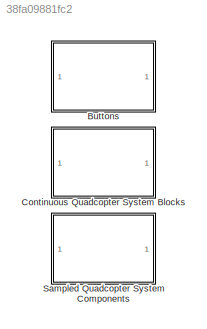
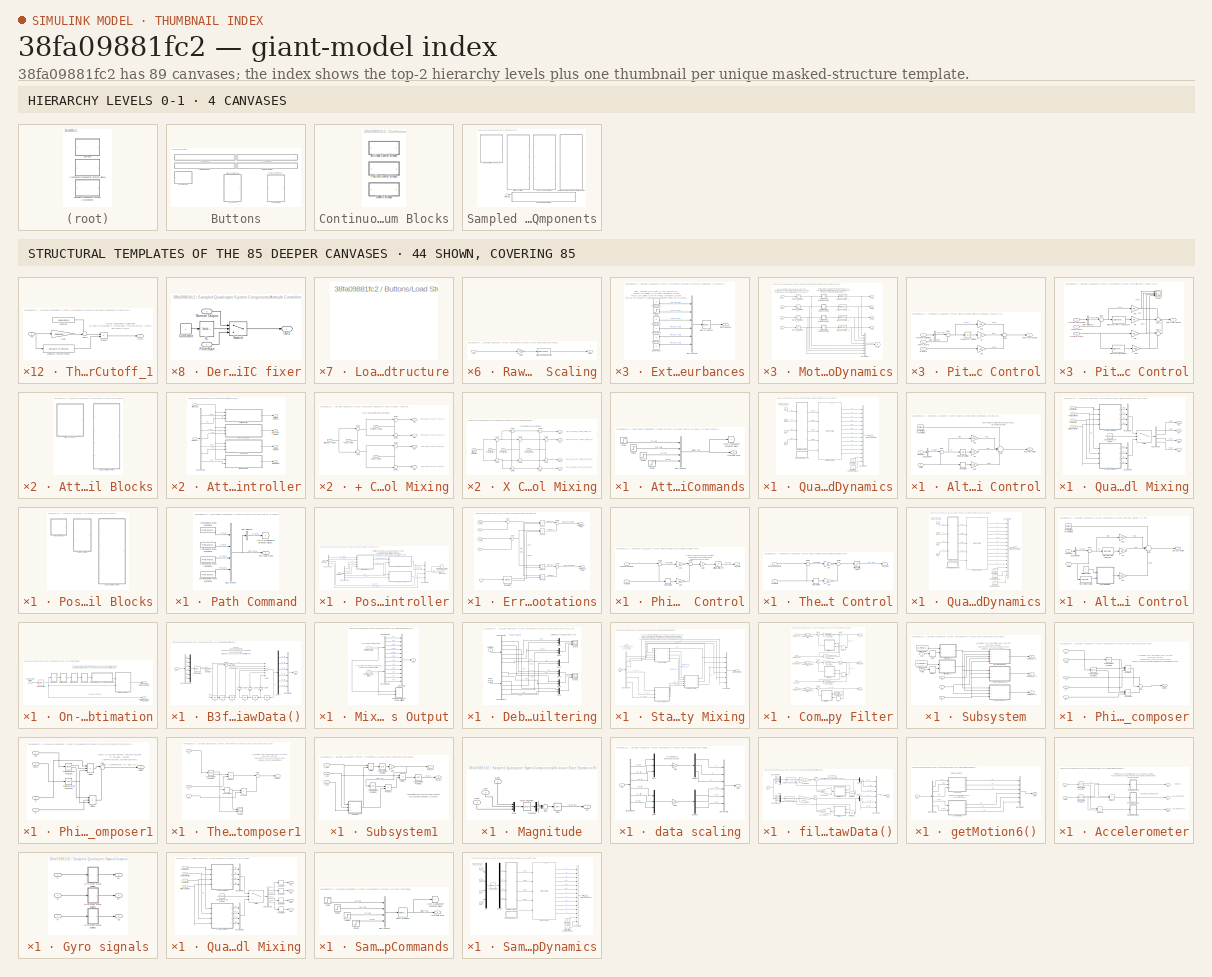
[diagram: thumbnail index - top-2 hierarchy levels (4 canvases) + 44 structural-template representatives of the remaining 85 canvases]
MODEL slx_38fa09881fc2
KIND library
BLOCK [SubSystem] Buttons
  FunctionWithSeparateData = off
  MaskHideContents = off
  MinAlgLoopOccurrences = off
  Opaque = off
  Ports = []
  PropExecContextOutsideSubsystem = off
  RTWSystemCode = Auto
  RequestExecContextInheritance = off
BLOCK [SubSystem] Buttons/Load Structure
  FunctionWithSeparateData = off
  MaskHideContents = off
  MinAlgLoopOccurrences = off
  Opaque = off
  OpenFcn = uiopen('load')                                  \nif (exist('IC')==1 && exist('quadModel')==1)    \nset_param(bdroot, 'SimulationCommand', 'update')\nend
  Ports = []
  PropExecContextOutsideSubsystem = off
  RTWSystemCode = Auto
  RequestExecContextInheritance = off
  ShowPortLabels = FromPortBlockName
BLOCK [SubSystem] Buttons/Load Structure1
  FunctionWithSeparateData = off
  MaskHideContents = off
  MinAlgLoopOccurrences = off
  Opaque = off
  OpenFcn = if (exist('IC')==1 && exist('quadModel')==1 && exist('yout') && exist('tout'))\nsaveSimResults()                                                              \nelse                                                                          \nmsgbox('No Data To Save!')                                                    \nend
  Ports = []
  PropExecContextOutsideSubsystem = off
  RTWSystemCode = Auto
  RequestExecContextInheritance = off
  ShowPortLabels = FromPortBlockName
BLOCK [SubSystem] Buttons/Load Structure2
  FunctionWithSeparateData = off
  MaskHideContents = off
  MinAlgLoopOccurrences = off
  Opaque = off
  OpenFcn = if exist('GUI_Modeling') == 2,                                \nrun('GUI_Modeling')                                           \n                                                              \nelse                                                          \n                                                              \nmsgbox('The desired GUI must be first added to MATLABs path.')\n                      ...<+44ch>
  Ports = []
  PropExecContextOutsideSubsystem = off
  RTWSystemCode = Auto
  RequestExecContextInheritance = off
  ShowPortLabels = none
BLOCK [SubSystem] Buttons/Load Structure3
  FunctionWithSeparateData = off
  MaskHideContents = off
  MinAlgLoopOccurrences = off
  Opaque = off
  OpenFcn = if exist('GUI_IC') == 2,                                      \nrun('GUI_IC')                                                 \n                                                              \nelse                                                          \n                                                              \nmsgbox('The desired GUI must be first added to MATLABs path.')\n                      ...<+44ch>
  Ports = []
  PropExecContextOutsideSubsystem = off
  RTWSystemCode = Auto
  RequestExecContextInheritance = off
  ShowPortLabels = none
BLOCK [SubSystem] Buttons/Load Structure4
  FunctionWithSeparateData = off
  MaskHideContents = off
  MinAlgLoopOccurrences = off
  Opaque = off
  OpenFcn = uiopen('load')                                                        \nif ((exist('IC')==1) && (exist('quadModel')==1) && (exist('path')==1))\nset_param(bdroot, 'SimulationCommand', 'update')                      \nend
  Ports = []
  PropExecContextOutsideSubsystem = off
  RTWSystemCode = Auto
  RequestExecContextInheritance = off
  ShowPortLabels = FromPortBlockName
BLOCK [SubSystem] Buttons/Plot Data Animation
  FunctionWithSeparateData = off
  MaskHideContents = off
  MinAlgLoopOccurrences = off
  Opaque = off
  OpenFcn = if exist('QuadAnim4') == 2,                                                                                                                 \n    if exist('yout')                                                                                                                        \n	run('QuadAnim4');                                                                                                    ...<+590ch>
  Ports = []
  PropExecContextOutsideSubsystem = off
  RTWSystemCode = Auto
  RequestExecContextInheritance = off
  ShowPortLabels = FromPortBlockName
BLOCK [SubSystem] Buttons/Plot Data Graphics
  FunctionWithSeparateData = off
  MaskHideContents = off
  MinAlgLoopOccurrences = off
  Opaque = off
  OpenFcn = if exist('yout')                                            \nyout = evalin('base', 'yout');                              \ntout = evalin('base', 'tout');                              \nquadPlots(yout, tout)                                       \nelse                                                        \nmsgbox('Simulation must be run before data can be plotted.')\nend
  Ports = []
  PropExecContextOutsideSubsystem = off
  RTWSystemCode = Auto
  RequestExecContextInheritance = off
  ShowPortLabels = FromPortBlockName
BLOCK [SubSystem] Continuous Quadcopter System Blocks
  FunctionWithSeparateData = off
  MaskHideContents = off
  MinAlgLoopOccurrences = off
  Opaque = off
  Ports = []
  PropExecContextOutsideSubsystem = off
  RTWSystemCode = Auto
  RequestExecContextInheritance = off
BLOCK [SubSystem] Continuous Quadcopter System Blocks/Attitude Control Blocks
  FunctionWithSeparateData = off
  MaskHideContents = off
  MinAlgLoopOccurrences = off
  Opaque = off
  Ports = []
  PropExecContextOutsideSubsystem = off
  RTWSystemCode = Auto
  RequestExecContextInheritance = off
BLOCK [SubSystem] Continuous Quadcopter System Blocks/Attitude Control Blocks/Attitude Commands
  FunctionWithSeparateData = off
  MaskHideContents = off
  MinAlgLoopOccurrences = off
  Opaque = off
  Ports = [0, 1]
  PropExecContextOutsideSubsystem = off
  RTWSystemCode = Auto
  RequestExecContextInheritance = off
BLOCK [Outport] Continuous Quadcopter System Blocks/Attitude Control Blocks/Attitude Commands/Attittude Cmd
  IconDisplay = Port number
BLOCK [BusCreator] Continuous Quadcopter System Blocks/Attitude Control Blocks/Attitude Commands/Bus Creator
  DisplayOption = bar
  Ports = [4, 1]
BLOCK [Goto] Continuous Quadcopter System Blocks/Attitude Control Blocks/Attitude Commands/Goto Quadcopter Dynamics Block
  TagVisibility = global
BLOCK [Step] Continuous Quadcopter System Blocks/Attitude Control Blocks/Attitude Commands/Step
  After = 10*pi/180
  SampleTime = 0
BLOCK [Step] Continuous Quadcopter System Blocks/Attitude Control Blocks/Attitude Commands/Step1
  After = 10*pi/180
  SampleTime = 0
  Time = 4
BLOCK [Step] Continuous Quadcopter System Blocks/Attitude Control Blocks/Attitude Commands/Step2
  After = 0
  SampleTime = 0
  Time = 8
BLOCK [Step] Continuous Quadcopter System Blocks/Attitude Control Blocks/Attitude Commands/Step3
  After = 10*0.3048
  Before = 10*0.3048
  SampleTime = 0
  Time = 0
BLOCK [SubSystem] Continuous Quadcopter System Blocks/Attitude Control Blocks/Quadcopter Dynamics
  FunctionWithSeparateData = off
  MaskHideContents = off
  MinAlgLoopOccurrences = off
  Opaque = off
  Ports = [4, 1]
  PropExecContextOutsideSubsystem = off
  RTWSystemCode = Auto
  RequestExecContextInheritance = off
BLOCK [BusCreator] Continuous Quadcopter System Blocks/Attitude Control Blocks/Quadcopter Dynamics/Bus Creator
  DisplayOption = bar
  Inputs = 'P','Q','R','Phi','The','Psi','U','V','W','X','Y','Z','mc and RPM','Attitude_Cmd'
  Ports = [14, 1]
BLOCK [SubSystem] Continuous Quadcopter System Blocks/Attitude Control Blocks/Quadcopter Dynamics/External Disturbances
  FunctionWithSeparateData = off
  MaskHideContents = off
  MinAlgLoopOccurrences = off
  Opaque = off
  Ports = [0, 1]
  PropExecContextOutsideSubsystem = off
  RTWSystemCode = Auto
  RequestExecContextInheritance = off
BLOCK [BusCreator] Continuous Quadcopter System Blocks/Attitude Control Blocks/Quadcopter Dynamics/External Disturbances/Bus Creator
  DisplayOption = bar
  Inputs = 6
  Ports = [6, 1]
BLOCK [BusToVector] Continuous Quadcopter System Blocks/Attitude Control Blocks/Quadcopter Dynamics/External Disturbances/Bus to Vector
BLOCK [Constant] Continuous Quadcopter System Blocks/Attitude Control Blocks/Quadcopter Dynamics/External Disturbances/Constant2
  Value = 0
BLOCK [Constant] Continuous Quadcopter System Blocks/Attitude Control Blocks/Quadcopter Dynamics/External Disturbances/Constant3
  Value = 0
BLOCK [Constant] Continuous Quadcopter System Blocks/Attitude Control Blocks/Quadcopter Dynamics/External Disturbances/Constant4
  Value = 0
BLOCK [Constant] Continuous Quadcopter System Blocks/Attitude Control Blocks/Quadcopter Dynamics/External Disturbances/Constant5
  Value = 0
BLOCK [Constant] Continuous Quadcopter System Blocks/Attitude Control Blocks/Quadcopter Dynamics/External Disturbances/Constant6
  Value = 0
BLOCK [Outport] Continuous Quadcopter System Blocks/Attitude Control Blocks/Quadcopter Dynamics/External Disturbances/Disturbances 
  IconDisplay = Port number
BLOCK [Step] Continuous Quadcopter System Blocks/Attitude Control Blocks/Quadcopter Dynamics/External Disturbances/Step
  After = 0
  SampleTime = 0
BLOCK [From] Continuous Quadcopter System Blocks/Attitude Control Blocks/Quadcopter Dynamics/From Attitude Command Block
  TagVisibility = global
BLOCK [From] Continuous Quadcopter System Blocks/Attitude Control Blocks/Quadcopter Dynamics/From Motor Dynamics
  GotoTag = B
  TagVisibility = global
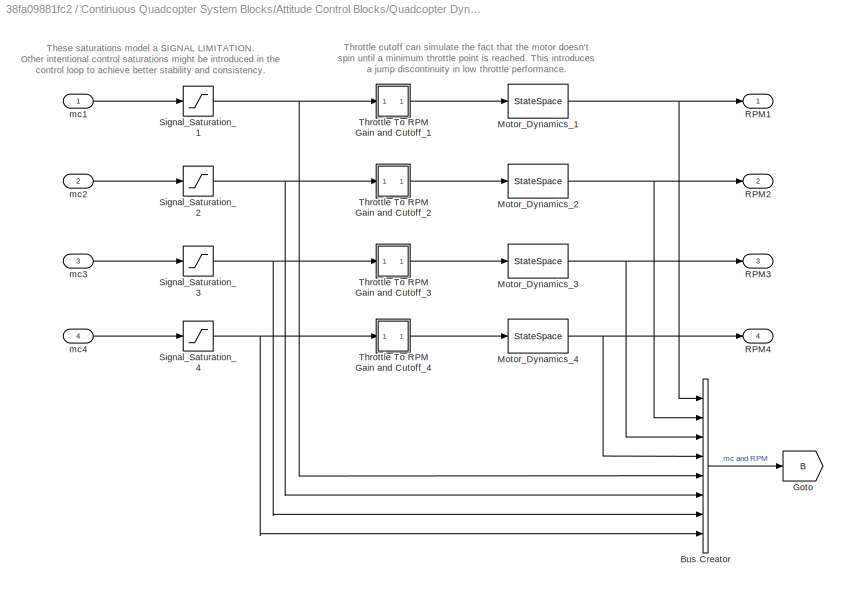
BLOCK [SubSystem] Continuous Quadcopter System Blocks/Attitude Control Blocks/Quadcopter Dynamics/Motor Dynamics
  FunctionWithSeparateData = off
  MaskHideContents = off
  MinAlgLoopOccurrences = off
  Opaque = off
  Ports = [4, 4]
  PropExecContextOutsideSubsystem = off
  RTWSystemCode = Auto
  RequestExecContextInheritance = off
BLOCK [BusCreator] Continuous Quadcopter System Blocks/Attitude Control Blocks/Quadcopter Dynamics/Motor Dynamics/Bus Creator
  DisplayOption = bar
  Inputs = 8
  Ports = [8, 1]
BLOCK [Goto] Continuous Quadcopter System Blocks/Attitude Control Blocks/Quadcopter Dynamics/Motor Dynamics/Goto
  GotoTag = B
  TagVisibility = global
BLOCK [StateSpace] Continuous Quadcopter System Blocks/Attitude Control Blocks/Quadcopter Dynamics/Motor Dynamics/Motor_Dynamics_1
  A = -1/quadModel.T
  C = 1/quadModel.T
  D = 0
  X0 = IC.w1*quadModel.T
BLOCK [StateSpace] Continuous Quadcopter System Blocks/Attitude Control Blocks/Quadcopter Dynamics/Motor Dynamics/Motor_Dynamics_2
  A = -1/quadModel.T
  C = 1/quadModel.T
  D = 0
  X0 = IC.w2*quadModel.T
BLOCK [StateSpace] Continuous Quadcopter System Blocks/Attitude Control Blocks/Quadcopter Dynamics/Motor Dynamics/Motor_Dynamics_3
  A = -1/quadModel.T
  C = 1/quadModel.T
  D = 0
  X0 = IC.w3*quadModel.T
BLOCK [StateSpace] Continuous Quadcopter System Blocks/Attitude Control Blocks/Quadcopter Dynamics/Motor Dynamics/Motor_Dynamics_4
  A = -1/quadModel.T
  C = 1/quadModel.T
  D = 0
  X0 = IC.w4*quadModel.T
BLOCK [Outport] Continuous Quadcopter System Blocks/Attitude Control Blocks/Quadcopter Dynamics/Motor Dynamics/RPM1
  IconDisplay = Port number
BLOCK [Outport] Continuous Quadcopter System Blocks/Attitude Control Blocks/Quadcopter Dynamics/Motor Dynamics/RPM2
  IconDisplay = Port number
  Port = 2
BLOCK [Outport] Continuous Quadcopter System Blocks/Attitude Control Blocks/Quadcopter Dynamics/Motor Dynamics/RPM3
  IconDisplay = Port number
  Port = 3
BLOCK [Outport] Continuous Quadcopter System Blocks/Attitude Control Blocks/Quadcopter Dynamics/Motor Dynamics/RPM4
  IconDisplay = Port number
  Port = 4
BLOCK [Saturate] Continuous Quadcopter System Blocks/Attitude Control Blocks/Quadcopter Dynamics/Motor Dynamics/Signal_Saturation_1
  InputPortMap = u0
  LowerLimit = 0
  Ports = [1, 1]
  UpperLimit = 100
BLOCK [Saturate] Continuous Quadcopter System Blocks/Attitude Control Blocks/Quadcopter Dynamics/Motor Dynamics/Signal_Saturation_2
  InputPortMap = u0
  LowerLimit = 0
  Ports = [1, 1]
  UpperLimit = 100
BLOCK [Saturate] Continuous Quadcopter System Blocks/Attitude Control Blocks/Quadcopter Dynamics/Motor Dynamics/Signal_Saturation_3
  InputPortMap = u0
  LowerLimit = 0
  Ports = [1, 1]
  UpperLimit = 100
BLOCK [Saturate] Continuous Quadcopter System Blocks/Attitude Control Blocks/Quadcopter Dynamics/Motor Dynamics/Signal_Saturation_4
  InputPortMap = u0
  LowerLimit = 0
  Ports = [1, 1]
  UpperLimit = 100
BLOCK [SubSystem] Continuous Quadcopter System Blocks/Attitude Control Blocks/Quadcopter Dynamics/Motor Dynamics/Throttle To RPM Gain and Cutoff_1
  FunctionWithSeparateData = off
  MaskHideContents = off
  MinAlgLoopOccurrences = off
  Opaque = off
  Ports = [1, 1]
  PropExecContextOutsideSubsystem = off
  RTWSystemCode = Auto
  RequestExecContextInheritance = off
  ShowPortLabels = none
BLOCK [Constant] Continuous Quadcopter System Blocks/Attitude Control Blocks/Quadcopter Dynamics/Motor Dynamics/Throttle To RPM Gain and Cutoff_1/Constant
  Value = quadModel.b
BLOCK [Gain] Continuous Quadcopter System Blocks/Attitude Control Blocks/Quadcopter Dynamics/Motor Dynamics/Throttle To RPM Gain and Cutoff_1/Gain
  Gain = quadModel.cr
  OutDataTypeStr = Inherit: Inherit via internal rule
  ParamDataTypeStr = Inherit: Inherit via internal rule
  SaturateOnIntegerOverflow = off
BLOCK [Inport] Continuous Quadcopter System Blocks/Attitude Control Blocks/Quadcopter Dynamics/Motor Dynamics/Throttle To RPM Gain and Cutoff_1/In5
  IconDisplay = Port number
BLOCK [Reference] Continuous Quadcopter System Blocks/Attitude Control Blocks/Quadcopter Dynamics/Motor Dynamics/Throttle To RPM Gain and Cutoff_1/Minimum Throttle Cutoff  REF=simulink/Logic and Bit
Operations/Compare
To Constant
  OutDataTypeStr = uint8
  Ports = [1, 1]
  SourceBlock = simulink/Logic and Bit\nOperations/Compare\nTo Constant
  SourceType = Compare To Constant
  ZeroCross = on
  const = quadModel.minThr
  relop = >=
BLOCK [Outport] Continuous Quadcopter System Blocks/Attitude Control Blocks/Quadcopter Dynamics/Motor Dynamics/Throttle To RPM Gain and Cutoff_1/Out5
  IconDisplay = Port number
BLOCK [Product] Continuous Quadcopter System Blocks/Attitude Control Blocks/Quadcopter Dynamics/Motor Dynamics/Throttle To RPM Gain and Cutoff_1/Product
  InputSameDT = off
  OutDataTypeStr = Inherit: Inherit via internal rule
  Ports = [2, 1]
  RndMeth = Floor
  SaturateOnIntegerOverflow = off
BLOCK [Sum] Continuous Quadcopter System Blocks/Attitude Control Blocks/Quadcopter Dynamics/Motor Dynamics/Throttle To RPM Gain and Cutoff_1/Sum1
  IconShape = round
  InputSameDT = off
  Inputs = ++|
  OutDataTypeStr = Inherit: Inherit via internal rule
  Ports = [2, 1]
  SaturateOnIntegerOverflow = off
BLOCK [SubSystem] Continuous Quadcopter System Blocks/Attitude Control Blocks/Quadcopter Dynamics/Motor Dynamics/Throttle To RPM Gain and Cutoff_2
  FunctionWithSeparateData = off
  MaskHideContents = off
  MinAlgLoopOccurrences = off
  Opaque = off
  Ports = [1, 1]
  PropExecContextOutsideSubsystem = off
  RTWSystemCode = Auto
  RequestExecContextInheritance = off
  ShowPortLabels = none
BLOCK [Constant] Continuous Quadcopter System Blocks/Attitude Control Blocks/Quadcopter Dynamics/Motor Dynamics/Throttle To RPM Gain and Cutoff_2/Constant
  Value = quadModel.b
BLOCK [Gain] Continuous Quadcopter System Blocks/Attitude Control Blocks/Quadcopter Dynamics/Motor Dynamics/Throttle To RPM Gain and Cutoff_2/Gain
  Gain = quadModel.cr
  OutDataTypeStr = Inherit: Inherit via internal rule
  ParamDataTypeStr = Inherit: Inherit via internal rule
  SaturateOnIntegerOverflow = off
BLOCK [Inport] Continuous Quadcopter System Blocks/Attitude Control Blocks/Quadcopter Dynamics/Motor Dynamics/Throttle To RPM Gain and Cutoff_2/In5
  IconDisplay = Port number
BLOCK [Reference] Continuous Quadcopter System Blocks/Attitude Control Blocks/Quadcopter Dynamics/Motor Dynamics/Throttle To RPM Gain and Cutoff_2/Minimum Throttle Cutoff  REF=simulink/Logic and Bit
Operations/Compare
To Constant
  OutDataTypeStr = uint8
  Ports = [1, 1]
  SourceBlock = simulink/Logic and Bit\nOperations/Compare\nTo Constant
  SourceType = Compare To Constant
  ZeroCross = on
  const = quadModel.minThr
  relop = >=
BLOCK [Outport] Continuous Quadcopter System Blocks/Attitude Control Blocks/Quadcopter Dynamics/Motor Dynamics/Throttle To RPM Gain and Cutoff_2/Out5
  IconDisplay = Port number
BLOCK [Product] Continuous Quadcopter System Blocks/Attitude Control Blocks/Quadcopter Dynamics/Motor Dynamics/Throttle To RPM Gain and Cutoff_2/Product
  InputSameDT = off
  OutDataTypeStr = Inherit: Inherit via internal rule
  Ports = [2, 1]
  RndMeth = Floor
  SaturateOnIntegerOverflow = off
BLOCK [Sum] Continuous Quadcopter System Blocks/Attitude Control Blocks/Quadcopter Dynamics/Motor Dynamics/Throttle To RPM Gain and Cutoff_2/Sum1
  IconShape = round
  InputSameDT = off
  Inputs = ++|
  OutDataTypeStr = Inherit: Inherit via internal rule
  Ports = [2, 1]
  SaturateOnIntegerOverflow = off
BLOCK [SubSystem] Continuous Quadcopter System Blocks/Attitude Control Blocks/Quadcopter Dynamics/Motor Dynamics/Throttle To RPM Gain and Cutoff_3
  FunctionWithSeparateData = off
  MaskHideContents = off
  MinAlgLoopOccurrences = off
  Opaque = off
  Ports = [1, 1]
  PropExecContextOutsideSubsystem = off
  RTWSystemCode = Auto
  RequestExecContextInheritance = off
  ShowPortLabels = none
BLOCK [Constant] Continuous Quadcopter System Blocks/Attitude Control Blocks/Quadcopter Dynamics/Motor Dynamics/Throttle To RPM Gain and Cutoff_3/Constant
  Value = quadModel.b
BLOCK [Gain] Continuous Quadcopter System Blocks/Attitude Control Blocks/Quadcopter Dynamics/Motor Dynamics/Throttle To RPM Gain and Cutoff_3/Gain
  Gain = quadModel.cr
  OutDataTypeStr = Inherit: Inherit via internal rule
  ParamDataTypeStr = Inherit: Inherit via internal rule
  SaturateOnIntegerOverflow = off
BLOCK [Inport] Continuous Quadcopter System Blocks/Attitude Control Blocks/Quadcopter Dynamics/Motor Dynamics/Throttle To RPM Gain and Cutoff_3/In5
  IconDisplay = Port number
BLOCK [Reference] Continuous Quadcopter System Blocks/Attitude Control Blocks/Quadcopter Dynamics/Motor Dynamics/Throttle To RPM Gain and Cutoff_3/Minimum Throttle Cutoff  REF=simulink/Logic and Bit
Operations/Compare
To Constant
  OutDataTypeStr = uint8
  Ports = [1, 1]
  SourceBlock = simulink/Logic and Bit\nOperations/Compare\nTo Constant
  SourceType = Compare To Constant
  ZeroCross = on
  const = quadModel.minThr
  relop = >=
BLOCK [Outport] Continuous Quadcopter System Blocks/Attitude Control Blocks/Quadcopter Dynamics/Motor Dynamics/Throttle To RPM Gain and Cutoff_3/Out5
  IconDisplay = Port number
BLOCK [Product] Continuous Quadcopter System Blocks/Attitude Control Blocks/Quadcopter Dynamics/Motor Dynamics/Throttle To RPM Gain and Cutoff_3/Product
  InputSameDT = off
  OutDataTypeStr = Inherit: Inherit via internal rule
  Ports = [2, 1]
  RndMeth = Floor
  SaturateOnIntegerOverflow = off
BLOCK [Sum] Continuous Quadcopter System Blocks/Attitude Control Blocks/Quadcopter Dynamics/Motor Dynamics/Throttle To RPM Gain and Cutoff_3/Sum1
  IconShape = round
  InputSameDT = off
  Inputs = ++|
  OutDataTypeStr = Inherit: Inherit via internal rule
  Ports = [2, 1]
  SaturateOnIntegerOverflow = off
BLOCK [SubSystem] Continuous Quadcopter System Blocks/Attitude Control Blocks/Quadcopter Dynamics/Motor Dynamics/Throttle To RPM Gain and Cutoff_4
  FunctionWithSeparateData = off
  MaskHideContents = off
  MinAlgLoopOccurrences = off
  Opaque = off
  Ports = [1, 1]
  PropExecContextOutsideSubsystem = off
  RTWSystemCode = Auto
  RequestExecContextInheritance = off
  ShowPortLabels = none
BLOCK [Constant] Continuous Quadcopter System Blocks/Attitude Control Blocks/Quadcopter Dynamics/Motor Dynamics/Throttle To RPM Gain and Cutoff_4/Constant
  Value = quadModel.b
BLOCK [Gain] Continuous Quadcopter System Blocks/Attitude Control Blocks/Quadcopter Dynamics/Motor Dynamics/Throttle To RPM Gain and Cutoff_4/Gain
  Gain = quadModel.cr
  OutDataTypeStr = Inherit: Inherit via internal rule
  ParamDataTypeStr = Inherit: Inherit via internal rule
  SaturateOnIntegerOverflow = off
BLOCK [Inport] Continuous Quadcopter System Blocks/Attitude Control Blocks/Quadcopter Dynamics/Motor Dynamics/Throttle To RPM Gain and Cutoff_4/In5
  IconDisplay = Port number
BLOCK [Reference] Continuous Quadcopter System Blocks/Attitude Control Blocks/Quadcopter Dynamics/Motor Dynamics/Throttle To RPM Gain and Cutoff_4/Minimum Throttle Cutoff  REF=simulink/Logic and Bit
Operations/Compare
To Constant
  OutDataTypeStr = uint8
  Ports = [1, 1]
  SourceBlock = simulink/Logic and Bit\nOperations/Compare\nTo Constant
  SourceType = Compare To Constant
  ZeroCross = on
  const = quadModel.minThr
  relop = >=
BLOCK [Outport] Continuous Quadcopter System Blocks/Attitude Control Blocks/Quadcopter Dynamics/Motor Dynamics/Throttle To RPM Gain and Cutoff_4/Out5
  IconDisplay = Port number
BLOCK [Product] Continuous Quadcopter System Blocks/Attitude Control Blocks/Quadcopter Dynamics/Motor Dynamics/Throttle To RPM Gain and Cutoff_4/Product
  InputSameDT = off
  OutDataTypeStr = Inherit: Inherit via internal rule
  Ports = [2, 1]
  RndMeth = Floor
  SaturateOnIntegerOverflow = off
BLOCK [Sum] Continuous Quadcopter System Blocks/Attitude Control Blocks/Quadcopter Dynamics/Motor Dynamics/Throttle To RPM Gain and Cutoff_4/Sum1
  IconShape = round
  InputSameDT = off
  Inputs = ++|
  OutDataTypeStr = Inherit: Inherit via internal rule
  Ports = [2, 1]
  SaturateOnIntegerOverflow = off
BLOCK [Inport] Continuous Quadcopter System Blocks/Attitude Control Blocks/Quadcopter Dynamics/Motor Dynamics/mc1
  IconDisplay = Port number
BLOCK [Inport] Continuous Quadcopter System Blocks/Attitude Control Blocks/Quadcopter Dynamics/Motor Dynamics/mc2
  IconDisplay = Port number
  Port = 2
BLOCK [Inport] Continuous Quadcopter System Blocks/Attitude Control Blocks/Quadcopter Dynamics/Motor Dynamics/mc3
  IconDisplay = Port number
  Port = 3
BLOCK [Inport] Continuous Quadcopter System Blocks/Attitude Control Blocks/Quadcopter Dynamics/Motor Dynamics/mc4
  IconDisplay = Port number
  Port = 4
BLOCK [M-S-Function] Continuous Quadcopter System Blocks/Attitude Control Blocks/Quadcopter Dynamics/State Equations
  FunctionName = quadcopterDynamicsSFunction
  Parameters = quadModel, IC
  Ports = [5, 12]
BLOCK [Outport] Continuous Quadcopter System Blocks/Attitude Control Blocks/Quadcopter Dynamics/States and Output
  IconDisplay = Port number
BLOCK [Inport] Continuous Quadcopter System Blocks/Attitude Control Blocks/Quadcopter Dynamics/mc1
  IconDisplay = Port number
BLOCK [Inport] Continuous Quadcopter System Blocks/Attitude Control Blocks/Quadcopter Dynamics/mc2
  IconDisplay = Port number
  Port = 2
BLOCK [Inport] Continuous Quadcopter System Blocks/Attitude Control Blocks/Quadcopter Dynamics/mc3
  IconDisplay = Port number
  Port = 3
BLOCK [Inport] Continuous Quadcopter System Blocks/Attitude Control Blocks/Quadcopter Dynamics/mc4
  IconDisplay = Port number
  Port = 4
BLOCK [SubSystem] Continuous Quadcopter System Blocks/Generic Blocks
  FunctionWithSeparateData = off
  MaskHideContents = off
  MinAlgLoopOccurrences = off
  Opaque = off
  Ports = []
  PropExecContextOutsideSubsystem = off
  RTWSystemCode = Auto
  RequestExecContextInheritance = off
BLOCK [SubSystem] Continuous Quadcopter System Blocks/Generic Blocks/Continuous Attitude Controller
  FunctionWithSeparateData = off
  MaskHideContents = off
  MinAlgLoopOccurrences = off
  Opaque = off
  Ports = [2, 4]
  PropExecContextOutsideSubsystem = off
  RTWSystemCode = Auto
  RequestExecContextInheritance = off
BLOCK [Outport] Continuous Quadcopter System Blocks/Generic Blocks/Continuous Attitude Controller/Alt. (Z) Correction
  IconDisplay = Port number
  Port = 4
BLOCK [SubSystem] Continuous Quadcopter System Blocks/Generic Blocks/Continuous Attitude Controller/Altitude (Z) Control
  FunctionWithSeparateData = off
  MaskHideContents = off
  MinAlgLoopOccurrences = off
  Opaque = off
  Ports = [2, 1]
  PropExecContextOutsideSubsystem = off
  RTWSystemCode = Auto
  RequestExecContextInheritance = off
BLOCK [Outport] Continuous Quadcopter System Blocks/Generic Blocks/Continuous Attitude Controller/Altitude (Z) Control/Alt. (Z) Correction
  IconDisplay = Port number
BLOCK [BusSelector] Continuous Quadcopter System Blocks/Generic Blocks/Continuous Attitude Controller/Altitude (Z) Control/Bus Selector
  OutputSignals = Alt_Cmd
  Ports = [1, 1]
BLOCK [Derivative] Continuous Quadcopter System Blocks/Generic Blocks/Continuous Attitude Controller/Altitude (Z) Control/Derivative
BLOCK [Inport] Continuous Quadcopter System Blocks/Generic Blocks/Continuous Attitude Controller/Altitude (Z) Control/Desired Z
  IconDisplay = Port number
BLOCK [Constant] Continuous Quadcopter System Blocks/Generic Blocks/Continuous Attitude Controller/Altitude (Z) Control/Gravity Offset (Level Flight)
  Value = GOffset
BLOCK [Integrator] Continuous Quadcopter System Blocks/Generic Blocks/Continuous Attitude Controller/Altitude (Z) Control/Integrator Limited
  LimitOutput = on
  LowerSaturationLimit = LSat
  Ports = [1, 1]
  UpperSaturationLimit = USat
BLOCK [Gain] Continuous Quadcopter System Blocks/Generic Blocks/Continuous Attitude Controller/Altitude (Z) Control/Kdz
  Gain = Kdz
  OutDataTypeStr = Inherit: Inherit via internal rule
  ParamDataTypeStr = Inherit: Inherit via internal rule
  SaturateOnIntegerOverflow = off
BLOCK [Gain] Continuous Quadcopter System Blocks/Generic Blocks/Continuous Attitude Controller/Altitude (Z) Control/Kiz
  Gain = Kiz
  OutDataTypeStr = Inherit: Inherit via internal rule
  ParamDataTypeStr = Inherit: Inherit via internal rule
  SaturateOnIntegerOverflow = off
BLOCK [Gain] Continuous Quadcopter System Blocks/Generic Blocks/Continuous Attitude Controller/Altitude (Z) Control/Kpz
  Gain = Kpz
  OutDataTypeStr = Inherit: Inherit via internal rule
  ParamDataTypeStr = Inherit: Inherit via internal rule
  SaturateOnIntegerOverflow = off
BLOCK [Sum] Continuous Quadcopter System Blocks/Generic Blocks/Continuous Attitude Controller/Altitude (Z) Control/Sum
  IconShape = round
  InputSameDT = off
  Inputs = |+-
  OutDataTypeStr = Inherit: Inherit via internal rule
  Ports = [2, 1]
  SaturateOnIntegerOverflow = off
BLOCK [Sum] Continuous Quadcopter System Blocks/Generic Blocks/Continuous Attitude Controller/Altitude (Z) Control/Sum2
  IconShape = round
  InputSameDT = off
  Inputs = +++-
  OutDataTypeStr = Inherit: Inherit via internal rule
  Ports = [4, 1]
  SaturateOnIntegerOverflow = off
BLOCK [Inport] Continuous Quadcopter System Blocks/Generic Blocks/Continuous Attitude Controller/Altitude (Z) Control/Z State
  IconDisplay = Port number
  Port = 2
BLOCK [Inport] Continuous Quadcopter System Blocks/Generic Blocks/Continuous Attitude Controller/Attitude Cmd
  IconDisplay = Port number
BLOCK [BusSelector] Continuous Quadcopter System Blocks/Generic Blocks/Continuous Attitude Controller/Bus Selector
  OutputSignals = Phi,P,The,Q,Psi,R,Z
  Ports = [1, 7]
BLOCK [SubSystem] Continuous Quadcopter System Blocks/Generic Blocks/Continuous Attitude Controller/Pitch (Theta) Control
  FunctionWithSeparateData = off
  MaskHideContents = off
  MinAlgLoopOccurrences = off
  Opaque = off
  Ports = [3, 1]
  PropExecContextOutsideSubsystem = off
  RTWSystemCode = Auto
  RequestExecContextInheritance = off
BLOCK [Inport] Continuous Quadcopter System Blocks/Generic Blocks/Continuous Attitude Controller/Pitch (Theta) Control/Attitude Command
  IconDisplay = Port number
BLOCK [BusSelector] Continuous Quadcopter System Blocks/Generic Blocks/Continuous Attitude Controller/Pitch (Theta) Control/Bus Selector
  OutputSignals = The_cmd
  Ports = [1, 1]
BLOCK [Integrator] Continuous Quadcopter System Blocks/Generic Blocks/Continuous Attitude Controller/Pitch (Theta) Control/Integrator Limited
  LimitOutput = on
  LowerSaturationLimit = LSat
  Ports = [1, 1]
  UpperSaturationLimit = USat
BLOCK [Gain] Continuous Quadcopter System Blocks/Generic Blocks/Continuous Attitude Controller/Pitch (Theta) Control/Kdt
  Gain = Kdt
  OutDataTypeStr = Inherit: Inherit via internal rule
  ParamDataTypeStr = Inherit: Inherit via internal rule
  SaturateOnIntegerOverflow = off
BLOCK [Gain] Continuous Quadcopter System Blocks/Generic Blocks/Continuous Attitude Controller/Pitch (Theta) Control/Kit
  Gain = Kit
  OutDataTypeStr = Inherit: Inherit via internal rule
  ParamDataTypeStr = Inherit: Inherit via internal rule
  SaturateOnIntegerOverflow = off
BLOCK [Gain] Continuous Quadcopter System Blocks/Generic Blocks/Continuous Attitude Controller/Pitch (Theta) Control/Kpt
  Gain = Kpt
  OutDataTypeStr = Inherit: Inherit via internal rule
  ParamDataTypeStr = Inherit: Inherit via internal rule
  SaturateOnIntegerOverflow = off
BLOCK [Inport] Continuous Quadcopter System Blocks/Generic Blocks/Continuous Attitude Controller/Pitch (Theta) Control/Q State
  IconDisplay = Port number
  Port = 3
BLOCK [Sum] Continuous Quadcopter System Blocks/Generic Blocks/Continuous Attitude Controller/Pitch (Theta) Control/Sum
  IconShape = round
  InputSameDT = off
  Inputs = |+-
  OutDataTypeStr = Inherit: Inherit via internal rule
  Ports = [2, 1]
  SaturateOnIntegerOverflow = off
BLOCK [Sum] Continuous Quadcopter System Blocks/Generic Blocks/Continuous Attitude Controller/Pitch (Theta) Control/Sum1
  IconShape = round
  InputSameDT = off
  Inputs = ++-
  OutDataTypeStr = Inherit: Inherit via internal rule
  Ports = [3, 1]
  SaturateOnIntegerOverflow = off
BLOCK [Outport] Continuous Quadcopter System Blocks/Generic Blocks/Continuous Attitude Controller/Pitch (Theta) Control/Theta Correction
  IconDisplay = Port number
BLOCK [Inport] Continuous Quadcopter System Blocks/Generic Blocks/Continuous Attitude Controller/Pitch (Theta) Control/Theta State
  IconDisplay = Port number
  Port = 2
BLOCK [Outport] Continuous Quadcopter System Blocks/Generic Blocks/Continuous Attitude Controller/Pitch (Theta) Correction
  IconDisplay = Port number
  Port = 2
BLOCK [SubSystem] Continuous Quadcopter System Blocks/Generic Blocks/Continuous Attitude Controller/Roll (Phi) Control 
  FunctionWithSeparateData = off
  MaskHideContents = off
  MinAlgLoopOccurrences = off
  Opaque = off
  Ports = [3, 1]
  PropExecContextOutsideSubsystem = off
  RTWSystemCode = Auto
  RequestExecContextInheritance = off
BLOCK [Inport] Continuous Quadcopter System Blocks/Generic Blocks/Continuous Attitude Controller/Roll (Phi) Control /Attitude Command 
  IconDisplay = Port number
BLOCK [BusSelector] Continuous Quadcopter System Blocks/Generic Blocks/Continuous Attitude Controller/Roll (Phi) Control /Bus Selector
  OutputSignals = Phi_cmd
  Ports = [1, 1]
BLOCK [Integrator] Continuous Quadcopter System Blocks/Generic Blocks/Continuous Attitude Controller/Roll (Phi) Control /Integrator Limited
  LimitOutput = on
  LowerSaturationLimit = LSat
  Ports = [1, 1]
  UpperSaturationLimit = USat
BLOCK [Gain] Continuous Quadcopter System Blocks/Generic Blocks/Continuous Attitude Controller/Roll (Phi) Control /Kdp
  Gain = Kdp
  OutDataTypeStr = Inherit: Inherit via internal rule
  ParamDataTypeStr = Inherit: Inherit via internal rule
  SaturateOnIntegerOverflow = off
BLOCK [Gain] Continuous Quadcopter System Blocks/Generic Blocks/Continuous Attitude Controller/Roll (Phi) Control /Kip
  Gain = Kip
  OutDataTypeStr = Inherit: Inherit via internal rule
  ParamDataTypeStr = Inherit: Inherit via internal rule
  SaturateOnIntegerOverflow = off
BLOCK [Gain] Continuous Quadcopter System Blocks/Generic Blocks/Continuous Attitude Controller/Roll (Phi) Control /Kpp
  Gain = Kpp
  OutDataTypeStr = Inherit: Inherit via internal rule
  ParamDataTypeStr = Inherit: Inherit via internal rule
  SaturateOnIntegerOverflow = off
BLOCK [Inport] Continuous Quadcopter System Blocks/Generic Blocks/Continuous Attitude Controller/Roll (Phi) Control /P State
  IconDisplay = Port number
  Port = 3
BLOCK [Outport] Continuous Quadcopter System Blocks/Generic Blocks/Continuous Attitude Controller/Roll (Phi) Control /Phi Correction
  IconDisplay = Port number
BLOCK [Inport] Continuous Quadcopter System Blocks/Generic Blocks/Continuous Attitude Controller/Roll (Phi) Control /Phi State
  IconDisplay = Port number
  Port = 2
BLOCK [Sum] Continuous Quadcopter System Blocks/Generic Blocks/Continuous Attitude Controller/Roll (Phi) Control /Sum
  IconShape = round
  InputSameDT = off
  Inputs = |+-
  OutDataTypeStr = Inherit: Inherit via internal rule
  Ports = [2, 1]
  SaturateOnIntegerOverflow = off
BLOCK [Sum] Continuous Quadcopter System Blocks/Generic Blocks/Continuous Attitude Controller/Roll (Phi) Control /Sum1
  IconShape = round
  InputSameDT = off
  Inputs = ++-
  OutDataTypeStr = Inherit: Inherit via internal rule
  Ports = [3, 1]
  SaturateOnIntegerOverflow = off
BLOCK [Outport] Continuous Quadcopter System Blocks/Generic Blocks/Continuous Attitude Controller/Roll (Phi) Correction
  IconDisplay = Port number
BLOCK [Inport] Continuous Quadcopter System Blocks/Generic Blocks/Continuous Attitude Controller/State Input
  IconDisplay = Port number
  Port = 2
BLOCK [SubSystem] Continuous Quadcopter System Blocks/Generic Blocks/Continuous Attitude Controller/Yaw (Psi) Control
  FunctionWithSeparateData = off
  MaskHideContents = off
  MinAlgLoopOccurrences = off
  Opaque = off
  Ports = [3, 1]
  PropExecContextOutsideSubsystem = off
  RTWSystemCode = Auto
  RequestExecContextInheritance = off
BLOCK [Inport] Continuous Quadcopter System Blocks/Generic Blocks/Continuous Attitude Controller/Yaw (Psi) Control/Attitude Command
  IconDisplay = Port number
BLOCK [BusSelector] Continuous Quadcopter System Blocks/Generic Blocks/Continuous Attitude Controller/Yaw (Psi) Control/Bus Selector
  OutputSignals = Psi_cmd
  Ports = [1, 1]
BLOCK [Integrator] Continuous Quadcopter System Blocks/Generic Blocks/Continuous Attitude Controller/Yaw (Psi) Control/Integrator Limited
  LimitOutput = on
  LowerSaturationLimit = LSat
  Ports = [1, 1]
  UpperSaturationLimit = USat
BLOCK [Gain] Continuous Quadcopter System Blocks/Generic Blocks/Continuous Attitude Controller/Yaw (Psi) Control/Kds
  Gain = Kds
  OutDataTypeStr = Inherit: Inherit via internal rule
  ParamDataTypeStr = Inherit: Inherit via internal rule
  SaturateOnIntegerOverflow = off
BLOCK [Gain] Continuous Quadcopter System Blocks/Generic Blocks/Continuous Attitude Controller/Yaw (Psi) Control/Kit
  Gain = Kis
  OutDataTypeStr = Inherit: Inherit via internal rule
  ParamDataTypeStr = Inherit: Inherit via internal rule
  SaturateOnIntegerOverflow = off
BLOCK [Gain] Continuous Quadcopter System Blocks/Generic Blocks/Continuous Attitude Controller/Yaw (Psi) Control/Kps
  Gain = Kps
  OutDataTypeStr = Inherit: Inherit via internal rule
  ParamDataTypeStr = Inherit: Inherit via internal rule
  SaturateOnIntegerOverflow = off
BLOCK [Outport] Continuous Quadcopter System Blocks/Generic Blocks/Continuous Attitude Controller/Yaw (Psi) Control/Psi Correction
  IconDisplay = Port number
BLOCK [Inport] Continuous Quadcopter System Blocks/Generic Blocks/Continuous Attitude Controller/Yaw (Psi) Control/Psi State
  IconDisplay = Port number
  Port = 2
BLOCK [Inport] Continuous Quadcopter System Blocks/Generic Blocks/Continuous Attitude Controller/Yaw (Psi) Control/R State
  IconDisplay = Port number
  Port = 3
BLOCK [Sum] Continuous Quadcopter System Blocks/Generic Blocks/Continuous Attitude Controller/Yaw (Psi) Control/Sum
  IconShape = round
  InputSameDT = off
  Inputs = |+-
  OutDataTypeStr = Inherit: Inherit via internal rule
  Ports = [2, 1]
  SaturateOnIntegerOverflow = off
BLOCK [Sum] Continuous Quadcopter System Blocks/Generic Blocks/Continuous Attitude Controller/Yaw (Psi) Control/Sum1
  IconShape = round
  InputSameDT = off
  Inputs = ++-
  OutDataTypeStr = Inherit: Inherit via internal rule
  Ports = [3, 1]
  SaturateOnIntegerOverflow = off
BLOCK [Outport] Continuous Quadcopter System Blocks/Generic Blocks/Continuous Attitude Controller/Yaw (Psi) Correction
  IconDisplay = Port number
  Port = 3
BLOCK [SubSystem] Continuous Quadcopter System Blocks/Generic Blocks/Quadcopter Control Mixing
  FunctionWithSeparateData = off
  MaskHideContents = off
  MinAlgLoopOccurrences = off
  Opaque = off
  Ports = [4, 4]
  PropExecContextOutsideSubsystem = off
  RTWSystemCode = Auto
  RequestExecContextInheritance = off
BLOCK [SubSystem] Continuous Quadcopter System Blocks/Generic Blocks/Quadcopter Control Mixing/+ Config Control Mixing
  FunctionWithSeparateData = off
  MaskHideContents = off
  MinAlgLoopOccurrences = off
  Opaque = off
  Ports = [4, 4]
  PropExecContextOutsideSubsystem = off
  RTWSystemCode = Auto
  RequestExecContextInheritance = off
BLOCK [Inport] Continuous Quadcopter System Blocks/Generic Blocks/Quadcopter Control Mixing/+ Config Control Mixing/Altitude Correction
  IconDisplay = Port number
  Port = 4
BLOCK [Inport] Continuous Quadcopter System Blocks/Generic Blocks/Quadcopter Control Mixing/+ Config Control Mixing/Phi Correction
  IconDisplay = Port number
BLOCK [Inport] Continuous Quadcopter System Blocks/Generic Blocks/Quadcopter Control Mixing/+ Config Control Mixing/Psi Correction
  IconDisplay = Port number
  Port = 3
BLOCK [Sum] Continuous Quadcopter System Blocks/Generic Blocks/Quadcopter Control Mixing/+ Config Control Mixing/Sum1
  IconShape = round
  InputSameDT = off
  Inputs = |+-
  OutDataTypeStr = Inherit: Inherit via internal rule
  Ports = [2, 1]
  SaturateOnIntegerOverflow = off
BLOCK [Sum] Continuous Quadcopter System Blocks/Generic Blocks/Quadcopter Control Mixing/+ Config Control Mixing/Sum11
  IconShape = round
  InputSameDT = off
  Inputs = -+|
  OutDataTypeStr = Inherit: Inherit via internal rule
  Ports = [2, 1]
  SaturateOnIntegerOverflow = off
BLOCK [Sum] Continuous Quadcopter System Blocks/Generic Blocks/Quadcopter Control Mixing/+ Config Control Mixing/Sum2
  IconShape = round
  InputSameDT = off
  Inputs = |+-
  OutDataTypeStr = Inherit: Inherit via internal rule
  Ports = [2, 1]
  SaturateOnIntegerOverflow = off
BLOCK [Sum] Continuous Quadcopter System Blocks/Generic Blocks/Quadcopter Control Mixing/+ Config Control Mixing/Sum3
  IconShape = round
  InputSameDT = off
  Inputs = ++|
  OutDataTypeStr = Inherit: Inherit via internal rule
  Ports = [2, 1]
  SaturateOnIntegerOverflow = off
BLOCK [Sum] Continuous Quadcopter System Blocks/Generic Blocks/Quadcopter Control Mixing/+ Config Control Mixing/Sum4
  IconShape = round
  InputSameDT = off
  Inputs = ++|
  OutDataTypeStr = Inherit: Inherit via internal rule
  Ports = [2, 1]
  SaturateOnIntegerOverflow = off
BLOCK [Sum] Continuous Quadcopter System Blocks/Generic Blocks/Quadcopter Control Mixing/+ Config Control Mixing/Sum8
  IconShape = round
  InputSameDT = off
  Inputs = |++
  OutDataTypeStr = Inherit: Inherit via internal rule
  Ports = [2, 1]
  SaturateOnIntegerOverflow = off
BLOCK [Inport] Continuous Quadcopter System Blocks/Generic Blocks/Quadcopter Control Mixing/+ Config Control Mixing/Theta Correction
  IconDisplay = Port number
  Port = 2
BLOCK [Outport] Continuous Quadcopter System Blocks/Generic Blocks/Quadcopter Control Mixing/+ Config Control Mixing/mc1
  IconDisplay = Port number
BLOCK [Outport] Continuous Quadcopter System Blocks/Generic Blocks/Quadcopter Control Mixing/+ Config Control Mixing/mc2
  IconDisplay = Port number
  Port = 2
BLOCK [Outport] Continuous Quadcopter System Blocks/Generic Blocks/Quadcopter Control Mixing/+ Config Control Mixing/mc3
  IconDisplay = Port number
  Port = 3
BLOCK [Outport] Continuous Quadcopter System Blocks/Generic Blocks/Quadcopter Control Mixing/+ Config Control Mixing/mc4
  IconDisplay = Port number
  Port = 4
BLOCK [Inport] Continuous Quadcopter System Blocks/Generic Blocks/Quadcopter Control Mixing/Altitude Correction
  IconDisplay = Port number
  Port = 4
BLOCK [BusCreator] Continuous Quadcopter System Blocks/Generic Blocks/Quadcopter Control Mixing/Bus Creator
  DisplayOption = bar
  Ports = [4, 1]
BLOCK [BusCreator] Continuous Quadcopter System Blocks/Generic Blocks/Quadcopter Control Mixing/Bus Creator1
  DisplayOption = bar
  Ports = [4, 1]
BLOCK [BusSelector] Continuous Quadcopter System Blocks/Generic Blocks/Quadcopter Control Mixing/Bus Selector
  OutputSignals = mc1,mc2,mc3,mc4
  Ports = [1, 4]
BLOCK [Inport] Continuous Quadcopter System Blocks/Generic Blocks/Quadcopter Control Mixing/Phi Correction
  IconDisplay = Port number
BLOCK [Inport] Continuous Quadcopter System Blocks/Generic Blocks/Quadcopter Control Mixing/Psi Correction
  IconDisplay = Port number
  Port = 3
BLOCK [Constant] Continuous Quadcopter System Blocks/Generic Blocks/Quadcopter Control Mixing/Quad Model Type Logical
  Value = quadModel.plusConfig
BLOCK [Switch] Continuous Quadcopter System Blocks/Generic Blocks/Quadcopter Control Mixing/Switch
  Criteria = u2 ~= 0
  InputSameDT = off
  SaturateOnIntegerOverflow = off
BLOCK [Inport] Continuous Quadcopter System Blocks/Generic Blocks/Quadcopter Control Mixing/Theta Correction
  IconDisplay = Port number
  Port = 2
BLOCK [SubSystem] Continuous Quadcopter System Blocks/Generic Blocks/Quadcopter Control Mixing/X Config Control Mixing
  FunctionWithSeparateData = off
  MaskHideContents = off
  MinAlgLoopOccurrences = off
  Opaque = off
  Ports = [4, 4]
  PropExecContextOutsideSubsystem = off
  RTWSystemCode = Auto
  RequestExecContextInheritance = off
BLOCK [Inport] Continuous Quadcopter System Blocks/Generic Blocks/Quadcopter Control Mixing/X Config Control Mixing/Altitude (z) Correction
  IconDisplay = Port number
  Port = 4
BLOCK [Inport] Continuous Quadcopter System Blocks/Generic Blocks/Quadcopter Control Mixing/X Config Control Mixing/Phi Correction
  IconDisplay = Port number
BLOCK [Inport] Continuous Quadcopter System Blocks/Generic Blocks/Quadcopter Control Mixing/X Config Control Mixing/Psi Correction
  IconDisplay = Port number
  Port = 3
BLOCK [Sum] Continuous Quadcopter System Blocks/Generic Blocks/Quadcopter Control Mixing/X Config Control Mixing/Sum
  IconShape = round
  InputSameDT = off
  Inputs = -+|
  OutDataTypeStr = Inherit: Inherit via internal rule
  Ports = [2, 1]
  SaturateOnIntegerOverflow = off
BLOCK [Sum] Continuous Quadcopter System Blocks/Generic Blocks/Quadcopter Control Mixing/X Config Control Mixing/Sum1
  IconShape = round
  InputSameDT = off
  Inputs = |+-
  OutDataTypeStr = Inherit: Inherit via internal rule
  Ports = [2, 1]
  SaturateOnIntegerOverflow = off
BLOCK [Sum] Continuous Quadcopter System Blocks/Generic Blocks/Quadcopter Control Mixing/X Config Control Mixing/Sum11
  IconShape = round
  InputSameDT = off
  Inputs = -+|
  OutDataTypeStr = Inherit: Inherit via internal rule
  Ports = [2, 1]
  SaturateOnIntegerOverflow = off
BLOCK [Sum] Continuous Quadcopter System Blocks/Generic Blocks/Quadcopter Control Mixing/X Config Control Mixing/Sum2
  IconShape = round
  InputSameDT = off
  Inputs = |+-
  OutDataTypeStr = Inherit: Inherit via internal rule
  Ports = [2, 1]
  SaturateOnIntegerOverflow = off
BLOCK [Sum] Continuous Quadcopter System Blocks/Generic Blocks/Quadcopter Control Mixing/X Config Control Mixing/Sum3
  IconShape = round
  InputSameDT = off
  Inputs = ++|
  OutDataTypeStr = Inherit: Inherit via internal rule
  Ports = [2, 1]
  SaturateOnIntegerOverflow = off
BLOCK [Sum] Continuous Quadcopter System Blocks/Generic Blocks/Quadcopter Control Mixing/X Config Control Mixing/Sum4
  IconShape = round
  InputSameDT = off
  Inputs = ++|
  OutDataTypeStr = Inherit: Inherit via internal rule
  Ports = [2, 1]
  SaturateOnIntegerOverflow = off
BLOCK [Sum] Continuous Quadcopter System Blocks/Generic Blocks/Quadcopter Control Mixing/X Config Control Mixing/Sum5
  IconShape = round
  InputSameDT = off
  Inputs = |+-
  OutDataTypeStr = Inherit: Inherit via internal rule
  Ports = [2, 1]
  SaturateOnIntegerOverflow = off
BLOCK [Sum] Continuous Quadcopter System Blocks/Generic Blocks/Quadcopter Control Mixing/X Config Control Mixing/Sum6
  IconShape = round
  InputSameDT = off
  Inputs = |++
  OutDataTypeStr = Inherit: Inherit via internal rule
  Ports = [2, 1]
  SaturateOnIntegerOverflow = off
BLOCK [Sum] Continuous Quadcopter System Blocks/Generic Blocks/Quadcopter Control Mixing/X Config Control Mixing/Sum7
  IconShape = round
  InputSameDT = off
  Inputs = ++|
  OutDataTypeStr = Inherit: Inherit via internal rule
  Ports = [2, 1]
  SaturateOnIntegerOverflow = off
BLOCK [Sum] Continuous Quadcopter System Blocks/Generic Blocks/Quadcopter Control Mixing/X Config Control Mixing/Sum8
  IconShape = round
  InputSameDT = off
  Inputs = |++
  OutDataTypeStr = Inherit: Inherit via internal rule
  Ports = [2, 1]
  SaturateOnIntegerOverflow = off
BLOCK [Inport] Continuous Quadcopter System Blocks/Generic Blocks/Quadcopter Control Mixing/X Config Control Mixing/Theta Correction
  IconDisplay = Port number
  Port = 2
BLOCK [Outport] Continuous Quadcopter System Blocks/Generic Blocks/Quadcopter Control Mixing/X Config Control Mixing/mc1
  IconDisplay = Port number
BLOCK [Outport] Continuous Quadcopter System Blocks/Generic Blocks/Quadcopter Control Mixing/X Config Control Mixing/mc2
  IconDisplay = Port number
  Port = 2
BLOCK [Outport] Continuous Quadcopter System Blocks/Generic Blocks/Quadcopter Control Mixing/X Config Control Mixing/mc3
  IconDisplay = Port number
  Port = 3
BLOCK [Outport] Continuous Quadcopter System Blocks/Generic Blocks/Quadcopter Control Mixing/X Config Control Mixing/mc4
  IconDisplay = Port number
  Port = 4
BLOCK [Outport] Continuous Quadcopter System Blocks/Generic Blocks/Quadcopter Control Mixing/mc1
  IconDisplay = Port number
BLOCK [Outport] Continuous Quadcopter System Blocks/Generic Blocks/Quadcopter Control Mixing/mc2
  IconDisplay = Port number
  Port = 2
BLOCK [Outport] Continuous Quadcopter System Blocks/Generic Blocks/Quadcopter Control Mixing/mc3
  IconDisplay = Port number
  Port = 3
BLOCK [Outport] Continuous Quadcopter System Blocks/Generic Blocks/Quadcopter Control Mixing/mc4
  IconDisplay = Port number
  Port = 4
BLOCK [SubSystem] Continuous Quadcopter System Blocks/Position Control Blocks
  FunctionWithSeparateData = off
  MaskHideContents = off
  MinAlgLoopOccurrences = off
  Opaque = off
  Ports = []
  PropExecContextOutsideSubsystem = off
  RTWSystemCode = Auto
  RequestExecContextInheritance = off
BLOCK [SubSystem] Continuous Quadcopter System Blocks/Position Control Blocks/Path Command
  FunctionWithSeparateData = off
  MaskHideContents = off
  MinAlgLoopOccurrences = off
  Opaque = off
  Ports = [0, 1]
  PropExecContextOutsideSubsystem = off
  RTWSystemCode = Auto
  RequestExecContextInheritance = off
BLOCK [BusCreator] Continuous Quadcopter System Blocks/Position Control Blocks/Path Command/Bus Creator
  DisplayOption = bar
  Ports = [4, 1]
BLOCK [BusSelector] Continuous Quadcopter System Blocks/Position Control Blocks/Path Command/Bus Selector
  OutputAsBus = on
  OutputSignals = X_cmd,Y_cmd
  Ports = [1, 1]
BLOCK [Goto] Continuous Quadcopter System Blocks/Position Control Blocks/Path Command/Go to Quadcopter Dynamics Block1
  GotoTag = C
  TagVisibility = global
BLOCK [Outport] Continuous Quadcopter System Blocks/Position Control Blocks/Path Command/Path Command 
  IconDisplay = Port number
BLOCK [FromWorkspace] Continuous Quadcopter System Blocks/Position Control Blocks/Path Command/Psi Timeseries From Wkspace
  OutputAfterFinalValue = Holding final value
  SampleTime = 0
  VariableName = path.psi
  ZeroCross = on
BLOCK [FromWorkspace] Continuous Quadcopter System Blocks/Position Control Blocks/Path Command/X Timeseries From Wkspace
  OutputAfterFinalValue = Holding final value
  SampleTime = 0
  VariableName = path.x
  ZeroCross = on
BLOCK [FromWorkspace] Continuous Quadcopter System Blocks/Position Control Blocks/Path Command/Y Timeseries From Wkspace
  OutputAfterFinalValue = Holding final value
  SampleTime = 0
  VariableName = path.y
  ZeroCross = on
BLOCK [FromWorkspace] Continuous Quadcopter System Blocks/Position Control Blocks/Path Command/Z Timeseries From Wkspace
  OutputAfterFinalValue = Holding final value
  SampleTime = 0
  VariableName = path.z
  ZeroCross = on
BLOCK [SubSystem] Continuous Quadcopter System Blocks/Position Control Blocks/Position Controller
  FunctionWithSeparateData = off
  MaskHideContents = off
  MinAlgLoopOccurrences = off
  Opaque = off
  Ports = [2, 1]
  PropExecContextOutsideSubsystem = off
  RTWSystemCode = Auto
  RequestExecContextInheritance = off
BLOCK [Outport] Continuous Quadcopter System Blocks/Position Control Blocks/Position Controller/Attitude Cmd
  IconDisplay = Port number
BLOCK [BusCreator] Continuous Quadcopter System Blocks/Position Control Blocks/Position Controller/Bus Creator
  DisplayOption = bar
  Ports = [4, 1]
BLOCK [BusSelector] Continuous Quadcopter System Blocks/Position Control Blocks/Position Controller/Bus Selector
  OutputSignals = X_cmd,Y_cmd,Alt_Cmd,Psi_cmd
  Ports = [1, 4]
BLOCK [BusSelector] Continuous Quadcopter System Blocks/Position Control Blocks/Position Controller/Bus Selector1
  OutputSignals = X,Y,Psi,U,V
  Ports = [1, 5]
BLOCK [SubSystem] Continuous Quadcopter System Blocks/Position Control Blocks/Position Controller/Error Rotations
  FunctionWithSeparateData = off
  MaskHideContents = off
  MinAlgLoopOccurrences = off
  Opaque = off
  Ports = [5, 2]
  PropExecContextOutsideSubsystem = off
  RTWSystemCode = Auto
  RequestExecContextInheritance = off
BLOCK [Product] Continuous Quadcopter System Blocks/Position Control Blocks/Position Controller/Error Rotations/Product
  InputSameDT = off
  OutDataTypeStr = Inherit: Inherit via internal rule
  Ports = [2, 1]
  RndMeth = Floor
  SaturateOnIntegerOverflow = off
BLOCK [Product] Continuous Quadcopter System Blocks/Position Control Blocks/Position Controller/Error Rotations/Product1
  InputSameDT = off
  OutDataTypeStr = Inherit: Inherit via internal rule
  Ports = [2, 1]
  RndMeth = Floor
  SaturateOnIntegerOverflow = off
BLOCK [Product] Continuous Quadcopter System Blocks/Position Control Blocks/Position Controller/Error Rotations/Product2
  InputSameDT = off
  OutDataTypeStr = Inherit: Inherit via internal rule
  Ports = [2, 1]
  RndMeth = Floor
  SaturateOnIntegerOverflow = off
BLOCK [Product] Continuous Quadcopter System Blocks/Position Control Blocks/Position Controller/Error Rotations/Product3
  InputSameDT = off
  OutDataTypeStr = Inherit: Inherit via internal rule
  Ports = [2, 1]
  RndMeth = Floor
  SaturateOnIntegerOverflow = off
BLOCK [Inport] Continuous Quadcopter System Blocks/Position Control Blocks/Position Controller/Error Rotations/Psi
  IconDisplay = Port number
  Port = 5
BLOCK [Sum] Continuous Quadcopter System Blocks/Position Control Blocks/Position Controller/Error Rotations/Sum
  IconShape = round
  InputSameDT = off
  Inputs = |+-
  OutDataTypeStr = Inherit: Inherit via internal rule
  Ports = [2, 1]
  SaturateOnIntegerOverflow = off
BLOCK [Sum] Continuous Quadcopter System Blocks/Position Control Blocks/Position Controller/Error Rotations/Sum1
  IconShape = round
  InputSameDT = off
  Inputs = |+-
  OutDataTypeStr = Inherit: Inherit via internal rule
  Ports = [2, 1]
  SaturateOnIntegerOverflow = off
BLOCK [Sum] Continuous Quadcopter System Blocks/Position Control Blocks/Position Controller/Error Rotations/Sum2
  IconShape = round
  InputSameDT = off
  Inputs = |++
  OutDataTypeStr = Inherit: Inherit via internal rule
  Ports = [2, 1]
  SaturateOnIntegerOverflow = off
BLOCK [Sum] Continuous Quadcopter System Blocks/Position Control Blocks/Position Controller/Error Rotations/Sum4
  IconShape = round
  InputSameDT = off
  Inputs = |+-
  OutDataTypeStr = Inherit: Inherit via internal rule
  Ports = [2, 1]
  SaturateOnIntegerOverflow = off
BLOCK [Trigonometry] Continuous Quadcopter System Blocks/Position Control Blocks/Position Controller/Error Rotations/Trigonometric Functions
  Operator = sincos
  Ports = [1, 2]
BLOCK [Inport] Continuous Quadcopter System Blocks/Position Control Blocks/Position Controller/Error Rotations/X
  IconDisplay = Port number
  Port = 3
BLOCK [Outport] Continuous Quadcopter System Blocks/Position Control Blocks/Position Controller/Error Rotations/X Error in body Frame
  IconDisplay = Port number
BLOCK [Inport] Continuous Quadcopter System Blocks/Position Control Blocks/Position Controller/Error Rotations/X_cmd
  IconDisplay = Port number
BLOCK [Inport] Continuous Quadcopter System Blocks/Position Control Blocks/Position Controller/Error Rotations/Y
  IconDisplay = Port number
  Port = 4
BLOCK [Outport] Continuous Quadcopter System Blocks/Position Control Blocks/Position Controller/Error Rotations/Y Error in Body Frame
  IconDisplay = Port number
  Port = 2
BLOCK [Inport] Continuous Quadcopter System Blocks/Position Control Blocks/Position Controller/Error Rotations/Y_cmd
  IconDisplay = Port number
  Port = 2
BLOCK [Goto] Continuous Quadcopter System Blocks/Position Control Blocks/Position Controller/Goto Quadcopter Dynamics Block
  TagVisibility = global
BLOCK [Inport] Continuous Quadcopter System Blocks/Position Control Blocks/Position Controller/Path Cmd
  IconDisplay = Port number
BLOCK [SubSystem] Continuous Quadcopter System Blocks/Position Control Blocks/Position Controller/Phi Command Control
  FunctionWithSeparateData = off
  MaskHideContents = off
  MinAlgLoopOccurrences = off
  Opaque = off
  Ports = [2, 1]
  PropExecContextOutsideSubsystem = off
  RTWSystemCode = Auto
  RequestExecContextInheritance = off
BLOCK [Saturate] Continuous Quadcopter System Blocks/Position Control Blocks/Position Controller/Phi Command Control/Attitude Limits_Phi
  InputPortMap = u0
  LowerLimit = -ASat
  Ports = [1, 1]
  UpperLimit = ASat
BLOCK [Inport] Continuous Quadcopter System Blocks/Position Control Blocks/Position Controller/Phi Command Control/Desired Yb Velocity
  IconDisplay = Port number
BLOCK [Gain] Continuous Quadcopter System Blocks/Position Control Blocks/Position Controller/Phi Command Control/Gain
  Gain = -1
  OutDataTypeStr = Inherit: Inherit via internal rule
  ParamDataTypeStr = Inherit: Inherit via internal rule
  SaturateOnIntegerOverflow = off
BLOCK [Gain] Continuous Quadcopter System Blocks/Position Control Blocks/Position Controller/Phi Command Control/Kdp
  Gain = Kd
  OutDataTypeStr = Inherit: Inherit via internal rule
  ParamDataTypeStr = Inherit: Inherit via internal rule
  SaturateOnIntegerOverflow = off
BLOCK [Gain] Continuous Quadcopter System Blocks/Position Control Blocks/Position Controller/Phi Command Control/Kpp
  Gain = Kp
  OutDataTypeStr = Inherit: Inherit via internal rule
  ParamDataTypeStr = Inherit: Inherit via internal rule
  SaturateOnIntegerOverflow = off
BLOCK [Outport] Continuous Quadcopter System Blocks/Position Control Blocks/Position Controller/Phi Command Control/Phi_cmd
  IconDisplay = Port number
BLOCK [Sum] Continuous Quadcopter System Blocks/Position Control Blocks/Position Controller/Phi Command Control/Sum3
  IconShape = round
  InputSameDT = off
  Inputs = |+-
  OutDataTypeStr = Inherit: Inherit via internal rule
  Ports = [2, 1]
  SaturateOnIntegerOverflow = off
BLOCK [Sum] Continuous Quadcopter System Blocks/Position Control Blocks/Position Controller/Phi Command Control/Sum6
  IconShape = round
  InputSameDT = off
  Inputs = |+-
  OutDataTypeStr = Inherit: Inherit via internal rule
  Ports = [2, 1]
  SaturateOnIntegerOverflow = off
BLOCK [Derivative] Continuous Quadcopter System Blocks/Position Control Blocks/Position Controller/Phi Command Control/V Derivative
BLOCK [Inport] Continuous Quadcopter System Blocks/Position Control Blocks/Position Controller/Phi Command Control/Yb Velocity
  IconDisplay = Port number
  Port = 2
BLOCK [Inport] Continuous Quadcopter System Blocks/Position Control Blocks/Position Controller/State Input
  IconDisplay = Port number
  Port = 2
BLOCK [SubSystem] Continuous Quadcopter System Blocks/Position Control Blocks/Position Controller/Theta Command Control
  FunctionWithSeparateData = off
  MaskHideContents = off
  MinAlgLoopOccurrences = off
  Opaque = off
  Ports = [2, 1]
  PropExecContextOutsideSubsystem = off
  RTWSystemCode = Auto
  RequestExecContextInheritance = off
BLOCK [Saturate] Continuous Quadcopter System Blocks/Position Control Blocks/Position Controller/Theta Command Control/Attitude Limits_Theta
  InputPortMap = u0
  LowerLimit = -ASat
  Ports = [1, 1]
  UpperLimit = ASat
BLOCK [Inport] Continuous Quadcopter System Blocks/Position Control Blocks/Position Controller/Theta Command Control/Desired Xb Velocity
  IconDisplay = Port number
BLOCK [Gain] Continuous Quadcopter System Blocks/Position Control Blocks/Position Controller/Theta Command Control/Kdt
  Gain = Kd
  OutDataTypeStr = Inherit: Inherit via internal rule
  ParamDataTypeStr = Inherit: Inherit via internal rule
  SaturateOnIntegerOverflow = off
BLOCK [Gain] Continuous Quadcopter System Blocks/Position Control Blocks/Position Controller/Theta Command Control/Kpt
  Gain = Kp
  OutDataTypeStr = Inherit: Inherit via internal rule
  ParamDataTypeStr = Inherit: Inherit via internal rule
  SaturateOnIntegerOverflow = off
BLOCK [Sum] Continuous Quadcopter System Blocks/Position Control Blocks/Position Controller/Theta Command Control/Sum3
  IconShape = round
  InputSameDT = off
  Inputs = |+-
  OutDataTypeStr = Inherit: Inherit via internal rule
  Ports = [2, 1]
  SaturateOnIntegerOverflow = off
BLOCK [Sum] Continuous Quadcopter System Blocks/Position Control Blocks/Position Controller/Theta Command Control/Sum6
  IconShape = round
  InputSameDT = off
  Inputs = |+-
  OutDataTypeStr = Inherit: Inherit via internal rule
  Ports = [2, 1]
  SaturateOnIntegerOverflow = off
BLOCK [Outport] Continuous Quadcopter System Blocks/Position Control Blocks/Position Controller/Theta Command Control/The_cmd
  IconDisplay = Port number
BLOCK [Derivative] Continuous Quadcopter System Blocks/Position Control Blocks/Position Controller/Theta Command Control/U Derivative
BLOCK [Inport] Continuous Quadcopter System Blocks/Position Control Blocks/Position Controller/Theta Command Control/Xb Velocity
  IconDisplay = Port number
  Port = 2
BLOCK [SubSystem] Continuous Quadcopter System Blocks/Position Control Blocks/Quadcopter Dynamics
  FunctionWithSeparateData = off
  MaskHideContents = off
  MinAlgLoopOccurrences = off
  Opaque = off
  Ports = [4, 1]
  PropExecContextOutsideSubsystem = off
  RTWSystemCode = Auto
  RequestExecContextInheritance = off
BLOCK [BusCreator] Continuous Quadcopter System Blocks/Position Control Blocks/Quadcopter Dynamics/Bus Creator
  DisplayOption = bar
  Inputs = 'P','Q','R','Phi','The','Psi','U','V','W','X','Y','Z','mc and RPM','Attitude_Cmd','XY_Cmd'
  Ports = [15, 1]
BLOCK [SubSystem] Continuous Quadcopter System Blocks/Position Control Blocks/Quadcopter Dynamics/External Disturbances
  FunctionWithSeparateData = off
  MaskHideContents = off
  MinAlgLoopOccurrences = off
  Opaque = off
  Ports = [0, 1]
  PropExecContextOutsideSubsystem = off
  RTWSystemCode = Auto
  RequestExecContextInheritance = off
BLOCK [BusCreator] Continuous Quadcopter System Blocks/Position Control Blocks/Quadcopter Dynamics/External Disturbances/Bus Creator
  DisplayOption = bar
  Inputs = 6
  Ports = [6, 1]
BLOCK [BusToVector] Continuous Quadcopter System Blocks/Position Control Blocks/Quadcopter Dynamics/External Disturbances/Bus to Vector
BLOCK [Constant] Continuous Quadcopter System Blocks/Position Control Blocks/Quadcopter Dynamics/External Disturbances/Constant2
  Value = 0
BLOCK [Constant] Continuous Quadcopter System Blocks/Position Control Blocks/Quadcopter Dynamics/External Disturbances/Constant3
  Value = 0
BLOCK [Constant] Continuous Quadcopter System Blocks/Position Control Blocks/Quadcopter Dynamics/External Disturbances/Constant4
  Value = 0
BLOCK [Constant] Continuous Quadcopter System Blocks/Position Control Blocks/Quadcopter Dynamics/External Disturbances/Constant5
  Value = 0
BLOCK [Constant] Continuous Quadcopter System Blocks/Position Control Blocks/Quadcopter Dynamics/External Disturbances/Constant6
  Value = 0
BLOCK [Outport] Continuous Quadcopter System Blocks/Position Control Blocks/Quadcopter Dynamics/External Disturbances/Disturbances 
  IconDisplay = Port number
BLOCK [Step] Continuous Quadcopter System Blocks/Position Control Blocks/Quadcopter Dynamics/External Disturbances/Step
  After = 0
  SampleTime = 0
BLOCK [From] Continuous Quadcopter System Blocks/Position Control Blocks/Quadcopter Dynamics/From Attitude Command Block
  TagVisibility = global
BLOCK [From] Continuous Quadcopter System Blocks/Position Control Blocks/Quadcopter Dynamics/From Motor Dynamics
  GotoTag = B
  TagVisibility = global
BLOCK [From] Continuous Quadcopter System Blocks/Position Control Blocks/Quadcopter Dynamics/From Path Command Block
  GotoTag = C
  TagVisibility = global
BLOCK [SubSystem] Continuous Quadcopter System Blocks/Position Control Blocks/Quadcopter Dynamics/Motor Dynamics
  FunctionWithSeparateData = off
  MaskHideContents = off
  MinAlgLoopOccurrences = off
  Opaque = off
  Ports = [4, 4]
  PropExecContextOutsideSubsystem = off
  RTWSystemCode = Auto
  RequestExecContextInheritance = off
BLOCK [BusCreator] Continuous Quadcopter System Blocks/Position Control Blocks/Quadcopter Dynamics/Motor Dynamics/Bus Creator
  DisplayOption = bar
  Inputs = 8
  Ports = [8, 1]
BLOCK [Goto] Continuous Quadcopter System Blocks/Position Control Blocks/Quadcopter Dynamics/Motor Dynamics/Goto
  GotoTag = B
  TagVisibility = global
BLOCK [StateSpace] Continuous Quadcopter System Blocks/Position Control Blocks/Quadcopter Dynamics/Motor Dynamics/Motor_Dynamics_1
  A = -1/quadModel.T
  C = 1/quadModel.T
  D = 0
  X0 = IC.w1*quadModel.T
BLOCK [StateSpace] Continuous Quadcopter System Blocks/Position Control Blocks/Quadcopter Dynamics/Motor Dynamics/Motor_Dynamics_2
  A = -1/quadModel.T
  C = 1/quadModel.T
  D = 0
  X0 = IC.w2*quadModel.T
BLOCK [StateSpace] Continuous Quadcopter System Blocks/Position Control Blocks/Quadcopter Dynamics/Motor Dynamics/Motor_Dynamics_3
  A = -1/quadModel.T
  C = 1/quadModel.T
  D = 0
  X0 = IC.w3*quadModel.T
BLOCK [StateSpace] Continuous Quadcopter System Blocks/Position Control Blocks/Quadcopter Dynamics/Motor Dynamics/Motor_Dynamics_4
  A = -1/quadModel.T
  C = 1/quadModel.T
  D = 0
  X0 = IC.w4*quadModel.T
BLOCK [Outport] Continuous Quadcopter System Blocks/Position Control Blocks/Quadcopter Dynamics/Motor Dynamics/RPM1
  IconDisplay = Port number
BLOCK [Outport] Continuous Quadcopter System Blocks/Position Control Blocks/Quadcopter Dynamics/Motor Dynamics/RPM2
  IconDisplay = Port number
  Port = 2
BLOCK [Outport] Continuous Quadcopter System Blocks/Position Control Blocks/Quadcopter Dynamics/Motor Dynamics/RPM3
  IconDisplay = Port number
  Port = 3
BLOCK [Outport] Continuous Quadcopter System Blocks/Position Control Blocks/Quadcopter Dynamics/Motor Dynamics/RPM4
  IconDisplay = Port number
  Port = 4
BLOCK [Saturate] Continuous Quadcopter System Blocks/Position Control Blocks/Quadcopter Dynamics/Motor Dynamics/Signal_Saturation_1
  InputPortMap = u0
  LowerLimit = 0
  Ports = [1, 1]
  UpperLimit = 100
BLOCK [Saturate] Continuous Quadcopter System Blocks/Position Control Blocks/Quadcopter Dynamics/Motor Dynamics/Signal_Saturation_2
  InputPortMap = u0
  LowerLimit = 0
  Ports = [1, 1]
  UpperLimit = 100
BLOCK [Saturate] Continuous Quadcopter System Blocks/Position Control Blocks/Quadcopter Dynamics/Motor Dynamics/Signal_Saturation_3
  InputPortMap = u0
  LowerLimit = 0
  Ports = [1, 1]
  UpperLimit = 100
BLOCK [Saturate] Continuous Quadcopter System Blocks/Position Control Blocks/Quadcopter Dynamics/Motor Dynamics/Signal_Saturation_4
  InputPortMap = u0
  LowerLimit = 0
  Ports = [1, 1]
  UpperLimit = 100
BLOCK [SubSystem] Continuous Quadcopter System Blocks/Position Control Blocks/Quadcopter Dynamics/Motor Dynamics/Throttle To RPM Gain and Cutoff_1
  FunctionWithSeparateData = off
  MaskHideContents = off
  MinAlgLoopOccurrences = off
  Opaque = off
  Ports = [1, 1]
  PropExecContextOutsideSubsystem = off
  RTWSystemCode = Auto
  RequestExecContextInheritance = off
  ShowPortLabels = none
BLOCK [Constant] Continuous Quadcopter System Blocks/Position Control Blocks/Quadcopter Dynamics/Motor Dynamics/Throttle To RPM Gain and Cutoff_1/Constant
  Value = quadModel.b
BLOCK [Gain] Continuous Quadcopter System Blocks/Position Control Blocks/Quadcopter Dynamics/Motor Dynamics/Throttle To RPM Gain and Cutoff_1/Gain
  Gain = quadModel.cr
  OutDataTypeStr = Inherit: Inherit via internal rule
  ParamDataTypeStr = Inherit: Inherit via internal rule
  SaturateOnIntegerOverflow = off
BLOCK [Inport] Continuous Quadcopter System Blocks/Position Control Blocks/Quadcopter Dynamics/Motor Dynamics/Throttle To RPM Gain and Cutoff_1/In5
  IconDisplay = Port number
BLOCK [Reference] Continuous Quadcopter System Blocks/Position Control Blocks/Quadcopter Dynamics/Motor Dynamics/Throttle To RPM Gain and Cutoff_1/Minimum Throttle Cutoff  REF=simulink/Logic and Bit
Operations/Compare
To Constant
  OutDataTypeStr = uint8
  Ports = [1, 1]
  SourceBlock = simulink/Logic and Bit\nOperations/Compare\nTo Constant
  SourceType = Compare To Constant
  ZeroCross = on
  const = quadModel.minThr
  relop = >=
BLOCK [Outport] Continuous Quadcopter System Blocks/Position Control Blocks/Quadcopter Dynamics/Motor Dynamics/Throttle To RPM Gain and Cutoff_1/Out5
  IconDisplay = Port number
BLOCK [Product] Continuous Quadcopter System Blocks/Position Control Blocks/Quadcopter Dynamics/Motor Dynamics/Throttle To RPM Gain and Cutoff_1/Product
  InputSameDT = off
  OutDataTypeStr = Inherit: Inherit via internal rule
  Ports = [2, 1]
  RndMeth = Floor
  SaturateOnIntegerOverflow = off
BLOCK [Sum] Continuous Quadcopter System Blocks/Position Control Blocks/Quadcopter Dynamics/Motor Dynamics/Throttle To RPM Gain and Cutoff_1/Sum1
  IconShape = round
  InputSameDT = off
  Inputs = ++|
  OutDataTypeStr = Inherit: Inherit via internal rule
  Ports = [2, 1]
  SaturateOnIntegerOverflow = off
BLOCK [SubSystem] Continuous Quadcopter System Blocks/Position Control Blocks/Quadcopter Dynamics/Motor Dynamics/Throttle To RPM Gain and Cutoff_2
  FunctionWithSeparateData = off
  MaskHideContents = off
  MinAlgLoopOccurrences = off
  Opaque = off
  Ports = [1, 1]
  PropExecContextOutsideSubsystem = off
  RTWSystemCode = Auto
  RequestExecContextInheritance = off
  ShowPortLabels = none
BLOCK [Constant] Continuous Quadcopter System Blocks/Position Control Blocks/Quadcopter Dynamics/Motor Dynamics/Throttle To RPM Gain and Cutoff_2/Constant
  Value = quadModel.b
BLOCK [Gain] Continuous Quadcopter System Blocks/Position Control Blocks/Quadcopter Dynamics/Motor Dynamics/Throttle To RPM Gain and Cutoff_2/Gain
  Gain = quadModel.cr
  OutDataTypeStr = Inherit: Inherit via internal rule
  ParamDataTypeStr = Inherit: Inherit via internal rule
  SaturateOnIntegerOverflow = off
BLOCK [Inport] Continuous Quadcopter System Blocks/Position Control Blocks/Quadcopter Dynamics/Motor Dynamics/Throttle To RPM Gain and Cutoff_2/In5
  IconDisplay = Port number
BLOCK [Reference] Continuous Quadcopter System Blocks/Position Control Blocks/Quadcopter Dynamics/Motor Dynamics/Throttle To RPM Gain and Cutoff_2/Minimum Throttle Cutoff  REF=simulink/Logic and Bit
Operations/Compare
To Constant
  OutDataTypeStr = uint8
  Ports = [1, 1]
  SourceBlock = simulink/Logic and Bit\nOperations/Compare\nTo Constant
  SourceType = Compare To Constant
  ZeroCross = on
  const = quadModel.minThr
  relop = >=
BLOCK [Outport] Continuous Quadcopter System Blocks/Position Control Blocks/Quadcopter Dynamics/Motor Dynamics/Throttle To RPM Gain and Cutoff_2/Out5
  IconDisplay = Port number
BLOCK [Product] Continuous Quadcopter System Blocks/Position Control Blocks/Quadcopter Dynamics/Motor Dynamics/Throttle To RPM Gain and Cutoff_2/Product
  InputSameDT = off
  OutDataTypeStr = Inherit: Inherit via internal rule
  Ports = [2, 1]
  RndMeth = Floor
  SaturateOnIntegerOverflow = off
BLOCK [Sum] Continuous Quadcopter System Blocks/Position Control Blocks/Quadcopter Dynamics/Motor Dynamics/Throttle To RPM Gain and Cutoff_2/Sum1
  IconShape = round
  InputSameDT = off
  Inputs = ++|
  OutDataTypeStr = Inherit: Inherit via internal rule
  Ports = [2, 1]
  SaturateOnIntegerOverflow = off
BLOCK [SubSystem] Continuous Quadcopter System Blocks/Position Control Blocks/Quadcopter Dynamics/Motor Dynamics/Throttle To RPM Gain and Cutoff_3
  FunctionWithSeparateData = off
  MaskHideContents = off
  MinAlgLoopOccurrences = off
  Opaque = off
  Ports = [1, 1]
  PropExecContextOutsideSubsystem = off
  RTWSystemCode = Auto
  RequestExecContextInheritance = off
  ShowPortLabels = none
BLOCK [Constant] Continuous Quadcopter System Blocks/Position Control Blocks/Quadcopter Dynamics/Motor Dynamics/Throttle To RPM Gain and Cutoff_3/Constant
  Value = quadModel.b
BLOCK [Gain] Continuous Quadcopter System Blocks/Position Control Blocks/Quadcopter Dynamics/Motor Dynamics/Throttle To RPM Gain and Cutoff_3/Gain
  Gain = quadModel.cr
  OutDataTypeStr = Inherit: Inherit via internal rule
  ParamDataTypeStr = Inherit: Inherit via internal rule
  SaturateOnIntegerOverflow = off
BLOCK [Inport] Continuous Quadcopter System Blocks/Position Control Blocks/Quadcopter Dynamics/Motor Dynamics/Throttle To RPM Gain and Cutoff_3/In5
  IconDisplay = Port number
BLOCK [Reference] Continuous Quadcopter System Blocks/Position Control Blocks/Quadcopter Dynamics/Motor Dynamics/Throttle To RPM Gain and Cutoff_3/Minimum Throttle Cutoff  REF=simulink/Logic and Bit
Operations/Compare
To Constant
  OutDataTypeStr = uint8
  Ports = [1, 1]
  SourceBlock = simulink/Logic and Bit\nOperations/Compare\nTo Constant
  SourceType = Compare To Constant
  ZeroCross = on
  const = quadModel.minThr
  relop = >=
BLOCK [Outport] Continuous Quadcopter System Blocks/Position Control Blocks/Quadcopter Dynamics/Motor Dynamics/Throttle To RPM Gain and Cutoff_3/Out5
  IconDisplay = Port number
BLOCK [Product] Continuous Quadcopter System Blocks/Position Control Blocks/Quadcopter Dynamics/Motor Dynamics/Throttle To RPM Gain and Cutoff_3/Product
  InputSameDT = off
  OutDataTypeStr = Inherit: Inherit via internal rule
  Ports = [2, 1]
  RndMeth = Floor
  SaturateOnIntegerOverflow = off
BLOCK [Sum] Continuous Quadcopter System Blocks/Position Control Blocks/Quadcopter Dynamics/Motor Dynamics/Throttle To RPM Gain and Cutoff_3/Sum1
  IconShape = round
  InputSameDT = off
  Inputs = ++|
  OutDataTypeStr = Inherit: Inherit via internal rule
  Ports = [2, 1]
  SaturateOnIntegerOverflow = off
BLOCK [SubSystem] Continuous Quadcopter System Blocks/Position Control Blocks/Quadcopter Dynamics/Motor Dynamics/Throttle To RPM Gain and Cutoff_4
  FunctionWithSeparateData = off
  MaskHideContents = off
  MinAlgLoopOccurrences = off
  Opaque = off
  Ports = [1, 1]
  PropExecContextOutsideSubsystem = off
  RTWSystemCode = Auto
  RequestExecContextInheritance = off
  ShowPortLabels = none
BLOCK [Constant] Continuous Quadcopter System Blocks/Position Control Blocks/Quadcopter Dynamics/Motor Dynamics/Throttle To RPM Gain and Cutoff_4/Constant
  Value = quadModel.b
BLOCK [Gain] Continuous Quadcopter System Blocks/Position Control Blocks/Quadcopter Dynamics/Motor Dynamics/Throttle To RPM Gain and Cutoff_4/Gain
  Gain = quadModel.cr
  OutDataTypeStr = Inherit: Inherit via internal rule
  ParamDataTypeStr = Inherit: Inherit via internal rule
  SaturateOnIntegerOverflow = off
BLOCK [Inport] Continuous Quadcopter System Blocks/Position Control Blocks/Quadcopter Dynamics/Motor Dynamics/Throttle To RPM Gain and Cutoff_4/In5
  IconDisplay = Port number
BLOCK [Reference] Continuous Quadcopter System Blocks/Position Control Blocks/Quadcopter Dynamics/Motor Dynamics/Throttle To RPM Gain and Cutoff_4/Minimum Throttle Cutoff  REF=simulink/Logic and Bit
Operations/Compare
To Constant
  OutDataTypeStr = uint8
  Ports = [1, 1]
  SourceBlock = simulink/Logic and Bit\nOperations/Compare\nTo Constant
  SourceType = Compare To Constant
  ZeroCross = on
  const = quadModel.minThr
  relop = >=
BLOCK [Outport] Continuous Quadcopter System Blocks/Position Control Blocks/Quadcopter Dynamics/Motor Dynamics/Throttle To RPM Gain and Cutoff_4/Out5
  IconDisplay = Port number
BLOCK [Product] Continuous Quadcopter System Blocks/Position Control Blocks/Quadcopter Dynamics/Motor Dynamics/Throttle To RPM Gain and Cutoff_4/Product
  InputSameDT = off
  OutDataTypeStr = Inherit: Inherit via internal rule
  Ports = [2, 1]
  RndMeth = Floor
  SaturateOnIntegerOverflow = off
BLOCK [Sum] Continuous Quadcopter System Blocks/Position Control Blocks/Quadcopter Dynamics/Motor Dynamics/Throttle To RPM Gain and Cutoff_4/Sum1
  IconShape = round
  InputSameDT = off
  Inputs = ++|
  OutDataTypeStr = Inherit: Inherit via internal rule
  Ports = [2, 1]
  SaturateOnIntegerOverflow = off
BLOCK [Inport] Continuous Quadcopter System Blocks/Position Control Blocks/Quadcopter Dynamics/Motor Dynamics/mc1
  IconDisplay = Port number
BLOCK [Inport] Continuous Quadcopter System Blocks/Position Control Blocks/Quadcopter Dynamics/Motor Dynamics/mc2
  IconDisplay = Port number
  Port = 2
BLOCK [Inport] Continuous Quadcopter System Blocks/Position Control Blocks/Quadcopter Dynamics/Motor Dynamics/mc3
  IconDisplay = Port number
  Port = 3
BLOCK [Inport] Continuous Quadcopter System Blocks/Position Control Blocks/Quadcopter Dynamics/Motor Dynamics/mc4
  IconDisplay = Port number
  Port = 4
BLOCK [M-S-Function] Continuous Quadcopter System Blocks/Position Control Blocks/Quadcopter Dynamics/State Equations
  FunctionName = quadcopterDynamicsSFunction
  Parameters = quadModel, IC
  Ports = [5, 12]
BLOCK [Outport] Continuous Quadcopter System Blocks/Position Control Blocks/Quadcopter Dynamics/States and Output
  IconDisplay = Port number
BLOCK [Inport] Continuous Quadcopter System Blocks/Position Control Blocks/Quadcopter Dynamics/mc1
  IconDisplay = Port number
BLOCK [Inport] Continuous Quadcopter System Blocks/Position Control Blocks/Quadcopter Dynamics/mc2
  IconDisplay = Port number
  Port = 2
BLOCK [Inport] Continuous Quadcopter System Blocks/Position Control Blocks/Quadcopter Dynamics/mc3
  IconDisplay = Port number
  Port = 3
BLOCK [Inport] Continuous Quadcopter System Blocks/Position Control Blocks/Quadcopter Dynamics/mc4
  IconDisplay = Port number
  Port = 4
BLOCK [SubSystem] Sampled Quadcopter System Components
  FunctionWithSeparateData = off
  MaskHideContents = off
  MinAlgLoopOccurrences = off
  Opaque = off
  Ports = []
  PropExecContextOutsideSubsystem = off
  RTWSystemCode = Auto
  RequestExecContextInheritance = off
BLOCK [SubSystem] Sampled Quadcopter System Components/Attitude Controller
  FunctionWithSeparateData = off
  MaskHideContents = off
  MinAlgLoopOccurrences = off
  Opaque = off
  Ports = [2, 4]
  PropExecContextOutsideSubsystem = off
  RTWSystemCode = Auto
  RequestExecContextInheritance = off
BLOCK [Outport] Sampled Quadcopter System Components/Attitude Controller/Alt. (Z) Correction
  IconDisplay = Port number
  Port = 4
BLOCK [SubSystem] Sampled Quadcopter System Components/Attitude Controller/Altitude (Z) Control
  FunctionWithSeparateData = off
  MaskHideContents = off
  MinAlgLoopOccurrences = off
  Opaque = off
  Ports = [2, 1]
  PropExecContextOutsideSubsystem = off
  RTWSystemCode = Auto
  RequestExecContextInheritance = off
BLOCK [Outport] Sampled Quadcopter System Components/Attitude Controller/Altitude (Z) Control/Alt. (Z) Correction
  IconDisplay = Port number
BLOCK [BusSelector] Sampled Quadcopter System Components/Attitude Controller/Altitude (Z) Control/Bus Selector
  OutputSignals = Alt_cmd
  Ports = [1, 1]
BLOCK [SubSystem] Sampled Quadcopter System Components/Attitude Controller/Altitude (Z) Control/Derivative IC fixer
  FunctionWithSeparateData = off
  MaskHideContents = off
  MinAlgLoopOccurrences = off
  Opaque = off
  Ports = [2, 1]
  PropExecContextOutsideSubsystem = off
  RTWSystemCode = Auto
  RequestExecContextInheritance = off
BLOCK [Constant] Sampled Quadcopter System Components/Attitude Controller/Altitude (Z) Control/Derivative IC fixer/Constant
BLOCK [Inport] Sampled Quadcopter System Components/Attitude Controller/Altitude (Z) Control/Derivative IC fixer/FilterStart
  IconDisplay = Port number
BLOCK [InitialCondition] Sampled Quadcopter System Components/Attitude Controller/Altitude (Z) Control/Derivative IC fixer/IC
  Value = 0
BLOCK [Inport] Sampled Quadcopter System Components/Attitude Controller/Altitude (Z) Control/Derivative IC fixer/Normal Output
  IconDisplay = Port number
  Port = 2
BLOCK [Outport] Sampled Quadcopter System Components/Attitude Controller/Altitude (Z) Control/Derivative IC fixer/Out1
  IconDisplay = Port number
BLOCK [Switch] Sampled Quadcopter System Components/Attitude Controller/Altitude (Z) Control/Derivative IC fixer/Switch
  Criteria = u2 ~= 0
  InputSameDT = off
  SaturateOnIntegerOverflow = off
BLOCK [Inport] Sampled Quadcopter System Components/Attitude Controller/Altitude (Z) Control/Desired Z
  IconDisplay = Port number
BLOCK [Reference] Sampled Quadcopter System Components/Attitude Controller/Altitude (Z) Control/Discrete Derivative  REF=simulink/Discrete/Discrete Derivative
  DoSatur = off
  ICPrevScaledInput = 0.0
  InputProcessing = Inherited
  LockScale = off
  OutDataType = fixdt(1, 16)
  OutDataTypeStr = Inherit: Inherit via internal rule
  OutMax = []
  OutMin = []
  OutScaling = 2^-10
  OutputDataTypeScalingMode = Inherit via internal rule
  Ports = [1, 1]
  RndMeth = Floor
  SourceBlock = simulink/Discrete/Discrete Derivative
  SourceType = Discrete Derivative
  gainval = 1.0
BLOCK [DiscreteIntegrator] Sampled Quadcopter System Components/Attitude Controller/Altitude (Z) Control/Discrete-Time Integrator
  ICPrevOutput = DiscIntNeverNeededParam
  ICPrevScaledInput = DiscIntNeverNeededParam
  IntegratorMethod = Integration: Backward Euler
  LimitOutput = on
  LowerSaturationLimit = LSat
  Ports = [1, 1]
  SampleTime = -1
  UpperSaturationLimit = USat
BLOCK [Constant] Sampled Quadcopter System Components/Attitude Controller/Altitude (Z) Control/Gravity Offset (Level Flight)
  Value = GOffset
BLOCK [Constant] Sampled Quadcopter System Components/Attitude Controller/Altitude (Z) Control/Initial Derivative
  Value = 0
BLOCK [Gain] Sampled Quadcopter System Components/Attitude Controller/Altitude (Z) Control/Kdz
  Gain = Kdz
  OutDataTypeStr = Inherit: Inherit via internal rule
  ParamDataTypeStr = Inherit: Inherit via internal rule
  SaturateOnIntegerOverflow = off
BLOCK [Gain] Sampled Quadcopter System Components/Attitude Controller/Altitude (Z) Control/Kiz
  Gain = Kiz
  OutDataTypeStr = Inherit: Inherit via internal rule
  ParamDataTypeStr = Inherit: Inherit via internal rule
  SaturateOnIntegerOverflow = off
BLOCK [Gain] Sampled Quadcopter System Components/Attitude Controller/Altitude (Z) Control/Kpz
  Gain = Kpz
  OutDataTypeStr = Inherit: Inherit via internal rule
  ParamDataTypeStr = Inherit: Inherit via internal rule
  SaturateOnIntegerOverflow = off
BLOCK [Sum] Sampled Quadcopter System Components/Attitude Controller/Altitude (Z) Control/Sum
  IconShape = round
  InputSameDT = off
  Inputs = |+-
  OutDataTypeStr = Inherit: Inherit via internal rule
  Ports = [2, 1]
  SaturateOnIntegerOverflow = off
BLOCK [Sum] Sampled Quadcopter System Components/Attitude Controller/Altitude (Z) Control/Sum2
  IconShape = round
  InputSameDT = off
  Inputs = +++-
  OutDataTypeStr = Inherit: Inherit via internal rule
  Ports = [4, 1]
  SaturateOnIntegerOverflow = off
BLOCK [Inport] Sampled Quadcopter System Components/Attitude Controller/Altitude (Z) Control/Z State
  IconDisplay = Port number
  Port = 2
BLOCK [Inport] Sampled Quadcopter System Components/Attitude Controller/Attitude Cmd
  IconDisplay = Port number
BLOCK [BusSelector] Sampled Quadcopter System Components/Attitude Controller/Bus Selector
  OutputSignals = Phi,P,The,Q,Psi,R,Z
  Ports = [1, 7]
BLOCK [SubSystem] Sampled Quadcopter System Components/Attitude Controller/Pitch (Theta) Control
  FunctionWithSeparateData = off
  MaskHideContents = off
  MinAlgLoopOccurrences = off
  Opaque = off
  Ports = [3, 1]
  PropExecContextOutsideSubsystem = off
  RTWSystemCode = Auto
  RequestExecContextInheritance = off
BLOCK [Inport] Sampled Quadcopter System Components/Attitude Controller/Pitch (Theta) Control/Attitude Command
  IconDisplay = Port number
BLOCK [BusSelector] Sampled Quadcopter System Components/Attitude Controller/Pitch (Theta) Control/Bus Selector
  OutputSignals = The_cmd
  Ports = [1, 1]
BLOCK [Reference] Sampled Quadcopter System Components/Attitude Controller/Pitch (Theta) Control/Discrete Derivative  REF=simulink/Discrete/Discrete Derivative
  DoSatur = off
  ICPrevScaledInput = 0.0
  InputProcessing = Inherited
  LockScale = off
  OutDataType = fixdt(1, 16)
  OutDataTypeStr = Inherit: Inherit via internal rule
  OutMax = []
  OutMin = []
  OutScaling = 2^-10
  OutputDataTypeScalingMode = Inherit via internal rule
  Ports = [1, 1]
  RndMeth = Floor
  SourceBlock = simulink/Discrete/Discrete Derivative
  SourceType = Discrete Derivative
  gainval = 1.0
BLOCK [DiscreteIntegrator] Sampled Quadcopter System Components/Attitude Controller/Pitch (Theta) Control/Discrete-Time Integrator
  ICPrevOutput = DiscIntNeverNeededParam
  ICPrevScaledInput = DiscIntNeverNeededParam
  IntegratorMethod = Integration: Backward Euler
  LimitOutput = on
  LowerSaturationLimit = LSat
  Ports = [1, 1]
  SampleTime = -1
  UpperSaturationLimit = USat
BLOCK [Gain] Sampled Quadcopter System Components/Attitude Controller/Pitch (Theta) Control/Kdt
  Gain = Kdt
  OutDataTypeStr = Inherit: Inherit via internal rule
  ParamDataTypeStr = Inherit: Inherit via internal rule
  SaturateOnIntegerOverflow = off
BLOCK [Gain] Sampled Quadcopter System Components/Attitude Controller/Pitch (Theta) Control/Kdt2
  Gain = Kdt2
  OutDataTypeStr = Inherit: Inherit via internal rule
  ParamDataTypeStr = Inherit: Inherit via internal rule
  SaturateOnIntegerOverflow = off
BLOCK [Gain] Sampled Quadcopter System Components/Attitude Controller/Pitch (Theta) Control/Kit
  Gain = Kit
  OutDataTypeStr = Inherit: Inherit via internal rule
  ParamDataTypeStr = Inherit: Inherit via internal rule
  SaturateOnIntegerOverflow = off
BLOCK [Gain] Sampled Quadcopter System Components/Attitude Controller/Pitch (Theta) Control/Kpt
  Gain = Kpt
  OutDataTypeStr = Inherit: Inherit via internal rule
  ParamDataTypeStr = Inherit: Inherit via internal rule
  SaturateOnIntegerOverflow = off
BLOCK [Inport] Sampled Quadcopter System Components/Attitude Controller/Pitch (Theta) Control/Q State State
  IconDisplay = Port number
  Port = 3
BLOCK [Scope] Sampled Quadcopter System Components/Attitude Controller/Pitch (Theta) Control/Scope
  DataFormat = StructureWithTime
  Floating = off
  LegendLocations = 0.92877     0.94234    0.051435    0.021852\n0.93155     0.70326    0.048657    0.021852\n0.92877      0.4654    0.051435    0.021852\n0.93363     0.22632    0.046574    0.021852
  LimitDataPoints = off
  NumInputPorts = 4
  Ports = [4]
  SampleTime = 0
  SaveName = ScopeData2
  ShowLegends = on
  YMax = -0.025~0.1075~0.25~0.3
  YMin = -0.12~0.0775~-0.125~-0.4
  ZoomMode = xonly
BLOCK [Sum] Sampled Quadcopter System Components/Attitude Controller/Pitch (Theta) Control/Sum
  IconShape = round
  InputSameDT = off
  Inputs = |+-
  OutDataTypeStr = Inherit: Inherit via internal rule
  Ports = [2, 1]
  SaturateOnIntegerOverflow = off
BLOCK [Sum] Sampled Quadcopter System Components/Attitude Controller/Pitch (Theta) Control/Sum1
  IconShape = round
  InputSameDT = off
  Inputs = ++-
  OutDataTypeStr = Inherit: Inherit via internal rule
  Ports = [3, 1]
  SaturateOnIntegerOverflow = off
BLOCK [Sum] Sampled Quadcopter System Components/Attitude Controller/Pitch (Theta) Control/Sum2
  IconShape = round
  InputSameDT = off
  Inputs = |++
  OutDataTypeStr = Inherit: Inherit via internal rule
  Ports = [2, 1]
  SaturateOnIntegerOverflow = off
BLOCK [Outport] Sampled Quadcopter System Components/Attitude Controller/Pitch (Theta) Control/Theta Correction
  IconDisplay = Port number
BLOCK [Inport] Sampled Quadcopter System Components/Attitude Controller/Pitch (Theta) Control/Theta State
  IconDisplay = Port number
  Port = 2
BLOCK [Outport] Sampled Quadcopter System Components/Attitude Controller/Pitch (Theta) Correction
  IconDisplay = Port number
  Port = 2
BLOCK [SubSystem] Sampled Quadcopter System Components/Attitude Controller/Roll (Phi) Control 
  FunctionWithSeparateData = off
  MaskHideContents = off
  MinAlgLoopOccurrences = off
  Opaque = off
  Ports = [3, 1]
  PropExecContextOutsideSubsystem = off
  RTWSystemCode = Auto
  RequestExecContextInheritance = off
BLOCK [Inport] Sampled Quadcopter System Components/Attitude Controller/Roll (Phi) Control /Attitude Command 
  IconDisplay = Port number
BLOCK [BusSelector] Sampled Quadcopter System Components/Attitude Controller/Roll (Phi) Control /Bus Selector
  OutputSignals = Phi_cmd
  Ports = [1, 1]
BLOCK [Reference] Sampled Quadcopter System Components/Attitude Controller/Roll (Phi) Control /Discrete Derivative  REF=simulink/Discrete/Discrete Derivative
  DoSatur = off
  ICPrevScaledInput = 0.0
  InputProcessing = Inherited
  LockScale = off
  OutDataType = fixdt(1, 16)
  OutDataTypeStr = Inherit: Inherit via internal rule
  OutMax = []
  OutMin = []
  OutScaling = 2^-10
  OutputDataTypeScalingMode = Inherit via internal rule
  Ports = [1, 1]
  RndMeth = Floor
  SourceBlock = simulink/Discrete/Discrete Derivative
  SourceType = Discrete Derivative
  gainval = 1.0
BLOCK [DiscreteIntegrator] Sampled Quadcopter System Components/Attitude Controller/Roll (Phi) Control /Discrete-Time Integrator
  ICPrevOutput = DiscIntNeverNeededParam
  ICPrevScaledInput = DiscIntNeverNeededParam
  IntegratorMethod = Integration: Backward Euler
  LimitOutput = on
  LowerSaturationLimit = LSat
  Ports = [1, 1]
  SampleTime = -1
  UpperSaturationLimit = USat
BLOCK [Gain] Sampled Quadcopter System Components/Attitude Controller/Roll (Phi) Control /Kdp
  Gain = Kdp
  OutDataTypeStr = Inherit: Inherit via internal rule
  ParamDataTypeStr = Inherit: Inherit via internal rule
  SaturateOnIntegerOverflow = off
BLOCK [Gain] Sampled Quadcopter System Components/Attitude Controller/Roll (Phi) Control /Kdp2
  Gain = Kdp2
  OutDataTypeStr = Inherit: Inherit via internal rule
  ParamDataTypeStr = Inherit: Inherit via internal rule
  SaturateOnIntegerOverflow = off
BLOCK [Gain] Sampled Quadcopter System Components/Attitude Controller/Roll (Phi) Control /Kip
  Gain = Kip
  OutDataTypeStr = Inherit: Inherit via internal rule
  ParamDataTypeStr = Inherit: Inherit via internal rule
  SaturateOnIntegerOverflow = off
BLOCK [Gain] Sampled Quadcopter System Components/Attitude Controller/Roll (Phi) Control /Kpp
  Gain = Kpp
  OutDataTypeStr = Inherit: Inherit via internal rule
  ParamDataTypeStr = Inherit: Inherit via internal rule
  SaturateOnIntegerOverflow = off
BLOCK [Inport] Sampled Quadcopter System Components/Attitude Controller/Roll (Phi) Control /P State
  IconDisplay = Port number
  Port = 3
BLOCK [Outport] Sampled Quadcopter System Components/Attitude Controller/Roll (Phi) Control /Phi Correction
  IconDisplay = Port number
BLOCK [Inport] Sampled Quadcopter System Components/Attitude Controller/Roll (Phi) Control /Phi State
  IconDisplay = Port number
  Port = 2
BLOCK [Scope] Sampled Quadcopter System Components/Attitude Controller/Roll (Phi) Control /Scope
  DataFormat = StructureWithTime
  Floating = off
  LimitDataPoints = off
  NumInputPorts = 3
  Ports = [3]
  SampleTime = 0
  ShowLegends = on
  YMax = 5~5~5
  YMin = -5~-5~-5
BLOCK [Sum] Sampled Quadcopter System Components/Attitude Controller/Roll (Phi) Control /Sum
  IconShape = round
  InputSameDT = off
  Inputs = |+-
  OutDataTypeStr = Inherit: Inherit via internal rule
  Ports = [2, 1]
  SaturateOnIntegerOverflow = off
BLOCK [Sum] Sampled Quadcopter System Components/Attitude Controller/Roll (Phi) Control /Sum1
  IconShape = round
  InputSameDT = off
  Inputs = ++-
  OutDataTypeStr = Inherit: Inherit via internal rule
  Ports = [3, 1]
  SaturateOnIntegerOverflow = off
BLOCK [Sum] Sampled Quadcopter System Components/Attitude Controller/Roll (Phi) Control /Sum2
  IconShape = round
  InputSameDT = off
  Inputs = |++
  OutDataTypeStr = Inherit: Inherit via internal rule
  Ports = [2, 1]
  SaturateOnIntegerOverflow = off
BLOCK [Outport] Sampled Quadcopter System Components/Attitude Controller/Roll (Phi) Correction
  IconDisplay = Port number
BLOCK [Inport] Sampled Quadcopter System Components/Attitude Controller/State Input
  IconDisplay = Port number
  Port = 2
BLOCK [SubSystem] Sampled Quadcopter System Components/Attitude Controller/Yaw (Psi) Control
  FunctionWithSeparateData = off
  MaskHideContents = off
  MinAlgLoopOccurrences = off
  Opaque = off
  Ports = [3, 1]
  PropExecContextOutsideSubsystem = off
  RTWSystemCode = Auto
  RequestExecContextInheritance = off
BLOCK [Inport] Sampled Quadcopter System Components/Attitude Controller/Yaw (Psi) Control/Attitude Command
  IconDisplay = Port number
BLOCK [BusSelector] Sampled Quadcopter System Components/Attitude Controller/Yaw (Psi) Control/Bus Selector
  OutputSignals = Psi_cmd
  Ports = [1, 1]
BLOCK [Reference] Sampled Quadcopter System Components/Attitude Controller/Yaw (Psi) Control/Discrete Derivative  REF=simulink/Discrete/Discrete Derivative
  DoSatur = off
  ICPrevScaledInput = 0.0
  InputProcessing = Inherited
  LockScale = off
  OutDataType = fixdt(1, 16)
  OutDataTypeStr = Inherit: Inherit via internal rule
  OutMax = []
  OutMin = []
  OutScaling = 2^-10
  OutputDataTypeScalingMode = Inherit via internal rule
  Ports = [1, 1]
  RndMeth = Floor
  SourceBlock = simulink/Discrete/Discrete Derivative
  SourceType = Discrete Derivative
  gainval = 1.0
BLOCK [DiscreteIntegrator] Sampled Quadcopter System Components/Attitude Controller/Yaw (Psi) Control/Discrete-Time Integrator
  ICPrevOutput = DiscIntNeverNeededParam
  ICPrevScaledInput = DiscIntNeverNeededParam
  IntegratorMethod = Integration: Backward Euler
  LimitOutput = on
  LowerSaturationLimit = LSat
  Ports = [1, 1]
  SampleTime = -1
  UpperSaturationLimit = USat
BLOCK [Gain] Sampled Quadcopter System Components/Attitude Controller/Yaw (Psi) Control/Kds
  Gain = Kds
  OutDataTypeStr = Inherit: Inherit via internal rule
  ParamDataTypeStr = Inherit: Inherit via internal rule
  SaturateOnIntegerOverflow = off
BLOCK [Gain] Sampled Quadcopter System Components/Attitude Controller/Yaw (Psi) Control/Kds2
  Gain = Kds2
  OutDataTypeStr = Inherit: Inherit via internal rule
  ParamDataTypeStr = Inherit: Inherit via internal rule
  SaturateOnIntegerOverflow = off
BLOCK [Gain] Sampled Quadcopter System Components/Attitude Controller/Yaw (Psi) Control/Kit
  Gain = Kis
  OutDataTypeStr = Inherit: Inherit via internal rule
  ParamDataTypeStr = Inherit: Inherit via internal rule
  SaturateOnIntegerOverflow = off
BLOCK [Gain] Sampled Quadcopter System Components/Attitude Controller/Yaw (Psi) Control/Kps
  Gain = Kps
  OutDataTypeStr = Inherit: Inherit via internal rule
  ParamDataTypeStr = Inherit: Inherit via internal rule
  SaturateOnIntegerOverflow = off
BLOCK [Outport] Sampled Quadcopter System Components/Attitude Controller/Yaw (Psi) Control/Psi Correction
  IconDisplay = Port number
BLOCK [Inport] Sampled Quadcopter System Components/Attitude Controller/Yaw (Psi) Control/Psi State
  IconDisplay = Port number
  Port = 2
BLOCK [Inport] Sampled Quadcopter System Components/Attitude Controller/Yaw (Psi) Control/R State
  IconDisplay = Port number
  Port = 3
BLOCK [Scope] Sampled Quadcopter System Components/Attitude Controller/Yaw (Psi) Control/Scope
  DataFormat = StructureWithTime
  Floating = off
  LegendLocations = 0.92877     0.94234    0.051435    0.021852\n0.93155     0.70326    0.048657    0.021852\n0.93641      0.4654    0.043796    0.021852\n0.93224     0.22632    0.047963    0.021852
  LimitDataPoints = off
  NumInputPorts = 4
  Ports = [4]
  SampleTime = 0
  SaveName = ScopeData1
  ShowLegends = on
  YMax = 0.65~0.004~0.00045~0.006
  YMin = 0~0~0~0
BLOCK [Sum] Sampled Quadcopter System Components/Attitude Controller/Yaw (Psi) Control/Sum
  IconShape = round
  InputSameDT = off
  Inputs = |+-
  OutDataTypeStr = Inherit: Inherit via internal rule
  Ports = [2, 1]
  SaturateOnIntegerOverflow = off
BLOCK [Sum] Sampled Quadcopter System Components/Attitude Controller/Yaw (Psi) Control/Sum1
  IconShape = round
  InputSameDT = off
  Inputs = ++-
  OutDataTypeStr = Inherit: Inherit via internal rule
  Ports = [3, 1]
  SaturateOnIntegerOverflow = off
BLOCK [Sum] Sampled Quadcopter System Components/Attitude Controller/Yaw (Psi) Control/Sum2
  IconShape = round
  InputSameDT = off
  Inputs = ++|
  OutDataTypeStr = Inherit: Inherit via internal rule
  Ports = [2, 1]
  SaturateOnIntegerOverflow = off
BLOCK [Outport] Sampled Quadcopter System Components/Attitude Controller/Yaw (Psi) Correction
  IconDisplay = Port number
  Port = 3
BLOCK [SubSystem] Sampled Quadcopter System Components/On-board State Estimation
  FunctionWithSeparateData = off
  MaskHideContents = off
  MinAlgLoopOccurrences = off
  Opaque = off
  Ports = [1, 2]
  PropExecContextOutsideSubsystem = off
  RTWSystemCode = Auto
  RequestExecContextInheritance = off
BLOCK [Inport] Sampled Quadcopter System Components/On-board State Estimation/Actual Vehicle States
  IconDisplay = Port number
BLOCK [SubSystem] Sampled Quadcopter System Components/On-board State Estimation/B3filtRawData()
  FunctionWithSeparateData = off
  MaskHideContents = off
  MinAlgLoopOccurrences = off
  Opaque = off
  Ports = [1, 1]
  PropExecContextOutsideSubsystem = off
  RTWSystemCode = Auto
  RequestExecContextInheritance = off
BLOCK [BusCreator] Sampled Quadcopter System Components/On-board State Estimation/B3filtRawData()/Bus Creator
  DisplayOption = bar
  Inputs = 6
  Ports = [6, 1]
BLOCK [BusSelector] Sampled Quadcopter System Components/On-board State Estimation/B3filtRawData()/Bus Selector
  OutputSignals = gx,gy,gz,ax,ay,az
  Ports = [1, 6]
BLOCK [DataTypeConversion] Sampled Quadcopter System Components/On-board State Estimation/B3filtRawData()/Data Type Conversion
  OutDataTypeStr = double
  RndMeth = Nearest
  SaturateOnIntegerOverflow = off
BLOCK [Demux] Sampled Quadcopter System Components/On-board State Estimation/B3filtRawData()/Demux
  DisplayOption = bar
  Outputs = 6
  Ports = [1, 6]
BLOCK [Inport] Sampled Quadcopter System Components/On-board State Estimation/B3filtRawData()/In1
  IconDisplay = Port number
BLOCK [Gain] Sampled Quadcopter System Components/On-board State Estimation/B3filtRawData()/InputGain
  Gain = inputGain
  OutDataTypeStr = Inherit: Inherit via internal rule
  ParamDataTypeStr = Inherit: Inherit via internal rule
  SaturateOnIntegerOverflow = off
BLOCK [Mux] Sampled Quadcopter System Components/On-board State Estimation/B3filtRawData()/Mux
  DisplayOption = bar
  Inputs = 6
  Ports = [6, 1]
BLOCK [Outport] Sampled Quadcopter System Components/On-board State Estimation/B3filtRawData()/Out1
  IconDisplay = Port number
BLOCK [Sum] Sampled Quadcopter System Components/On-board State Estimation/B3filtRawData()/Sum1
  InputSameDT = off
  Inputs = ++++++
  OutDataTypeStr = Inherit: Inherit via internal rule
  Ports = [6, 1]
  SaturateOnIntegerOverflow = off
BLOCK [Sum] Sampled Quadcopter System Components/On-board State Estimation/B3filtRawData()/Sum2
  IconShape = round
  InputSameDT = off
  Inputs = |++
  OutDataTypeStr = Inherit: Inherit via internal rule
  Ports = [2, 1]
  SaturateOnIntegerOverflow = off
BLOCK [UnitDelay] Sampled Quadcopter System Components/On-board State Estimation/B3filtRawData()/x0
  SampleTime = -1
BLOCK [UnitDelay] Sampled Quadcopter System Components/On-board State Estimation/B3filtRawData()/x1
  SampleTime = -1
BLOCK [Gain] Sampled Quadcopter System Components/On-board State Estimation/B3filtRawData()/x1x2Gain
  Gain = x1x2Gain
  OutDataTypeStr = Inherit: Inherit via internal rule
  ParamDataTypeStr = Inherit: Inherit via internal rule
  SaturateOnIntegerOverflow = off
BLOCK [UnitDelay] Sampled Quadcopter System Components/On-board State Estimation/B3filtRawData()/x2
  SampleTime = -1
BLOCK [UnitDelay] Sampled Quadcopter System Components/On-board State Estimation/B3filtRawData()/y0
  SampleTime = -1
BLOCK [Gain] Sampled Quadcopter System Components/On-board State Estimation/B3filtRawData()/y0Gain
  Gain = y0Gain
  OutDataTypeStr = Inherit: Inherit via internal rule
  ParamDataTypeStr = Inherit: Inherit via internal rule
  SaturateOnIntegerOverflow = off
BLOCK [UnitDelay] Sampled Quadcopter System Components/On-board State Estimation/B3filtRawData()/y1
  SampleTime = -1
BLOCK [Gain] Sampled Quadcopter System Components/On-board State Estimation/B3filtRawData()/y1Gain
  Gain = y1Gain
  OutDataTypeStr = Inherit: Inherit via internal rule
  ParamDataTypeStr = Inherit: Inherit via internal rule
  SaturateOnIntegerOverflow = off
BLOCK [UnitDelay] Sampled Quadcopter System Components/On-board State Estimation/B3filtRawData()/y2
  SampleTime = -1
BLOCK [Gain] Sampled Quadcopter System Components/On-board State Estimation/B3filtRawData()/y2Gain
  Gain = y2Gain
  OutDataTypeStr = Inherit: Inherit via internal rule
  ParamDataTypeStr = Inherit: Inherit via internal rule
  SaturateOnIntegerOverflow = off
BLOCK [SubSystem] Sampled Quadcopter System Components/On-board State Estimation/Mix Bus Output
  FunctionWithSeparateData = off
  MaskHideContents = off
  MinAlgLoopOccurrences = off
  Opaque = off
  Ports = [2, 1]
  PropExecContextOutsideSubsystem = off
  RTWSystemCode = Auto
  RequestExecContextInheritance = off
BLOCK [BusCreator] Sampled Quadcopter System Components/On-board State Estimation/Mix Bus Output/Bus Creator
  DisplayOption = bar
  Inputs = 12
  Ports = [12, 1]
BLOCK [BusSelector] Sampled Quadcopter System Components/On-board State Estimation/Mix Bus Output/Bus Selector1
  OutputSignals = U,V,W,X,Y,Z
  Ports = [1, 6]
BLOCK [BusSelector] Sampled Quadcopter System Components/On-board State Estimation/Mix Bus Output/Bus Selector2
  OutputSignals = P,Q,R,Phi,The,Psi
  Ports = [1, 6]
BLOCK [SubSystem] Sampled Quadcopter System Components/On-board State Estimation/Mix Bus Output/Debug Scopes For Comparing Actual Versus Estimated Outputs This illustrates some of the effects from filtering
  FunctionWithSeparateData = off
  MaskHideContents = off
  MinAlgLoopOccurrences = off
  Opaque = off
  Ports = [2]
  PropExecContextOutsideSubsystem = off
  RTWSystemCode = Auto
  RequestExecContextInheritance = off
BLOCK [Inport] Sampled Quadcopter System Components/On-board State Estimation/Mix Bus Output/Debug Scopes For Comparing Actual Versus Estimated Outputs This illustrates some of the effects from filtering/Actual
  IconDisplay = Port number
  Port = 2
BLOCK [BusSelector] Sampled Quadcopter System Components/On-board State Estimation/Mix Bus Output/Debug Scopes For Comparing Actual Versus Estimated Outputs This illustrates some of the effects from filtering/Bus Selector
  OutputSignals = P,Q,R,Phi,The,Psi
  Ports = [1, 6]
BLOCK [BusSelector] Sampled Quadcopter System Components/On-board State Estimation/Mix Bus Output/Debug Scopes For Comparing Actual Versus Estimated Outputs This illustrates some of the effects from filtering/Bus Selector3
  OutputSignals = P,Q,R,Phi,The,Psi
  Ports = [1, 6]
BLOCK [Inport] Sampled Quadcopter System Components/On-board State Estimation/Mix Bus Output/Debug Scopes For Comparing Actual Versus Estimated Outputs This illustrates some of the effects from filtering/Estimated
  IconDisplay = Port number
BLOCK [Mux] Sampled Quadcopter System Components/On-board State Estimation/Mix Bus Output/Debug Scopes For Comparing Actual Versus Estimated Outputs This illustrates some of the effects from filtering/Mux
  DisplayOption = bar
  Inputs = 2
  Ports = [2, 1]
BLOCK [Mux] Sampled Quadcopter System Components/On-board State Estimation/Mix Bus Output/Debug Scopes For Comparing Actual Versus Estimated Outputs This illustrates some of the effects from filtering/Mux1
  DisplayOption = bar
  Inputs = 2
  Ports = [2, 1]
BLOCK [Mux] Sampled Quadcopter System Components/On-board State Estimation/Mix Bus Output/Debug Scopes For Comparing Actual Versus Estimated Outputs This illustrates some of the effects from filtering/Mux2
  DisplayOption = bar
  Inputs = 2
  Ports = [2, 1]
BLOCK [Mux] Sampled Quadcopter System Components/On-board State Estimation/Mix Bus Output/Debug Scopes For Comparing Actual Versus Estimated Outputs This illustrates some of the effects from filtering/Mux3
  DisplayOption = bar
  Inputs = 2
  Ports = [2, 1]
BLOCK [Mux] Sampled Quadcopter System Components/On-board State Estimation/Mix Bus Output/Debug Scopes For Comparing Actual Versus Estimated Outputs This illustrates some of the effects from filtering/Mux4
  DisplayOption = bar
  Inputs = 2
  Ports = [2, 1]
BLOCK [Mux] Sampled Quadcopter System Components/On-board State Estimation/Mix Bus Output/Debug Scopes For Comparing Actual Versus Estimated Outputs This illustrates some of the effects from filtering/Mux5
  DisplayOption = bar
  Inputs = 2
  Ports = [2, 1]
BLOCK [Scope] Sampled Quadcopter System Components/On-board State Estimation/Mix Bus Output/Debug Scopes For Comparing Actual Versus Estimated Outputs This illustrates some of the effects from filtering/Scope
  DataFormat = StructureWithTime
  Floating = off
  NumInputPorts = 3
  Ports = [3]
  SampleTime = 0
  SaveName = ScopeData13
  ShowLegends = on
  YMax = -0.11~-0.08~-0.089
  YMin = -0.25~-0.17~-0.103
  ZoomMode = yonly
BLOCK [Scope] Sampled Quadcopter System Components/On-board State Estimation/Mix Bus Output/Debug Scopes For Comparing Actual Versus Estimated Outputs This illustrates some of the effects from filtering/Scope1
  DataFormat = StructureWithTime
  Floating = off
  NumInputPorts = 3
  Ports = [3]
  SampleTime = 0
  SaveName = ScopeData15
  ShowLegends = on
  YMax = 5~5~5
  YMin = -5~-5~-5
  ZoomMode = yonly
BLOCK [Inport] Sampled Quadcopter System Components/On-board State Estimation/Mix Bus Output/Estimated States
  IconDisplay = Port number
BLOCK [Outport] Sampled Quadcopter System Components/On-board State Estimation/Mix Bus Output/Out1
  IconDisplay = Port number
BLOCK [Inport] Sampled Quadcopter System Components/On-board State Estimation/Mix Bus Output/Sampled Actual States
  IconDisplay = Port number
  Port = 2
BLOCK [RateTransition] Sampled Quadcopter System Components/On-board State Estimation/Rate Transition
  Deterministic = off
  OutPortSampleTime = ControllerSampleTime
BLOCK [Outport] Sampled Quadcopter System Components/On-board State Estimation/Sampled Actual Vehicle States
  IconDisplay = Port number
BLOCK [Outport] Sampled Quadcopter System Components/On-board State Estimation/Sampled and Estimated Vehicle States
  IconDisplay = Port number
  Port = 2
BLOCK [SubSystem] Sampled Quadcopter System Components/On-board State Estimation/State Estimation and Complimentary Mixing
  FunctionWithSeparateData = off
  MaskHideContents = off
  MinAlgLoopOccurrences = off
  Opaque = off
  Ports = [1, 1]
  PropExecContextOutsideSubsystem = off
  RTWSystemCode = Auto
  RequestExecContextInheritance = off
BLOCK [BusCreator] Sampled Quadcopter System Components/On-board State Estimation/State Estimation and Complimentary Mixing/Bus Creator
  DisplayOption = bar
  Inputs = 6
  Ports = [6, 1]
BLOCK [BusSelector] Sampled Quadcopter System Components/On-board State Estimation/State Estimation and Complimentary Mixing/Bus Selector
  OutputSignals = P,Q,R,x_acc,y_acc,z_acc
  Ports = [1, 6]
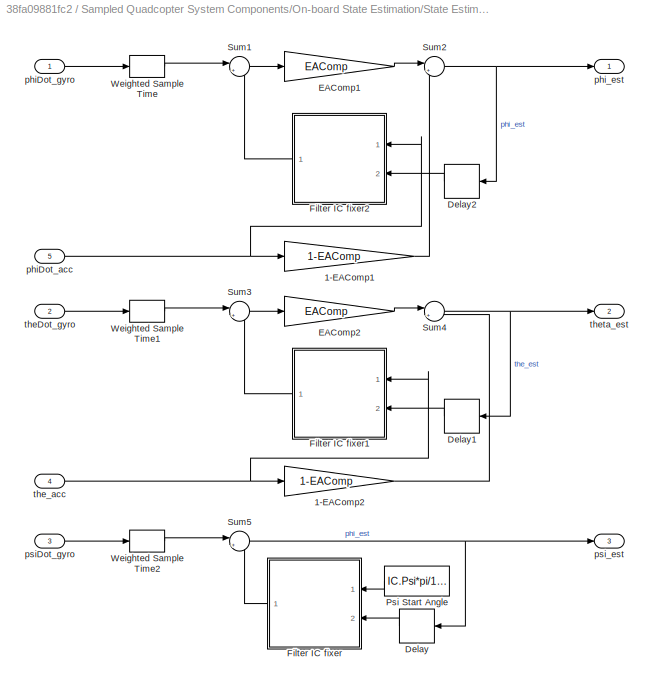
BLOCK [SubSystem] Sampled Quadcopter System Components/On-board State Estimation/State Estimation and Complimentary Mixing/Complimentary Filter
  FunctionWithSeparateData = off
  MaskHideContents = off
  MinAlgLoopOccurrences = off
  Opaque = off
  Ports = [5, 3]
  PropExecContextOutsideSubsystem = off
  RTWSystemCode = Auto
  RequestExecContextInheritance = off
BLOCK [Gain] Sampled Quadcopter System Components/On-board State Estimation/State Estimation and Complimentary Mixing/Complimentary Filter/1-EAComp1
  Gain = 1-EAComp
  OutDataTypeStr = Inherit: Inherit via internal rule
  ParamDataTypeStr = Inherit: Inherit via internal rule
  SaturateOnIntegerOverflow = off
BLOCK [Gain] Sampled Quadcopter System Components/On-board State Estimation/State Estimation and Complimentary Mixing/Complimentary Filter/1-EAComp2
  Gain = 1-EAComp
  OutDataTypeStr = Inherit: Inherit via internal rule
  ParamDataTypeStr = Inherit: Inherit via internal rule
  SaturateOnIntegerOverflow = off
BLOCK [Delay] Sampled Quadcopter System Components/On-board State Estimation/State Estimation and Complimentary Mixing/Complimentary Filter/Delay
  DelayLength = 1
  InitialCondition = 0
  InputPortMap = u0
  Ports = [1, 1]
BLOCK [Delay] Sampled Quadcopter System Components/On-board State Estimation/State Estimation and Complimentary Mixing/Complimentary Filter/Delay1
  DelayLength = 1
  InitialCondition = 0
  InputPortMap = u0
  Ports = [1, 1]
BLOCK [Delay] Sampled Quadcopter System Components/On-board State Estimation/State Estimation and Complimentary Mixing/Complimentary Filter/Delay2
  DelayLength = 1
  InitialCondition = 0
  InputPortMap = u0
  Ports = [1, 1]
BLOCK [Gain] Sampled Quadcopter System Components/On-board State Estimation/State Estimation and Complimentary Mixing/Complimentary Filter/EAComp1
  Gain = EAComp
  OutDataTypeStr = Inherit: Inherit via internal rule
  ParamDataTypeStr = Inherit: Inherit via internal rule
  SaturateOnIntegerOverflow = off
BLOCK [Gain] Sampled Quadcopter System Components/On-board State Estimation/State Estimation and Complimentary Mixing/Complimentary Filter/EAComp2
  Gain = EAComp
  OutDataTypeStr = Inherit: Inherit via internal rule
  ParamDataTypeStr = Inherit: Inherit via internal rule
  SaturateOnIntegerOverflow = off
BLOCK [SubSystem] Sampled Quadcopter System Components/On-board State Estimation/State Estimation and Complimentary Mixing/Complimentary Filter/Filter IC fixer
  FunctionWithSeparateData = off
  MaskHideContents = off
  MinAlgLoopOccurrences = off
  Opaque = off
  Ports = [2, 1]
  PropExecContextOutsideSubsystem = off
  RTWSystemCode = Auto
  RequestExecContextInheritance = off
BLOCK [Constant] Sampled Quadcopter System Components/On-board State Estimation/State Estimation and Complimentary Mixing/Complimentary Filter/Filter IC fixer/Constant
BLOCK [Inport] Sampled Quadcopter System Components/On-board State Estimation/State Estimation and Complimentary Mixing/Complimentary Filter/Filter IC fixer/FilterStart
  IconDisplay = Port number
BLOCK [InitialCondition] Sampled Quadcopter System Components/On-board State Estimation/State Estimation and Complimentary Mixing/Complimentary Filter/Filter IC fixer/IC
  Value = 0
BLOCK [Inport] Sampled Quadcopter System Components/On-board State Estimation/State Estimation and Complimentary Mixing/Complimentary Filter/Filter IC fixer/Normal Output
  IconDisplay = Port number
  Port = 2
BLOCK [Outport] Sampled Quadcopter System Components/On-board State Estimation/State Estimation and Complimentary Mixing/Complimentary Filter/Filter IC fixer/Out1
  IconDisplay = Port number
BLOCK [Switch] Sampled Quadcopter System Components/On-board State Estimation/State Estimation and Complimentary Mixing/Complimentary Filter/Filter IC fixer/Switch
  Criteria = u2 ~= 0
  InputSameDT = off
  SampleTime = ControllerSampleTime
  SaturateOnIntegerOverflow = off
BLOCK [SubSystem] Sampled Quadcopter System Components/On-board State Estimation/State Estimation and Complimentary Mixing/Complimentary Filter/Filter IC fixer1
  FunctionWithSeparateData = off
  MaskHideContents = off
  MinAlgLoopOccurrences = off
  Opaque = off
  Ports = [2, 1]
  PropExecContextOutsideSubsystem = off
  RTWSystemCode = Auto
  RequestExecContextInheritance = off
BLOCK [Constant] Sampled Quadcopter System Components/On-board State Estimation/State Estimation and Complimentary Mixing/Complimentary Filter/Filter IC fixer1/Constant
BLOCK [Inport] Sampled Quadcopter System Components/On-board State Estimation/State Estimation and Complimentary Mixing/Complimentary Filter/Filter IC fixer1/FilterStart
  IconDisplay = Port number
BLOCK [InitialCondition] Sampled Quadcopter System Components/On-board State Estimation/State Estimation and Complimentary Mixing/Complimentary Filter/Filter IC fixer1/IC
  Value = 0
BLOCK [Inport] Sampled Quadcopter System Components/On-board State Estimation/State Estimation and Complimentary Mixing/Complimentary Filter/Filter IC fixer1/Normal Output
  IconDisplay = Port number
  Port = 2
BLOCK [Outport] Sampled Quadcopter System Components/On-board State Estimation/State Estimation and Complimentary Mixing/Complimentary Filter/Filter IC fixer1/Out1
  IconDisplay = Port number
BLOCK [Switch] Sampled Quadcopter System Components/On-board State Estimation/State Estimation and Complimentary Mixing/Complimentary Filter/Filter IC fixer1/Switch
  Criteria = u2 ~= 0
  InputSameDT = off
  SampleTime = ControllerSampleTime
  SaturateOnIntegerOverflow = off
BLOCK [SubSystem] Sampled Quadcopter System Components/On-board State Estimation/State Estimation and Complimentary Mixing/Complimentary Filter/Filter IC fixer2
  FunctionWithSeparateData = off
  MaskHideContents = off
  MinAlgLoopOccurrences = off
  Opaque = off
  Ports = [2, 1]
  PropExecContextOutsideSubsystem = off
  RTWSystemCode = Auto
  RequestExecContextInheritance = off
BLOCK [Constant] Sampled Quadcopter System Components/On-board State Estimation/State Estimation and Complimentary Mixing/Complimentary Filter/Filter IC fixer2/Constant
BLOCK [Inport] Sampled Quadcopter System Components/On-board State Estimation/State Estimation and Complimentary Mixing/Complimentary Filter/Filter IC fixer2/FilterStart
  IconDisplay = Port number
BLOCK [InitialCondition] Sampled Quadcopter System Components/On-board State Estimation/State Estimation and Complimentary Mixing/Complimentary Filter/Filter IC fixer2/IC
  Value = 0
BLOCK [Inport] Sampled Quadcopter System Components/On-board State Estimation/State Estimation and Complimentary Mixing/Complimentary Filter/Filter IC fixer2/Normal Output
  IconDisplay = Port number
  Port = 2
BLOCK [Outport] Sampled Quadcopter System Components/On-board State Estimation/State Estimation and Complimentary Mixing/Complimentary Filter/Filter IC fixer2/Out1
  IconDisplay = Port number
BLOCK [Switch] Sampled Quadcopter System Components/On-board State Estimation/State Estimation and Complimentary Mixing/Complimentary Filter/Filter IC fixer2/Switch
  Criteria = u2 ~= 0
  InputSameDT = off
  SampleTime = ControllerSampleTime
  SaturateOnIntegerOverflow = off
BLOCK [Constant] Sampled Quadcopter System Components/On-board State Estimation/State Estimation and Complimentary Mixing/Complimentary Filter/Psi Start Angle
  Value = IC.Psi*pi/180
BLOCK [Sum] Sampled Quadcopter System Components/On-board State Estimation/State Estimation and Complimentary Mixing/Complimentary Filter/Sum1
  IconShape = round
  InputSameDT = off
  Inputs = |++
  OutDataTypeStr = Inherit: Inherit via internal rule
  Ports = [2, 1]
  SaturateOnIntegerOverflow = off
BLOCK [Sum] Sampled Quadcopter System Components/On-board State Estimation/State Estimation and Complimentary Mixing/Complimentary Filter/Sum2
  IconShape = round
  InputSameDT = off
  Inputs = |++
  OutDataTypeStr = Inherit: Inherit via internal rule
  Ports = [2, 1]
  SaturateOnIntegerOverflow = off
BLOCK [Sum] Sampled Quadcopter System Components/On-board State Estimation/State Estimation and Complimentary Mixing/Complimentary Filter/Sum3
  IconShape = round
  InputSameDT = off
  Inputs = |++
  OutDataTypeStr = Inherit: Inherit via internal rule
  Ports = [2, 1]
  SaturateOnIntegerOverflow = off
BLOCK [Sum] Sampled Quadcopter System Components/On-board State Estimation/State Estimation and Complimentary Mixing/Complimentary Filter/Sum4
  IconShape = round
  InputSameDT = off
  Inputs = |++
  OutDataTypeStr = Inherit: Inherit via internal rule
  Ports = [2, 1]
  SaturateOnIntegerOverflow = off
BLOCK [Sum] Sampled Quadcopter System Components/On-board State Estimation/State Estimation and Complimentary Mixing/Complimentary Filter/Sum5
  IconShape = round
  InputSameDT = off
  Inputs = |++
  OutDataTypeStr = Inherit: Inherit via internal rule
  Ports = [2, 1]
  SaturateOnIntegerOverflow = off
BLOCK [SampleTimeMath] Sampled Quadcopter System Components/On-board State Estimation/State Estimation and Complimentary Mixing/Complimentary Filter/Weighted Sample Time
  TsampMathOp = *
BLOCK [SampleTimeMath] Sampled Quadcopter System Components/On-board State Estimation/State Estimation and Complimentary Mixing/Complimentary Filter/Weighted Sample Time1
  TsampMathOp = *
BLOCK [SampleTimeMath] Sampled Quadcopter System Components/On-board State Estimation/State Estimation and Complimentary Mixing/Complimentary Filter/Weighted Sample Time2
  TsampMathOp = *
BLOCK [Inport] Sampled Quadcopter System Components/On-board State Estimation/State Estimation and Complimentary Mixing/Complimentary Filter/phiDot_acc
  IconDisplay = Port number
  Port = 5
BLOCK [Inport] Sampled Quadcopter System Components/On-board State Estimation/State Estimation and Complimentary Mixing/Complimentary Filter/phiDot_gyro
  IconDisplay = Port number
BLOCK [Outport] Sampled Quadcopter System Components/On-board State Estimation/State Estimation and Complimentary Mixing/Complimentary Filter/phi_est
  IconDisplay = Port number
BLOCK [Inport] Sampled Quadcopter System Components/On-board State Estimation/State Estimation and Complimentary Mixing/Complimentary Filter/psiDot_gyro
  IconDisplay = Port number
  Port = 3
BLOCK [Outport] Sampled Quadcopter System Components/On-board State Estimation/State Estimation and Complimentary Mixing/Complimentary Filter/psi_est
  IconDisplay = Port number
  Port = 3
BLOCK [Inport] Sampled Quadcopter System Components/On-board State Estimation/State Estimation and Complimentary Mixing/Complimentary Filter/theDot_gyro
  IconDisplay = Port number
  Port = 2
BLOCK [Inport] Sampled Quadcopter System Components/On-board State Estimation/State Estimation and Complimentary Mixing/Complimentary Filter/the_acc
  IconDisplay = Port number
  Port = 4
BLOCK [Outport] Sampled Quadcopter System Components/On-board State Estimation/State Estimation and Complimentary Mixing/Complimentary Filter/theta_est
  IconDisplay = Port number
  Port = 2
BLOCK [Inport] Sampled Quadcopter System Components/On-board State Estimation/State Estimation and Complimentary Mixing/In1
  IconDisplay = Port number
BLOCK [Outport] Sampled Quadcopter System Components/On-board State Estimation/State Estimation and Complimentary Mixing/State Estimations
  IconDisplay = Port number
BLOCK [SubSystem] Sampled Quadcopter System Components/On-board State Estimation/State Estimation and Complimentary Mixing/Subsystem
  FunctionWithSeparateData = off
  MaskHideContents = off
  MinAlgLoopOccurrences = off
  Opaque = off
  Ports = [5, 3]
  PropExecContextOutsideSubsystem = off
  RTWSystemCode = Auto
  RequestExecContextInheritance = off
BLOCK [Delay] Sampled Quadcopter System Components/On-board State Estimation/State Estimation and Complimentary Mixing/Subsystem/Delay
  DelayLength = 1
  InitialCondition = 0
  InputPortMap = u0
  Ports = [1, 1]
BLOCK [Delay] Sampled Quadcopter System Components/On-board State Estimation/State Estimation and Complimentary Mixing/Subsystem/Delay1
  DelayLength = 1
  InitialCondition = 0
  InputPortMap = u0
  Ports = [1, 1]
BLOCK [SubSystem] Sampled Quadcopter System Components/On-board State Estimation/State Estimation and Complimentary Mixing/Subsystem/Filter IC fixer1
  FunctionWithSeparateData = off
  MaskHideContents = off
  MinAlgLoopOccurrences = off
  Opaque = off
  Ports = [2, 1]
  PropExecContextOutsideSubsystem = off
  RTWSystemCode = Auto
  RequestExecContextInheritance = off
BLOCK [Constant] Sampled Quadcopter System Components/On-board State Estimation/State Estimation and Complimentary Mixing/Subsystem/Filter IC fixer1/Constant
BLOCK [Inport] Sampled Quadcopter System Components/On-board State Estimation/State Estimation and Complimentary Mixing/Subsystem/Filter IC fixer1/FilterStart
  IconDisplay = Port number
BLOCK [InitialCondition] Sampled Quadcopter System Components/On-board State Estimation/State Estimation and Complimentary Mixing/Subsystem/Filter IC fixer1/IC
  Value = 0
BLOCK [Inport] Sampled Quadcopter System Components/On-board State Estimation/State Estimation and Complimentary Mixing/Subsystem/Filter IC fixer1/Normal Output
  IconDisplay = Port number
  Port = 2
BLOCK [Outport] Sampled Quadcopter System Components/On-board State Estimation/State Estimation and Complimentary Mixing/Subsystem/Filter IC fixer1/Out1
  IconDisplay = Port number
BLOCK [Switch] Sampled Quadcopter System Components/On-board State Estimation/State Estimation and Complimentary Mixing/Subsystem/Filter IC fixer1/Switch
  Criteria = u2 ~= 0
  InputSameDT = off
  SampleTime = ControllerSampleTime
  SaturateOnIntegerOverflow = off
BLOCK [SubSystem] Sampled Quadcopter System Components/On-board State Estimation/State Estimation and Complimentary Mixing/Subsystem/Filter IC fixer2
  FunctionWithSeparateData = off
  MaskHideContents = off
  MinAlgLoopOccurrences = off
  Opaque = off
  Ports = [2, 1]
  PropExecContextOutsideSubsystem = off
  RTWSystemCode = Auto
  RequestExecContextInheritance = off
BLOCK [Constant] Sampled Quadcopter System Components/On-board State Estimation/State Estimation and Complimentary Mixing/Subsystem/Filter IC fixer2/Constant
BLOCK [Inport] Sampled Quadcopter System Components/On-board State Estimation/State Estimation and Complimentary Mixing/Subsystem/Filter IC fixer2/FilterStart
  IconDisplay = Port number
BLOCK [InitialCondition] Sampled Quadcopter System Components/On-board State Estimation/State Estimation and Complimentary Mixing/Subsystem/Filter IC fixer2/IC
  Value = 0
BLOCK [Inport] Sampled Quadcopter System Components/On-board State Estimation/State Estimation and Complimentary Mixing/Subsystem/Filter IC fixer2/Normal Output
  IconDisplay = Port number
  Port = 2
BLOCK [Outport] Sampled Quadcopter System Components/On-board State Estimation/State Estimation and Complimentary Mixing/Subsystem/Filter IC fixer2/Out1
  IconDisplay = Port number
BLOCK [Switch] Sampled Quadcopter System Components/On-board State Estimation/State Estimation and Complimentary Mixing/Subsystem/Filter IC fixer2/Switch
  Criteria = u2 ~= 0
  InputSameDT = off
  SampleTime = ControllerSampleTime
  SaturateOnIntegerOverflow = off
BLOCK [Inport] Sampled Quadcopter System Components/On-board State Estimation/State Estimation and Complimentary Mixing/Subsystem/P
  IconDisplay = Port number
  Port = 3
BLOCK [Inport] Sampled Quadcopter System Components/On-board State Estimation/State Estimation and Complimentary Mixing/Subsystem/Phi
  IconDisplay = Port number
BLOCK [Constant] Sampled Quadcopter System Components/On-board State Estimation/State Estimation and Complimentary Mixing/Subsystem/Phi Start Angle
  Value = IC.Phi*pi/180
BLOCK [SubSystem] Sampled Quadcopter System Components/On-board State Estimation/State Estimation and Complimentary Mixing/Subsystem/Phi_dot composer
  FunctionWithSeparateData = off
  MaskHideContents = off
  MinAlgLoopOccurrences = off
  Opaque = off
  Ports = [5, 1]
  PropExecContextOutsideSubsystem = off
  RTWSystemCode = Auto
  RequestExecContextInheritance = off
BLOCK [Inport] Sampled Quadcopter System Components/On-board State Estimation/State Estimation and Complimentary Mixing/Subsystem/Phi_dot composer/P
  IconDisplay = Port number
  Port = 3
BLOCK [Inport] Sampled Quadcopter System Components/On-board State Estimation/State Estimation and Complimentary Mixing/Subsystem/Phi_dot composer/Phi
  IconDisplay = Port number
BLOCK [Product] Sampled Quadcopter System Components/On-board State Estimation/State Estimation and Complimentary Mixing/Subsystem/Phi_dot composer/Product
  InputSameDT = off
  Inputs = 3
  OutDataTypeStr = Inherit: Inherit via internal rule
  Ports = [3, 1]
  RndMeth = Floor
  SaturateOnIntegerOverflow = off
BLOCK [Product] Sampled Quadcopter System Components/On-board State Estimation/State Estimation and Complimentary Mixing/Subsystem/Phi_dot composer/Product1
  InputSameDT = off
  Inputs = 3
  OutDataTypeStr = Inherit: Inherit via internal rule
  Ports = [3, 1]
  RndMeth = Floor
  SaturateOnIntegerOverflow = off
BLOCK [Inport] Sampled Quadcopter System Components/On-board State Estimation/State Estimation and Complimentary Mixing/Subsystem/Phi_dot composer/Q
  IconDisplay = Port number
  Port = 4
BLOCK [Inport] Sampled Quadcopter System Components/On-board State Estimation/State Estimation and Complimentary Mixing/Subsystem/Phi_dot composer/R
  IconDisplay = Port number
  Port = 5
BLOCK [Sum] Sampled Quadcopter System Components/On-board State Estimation/State Estimation and Complimentary Mixing/Subsystem/Phi_dot composer/Sum
  IconShape = round
  InputSameDT = off
  Inputs = +++
  OutDataTypeStr = Inherit: Inherit via internal rule
  Ports = [3, 1]
  SaturateOnIntegerOverflow = off
BLOCK [Inport] Sampled Quadcopter System Components/On-board State Estimation/State Estimation and Complimentary Mixing/Subsystem/Phi_dot composer/Theta
  IconDisplay = Port number
  Port = 2
BLOCK [Trigonometry] Sampled Quadcopter System Components/On-board State Estimation/State Estimation and Complimentary Mixing/Subsystem/Phi_dot composer/Trigonometric Function
  Operator = tan
  Ports = [1, 1]
BLOCK [Trigonometry] Sampled Quadcopter System Components/On-board State Estimation/State Estimation and Complimentary Mixing/Subsystem/Phi_dot composer/Trigonometric Function1
  Operator = sincos
  Ports = [1, 2]
BLOCK [Outport] Sampled Quadcopter System Components/On-board State Estimation/State Estimation and Complimentary Mixing/Subsystem/Phi_dot composer/phiDot
  IconDisplay = Port number
BLOCK [SubSystem] Sampled Quadcopter System Components/On-board State Estimation/State Estimation and Complimentary Mixing/Subsystem/Phi_dot composer1
  FunctionWithSeparateData = off
  MaskHideContents = off
  MinAlgLoopOccurrences = off
  Opaque = off
  Ports = [4, 1]
  PropExecContextOutsideSubsystem = off
  RTWSystemCode = Auto
  RequestExecContextInheritance = off
BLOCK [Product] Sampled Quadcopter System Components/On-board State Estimation/State Estimation and Complimentary Mixing/Subsystem/Phi_dot composer1/Divide
  InputSameDT = off
  Inputs = **/
  OutDataTypeStr = Inherit: Inherit via internal rule
  Ports = [3, 1]
  RndMeth = Floor
  SaturateOnIntegerOverflow = off
BLOCK [Product] Sampled Quadcopter System Components/On-board State Estimation/State Estimation and Complimentary Mixing/Subsystem/Phi_dot composer1/Divide1
  InputSameDT = off
  Inputs = **/
  OutDataTypeStr = Inherit: Inherit via internal rule
  Ports = [3, 1]
  RndMeth = Floor
  SaturateOnIntegerOverflow = off
BLOCK [Inport] Sampled Quadcopter System Components/On-board State Estimation/State Estimation and Complimentary Mixing/Subsystem/Phi_dot composer1/Phi
  IconDisplay = Port number
BLOCK [Inport] Sampled Quadcopter System Components/On-board State Estimation/State Estimation and Complimentary Mixing/Subsystem/Phi_dot composer1/Q
  IconDisplay = Port number
  Port = 3
BLOCK [Inport] Sampled Quadcopter System Components/On-board State Estimation/State Estimation and Complimentary Mixing/Subsystem/Phi_dot composer1/R
  IconDisplay = Port number
  Port = 4
BLOCK [Sum] Sampled Quadcopter System Components/On-board State Estimation/State Estimation and Complimentary Mixing/Subsystem/Phi_dot composer1/Sum
  IconShape = round
  InputSameDT = off
  Inputs = |++
  OutDataTypeStr = Inherit: Inherit via internal rule
  Ports = [2, 1]
  SaturateOnIntegerOverflow = off
BLOCK [Inport] Sampled Quadcopter System Components/On-board State Estimation/State Estimation and Complimentary Mixing/Subsystem/Phi_dot composer1/Theta
  IconDisplay = Port number
  Port = 2
BLOCK [Trigonometry] Sampled Quadcopter System Components/On-board State Estimation/State Estimation and Complimentary Mixing/Subsystem/Phi_dot composer1/Trigonometric Function
  Operator = sincos
  Ports = [1, 2]
BLOCK [Trigonometry] Sampled Quadcopter System Components/On-board State Estimation/State Estimation and Complimentary Mixing/Subsystem/Phi_dot composer1/Trigonometric Function1
  Operator = cos
  Ports = [1, 1]
BLOCK [Outport] Sampled Quadcopter System Components/On-board State Estimation/State Estimation and Complimentary Mixing/Subsystem/Phi_dot composer1/psiDot
  IconDisplay = Port number
BLOCK [Inport] Sampled Quadcopter System Components/On-board State Estimation/State Estimation and Complimentary Mixing/Subsystem/Q
  IconDisplay = Port number
  Port = 4
BLOCK [Inport] Sampled Quadcopter System Components/On-board State Estimation/State Estimation and Complimentary Mixing/Subsystem/R
  IconDisplay = Port number
  Port = 5
BLOCK [Inport] Sampled Quadcopter System Components/On-board State Estimation/State Estimation and Complimentary Mixing/Subsystem/Theta
  IconDisplay = Port number
  Port = 2
BLOCK [Constant] Sampled Quadcopter System Components/On-board State Estimation/State Estimation and Complimentary Mixing/Subsystem/Theta Start Angle
  Value = IC.The*pi/180
BLOCK [SubSystem] Sampled Quadcopter System Components/On-board State Estimation/State Estimation and Complimentary Mixing/Subsystem/Theta_dot composer1
  FunctionWithSeparateData = off
  MaskHideContents = off
  MinAlgLoopOccurrences = off
  Opaque = off
  Ports = [3, 1]
  PropExecContextOutsideSubsystem = off
  RTWSystemCode = Auto
  RequestExecContextInheritance = off
BLOCK [Inport] Sampled Quadcopter System Components/On-board State Estimation/State Estimation and Complimentary Mixing/Subsystem/Theta_dot composer1/Phi
  IconDisplay = Port number
BLOCK [Product] Sampled Quadcopter System Components/On-board State Estimation/State Estimation and Complimentary Mixing/Subsystem/Theta_dot composer1/Product
  InputSameDT = off
  OutDataTypeStr = Inherit: Inherit via internal rule
  Ports = [2, 1]
  RndMeth = Floor
  SaturateOnIntegerOverflow = off
BLOCK [Product] Sampled Quadcopter System Components/On-board State Estimation/State Estimation and Complimentary Mixing/Subsystem/Theta_dot composer1/Product1
  InputSameDT = off
  OutDataTypeStr = Inherit: Inherit via internal rule
  Ports = [2, 1]
  RndMeth = Floor
  SaturateOnIntegerOverflow = off
BLOCK [Inport] Sampled Quadcopter System Components/On-board State Estimation/State Estimation and Complimentary Mixing/Subsystem/Theta_dot composer1/Q
  IconDisplay = Port number
  Port = 2
BLOCK [Inport] Sampled Quadcopter System Components/On-board State Estimation/State Estimation and Complimentary Mixing/Subsystem/Theta_dot composer1/R
  IconDisplay = Port number
  Port = 3
BLOCK [Scope] Sampled Quadcopter System Components/On-board State Estimation/State Estimation and Complimentary Mixing/Subsystem/Theta_dot composer1/Scope
  DataFormat = StructureWithTime
  Floating = off
  NumInputPorts = 2
  Ports = [2]
  SampleTime = 0
  SaveName = ScopeData6
  ShowLegends = off
  YMax = 5~5
  YMin = -5~-5
BLOCK [Sum] Sampled Quadcopter System Components/On-board State Estimation/State Estimation and Complimentary Mixing/Subsystem/Theta_dot composer1/Sum
  IconShape = round
  InputSameDT = off
  Inputs = |++
  OutDataTypeStr = Inherit: Inherit via internal rule
  Ports = [2, 1]
  SaturateOnIntegerOverflow = off
BLOCK [Trigonometry] Sampled Quadcopter System Components/On-board State Estimation/State Estimation and Complimentary Mixing/Subsystem/Theta_dot composer1/Trigonometric Function2
  Operator = sincos
  Ports = [1, 2]
BLOCK [UnaryMinus] Sampled Quadcopter System Components/On-board State Estimation/State Estimation and Complimentary Mixing/Subsystem/Theta_dot composer1/Unary Minus
BLOCK [Outport] Sampled Quadcopter System Components/On-board State Estimation/State Estimation and Complimentary Mixing/Subsystem/Theta_dot composer1/thetaDot
  IconDisplay = Port number
BLOCK [Outport] Sampled Quadcopter System Components/On-board State Estimation/State Estimation and Complimentary Mixing/Subsystem/phiDot_gyro
  IconDisplay = Port number
BLOCK [Outport] Sampled Quadcopter System Components/On-board State Estimation/State Estimation and Complimentary Mixing/Subsystem/psiDot_gyro
  IconDisplay = Port number
  Port = 3
BLOCK [Outport] Sampled Quadcopter System Components/On-board State Estimation/State Estimation and Complimentary Mixing/Subsystem/thetaDot_gyro
  IconDisplay = Port number
  Port = 2
BLOCK [SubSystem] Sampled Quadcopter System Components/On-board State Estimation/State Estimation and Complimentary Mixing/Subsystem1
  FunctionWithSeparateData = off
  MaskHideContents = off
  MinAlgLoopOccurrences = off
  Opaque = off
  Ports = [3, 2]
  PropExecContextOutsideSubsystem = off
  RTWSystemCode = Auto
  RequestExecContextInheritance = off
BLOCK [Product] Sampled Quadcopter System Components/On-board State Estimation/State Estimation and Complimentary Mixing/Subsystem1/Divide
  InputSameDT = off
  Inputs = */
  OutDataTypeStr = Inherit: Inherit via internal rule
  Ports = [2, 1]
  RndMeth = Floor
  SaturateOnIntegerOverflow = off
BLOCK [Product] Sampled Quadcopter System Components/On-board State Estimation/State Estimation and Complimentary Mixing/Subsystem1/Divide1
  InputSameDT = off
  Inputs = */
  OutDataTypeStr = Inherit: Inherit via internal rule
  Ports = [2, 1]
  RndMeth = Floor
  SaturateOnIntegerOverflow = off
BLOCK [Gain] Sampled Quadcopter System Components/On-board State Estimation/State Estimation and Complimentary Mixing/Subsystem1/Gain
  Gain = -1
  OutDataTypeStr = Inherit: Inherit via internal rule
  ParamDataTypeStr = Inherit: Inherit via internal rule
  SaturateOnIntegerOverflow = off
BLOCK [SubSystem] Sampled Quadcopter System Components/On-board State Estimation/State Estimation and Complimentary Mixing/Subsystem1/Magnitude
  FunctionWithSeparateData = off
  MaskHideContents = off
  MinAlgLoopOccurrences = off
  Opaque = off
  Ports = [3, 1]
  PropExecContextOutsideSubsystem = off
  RTWSystemCode = Auto
  RequestExecContextInheritance = off
BLOCK [Demux] Sampled Quadcopter System Components/On-board State Estimation/State Estimation and Complimentary Mixing/Subsystem1/Magnitude/Demux1
  DisplayOption = bar
  Outputs = 3
  Ports = [1, 3]
BLOCK [Math] Sampled Quadcopter System Components/On-board State Estimation/State Estimation and Complimentary Mixing/Subsystem1/Magnitude/Math Function
  Operator = square
  Ports = [1, 1]
BLOCK [Mux] Sampled Quadcopter System Components/On-board State Estimation/State Estimation and Complimentary Mixing/Subsystem1/Magnitude/Mux
  DisplayOption = bar
  Inputs = 3
  Ports = [3, 1]
BLOCK [Sqrt] Sampled Quadcopter System Components/On-board State Estimation/State Estimation and Complimentary Mixing/Subsystem1/Magnitude/Sqrt
BLOCK [Sum] Sampled Quadcopter System Components/On-board State Estimation/State Estimation and Complimentary Mixing/Subsystem1/Magnitude/Sum
  IconShape = round
  InputSameDT = off
  Inputs = +++
  OutDataTypeStr = Inherit: Inherit via internal rule
  Ports = [3, 1]
  SaturateOnIntegerOverflow = off
BLOCK [Inport] Sampled Quadcopter System Components/On-board State Estimation/State Estimation and Complimentary Mixing/Subsystem1/Magnitude/x_acc
  IconDisplay = Port number
BLOCK [Inport] Sampled Quadcopter System Components/On-board State Estimation/State Estimation and Complimentary Mixing/Subsystem1/Magnitude/y_acc
  IconDisplay = Port number
  Port = 2
BLOCK [Inport] Sampled Quadcopter System Components/On-board State Estimation/State Estimation and Complimentary Mixing/Subsystem1/Magnitude/z_acc
  IconDisplay = Port number
  Port = 3
BLOCK [Outport] Sampled Quadcopter System Components/On-board State Estimation/State Estimation and Complimentary Mixing/Subsystem1/Magnitude/|g|
  IconDisplay = Port number
BLOCK [Product] Sampled Quadcopter System Components/On-board State Estimation/State Estimation and Complimentary Mixing/Subsystem1/Product
  InputSameDT = off
  OutDataTypeStr = Inherit: Inherit via internal rule
  Ports = [2, 1]
  RndMeth = Floor
  SaturateOnIntegerOverflow = off
BLOCK [Trigonometry] Sampled Quadcopter System Components/On-board State Estimation/State Estimation and Complimentary Mixing/Subsystem1/Trigonometric Function
  Operator = asin
  OutputSignalType = real
  Ports = [1, 1]
BLOCK [Trigonometry] Sampled Quadcopter System Components/On-board State Estimation/State Estimation and Complimentary Mixing/Subsystem1/Trigonometric Function1
  Operator = asin
  OutputSignalType = real
  Ports = [1, 1]
BLOCK [Trigonometry] Sampled Quadcopter System Components/On-board State Estimation/State Estimation and Complimentary Mixing/Subsystem1/Trigonometric Function2
  Operator = cos
  OutputSignalType = real
  Ports = [1, 1]
BLOCK [Outport] Sampled Quadcopter System Components/On-board State Estimation/State Estimation and Complimentary Mixing/Subsystem1/phi_acc
  IconDisplay = Port number
  Port = 2
BLOCK [Outport] Sampled Quadcopter System Components/On-board State Estimation/State Estimation and Complimentary Mixing/Subsystem1/theta_acc
  IconDisplay = Port number
BLOCK [Inport] Sampled Quadcopter System Components/On-board State Estimation/State Estimation and Complimentary Mixing/Subsystem1/x_acc
  IconDisplay = Port number
BLOCK [Inport] Sampled Quadcopter System Components/On-board State Estimation/State Estimation and Complimentary Mixing/Subsystem1/y_acc
  IconDisplay = Port number
  Port = 2
BLOCK [Inport] Sampled Quadcopter System Components/On-board State Estimation/State Estimation and Complimentary Mixing/Subsystem1/z_acc
  IconDisplay = Port number
  Port = 3
BLOCK [SubSystem] Sampled Quadcopter System Components/On-board State Estimation/data scaling
  FunctionWithSeparateData = off
  MaskHideContents = off
  MinAlgLoopOccurrences = off
  Opaque = off
  Ports = [1, 1]
  PropExecContextOutsideSubsystem = off
  RTWSystemCode = Auto
  RequestExecContextInheritance = off
BLOCK [BusCreator] Sampled Quadcopter System Components/On-board State Estimation/data scaling/Bus Creator
  DisplayOption = bar
  Inputs = 6
  Ports = [6, 1]
BLOCK [BusSelector] Sampled Quadcopter System Components/On-board State Estimation/data scaling/Bus Selector
  OutputSignals = gx_filt,gy_filt,gz_filt,ax_filt,ay_filt,az_filt
  Ports = [1, 6]
BLOCK [Demux] Sampled Quadcopter System Components/On-board State Estimation/data scaling/Demux
  DisplayOption = bar
  Outputs = 3
  Ports = [1, 3]
BLOCK [Demux] Sampled Quadcopter System Components/On-board State Estimation/data scaling/Demux1
  DisplayOption = bar
  Outputs = 3
  Ports = [1, 3]
BLOCK [Gain] Sampled Quadcopter System Components/On-board State Estimation/data scaling/Gain
  Gain = pi/(180*131)
  OutDataTypeStr = Inherit: Inherit via internal rule
  ParamDataTypeStr = Inherit: Inherit via internal rule
  SaturateOnIntegerOverflow = off
BLOCK [Gain] Sampled Quadcopter System Components/On-board State Estimation/data scaling/Gain1
  Gain = 9.81*16384
  OutDataTypeStr = Inherit: Inherit via internal rule
  ParamDataTypeStr = Inherit: Inherit via internal rule
  SaturateOnIntegerOverflow = off
BLOCK [Inport] Sampled Quadcopter System Components/On-board State Estimation/data scaling/In1
  IconDisplay = Port number
BLOCK [Mux] Sampled Quadcopter System Components/On-board State Estimation/data scaling/Mux1
  DisplayOption = bar
  Inputs = 3
  Ports = [3, 1]
BLOCK [Mux] Sampled Quadcopter System Components/On-board State Estimation/data scaling/Mux2
  DisplayOption = bar
  Inputs = 3
  Ports = [3, 1]
BLOCK [Outport] Sampled Quadcopter System Components/On-board State Estimation/data scaling/Out1
  IconDisplay = Port number
BLOCK [SubSystem] Sampled Quadcopter System Components/On-board State Estimation/filterRawData()
  FunctionWithSeparateData = off
  MaskHideContents = off
  MinAlgLoopOccurrences = off
  Opaque = off
  Ports = [1, 1]
  PropExecContextOutsideSubsystem = off
  RTWSystemCode = Auto
  RequestExecContextInheritance = off
BLOCK [Gain] Sampled Quadcopter System Components/On-board State Estimation/filterRawData()/1-Accel Alpha
  Gain = 1-Accel_Alpha
  OutDataTypeStr = Inherit: Inherit via internal rule
  ParamDataTypeStr = Inherit: Inherit via internal rule
  SaturateOnIntegerOverflow = off
BLOCK [Gain] Sampled Quadcopter System Components/On-board State Estimation/filterRawData()/1-Gyro aplha
  Gain = 1-Gyro_Alpha
  OutDataTypeStr = Inherit: Inherit via internal rule
  ParamDataTypeStr = Inherit: Inherit via internal rule
  SaturateOnIntegerOverflow = off
BLOCK [Gain] Sampled Quadcopter System Components/On-board State Estimation/filterRawData()/Accel alpha
  Gain = Accel_Alpha
  OutDataTypeStr = Inherit: Inherit via internal rule
  ParamDataTypeStr = Inherit: Inherit via internal rule
  SaturateOnIntegerOverflow = off
BLOCK [BusCreator] Sampled Quadcopter System Components/On-board State Estimation/filterRawData()/Bus Creator
  DisplayOption = bar
  Inputs = 6
  Ports = [6, 1]
BLOCK [BusSelector] Sampled Quadcopter System Components/On-board State Estimation/filterRawData()/Bus Selector
  OutputSignals = gx_filt,gy_filt,gz_filt
  Ports = [1, 3]
BLOCK [BusSelector] Sampled Quadcopter System Components/On-board State Estimation/filterRawData()/Bus Selector1
  OutputSignals = ax_filt,ay_filt,az_filt
  Ports = [1, 3]
BLOCK [DataTypeConversion] Sampled Quadcopter System Components/On-board State Estimation/filterRawData()/Data Type Conversion
  OutDataTypeStr = double
  RndMeth = Nearest
  SaturateOnIntegerOverflow = off
BLOCK [DataTypeConversion] Sampled Quadcopter System Components/On-board State Estimation/filterRawData()/Data Type Conversion1
  OutDataTypeStr = double
  RndMeth = Nearest
  SaturateOnIntegerOverflow = off
BLOCK [Demux] Sampled Quadcopter System Components/On-board State Estimation/filterRawData()/Demux
  DisplayOption = bar
  Outputs = 3
  Ports = [1, 3]
BLOCK [Demux] Sampled Quadcopter System Components/On-board State Estimation/filterRawData()/Demux1
  DisplayOption = bar
  Outputs = 3
  Ports = [1, 3]
BLOCK [SubSystem] Sampled Quadcopter System Components/On-board State Estimation/filterRawData()/Filter IC fixer
  FunctionWithSeparateData = off
  MaskHideContents = off
  MinAlgLoopOccurrences = off
  Opaque = off
  Ports = [2, 1]
  PropExecContextOutsideSubsystem = off
  RTWSystemCode = Auto
  RequestExecContextInheritance = off
BLOCK [Constant] Sampled Quadcopter System Components/On-board State Estimation/filterRawData()/Filter IC fixer/Constant
BLOCK [Inport] Sampled Quadcopter System Components/On-board State Estimation/filterRawData()/Filter IC fixer/FilterStart
  IconDisplay = Port number
BLOCK [InitialCondition] Sampled Quadcopter System Components/On-board State Estimation/filterRawData()/Filter IC fixer/IC
  Value = 0
BLOCK [Inport] Sampled Quadcopter System Components/On-board State Estimation/filterRawData()/Filter IC fixer/Normal Output
  IconDisplay = Port number
  Port = 2
BLOCK [Outport] Sampled Quadcopter System Components/On-board State Estimation/filterRawData()/Filter IC fixer/Out1
  IconDisplay = Port number
BLOCK [Switch] Sampled Quadcopter System Components/On-board State Estimation/filterRawData()/Filter IC fixer/Switch
  Criteria = u2 ~= 0
  InputSameDT = off
  SaturateOnIntegerOverflow = off
BLOCK [SubSystem] Sampled Quadcopter System Components/On-board State Estimation/filterRawData()/Filter IC fixer1
  FunctionWithSeparateData = off
  MaskHideContents = off
  MinAlgLoopOccurrences = off
  Opaque = off
  Ports = [2, 1]
  PropExecContextOutsideSubsystem = off
  RTWSystemCode = Auto
  RequestExecContextInheritance = off
BLOCK [Constant] Sampled Quadcopter System Components/On-board State Estimation/filterRawData()/Filter IC fixer1/Constant
BLOCK [Inport] Sampled Quadcopter System Components/On-board State Estimation/filterRawData()/Filter IC fixer1/FilterStart
  IconDisplay = Port number
BLOCK [InitialCondition] Sampled Quadcopter System Components/On-board State Estimation/filterRawData()/Filter IC fixer1/IC
  Value = 0
BLOCK [Inport] Sampled Quadcopter System Components/On-board State Estimation/filterRawData()/Filter IC fixer1/Normal Output
  IconDisplay = Port number
  Port = 2
BLOCK [Outport] Sampled Quadcopter System Components/On-board State Estimation/filterRawData()/Filter IC fixer1/Out1
  IconDisplay = Port number
BLOCK [Switch] Sampled Quadcopter System Components/On-board State Estimation/filterRawData()/Filter IC fixer1/Switch
  Criteria = u2 ~= 0
  InputSameDT = off
  SaturateOnIntegerOverflow = off
BLOCK [Gain] Sampled Quadcopter System Components/On-board State Estimation/filterRawData()/Gyro alpha
  Gain = Gyro_Alpha
  OutDataTypeStr = Inherit: Inherit via internal rule
  ParamDataTypeStr = Inherit: Inherit via internal rule
  SaturateOnIntegerOverflow = off
BLOCK [Inport] Sampled Quadcopter System Components/On-board State Estimation/filterRawData()/In1
  IconDisplay = Port number
BLOCK [Mux] Sampled Quadcopter System Components/On-board State Estimation/filterRawData()/Mux
  DisplayOption = bar
  Inputs = 3
  Ports = [3, 1]
BLOCK [Mux] Sampled Quadcopter System Components/On-board State Estimation/filterRawData()/Mux1
  DisplayOption = bar
  Inputs = 3
  Ports = [3, 1]
BLOCK [Outport] Sampled Quadcopter System Components/On-board State Estimation/filterRawData()/Out1
  IconDisplay = Port number
BLOCK [Sum] Sampled Quadcopter System Components/On-board State Estimation/filterRawData()/Sum
  IconShape = round
  InputSameDT = off
  Inputs = |++
  OutDataTypeStr = Inherit: Inherit via internal rule
  Ports = [2, 1]
  SaturateOnIntegerOverflow = off
BLOCK [Sum] Sampled Quadcopter System Components/On-board State Estimation/filterRawData()/Sum1
  IconShape = round
  InputSameDT = off
  Inputs = |++
  OutDataTypeStr = Inherit: Inherit via internal rule
  Ports = [2, 1]
  SaturateOnIntegerOverflow = off
BLOCK [UnitDelay] Sampled Quadcopter System Components/On-board State Estimation/filterRawData()/Unit Delay
  SampleTime = -1
BLOCK [UnitDelay] Sampled Quadcopter System Components/On-board State Estimation/filterRawData()/Unit Delay1
  InputProcessing = Elements as channels (sample based)
  SampleTime = -1
BLOCK [SubSystem] Sampled Quadcopter System Components/On-board State Estimation/getMotion6()
  FunctionWithSeparateData = off
  MaskHideContents = off
  MinAlgLoopOccurrences = off
  Opaque = off
  Ports = [1, 1]
  PropExecContextOutsideSubsystem = off
  RTWSystemCode = Auto
  RequestExecContextInheritance = off
BLOCK [SubSystem] Sampled Quadcopter System Components/On-board State Estimation/getMotion6()/Accelerometer
  FunctionWithSeparateData = off
  MaskHideContents = off
  MinAlgLoopOccurrences = off
  Opaque = off
  Ports = [2, 3]
  PropExecContextOutsideSubsystem = off
  RTWSystemCode = Auto
  RequestExecContextInheritance = off
BLOCK [Inport] Sampled Quadcopter System Components/On-board State Estimation/getMotion6()/Accelerometer/Phi
  IconDisplay = Port number
BLOCK [Product] Sampled Quadcopter System Components/On-board State Estimation/getMotion6()/Accelerometer/Product
  InputSameDT = off
  OutDataTypeStr = Inherit: Inherit via internal rule
  Ports = [2, 1]
  RndMeth = Floor
  SaturateOnIntegerOverflow = off
BLOCK [Product] Sampled Quadcopter System Components/On-board State Estimation/getMotion6()/Accelerometer/Product1
  InputSameDT = off
  OutDataTypeStr = Inherit: Inherit via internal rule
  Ports = [2, 1]
  RndMeth = Floor
  SaturateOnIntegerOverflow = off
BLOCK [SubSystem] Sampled Quadcopter System Components/On-board State Estimation/getMotion6()/Accelerometer/Raw Data Scaling
  FunctionWithSeparateData = off
  MaskHideContents = off
  MinAlgLoopOccurrences = off
  Opaque = off
  Ports = [1, 1]
  PropExecContextOutsideSubsystem = off
  RTWSystemCode = Auto
  RequestExecContextInheritance = off
BLOCK [DataTypeConversion] Sampled Quadcopter System Components/On-board State Estimation/getMotion6()/Accelerometer/Raw Data Scaling/Data Type Conversion
  OutDataTypeStr = int16
  RndMeth = Floor
BLOCK [Gain] Sampled Quadcopter System Components/On-board State Estimation/getMotion6()/Accelerometer/Raw Data Scaling/Gain1
  Gain = -16384
  OutDataTypeStr = Inherit: Inherit via internal rule
  ParamDataTypeStr = Inherit: Inherit via internal rule
  RndMeth = Round
BLOCK [Inport] Sampled Quadcopter System Components/On-board State Estimation/getMotion6()/Accelerometer/Raw Data Scaling/In1
  IconDisplay = Port number
BLOCK [Outport] Sampled Quadcopter System Components/On-board State Estimation/getMotion6()/Accelerometer/Raw Data Scaling/Out1
  IconDisplay = Port number
BLOCK [SubSystem] Sampled Quadcopter System Components/On-board State Estimation/getMotion6()/Accelerometer/Raw Data Scaling1
  FunctionWithSeparateData = off
  MaskHideContents = off
  MinAlgLoopOccurrences = off
  Opaque = off
  Ports = [1, 1]
  PropExecContextOutsideSubsystem = off
  RTWSystemCode = Auto
  RequestExecContextInheritance = off
BLOCK [DataTypeConversion] Sampled Quadcopter System Components/On-board State Estimation/getMotion6()/Accelerometer/Raw Data Scaling1/Data Type Conversion
  OutDataTypeStr = int16
  RndMeth = Floor
  SaturateOnIntegerOverflow = off
BLOCK [Gain] Sampled Quadcopter System Components/On-board State Estimation/getMotion6()/Accelerometer/Raw Data Scaling1/Gain1
  Gain = 16384
  OutDataTypeStr = Inherit: Inherit via internal rule
  ParamDataTypeStr = Inherit: Inherit via internal rule
  RndMeth = Round
BLOCK [Inport] Sampled Quadcopter System Components/On-board State Estimation/getMotion6()/Accelerometer/Raw Data Scaling1/In1
  IconDisplay = Port number
BLOCK [Outport] Sampled Quadcopter System Components/On-board State Estimation/getMotion6()/Accelerometer/Raw Data Scaling1/Out1
  IconDisplay = Port number
BLOCK [SubSystem] Sampled Quadcopter System Components/On-board State Estimation/getMotion6()/Accelerometer/Raw Data Scaling2
  FunctionWithSeparateData = off
  MaskHideContents = off
  MinAlgLoopOccurrences = off
  Opaque = off
  Ports = [1, 1]
  PropExecContextOutsideSubsystem = off
  RTWSystemCode = Auto
  RequestExecContextInheritance = off
BLOCK [DataTypeConversion] Sampled Quadcopter System Components/On-board State Estimation/getMotion6()/Accelerometer/Raw Data Scaling2/Data Type Conversion
  OutDataTypeStr = int16
  RndMeth = Floor
  SaturateOnIntegerOverflow = off
BLOCK [Gain] Sampled Quadcopter System Components/On-board State Estimation/getMotion6()/Accelerometer/Raw Data Scaling2/Gain1
  Gain = 16384
  OutDataTypeStr = Inherit: Inherit via internal rule
  ParamDataTypeStr = Inherit: Inherit via internal rule
  RndMeth = Round
BLOCK [Inport] Sampled Quadcopter System Components/On-board State Estimation/getMotion6()/Accelerometer/Raw Data Scaling2/In1
  IconDisplay = Port number
BLOCK [Outport] Sampled Quadcopter System Components/On-board State Estimation/getMotion6()/Accelerometer/Raw Data Scaling2/Out1
  IconDisplay = Port number
BLOCK [Inport] Sampled Quadcopter System Components/On-board State Estimation/getMotion6()/Accelerometer/Theta
  IconDisplay = Port number
  Port = 2
BLOCK [Trigonometry] Sampled Quadcopter System Components/On-board State Estimation/getMotion6()/Accelerometer/Trigonometric Function
  Operator = sincos
  OutputSignalType = real
  Ports = [1, 2]
BLOCK [Trigonometry] Sampled Quadcopter System Components/On-board State Estimation/getMotion6()/Accelerometer/Trigonometric Function1
  Operator = sincos
  OutputSignalType = real
  Ports = [1, 2]
BLOCK [Outport] Sampled Quadcopter System Components/On-board State Estimation/getMotion6()/Accelerometer/ax
  IconDisplay = Port number
BLOCK [Outport] Sampled Quadcopter System Components/On-board State Estimation/getMotion6()/Accelerometer/ay
  IconDisplay = Port number
  Port = 2
BLOCK [Outport] Sampled Quadcopter System Components/On-board State Estimation/getMotion6()/Accelerometer/az
  IconDisplay = Port number
  Port = 3
BLOCK [BusCreator] Sampled Quadcopter System Components/On-board State Estimation/getMotion6()/Bus Creator
  DisplayOption = bar
  Inputs = 6
  Ports = [6, 1]
BLOCK [BusSelector] Sampled Quadcopter System Components/On-board State Estimation/getMotion6()/Bus Selector
  OutputSignals = P,Q,R,Phi,The
  Ports = [1, 5]
BLOCK [SubSystem] Sampled Quadcopter System Components/On-board State Estimation/getMotion6()/Gyro signals
  FunctionWithSeparateData = off
  MaskHideContents = off
  MinAlgLoopOccurrences = off
  Opaque = off
  Ports = [3, 3]
  PropExecContextOutsideSubsystem = off
  RTWSystemCode = Auto
  RequestExecContextInheritance = off
BLOCK [SubSystem] Sampled Quadcopter System Components/On-board State Estimation/getMotion6()/Gyro signals/Gyro Raw Data Scaling
  FunctionWithSeparateData = off
  MaskHideContents = off
  MinAlgLoopOccurrences = off
  Opaque = off
  Ports = [1, 1]
  PropExecContextOutsideSubsystem = off
  RTWSystemCode = Auto
  RequestExecContextInheritance = off
BLOCK [DataTypeConversion] Sampled Quadcopter System Components/On-board State Estimation/getMotion6()/Gyro signals/Gyro Raw Data Scaling/Data Type Conversion
  OutDataTypeStr = int16
  RndMeth = Floor
BLOCK [Gain] Sampled Quadcopter System Components/On-board State Estimation/getMotion6()/Gyro signals/Gyro Raw Data Scaling/Gain1
  Gain = 180*131.1/pi
  OutDataTypeStr = Inherit: Inherit via internal rule
  ParamDataTypeStr = Inherit: Inherit via internal rule
  RndMeth = Round
BLOCK [Inport] Sampled Quadcopter System Components/On-board State Estimation/getMotion6()/Gyro signals/Gyro Raw Data Scaling/In1
  IconDisplay = Port number
BLOCK [Outport] Sampled Quadcopter System Components/On-board State Estimation/getMotion6()/Gyro signals/Gyro Raw Data Scaling/Out1
  IconDisplay = Port number
BLOCK [SubSystem] Sampled Quadcopter System Components/On-board State Estimation/getMotion6()/Gyro signals/Gyro Raw Data Scaling1
  FunctionWithSeparateData = off
  MaskHideContents = off
  MinAlgLoopOccurrences = off
  Opaque = off
  Ports = [1, 1]
  PropExecContextOutsideSubsystem = off
  RTWSystemCode = Auto
  RequestExecContextInheritance = off
BLOCK [DataTypeConversion] Sampled Quadcopter System Components/On-board State Estimation/getMotion6()/Gyro signals/Gyro Raw Data Scaling1/Data Type Conversion
  OutDataTypeStr = int16
  RndMeth = Floor
BLOCK [Gain] Sampled Quadcopter System Components/On-board State Estimation/getMotion6()/Gyro signals/Gyro Raw Data Scaling1/Gain1
  Gain = 180*131.1/pi
  OutDataTypeStr = Inherit: Inherit via internal rule
  ParamDataTypeStr = Inherit: Inherit via internal rule
  RndMeth = Round
BLOCK [Inport] Sampled Quadcopter System Components/On-board State Estimation/getMotion6()/Gyro signals/Gyro Raw Data Scaling1/In1
  IconDisplay = Port number
BLOCK [Outport] Sampled Quadcopter System Components/On-board State Estimation/getMotion6()/Gyro signals/Gyro Raw Data Scaling1/Out1
  IconDisplay = Port number
BLOCK [SubSystem] Sampled Quadcopter System Components/On-board State Estimation/getMotion6()/Gyro signals/Gyro Raw Data Scaling2
  FunctionWithSeparateData = off
  MaskHideContents = off
  MinAlgLoopOccurrences = off
  Opaque = off
  Ports = [1, 1]
  PropExecContextOutsideSubsystem = off
  RTWSystemCode = Auto
  RequestExecContextInheritance = off
BLOCK [DataTypeConversion] Sampled Quadcopter System Components/On-board State Estimation/getMotion6()/Gyro signals/Gyro Raw Data Scaling2/Data Type Conversion
  OutDataTypeStr = int16
  RndMeth = Floor
BLOCK [Gain] Sampled Quadcopter System Components/On-board State Estimation/getMotion6()/Gyro signals/Gyro Raw Data Scaling2/Gain1
  Gain = 180*131.1/pi
  OutDataTypeStr = Inherit: Inherit via internal rule
  ParamDataTypeStr = Inherit: Inherit via internal rule
  RndMeth = Round
BLOCK [Inport] Sampled Quadcopter System Components/On-board State Estimation/getMotion6()/Gyro signals/Gyro Raw Data Scaling2/In1
  IconDisplay = Port number
BLOCK [Outport] Sampled Quadcopter System Components/On-board State Estimation/getMotion6()/Gyro signals/Gyro Raw Data Scaling2/Out1
  IconDisplay = Port number
BLOCK [Inport] Sampled Quadcopter System Components/On-board State Estimation/getMotion6()/Gyro signals/P
  IconDisplay = Port number
BLOCK [Inport] Sampled Quadcopter System Components/On-board State Estimation/getMotion6()/Gyro signals/Q
  IconDisplay = Port number
  Port = 2
BLOCK [Inport] Sampled Quadcopter System Components/On-board State Estimation/getMotion6()/Gyro signals/R
  IconDisplay = Port number
  Port = 3
BLOCK [Outport] Sampled Quadcopter System Components/On-board State Estimation/getMotion6()/Gyro signals/gx
  IconDisplay = Port number
BLOCK [Outport] Sampled Quadcopter System Components/On-board State Estimation/getMotion6()/Gyro signals/gy
  IconDisplay = Port number
  Port = 2
BLOCK [Outport] Sampled Quadcopter System Components/On-board State Estimation/getMotion6()/Gyro signals/gz
  IconDisplay = Port number
  Port = 3
BLOCK [Inport] Sampled Quadcopter System Components/On-board State Estimation/getMotion6()/In1
  IconDisplay = Port number
BLOCK [Outport] Sampled Quadcopter System Components/On-board State Estimation/getMotion6()/Out1
  IconDisplay = Port number
BLOCK [SubSystem] Sampled Quadcopter System Components/Quadcopter Control Mixing
  FunctionWithSeparateData = off
  MaskHideContents = off
  MinAlgLoopOccurrences = off
  Opaque = off
  Ports = [4, 4]
  PropExecContextOutsideSubsystem = off
  RTWSystemCode = Auto
  RequestExecContextInheritance = off
BLOCK [SubSystem] Sampled Quadcopter System Components/Quadcopter Control Mixing/+ Config Control Mixing
  FunctionWithSeparateData = off
  MaskHideContents = off
  MinAlgLoopOccurrences = off
  Opaque = off
  Ports = [4, 4]
  PropExecContextOutsideSubsystem = off
  RTWSystemCode = Auto
  RequestExecContextInheritance = off
BLOCK [Inport] Sampled Quadcopter System Components/Quadcopter Control Mixing/+ Config Control Mixing/Altitude Correction
  IconDisplay = Port number
  Port = 4
BLOCK [Inport] Sampled Quadcopter System Components/Quadcopter Control Mixing/+ Config Control Mixing/Phi Correction
  IconDisplay = Port number
BLOCK [Inport] Sampled Quadcopter System Components/Quadcopter Control Mixing/+ Config Control Mixing/Psi Correction
  IconDisplay = Port number
  Port = 3
BLOCK [Sum] Sampled Quadcopter System Components/Quadcopter Control Mixing/+ Config Control Mixing/Sum1
  IconShape = round
  InputSameDT = off
  Inputs = |+-
  OutDataTypeStr = Inherit: Inherit via internal rule
  Ports = [2, 1]
  SaturateOnIntegerOverflow = off
BLOCK [Sum] Sampled Quadcopter System Components/Quadcopter Control Mixing/+ Config Control Mixing/Sum11
  IconShape = round
  InputSameDT = off
  Inputs = -+|
  OutDataTypeStr = Inherit: Inherit via internal rule
  Ports = [2, 1]
  SaturateOnIntegerOverflow = off
BLOCK [Sum] Sampled Quadcopter System Components/Quadcopter Control Mixing/+ Config Control Mixing/Sum2
  IconShape = round
  InputSameDT = off
  Inputs = |+-
  OutDataTypeStr = Inherit: Inherit via internal rule
  Ports = [2, 1]
  SaturateOnIntegerOverflow = off
BLOCK [Sum] Sampled Quadcopter System Components/Quadcopter Control Mixing/+ Config Control Mixing/Sum3
  IconShape = round
  InputSameDT = off
  Inputs = ++|
  OutDataTypeStr = Inherit: Inherit via internal rule
  Ports = [2, 1]
  SaturateOnIntegerOverflow = off
BLOCK [Sum] Sampled Quadcopter System Components/Quadcopter Control Mixing/+ Config Control Mixing/Sum4
  IconShape = round
  InputSameDT = off
  Inputs = ++|
  OutDataTypeStr = Inherit: Inherit via internal rule
  Ports = [2, 1]
  SaturateOnIntegerOverflow = off
BLOCK [Sum] Sampled Quadcopter System Components/Quadcopter Control Mixing/+ Config Control Mixing/Sum8
  IconShape = round
  InputSameDT = off
  Inputs = |++
  OutDataTypeStr = Inherit: Inherit via internal rule
  Ports = [2, 1]
  SaturateOnIntegerOverflow = off
BLOCK [Inport] Sampled Quadcopter System Components/Quadcopter Control Mixing/+ Config Control Mixing/Theta Correction
  IconDisplay = Port number
  Port = 2
BLOCK [Outport] Sampled Quadcopter System Components/Quadcopter Control Mixing/+ Config Control Mixing/mc1
  IconDisplay = Port number
BLOCK [Outport] Sampled Quadcopter System Components/Quadcopter Control Mixing/+ Config Control Mixing/mc2
  IconDisplay = Port number
  Port = 2
BLOCK [Outport] Sampled Quadcopter System Components/Quadcopter Control Mixing/+ Config Control Mixing/mc3
  IconDisplay = Port number
  Port = 3
BLOCK [Outport] Sampled Quadcopter System Components/Quadcopter Control Mixing/+ Config Control Mixing/mc4
  IconDisplay = Port number
  Port = 4
BLOCK [Inport] Sampled Quadcopter System Components/Quadcopter Control Mixing/Altitude Correction
  IconDisplay = Port number
  Port = 4
BLOCK [BusCreator] Sampled Quadcopter System Components/Quadcopter Control Mixing/Bus Creator
  DisplayOption = bar
  Ports = [4, 1]
BLOCK [BusCreator] Sampled Quadcopter System Components/Quadcopter Control Mixing/Bus Creator1
  DisplayOption = bar
  Ports = [4, 1]
BLOCK [BusSelector] Sampled Quadcopter System Components/Quadcopter Control Mixing/Bus Selector
  OutputSignals = mc1,mc2,mc3,mc4
  Ports = [1, 4]
BLOCK [Inport] Sampled Quadcopter System Components/Quadcopter Control Mixing/Phi Correction
  IconDisplay = Port number
BLOCK [Inport] Sampled Quadcopter System Components/Quadcopter Control Mixing/Psi Correction
  IconDisplay = Port number
  Port = 3
BLOCK [Constant] Sampled Quadcopter System Components/Quadcopter Control Mixing/Quad Model Type Logical
  Value = quadModel.plusConfig
BLOCK [Quantizer] Sampled Quadcopter System Components/Quadcopter Control Mixing/Quantizer1 
  QuantizationInterval = QuantizationInterval
BLOCK [Quantizer] Sampled Quadcopter System Components/Quadcopter Control Mixing/Quantizer2 
  QuantizationInterval = QuantizationInterval
BLOCK [Quantizer] Sampled Quadcopter System Components/Quadcopter Control Mixing/Quantizer3 
  QuantizationInterval = QuantizationInterval
BLOCK [Quantizer] Sampled Quadcopter System Components/Quadcopter Control Mixing/Quantizer4
  QuantizationInterval = QuantizationInterval
BLOCK [Switch] Sampled Quadcopter System Components/Quadcopter Control Mixing/Switch
  Criteria = u2 ~= 0
  InputSameDT = off
  SaturateOnIntegerOverflow = off
BLOCK [Inport] Sampled Quadcopter System Components/Quadcopter Control Mixing/Theta Correction
  IconDisplay = Port number
  Port = 2
BLOCK [SubSystem] Sampled Quadcopter System Components/Quadcopter Control Mixing/X Config Control Mixing
  FunctionWithSeparateData = off
  MaskHideContents = off
  MinAlgLoopOccurrences = off
  Opaque = off
  Ports = [4, 4]
  PropExecContextOutsideSubsystem = off
  RTWSystemCode = Auto
  RequestExecContextInheritance = off
BLOCK [Inport] Sampled Quadcopter System Components/Quadcopter Control Mixing/X Config Control Mixing/Altitude (z) Correction
  IconDisplay = Port number
  Port = 4
BLOCK [Inport] Sampled Quadcopter System Components/Quadcopter Control Mixing/X Config Control Mixing/Phi Correction
  IconDisplay = Port number
BLOCK [Inport] Sampled Quadcopter System Components/Quadcopter Control Mixing/X Config Control Mixing/Psi Correction
  IconDisplay = Port number
  Port = 3
BLOCK [Sum] Sampled Quadcopter System Components/Quadcopter Control Mixing/X Config Control Mixing/Sum
  IconShape = round
  InputSameDT = off
  Inputs = -+|
  OutDataTypeStr = Inherit: Inherit via internal rule
  Ports = [2, 1]
  SaturateOnIntegerOverflow = off
BLOCK [Sum] Sampled Quadcopter System Components/Quadcopter Control Mixing/X Config Control Mixing/Sum1
  IconShape = round
  InputSameDT = off
  Inputs = |+-
  OutDataTypeStr = Inherit: Inherit via internal rule
  Ports = [2, 1]
  SaturateOnIntegerOverflow = off
BLOCK [Sum] Sampled Quadcopter System Components/Quadcopter Control Mixing/X Config Control Mixing/Sum11
  IconShape = round
  InputSameDT = off
  Inputs = -+|
  OutDataTypeStr = Inherit: Inherit via internal rule
  Ports = [2, 1]
  SaturateOnIntegerOverflow = off
BLOCK [Sum] Sampled Quadcopter System Components/Quadcopter Control Mixing/X Config Control Mixing/Sum2
  IconShape = round
  InputSameDT = off
  Inputs = |+-
  OutDataTypeStr = Inherit: Inherit via internal rule
  Ports = [2, 1]
  SaturateOnIntegerOverflow = off
BLOCK [Sum] Sampled Quadcopter System Components/Quadcopter Control Mixing/X Config Control Mixing/Sum3
  IconShape = round
  InputSameDT = off
  Inputs = ++|
  OutDataTypeStr = Inherit: Inherit via internal rule
  Ports = [2, 1]
  SaturateOnIntegerOverflow = off
BLOCK [Sum] Sampled Quadcopter System Components/Quadcopter Control Mixing/X Config Control Mixing/Sum4
  IconShape = round
  InputSameDT = off
  Inputs = ++|
  OutDataTypeStr = Inherit: Inherit via internal rule
  Ports = [2, 1]
  SaturateOnIntegerOverflow = off
BLOCK [Sum] Sampled Quadcopter System Components/Quadcopter Control Mixing/X Config Control Mixing/Sum5
  IconShape = round
  InputSameDT = off
  Inputs = |+-
  OutDataTypeStr = Inherit: Inherit via internal rule
  Ports = [2, 1]
  SaturateOnIntegerOverflow = off
BLOCK [Sum] Sampled Quadcopter System Components/Quadcopter Control Mixing/X Config Control Mixing/Sum6
  IconShape = round
  InputSameDT = off
  Inputs = |++
  OutDataTypeStr = Inherit: Inherit via internal rule
  Ports = [2, 1]
  SaturateOnIntegerOverflow = off
BLOCK [Sum] Sampled Quadcopter System Components/Quadcopter Control Mixing/X Config Control Mixing/Sum7
  IconShape = round
  InputSameDT = off
  Inputs = ++|
  OutDataTypeStr = Inherit: Inherit via internal rule
  Ports = [2, 1]
  SaturateOnIntegerOverflow = off
BLOCK [Sum] Sampled Quadcopter System Components/Quadcopter Control Mixing/X Config Control Mixing/Sum8
  IconShape = round
  InputSameDT = off
  Inputs = |++
  OutDataTypeStr = Inherit: Inherit via internal rule
  Ports = [2, 1]
  SaturateOnIntegerOverflow = off
BLOCK [Inport] Sampled Quadcopter System Components/Quadcopter Control Mixing/X Config Control Mixing/Theta Correction
  IconDisplay = Port number
  Port = 2
BLOCK [Outport] Sampled Quadcopter System Components/Quadcopter Control Mixing/X Config Control Mixing/mc1
  IconDisplay = Port number
BLOCK [Outport] Sampled Quadcopter System Components/Quadcopter Control Mixing/X Config Control Mixing/mc2
  IconDisplay = Port number
  Port = 2
BLOCK [Outport] Sampled Quadcopter System Components/Quadcopter Control Mixing/X Config Control Mixing/mc3
  IconDisplay = Port number
  Port = 3
BLOCK [Outport] Sampled Quadcopter System Components/Quadcopter Control Mixing/X Config Control Mixing/mc4
  IconDisplay = Port number
  Port = 4
BLOCK [Outport] Sampled Quadcopter System Components/Quadcopter Control Mixing/mc1
  IconDisplay = Port number
BLOCK [Outport] Sampled Quadcopter System Components/Quadcopter Control Mixing/mc2
  IconDisplay = Port number
  Port = 2
BLOCK [Outport] Sampled Quadcopter System Components/Quadcopter Control Mixing/mc3
  IconDisplay = Port number
  Port = 3
BLOCK [Outport] Sampled Quadcopter System Components/Quadcopter Control Mixing/mc4
  IconDisplay = Port number
  Port = 4
BLOCK [SubSystem] Sampled Quadcopter System Components/Sampled Attitude Commands
  FunctionWithSeparateData = off
  MaskHideContents = off
  MinAlgLoopOccurrences = off
  Opaque = off
  Ports = [0, 1]
  PropExecContextOutsideSubsystem = off
  RTWSystemCode = Auto
  RequestExecContextInheritance = off
BLOCK [Outport] Sampled Quadcopter System Components/Sampled Attitude Commands/Attittude Cmd
  IconDisplay = Port number
BLOCK [BusCreator] Sampled Quadcopter System Components/Sampled Attitude Commands/Bus Creator
  DisplayOption = bar
  Ports = [4, 1]
BLOCK [Goto] Sampled Quadcopter System Components/Sampled Attitude Commands/Goto Quadcopter Dynamics Block
  TagVisibility = global
BLOCK [RateTransition] Sampled Quadcopter System Components/Sampled Attitude Commands/Rate Transition
  OutPortSampleTime = CommandSampleTime
BLOCK [Step] Sampled Quadcopter System Components/Sampled Attitude Commands/Step
  After = 0
  SampleTime = 0
  Time = 2.0
BLOCK [Step] Sampled Quadcopter System Components/Sampled Attitude Commands/Step1
  After = 10*pi/180
  SampleTime = 0
  Time = 0
BLOCK [Step] Sampled Quadcopter System Components/Sampled Attitude Commands/Step2
  After = 0
  SampleTime = 0
  Time = 0
BLOCK [Step] Sampled Quadcopter System Components/Sampled Attitude Commands/Step3
  After = 10*0.3048
  Before = 10*0.3048
  SampleTime = 0
  Time = 7.5
BLOCK [SubSystem] Sampled Quadcopter System Components/Sampled Command Quadcopter Dynamics
  FunctionWithSeparateData = off
  MaskHideContents = off
  MinAlgLoopOccurrences = off
  Opaque = off
  Ports = [4, 1]
  PropExecContextOutsideSubsystem = off
  RTWSystemCode = Auto
  RequestExecContextInheritance = off
BLOCK [BusCreator] Sampled Quadcopter System Components/Sampled Command Quadcopter Dynamics/Bus Creator
  DisplayOption = bar
  Inputs = 'P','Q','R','Phi','The','Psi','U','V','W','X','Y','Z','mc and RPM','Attitude_Cmd'
  Ports = [14, 1]
BLOCK [Demux] Sampled Quadcopter System Components/Sampled Command Quadcopter Dynamics/Demux
  DisplayOption = bar
  Ports = [1, 4]
BLOCK [SubSystem] Sampled Quadcopter System Components/Sampled Command Quadcopter Dynamics/External Disturbances
  FunctionWithSeparateData = off
  MaskHideContents = off
  MinAlgLoopOccurrences = off
  Opaque = off
  Ports = [0, 1]
  PropExecContextOutsideSubsystem = off
  RTWSystemCode = Auto
  RequestExecContextInheritance = off
BLOCK [BusCreator] Sampled Quadcopter System Components/Sampled Command Quadcopter Dynamics/External Disturbances/Bus Creator
  DisplayOption = bar
  Inputs = 6
  Ports = [6, 1]
BLOCK [BusToVector] Sampled Quadcopter System Components/Sampled Command Quadcopter Dynamics/External Disturbances/Bus to Vector
BLOCK [Constant] Sampled Quadcopter System Components/Sampled Command Quadcopter Dynamics/External Disturbances/Constant2
  Value = 0
BLOCK [Constant] Sampled Quadcopter System Components/Sampled Command Quadcopter Dynamics/External Disturbances/Constant3
  Value = 0
BLOCK [Constant] Sampled Quadcopter System Components/Sampled Command Quadcopter Dynamics/External Disturbances/Constant4
  Value = 0
BLOCK [Constant] Sampled Quadcopter System Components/Sampled Command Quadcopter Dynamics/External Disturbances/Constant5
  Value = 0
BLOCK [Constant] Sampled Quadcopter System Components/Sampled Command Quadcopter Dynamics/External Disturbances/Constant6
  Value = 0
BLOCK [Outport] Sampled Quadcopter System Components/Sampled Command Quadcopter Dynamics/External Disturbances/Disturbances 
  IconDisplay = Port number
BLOCK [Step] Sampled Quadcopter System Components/Sampled Command Quadcopter Dynamics/External Disturbances/Step
  After = 0
  SampleTime = 0
BLOCK [From] Sampled Quadcopter System Components/Sampled Command Quadcopter Dynamics/From Attitude Command Block
  TagVisibility = global
BLOCK [From] Sampled Quadcopter System Components/Sampled Command Quadcopter Dynamics/From Motor Dynamics
  GotoTag = B
  TagVisibility = global
BLOCK [SubSystem] Sampled Quadcopter System Components/Sampled Command Quadcopter Dynamics/Motor Dynamics
  FunctionWithSeparateData = off
  MaskHideContents = off
  MinAlgLoopOccurrences = off
  Opaque = off
  Ports = [4, 4]
  PropExecContextOutsideSubsystem = off
  RTWSystemCode = Auto
  RequestExecContextInheritance = off
BLOCK [BusCreator] Sampled Quadcopter System Components/Sampled Command Quadcopter Dynamics/Motor Dynamics/Bus Creator
  DisplayOption = bar
  Inputs = 8
  Ports = [8, 1]
BLOCK [Goto] Sampled Quadcopter System Components/Sampled Command Quadcopter Dynamics/Motor Dynamics/Goto
  GotoTag = B
  TagVisibility = global
BLOCK [StateSpace] Sampled Quadcopter System Components/Sampled Command Quadcopter Dynamics/Motor Dynamics/Motor_Dynamics_1
  A = -1/quadModel.T
  C = 1/quadModel.T
  D = 0
  X0 = IC.w1*quadModel.T
BLOCK [StateSpace] Sampled Quadcopter System Components/Sampled Command Quadcopter Dynamics/Motor Dynamics/Motor_Dynamics_2
  A = -1/quadModel.T
  C = 1/quadModel.T
  D = 0
  X0 = IC.w2*quadModel.T
BLOCK [StateSpace] Sampled Quadcopter System Components/Sampled Command Quadcopter Dynamics/Motor Dynamics/Motor_Dynamics_3
  A = -1/quadModel.T
  C = 1/quadModel.T
  D = 0
  X0 = IC.w3*quadModel.T
BLOCK [StateSpace] Sampled Quadcopter System Components/Sampled Command Quadcopter Dynamics/Motor Dynamics/Motor_Dynamics_4
  A = -1/quadModel.T
  C = 1/quadModel.T
  D = 0
  X0 = IC.w4*quadModel.T
BLOCK [Outport] Sampled Quadcopter System Components/Sampled Command Quadcopter Dynamics/Motor Dynamics/RPM1
  IconDisplay = Port number
BLOCK [Outport] Sampled Quadcopter System Components/Sampled Command Quadcopter Dynamics/Motor Dynamics/RPM2
  IconDisplay = Port number
  Port = 2
BLOCK [Outport] Sampled Quadcopter System Components/Sampled Command Quadcopter Dynamics/Motor Dynamics/RPM3
  IconDisplay = Port number
  Port = 3
BLOCK [Outport] Sampled Quadcopter System Components/Sampled Command Quadcopter Dynamics/Motor Dynamics/RPM4
  IconDisplay = Port number
  Port = 4
BLOCK [Saturate] Sampled Quadcopter System Components/Sampled Command Quadcopter Dynamics/Motor Dynamics/Signal_Saturation_1
  InputPortMap = u0
  LowerLimit = 0
  Ports = [1, 1]
  UpperLimit = 100
BLOCK [Saturate] Sampled Quadcopter System Components/Sampled Command Quadcopter Dynamics/Motor Dynamics/Signal_Saturation_2
  InputPortMap = u0
  LowerLimit = 0
  Ports = [1, 1]
  UpperLimit = 100
BLOCK [Saturate] Sampled Quadcopter System Components/Sampled Command Quadcopter Dynamics/Motor Dynamics/Signal_Saturation_3
  InputPortMap = u0
  LowerLimit = 0
  Ports = [1, 1]
  UpperLimit = 100
BLOCK [Saturate] Sampled Quadcopter System Components/Sampled Command Quadcopter Dynamics/Motor Dynamics/Signal_Saturation_4
  InputPortMap = u0
  LowerLimit = 0
  Ports = [1, 1]
  UpperLimit = 100
BLOCK [SubSystem] Sampled Quadcopter System Components/Sampled Command Quadcopter Dynamics/Motor Dynamics/Throttle To RPM Gain and Cutoff_1
  FunctionWithSeparateData = off
  MaskHideContents = off
  MinAlgLoopOccurrences = off
  Opaque = off
  Ports = [1, 1]
  PropExecContextOutsideSubsystem = off
  RTWSystemCode = Auto
  RequestExecContextInheritance = off
  ShowPortLabels = none
BLOCK [Constant] Sampled Quadcopter System Components/Sampled Command Quadcopter Dynamics/Motor Dynamics/Throttle To RPM Gain and Cutoff_1/Constant
  Value = quadModel.b
BLOCK [Gain] Sampled Quadcopter System Components/Sampled Command Quadcopter Dynamics/Motor Dynamics/Throttle To RPM Gain and Cutoff_1/Gain
  Gain = quadModel.cr
  OutDataTypeStr = Inherit: Inherit via internal rule
  ParamDataTypeStr = Inherit: Inherit via internal rule
  SaturateOnIntegerOverflow = off
BLOCK [Inport] Sampled Quadcopter System Components/Sampled Command Quadcopter Dynamics/Motor Dynamics/Throttle To RPM Gain and Cutoff_1/In5
  IconDisplay = Port number
BLOCK [Reference] Sampled Quadcopter System Components/Sampled Command Quadcopter Dynamics/Motor Dynamics/Throttle To RPM Gain and Cutoff_1/Minimum Throttle Cutoff  REF=simulink/Logic and Bit
Operations/Compare
To Constant
  OutDataTypeStr = uint8
  Ports = [1, 1]
  SourceBlock = simulink/Logic and Bit\nOperations/Compare\nTo Constant
  SourceType = Compare To Constant
  ZeroCross = on
  const = quadModel.minThr
  relop = >=
BLOCK [Outport] Sampled Quadcopter System Components/Sampled Command Quadcopter Dynamics/Motor Dynamics/Throttle To RPM Gain and Cutoff_1/Out5
  IconDisplay = Port number
BLOCK [Product] Sampled Quadcopter System Components/Sampled Command Quadcopter Dynamics/Motor Dynamics/Throttle To RPM Gain and Cutoff_1/Product
  InputSameDT = off
  OutDataTypeStr = Inherit: Inherit via internal rule
  Ports = [2, 1]
  RndMeth = Floor
  SaturateOnIntegerOverflow = off
BLOCK [Sum] Sampled Quadcopter System Components/Sampled Command Quadcopter Dynamics/Motor Dynamics/Throttle To RPM Gain and Cutoff_1/Sum1
  IconShape = round
  InputSameDT = off
  Inputs = ++|
  OutDataTypeStr = Inherit: Inherit via internal rule
  Ports = [2, 1]
  SaturateOnIntegerOverflow = off
BLOCK [SubSystem] Sampled Quadcopter System Components/Sampled Command Quadcopter Dynamics/Motor Dynamics/Throttle To RPM Gain and Cutoff_2
  FunctionWithSeparateData = off
  MaskHideContents = off
  MinAlgLoopOccurrences = off
  Opaque = off
  Ports = [1, 1]
  PropExecContextOutsideSubsystem = off
  RTWSystemCode = Auto
  RequestExecContextInheritance = off
  ShowPortLabels = none
BLOCK [Constant] Sampled Quadcopter System Components/Sampled Command Quadcopter Dynamics/Motor Dynamics/Throttle To RPM Gain and Cutoff_2/Constant
  Value = quadModel.b
BLOCK [Gain] Sampled Quadcopter System Components/Sampled Command Quadcopter Dynamics/Motor Dynamics/Throttle To RPM Gain and Cutoff_2/Gain
  Gain = quadModel.cr
  OutDataTypeStr = Inherit: Inherit via internal rule
  ParamDataTypeStr = Inherit: Inherit via internal rule
  SaturateOnIntegerOverflow = off
BLOCK [Inport] Sampled Quadcopter System Components/Sampled Command Quadcopter Dynamics/Motor Dynamics/Throttle To RPM Gain and Cutoff_2/In5
  IconDisplay = Port number
BLOCK [Reference] Sampled Quadcopter System Components/Sampled Command Quadcopter Dynamics/Motor Dynamics/Throttle To RPM Gain and Cutoff_2/Minimum Throttle Cutoff  REF=simulink/Logic and Bit
Operations/Compare
To Constant
  OutDataTypeStr = uint8
  Ports = [1, 1]
  SourceBlock = simulink/Logic and Bit\nOperations/Compare\nTo Constant
  SourceType = Compare To Constant
  ZeroCross = on
  const = quadModel.minThr
  relop = >=
BLOCK [Outport] Sampled Quadcopter System Components/Sampled Command Quadcopter Dynamics/Motor Dynamics/Throttle To RPM Gain and Cutoff_2/Out5
  IconDisplay = Port number
BLOCK [Product] Sampled Quadcopter System Components/Sampled Command Quadcopter Dynamics/Motor Dynamics/Throttle To RPM Gain and Cutoff_2/Product
  InputSameDT = off
  OutDataTypeStr = Inherit: Inherit via internal rule
  Ports = [2, 1]
  RndMeth = Floor
  SaturateOnIntegerOverflow = off
BLOCK [Sum] Sampled Quadcopter System Components/Sampled Command Quadcopter Dynamics/Motor Dynamics/Throttle To RPM Gain and Cutoff_2/Sum1
  IconShape = round
  InputSameDT = off
  Inputs = ++|
  OutDataTypeStr = Inherit: Inherit via internal rule
  Ports = [2, 1]
  SaturateOnIntegerOverflow = off
BLOCK [SubSystem] Sampled Quadcopter System Components/Sampled Command Quadcopter Dynamics/Motor Dynamics/Throttle To RPM Gain and Cutoff_3
  FunctionWithSeparateData = off
  MaskHideContents = off
  MinAlgLoopOccurrences = off
  Opaque = off
  Ports = [1, 1]
  PropExecContextOutsideSubsystem = off
  RTWSystemCode = Auto
  RequestExecContextInheritance = off
  ShowPortLabels = none
BLOCK [Constant] Sampled Quadcopter System Components/Sampled Command Quadcopter Dynamics/Motor Dynamics/Throttle To RPM Gain and Cutoff_3/Constant
  Value = quadModel.b
BLOCK [Gain] Sampled Quadcopter System Components/Sampled Command Quadcopter Dynamics/Motor Dynamics/Throttle To RPM Gain and Cutoff_3/Gain
  Gain = quadModel.cr
  OutDataTypeStr = Inherit: Inherit via internal rule
  ParamDataTypeStr = Inherit: Inherit via internal rule
  SaturateOnIntegerOverflow = off
BLOCK [Inport] Sampled Quadcopter System Components/Sampled Command Quadcopter Dynamics/Motor Dynamics/Throttle To RPM Gain and Cutoff_3/In5
  IconDisplay = Port number
BLOCK [Reference] Sampled Quadcopter System Components/Sampled Command Quadcopter Dynamics/Motor Dynamics/Throttle To RPM Gain and Cutoff_3/Minimum Throttle Cutoff  REF=simulink/Logic and Bit
Operations/Compare
To Constant
  OutDataTypeStr = uint8
  Ports = [1, 1]
  SourceBlock = simulink/Logic and Bit\nOperations/Compare\nTo Constant
  SourceType = Compare To Constant
  ZeroCross = on
  const = quadModel.minThr
  relop = >=
BLOCK [Outport] Sampled Quadcopter System Components/Sampled Command Quadcopter Dynamics/Motor Dynamics/Throttle To RPM Gain and Cutoff_3/Out5
  IconDisplay = Port number
BLOCK [Product] Sampled Quadcopter System Components/Sampled Command Quadcopter Dynamics/Motor Dynamics/Throttle To RPM Gain and Cutoff_3/Product
  InputSameDT = off
  OutDataTypeStr = Inherit: Inherit via internal rule
  Ports = [2, 1]
  RndMeth = Floor
  SaturateOnIntegerOverflow = off
BLOCK [Sum] Sampled Quadcopter System Components/Sampled Command Quadcopter Dynamics/Motor Dynamics/Throttle To RPM Gain and Cutoff_3/Sum1
  IconShape = round
  InputSameDT = off
  Inputs = ++|
  OutDataTypeStr = Inherit: Inherit via internal rule
  Ports = [2, 1]
  SaturateOnIntegerOverflow = off
BLOCK [SubSystem] Sampled Quadcopter System Components/Sampled Command Quadcopter Dynamics/Motor Dynamics/Throttle To RPM Gain and Cutoff_4
  FunctionWithSeparateData = off
  MaskHideContents = off
  MinAlgLoopOccurrences = off
  Opaque = off
  Ports = [1, 1]
  PropExecContextOutsideSubsystem = off
  RTWSystemCode = Auto
  RequestExecContextInheritance = off
  ShowPortLabels = none
BLOCK [Constant] Sampled Quadcopter System Components/Sampled Command Quadcopter Dynamics/Motor Dynamics/Throttle To RPM Gain and Cutoff_4/Constant
  Value = quadModel.b
BLOCK [Gain] Sampled Quadcopter System Components/Sampled Command Quadcopter Dynamics/Motor Dynamics/Throttle To RPM Gain and Cutoff_4/Gain
  Gain = quadModel.cr
  OutDataTypeStr = Inherit: Inherit via internal rule
  ParamDataTypeStr = Inherit: Inherit via internal rule
  SaturateOnIntegerOverflow = off
BLOCK [Inport] Sampled Quadcopter System Components/Sampled Command Quadcopter Dynamics/Motor Dynamics/Throttle To RPM Gain and Cutoff_4/In5
  IconDisplay = Port number
BLOCK [Reference] Sampled Quadcopter System Components/Sampled Command Quadcopter Dynamics/Motor Dynamics/Throttle To RPM Gain and Cutoff_4/Minimum Throttle Cutoff  REF=simulink/Logic and Bit
Operations/Compare
To Constant
  OutDataTypeStr = uint8
  Ports = [1, 1]
  SourceBlock = simulink/Logic and Bit\nOperations/Compare\nTo Constant
  SourceType = Compare To Constant
  ZeroCross = on
  const = quadModel.minThr
  relop = >=
BLOCK [Outport] Sampled Quadcopter System Components/Sampled Command Quadcopter Dynamics/Motor Dynamics/Throttle To RPM Gain and Cutoff_4/Out5
  IconDisplay = Port number
BLOCK [Product] Sampled Quadcopter System Components/Sampled Command Quadcopter Dynamics/Motor Dynamics/Throttle To RPM Gain and Cutoff_4/Product
  InputSameDT = off
  OutDataTypeStr = Inherit: Inherit via internal rule
  Ports = [2, 1]
  RndMeth = Floor
  SaturateOnIntegerOverflow = off
BLOCK [Sum] Sampled Quadcopter System Components/Sampled Command Quadcopter Dynamics/Motor Dynamics/Throttle To RPM Gain and Cutoff_4/Sum1
  IconShape = round
  InputSameDT = off
  Inputs = ++|
  OutDataTypeStr = Inherit: Inherit via internal rule
  Ports = [2, 1]
  SaturateOnIntegerOverflow = off
BLOCK [Inport] Sampled Quadcopter System Components/Sampled Command Quadcopter Dynamics/Motor Dynamics/mc1
  IconDisplay = Port number
BLOCK [Inport] Sampled Quadcopter System Components/Sampled Command Quadcopter Dynamics/Motor Dynamics/mc2
  IconDisplay = Port number
  Port = 2
BLOCK [Inport] Sampled Quadcopter System Components/Sampled Command Quadcopter Dynamics/Motor Dynamics/mc3
  IconDisplay = Port number
  Port = 3
BLOCK [Inport] Sampled Quadcopter System Components/Sampled Command Quadcopter Dynamics/Motor Dynamics/mc4
  IconDisplay = Port number
  Port = 4
BLOCK [Mux] Sampled Quadcopter System Components/Sampled Command Quadcopter Dynamics/Mux
  DisplayOption = bar
  Ports = [4, 1]
BLOCK [RateTransition] Sampled Quadcopter System Components/Sampled Command Quadcopter Dynamics/Rate Transition
  Deterministic = off
  OutPortSampleTime = ESCSampleTime
BLOCK [M-S-Function] Sampled Quadcopter System Components/Sampled Command Quadcopter Dynamics/State Equations
  FunctionName = quadcopterDynamicsSFunction
  Parameters = quadModel, IC
  Ports = [5, 12]
BLOCK [Outport] Sampled Quadcopter System Components/Sampled Command Quadcopter Dynamics/States and Output
  IconDisplay = Port number
BLOCK [Inport] Sampled Quadcopter System Components/Sampled Command Quadcopter Dynamics/mc1
  IconDisplay = Port number
BLOCK [Inport] Sampled Quadcopter System Components/Sampled Command Quadcopter Dynamics/mc2
  IconDisplay = Port number
  Port = 2
BLOCK [Inport] Sampled Quadcopter System Components/Sampled Command Quadcopter Dynamics/mc3
  IconDisplay = Port number
  Port = 3
BLOCK [Inport] Sampled Quadcopter System Components/Sampled Command Quadcopter Dynamics/mc4
  IconDisplay = Port number
  Port = 4
BLOCK [Terminator] Sampled Quadcopter System Components/Terminator
ANNOTATION Buttons: Attitude Control Models
ANNOTATION Buttons: Position Control Models
ANNOTATION Continuous Quadcopter System Blocks/Attitude Control Blocks/Quadcopter Dynamics: Motor Commands (Percent Thottle)
ANNOTATION Continuous Quadcopter System Blocks/Attitude Control Blocks/Quadcopter Dynamics: RPM
ANNOTATION Continuous Quadcopter System Blocks/Attitude Control Blocks/Quadcopter Dynamics/External Disturbances: Note: Torques are in units of N*m, Forces in N Torques are applied to the BODY coordinate system. Forces are applied from the WORLD coordinate system! This can be changed by adjusting the equations within the S-function.
ANNOTATION Continuous Quadcopter System Blocks/Attitude Control Blocks/Quadcopter Dynamics/Motor Dynamics: These saturations model a SIGNAL LIMITATION. Other intentional control saturations might be introduced in the control loop to achieve better stability and consistency.
ANNOTATION Continuous Quadcopter System Blocks/Attitude Control Blocks/Quadcopter Dynamics/Motor Dynamics: Throttle cutoff can simulate the fact that the motor doesn't spin until a minimum throttle point is reached. This introduces a jump discontinuity in low throttle performance.
ANNOTATION Continuous Quadcopter System Blocks/Attitude Control Blocks/Quadcopter Dynamics/Motor Dynamics/Throttle To RPM Gain and Cutoff_1: Output equals linearly scaled RPM for given throttle input if throttle input >=Throttle Cuttoff (minThr) else output is zero.
ANNOTATION Continuous Quadcopter System Blocks/Attitude Control Blocks/Quadcopter Dynamics/Motor Dynamics/Throttle To RPM Gain and Cutoff_2: Output equals linearly scaled RPM for given throttle input if throttle input >=Throttle Cuttoff (minThr) else output is zero.
ANNOTATION Continuous Quadcopter System Blocks/Attitude Control Blocks/Quadcopter Dynamics/Motor Dynamics/Throttle To RPM Gain and Cutoff_3: Output equals linearly scaled RPM for given throttle input if throttle input >=Throttle Cuttoff (minThr) else output is zero.
ANNOTATION Continuous Quadcopter System Blocks/Attitude Control Blocks/Quadcopter Dynamics/Motor Dynamics/Throttle To RPM Gain and Cutoff_4: Output equals linearly scaled RPM for given throttle input if throttle input >=Throttle Cuttoff (minThr) else output is zero.
ANNOTATION Continuous Quadcopter System Blocks/Generic Blocks/Continuous Attitude Controller/Altitude (Z) Control: Improve to use rotation matrix and euler angles... maybe with saturation?
ANNOTATION Continuous Quadcopter System Blocks/Generic Blocks/Continuous Attitude Controller/Altitude (Z) Control: ez
ANNOTATION Continuous Quadcopter System Blocks/Generic Blocks/Quadcopter Control Mixing/+ Config Control Mixing: + (plus) Quad Configuration Control Mixing
ANNOTATION Continuous Quadcopter System Blocks/Generic Blocks/Quadcopter Control Mixing/+ Config Control Mixing: mc1 = Alt_cor -Psi_cor - The_cor
ANNOTATION Continuous Quadcopter System Blocks/Generic Blocks/Quadcopter Control Mixing/+ Config Control Mixing: mc2 = Alt_cor + Psi_cor + Phi_cor
ANNOTATION Continuous Quadcopter System Blocks/Generic Blocks/Quadcopter Control Mixing/+ Config Control Mixing: mc3 = Alt_cor - Psi_cor + The_cor
ANNOTATION Continuous Quadcopter System Blocks/Generic Blocks/Quadcopter Control Mixing/+ Config Control Mixing: mc4 = Alt_cor + Psi_cor - Phi_cor
ANNOTATION Continuous Quadcopter System Blocks/Generic Blocks/Quadcopter Control Mixing/X Config Control Mixing: X - Configuration Quad Control Mixing
ANNOTATION Continuous Quadcopter System Blocks/Generic Blocks/Quadcopter Control Mixing/X Config Control Mixing: mc1 = Alt_cor - The_cor - Phi_cor - Psi_cor
ANNOTATION Continuous Quadcopter System Blocks/Generic Blocks/Quadcopter Control Mixing/X Config Control Mixing: mc2 = Alt_cor - The_cor + Phi_cor + Psi_cor
ANNOTATION Continuous Quadcopter System Blocks/Generic Blocks/Quadcopter Control Mixing/X Config Control Mixing: mc3 = Alt_cor + The_cor + Phi_cor - Psi_cor
ANNOTATION Continuous Quadcopter System Blocks/Generic Blocks/Quadcopter Control Mixing/X Config Control Mixing: mc4 = Alt_cor + The_cor - Phi_cor + Psi_cor
ANNOTATION Continuous Quadcopter System Blocks/Position Control Blocks/Position Controller: Inertial-frame velocity is used as the state to be controlled, (as this is what is controlled by attitude) thus we find position error in the body frame and map this to a body frame desired velocity. This desired velocity is then mapped to a desired attitude.
ANNOTATION Continuous Quadcopter System Blocks/Position Control Blocks/Position Controller/Phi Command Control: -1 Gain is required because a "negative" angle of Phi induces a positive velocity in the body frame y direction!
ANNOTATION Continuous Quadcopter System Blocks/Position Control Blocks/Quadcopter Dynamics: Motor Commands (Percent Thottle)
ANNOTATION Continuous Quadcopter System Blocks/Position Control Blocks/Quadcopter Dynamics: RPM
ANNOTATION Continuous Quadcopter System Blocks/Position Control Blocks/Quadcopter Dynamics/External Disturbances: Note: Torques are in units of N*m, Forces in N Torques are applied to the BODY coordinate system. Forces are applied from the WORLD coordinate system! This can be changed by adjusting the equations within the S-function.
ANNOTATION Continuous Quadcopter System Blocks/Position Control Blocks/Quadcopter Dynamics/Motor Dynamics: These saturations model a SIGNAL LIMITATION. Other intentional control saturations might be introduced in the control loop to achieve better stability and consistency.
ANNOTATION Continuous Quadcopter System Blocks/Position Control Blocks/Quadcopter Dynamics/Motor Dynamics: Throttle cutoff can simulate the fact that the motor doesn't spin until a minimum throttle point is reached. This introduces a jump discontinuity in low throttle performance.
ANNOTATION Continuous Quadcopter System Blocks/Position Control Blocks/Quadcopter Dynamics/Motor Dynamics/Throttle To RPM Gain and Cutoff_1: Output equals linearly scaled RPM for given throttle input if throttle input >=Throttle Cuttoff (minThr) else output is zero.
ANNOTATION Continuous Quadcopter System Blocks/Position Control Blocks/Quadcopter Dynamics/Motor Dynamics/Throttle To RPM Gain and Cutoff_2: Output equals linearly scaled RPM for given throttle input if throttle input >=Throttle Cuttoff (minThr) else output is zero.
ANNOTATION Continuous Quadcopter System Blocks/Position Control Blocks/Quadcopter Dynamics/Motor Dynamics/Throttle To RPM Gain and Cutoff_3: Output equals linearly scaled RPM for given throttle input if throttle input >=Throttle Cuttoff (minThr) else output is zero.
ANNOTATION Continuous Quadcopter System Blocks/Position Control Blocks/Quadcopter Dynamics/Motor Dynamics/Throttle To RPM Gain and Cutoff_4: Output equals linearly scaled RPM for given throttle input if throttle input >=Throttle Cuttoff (minThr) else output is zero.
ANNOTATION Sampled Quadcopter System Components/Attitude Controller/Altitude (Z) Control: ez
ANNOTATION Sampled Quadcopter System Components/On-board State Estimation: Just a pass through
ANNOTATION Sampled Quadcopter System Components/On-board State Estimation: This block is intended to simulate the process used onboard the vehicle to estimate the attitude of the quad using the MPU-6050 data and filtering algorithms.
ANNOTATION Sampled Quadcopter System Components/On-board State Estimation/B3filtRawData(): Discrete 3rd Order Butterworth Filter Corner Frequency 8 Hz @ 350 Hz Sampling Rate Gains Calculated from http://www-users.cs.york.ac.uk/~fisher/mkfilter/trad.html
ANNOTATION Sampled Quadcopter System Components/On-board State Estimation/Mix Bus Output: These are the estimated states
ANNOTATION Sampled Quadcopter System Components/On-board State Estimation/Mix Bus Output: These states are sampled actual values not used by the stability controller
ANNOTATION Sampled Quadcopter System Components/On-board State Estimation/Mix Bus Output/Debug Scopes For Comparing Actual Versus Estimated Outputs This illustrates some of the effects from filtering: Compare Outputs
ANNOTATION Sampled Quadcopter System Components/On-board State Estimation/Mix Bus Output/Debug Scopes For Comparing Actual Versus Estimated Outputs This illustrates some of the effects from filtering: Estimated are yellow, magenta are real
ANNOTATION Sampled Quadcopter System Components/On-board State Estimation/State Estimation and Complimentary Mixing: Note: x_gyro is taken as P, y_gyro as Q, z_gyro ad R.
ANNOTATION Sampled Quadcopter System Components/On-board State Estimation/State Estimation and Complimentary Mixing: The specific state estimation procedure employed in these bocks is to be considered experimental (like everything else in this simulation). While functional within the context of our application, this is not to be taken as a "correct" method for state estimation or gyro/accelerometer data combination.
ANNOTATION Sampled Quadcopter System Components/On-board State Estimation/State Estimation and Complimentary Mixing/Subsystem: H_Phi = [1,tan(The)*sin(Phi), tan(The)*cos(Phi); 0, cos(Phi), -sin(Phi); 0,sin(Phi)/cos(The),cos(Phi)/cos(The)]; Phidot = H_Phi*omb_bi; %% Units OK SI
ANNOTATION Sampled Quadcopter System Components/On-board State Estimation/State Estimation and Complimentary Mixing/Subsystem/Phi_dot composer: H_Phi = [1,tan(The)*sin(Phi), tan(The)*cos(Phi); 0, cos(Phi), -sin(Phi); 0,sin(Phi)/cos(The),cos(Phi)/cos(The)]; Phidot = H_Phi*omb_bi; %% Units OK SI, this is the derivative of the Euler angles
ANNOTATION Sampled Quadcopter System Components/On-board State Estimation/State Estimation and Complimentary Mixing/Subsystem/Phi_dot composer1: H_Phi = [1,tan(The)*sin(Phi), tan(The)*cos(Phi); 0, cos(Phi), -sin(Phi); 0,sin(Phi)/cos(The),cos(Phi)/cos(The)]; Phidot = H_Phi*omb_bi; %% Units OK SI
ANNOTATION Sampled Quadcopter System Components/On-board State Estimation/State Estimation and Complimentary Mixing/Subsystem/Theta_dot composer1: H_Phi = [1,tan(The)*sin(Phi), tan(The)*cos(Phi); 0, cos(Phi), -sin(Phi); 0,sin(Phi)/cos(The),cos(Phi)/cos(The)]; Phidot = H_Phi*omb_bi; %% Units OK SI
ANNOTATION Sampled Quadcopter System Components/On-board State Estimation/State Estimation and Complimentary Mixing/Subsystem1: Note, estimation of psi from accelerometer data alone is assumed impossible in this arrangement.
ANNOTATION Sampled Quadcopter System Components/On-board State Estimation/data scaling: For simulation, no offset value is calculated.
ANNOTATION Sampled Quadcopter System Components/On-board State Estimation/filterRawData(): Discrete EMA Low Pass Filters Additinal filtering for experimentation purposes
ANNOTATION Sampled Quadcopter System Components/On-board State Estimation/getMotion6(): Get std measurement from sensor connect to front mask
ANNOTATION Sampled Quadcopter System Components/On-board State Estimation/getMotion6(): Simulate getMotion()
ANNOTATION Sampled Quadcopter System Components/On-board State Estimation/getMotion6()/Accelerometer: -M sin(The)
ANNOTATION Sampled Quadcopter System Components/On-board State Estimation/getMotion6()/Accelerometer: M cos(Phi) cos(The)
ANNOTATION Sampled Quadcopter System Components/On-board State Estimation/getMotion6()/Accelerometer: M cos(The) sin(Phi)
ANNOTATION Sampled Quadcopter System Components/On-board State Estimation/getMotion6()/Accelerometer: NOTE: Change to int16 here!!!
ANNOTATION Sampled Quadcopter System Components/On-board State Estimation/getMotion6()/Accelerometer: Note: this process is very artificial as it assumes no other acceleration forces act on the body of the vehicle besides gravity, including those from translational motion...
ANNOTATION Sampled Quadcopter System Components/Quadcopter Control Mixing/+ Config Control Mixing: + (plus) Quad Configuration Control Mixing
ANNOTATION Sampled Quadcopter System Components/Quadcopter Control Mixing/+ Config Control Mixing: mc1 = Alt_cor -Psi_cor - The_cor
ANNOTATION Sampled Quadcopter System Components/Quadcopter Control Mixing/+ Config Control Mixing: mc2 = Alt_cor + Psi_cor + Phi_cor
ANNOTATION Sampled Quadcopter System Components/Quadcopter Control Mixing/+ Config Control Mixing: mc3 = Alt_cor - Psi_cor + The_cor
ANNOTATION Sampled Quadcopter System Components/Quadcopter Control Mixing/+ Config Control Mixing: mc4 = Alt_cor + Psi_cor - Phi_cor
ANNOTATION Sampled Quadcopter System Components/Quadcopter Control Mixing/X Config Control Mixing: X - Configuration Quad Control Mixing
ANNOTATION Sampled Quadcopter System Components/Quadcopter Control Mixing/X Config Control Mixing: mc1 = Alt_cor - The_cor - Phi_cor - Psi_cor
ANNOTATION Sampled Quadcopter System Components/Quadcopter Control Mixing/X Config Control Mixing: mc2 = Alt_cor - The_cor + Phi_cor + Psi_cor
ANNOTATION Sampled Quadcopter System Components/Quadcopter Control Mixing/X Config Control Mixing: mc3 = Alt_cor + The_cor + Phi_cor - Psi_cor
ANNOTATION Sampled Quadcopter System Components/Quadcopter Control Mixing/X Config Control Mixing: mc4 = Alt_cor + The_cor - Phi_cor + Psi_cor
ANNOTATION Sampled Quadcopter System Components/Sampled Command Quadcopter Dynamics: Motor Commands (Percent Thottle)
ANNOTATION Sampled Quadcopter System Components/Sampled Command Quadcopter Dynamics: RPM
ANNOTATION Sampled Quadcopter System Components/Sampled Command Quadcopter Dynamics/External Disturbances: Note: Torques are in units of N*m, Forces in N Torques are applied to the BODY coordinate system. Forces are applied from the WORLD coordinate system! This can be changed by adjusting the equations within the S-function.
ANNOTATION Sampled Quadcopter System Components/Sampled Command Quadcopter Dynamics/Motor Dynamics: These saturations model a SIGNAL LIMITATION. Other intentional control saturations might be introduced in the contro loop to achieve better stability and consistency.
ANNOTATION Sampled Quadcopter System Components/Sampled Command Quadcopter Dynamics/Motor Dynamics: Throttle cutoff can simulate the fact that the motor doesn't spin until a minimum throttle point is reached. This introduces a jump discontinuity in low throttle performance.
ANNOTATION Sampled Quadcopter System Components/Sampled Command Quadcopter Dynamics/Motor Dynamics/Throttle To RPM Gain and Cutoff_1: Output equals linearly scaled RPM for given throttle input if throttle input >=Throttle Cuttoff (minThr) else output is zero.
ANNOTATION Sampled Quadcopter System Components/Sampled Command Quadcopter Dynamics/Motor Dynamics/Throttle To RPM Gain and Cutoff_2: Output equals linearly scaled RPM for given throttle input if throttle input >=Throttle Cuttoff (minThr) else output is zero.
ANNOTATION Sampled Quadcopter System Components/Sampled Command Quadcopter Dynamics/Motor Dynamics/Throttle To RPM Gain and Cutoff_3: Output equals linearly scaled RPM for given throttle input if throttle input >=Throttle Cuttoff (minThr) else output is zero.
ANNOTATION Sampled Quadcopter System Components/Sampled Command Quadcopter Dynamics/Motor Dynamics/Throttle To RPM Gain and Cutoff_4: Output equals linearly scaled RPM for given throttle input if throttle input >=Throttle Cuttoff (minThr) else output is zero.
NET Continuous Quadcopter System Blocks/Attitude Control Blocks/Attitude Commands/Bus Creator:1 -> Continuous Quadcopter System Blocks/Attitude Control Blocks/Attitude Commands/Attittude Cmd:1, Continuous Quadcopter System Blocks/Attitude Control Blocks/Attitude Commands/Goto Quadcopter Dynamics Block:1
LINE Continuous Quadcopter System Blocks/Attitude Control Blocks/Attitude Commands/Step1:1 -> Continuous Quadcopter System Blocks/Attitude Control Blocks/Attitude Commands/Bus Creator:2
LINE Continuous Quadcopter System Blocks/Attitude Control Blocks/Attitude Commands/Step2:1 -> Continuous Quadcopter System Blocks/Attitude Control Blocks/Attitude Commands/Bus Creator:3
LINE Continuous Quadcopter System Blocks/Attitude Control Blocks/Attitude Commands/Step3:1 -> Continuous Quadcopter System Blocks/Attitude Control Blocks/Attitude Commands/Bus Creator:4
LINE Continuous Quadcopter System Blocks/Attitude Control Blocks/Attitude Commands/Step:1 -> Continuous Quadcopter System Blocks/Attitude Control Blocks/Attitude Commands/Bus Creator:1
LINE Continuous Quadcopter System Blocks/Attitude Control Blocks/Quadcopter Dynamics/Bus Creator:1 -> Continuous Quadcopter System Blocks/Attitude Control Blocks/Quadcopter Dynamics/States and Output:1
LINE Continuous Quadcopter System Blocks/Attitude Control Blocks/Quadcopter Dynamics/External Disturbances/Bus Creator:1 -> Continuous Quadcopter System Blocks/Attitude Control Blocks/Quadcopter Dynamics/External Disturbances/Bus to Vector:1
LINE Continuous Quadcopter System Blocks/Attitude Control Blocks/Quadcopter Dynamics/External Disturbances/Bus to Vector:1 -> Continuous Quadcopter System Blocks/Attitude Control Blocks/Quadcopter Dynamics/External Disturbances/Disturbances :1
LINE Continuous Quadcopter System Blocks/Attitude Control Blocks/Quadcopter Dynamics/External Disturbances/Constant2:1 -> Continuous Quadcopter System Blocks/Attitude Control Blocks/Quadcopter Dynamics/External Disturbances/Bus Creator:3
LINE Continuous Quadcopter System Blocks/Attitude Control Blocks/Quadcopter Dynamics/External Disturbances/Constant3:1 -> Continuous Quadcopter System Blocks/Attitude Control Blocks/Quadcopter Dynamics/External Disturbances/Bus Creator:4
LINE Continuous Quadcopter System Blocks/Attitude Control Blocks/Quadcopter Dynamics/External Disturbances/Constant4:1 -> Continuous Quadcopter System Blocks/Attitude Control Blocks/Quadcopter Dynamics/External Disturbances/Bus Creator:5
LINE Continuous Quadcopter System Blocks/Attitude Control Blocks/Quadcopter Dynamics/External Disturbances/Constant5:1 -> Continuous Quadcopter System Blocks/Attitude Control Blocks/Quadcopter Dynamics/External Disturbances/Bus Creator:6
LINE Continuous Quadcopter System Blocks/Attitude Control Blocks/Quadcopter Dynamics/External Disturbances/Constant6:1 -> Continuous Quadcopter System Blocks/Attitude Control Blocks/Quadcopter Dynamics/External Disturbances/Bus Creator:1
LINE Continuous Quadcopter System Blocks/Attitude Control Blocks/Quadcopter Dynamics/External Disturbances/Step:1 -> Continuous Quadcopter System Blocks/Attitude Control Blocks/Quadcopter Dynamics/External Disturbances/Bus Creator:2
LINE Continuous Quadcopter System Blocks/Attitude Control Blocks/Quadcopter Dynamics/External Disturbances:1 -> Continuous Quadcopter System Blocks/Attitude Control Blocks/Quadcopter Dynamics/State Equations:5
LINE Continuous Quadcopter System Blocks/Attitude Control Blocks/Quadcopter Dynamics/From Attitude Command Block:1 -> Continuous Quadcopter System Blocks/Attitude Control Blocks/Quadcopter Dynamics/Bus Creator:14
LINE Continuous Quadcopter System Blocks/Attitude Control Blocks/Quadcopter Dynamics/From Motor Dynamics:1 -> Continuous Quadcopter System Blocks/Attitude Control Blocks/Quadcopter Dynamics/Bus Creator:13
LINE Continuous Quadcopter System Blocks/Attitude Control Blocks/Quadcopter Dynamics/Motor Dynamics/Bus Creator:1 -> Continuous Quadcopter System Blocks/Attitude Control Blocks/Quadcopter Dynamics/Motor Dynamics/Goto:1
NET Continuous Quadcopter System Blocks/Attitude Control Blocks/Quadcopter Dynamics/Motor Dynamics/Motor_Dynamics_1:1 -> Continuous Quadcopter System Blocks/Attitude Control Blocks/Quadcopter Dynamics/Motor Dynamics/Bus Creator:1, Continuous Quadcopter System Blocks/Attitude Control Blocks/Quadcopter Dynamics/Motor Dynamics/RPM1:1
NET Continuous Quadcopter System Blocks/Attitude Control Blocks/Quadcopter Dynamics/Motor Dynamics/Motor_Dynamics_2:1 -> Continuous Quadcopter System Blocks/Attitude Control Blocks/Quadcopter Dynamics/Motor Dynamics/Bus Creator:2, Continuous Quadcopter System Blocks/Attitude Control Blocks/Quadcopter Dynamics/Motor Dynamics/RPM2:1
NET Continuous Quadcopter System Blocks/Attitude Control Blocks/Quadcopter Dynamics/Motor Dynamics/Motor_Dynamics_3:1 -> Continuous Quadcopter System Blocks/Attitude Control Blocks/Quadcopter Dynamics/Motor Dynamics/Bus Creator:3, Continuous Quadcopter System Blocks/Attitude Control Blocks/Quadcopter Dynamics/Motor Dynamics/RPM3:1
NET Continuous Quadcopter System Blocks/Attitude Control Blocks/Quadcopter Dynamics/Motor Dynamics/Motor_Dynamics_4:1 -> Continuous Quadcopter System Blocks/Attitude Control Blocks/Quadcopter Dynamics/Motor Dynamics/Bus Creator:4, Continuous Quadcopter System Blocks/Attitude Control Blocks/Quadcopter Dynamics/Motor Dynamics/RPM4:1
NET Continuous Quadcopter System Blocks/Attitude Control Blocks/Quadcopter Dynamics/Motor Dynamics/Signal_Saturation_1:1 -> Continuous Quadcopter System Blocks/Attitude Control Blocks/Quadcopter Dynamics/Motor Dynamics/Bus Creator:5, Continuous Quadcopter System Blocks/Attitude Control Blocks/Quadcopter Dynamics/Motor Dynamics/Throttle To RPM Gain and Cutoff_1:1
NET Continuous Quadcopter System Blocks/Attitude Control Blocks/Quadcopter Dynamics/Motor Dynamics/Signal_Saturation_2:1 -> Continuous Quadcopter System Blocks/Attitude Control Blocks/Quadcopter Dynamics/Motor Dynamics/Bus Creator:6, Continuous Quadcopter System Blocks/Attitude Control Blocks/Quadcopter Dynamics/Motor Dynamics/Throttle To RPM Gain and Cutoff_2:1
NET Continuous Quadcopter System Blocks/Attitude Control Blocks/Quadcopter Dynamics/Motor Dynamics/Signal_Saturation_3:1 -> Continuous Quadcopter System Blocks/Attitude Control Blocks/Quadcopter Dynamics/Motor Dynamics/Bus Creator:7, Continuous Quadcopter System Blocks/Attitude Control Blocks/Quadcopter Dynamics/Motor Dynamics/Throttle To RPM Gain and Cutoff_3:1
NET Continuous Quadcopter System Blocks/Attitude Control Blocks/Quadcopter Dynamics/Motor Dynamics/Signal_Saturation_4:1 -> Continuous Quadcopter System Blocks/Attitude Control Blocks/Quadcopter Dynamics/Motor Dynamics/Bus Creator:8, Continuous Quadcopter System Blocks/Attitude Control Blocks/Quadcopter Dynamics/Motor Dynamics/Throttle To RPM Gain and Cutoff_4:1
LINE Continuous Quadcopter System Blocks/Attitude Control Blocks/Quadcopter Dynamics/Motor Dynamics/Throttle To RPM Gain and Cutoff_1/Constant:1 -> Continuous Quadcopter System Blocks/Attitude Control Blocks/Quadcopter Dynamics/Motor Dynamics/Throttle To RPM Gain and Cutoff_1/Sum1:1
LINE Continuous Quadcopter System Blocks/Attitude Control Blocks/Quadcopter Dynamics/Motor Dynamics/Throttle To RPM Gain and Cutoff_1/Gain:1 -> Continuous Quadcopter System Blocks/Attitude Control Blocks/Quadcopter Dynamics/Motor Dynamics/Throttle To RPM Gain and Cutoff_1/Sum1:2
NET Continuous Quadcopter System Blocks/Attitude Control Blocks/Quadcopter Dynamics/Motor Dynamics/Throttle To RPM Gain and Cutoff_1/In5:1 -> Continuous Quadcopter System Blocks/Attitude Control Blocks/Quadcopter Dynamics/Motor Dynamics/Throttle To RPM Gain and Cutoff_1/Gain:1, Continuous Quadcopter System Blocks/Attitude Control Blocks/Quadcopter Dynamics/Motor Dynamics/Throttle To RPM Gain and Cutoff_1/Minimum Throttle Cutoff:1
LINE Continuous Quadcopter System Blocks/Attitude Control Blocks/Quadcopter Dynamics/Motor Dynamics/Throttle To RPM Gain and Cutoff_1/Minimum Throttle Cutoff:1 -> Continuous Quadcopter System Blocks/Attitude Control Blocks/Quadcopter Dynamics/Motor Dynamics/Throttle To RPM Gain and Cutoff_1/Product:2
LINE Continuous Quadcopter System Blocks/Attitude Control Blocks/Quadcopter Dynamics/Motor Dynamics/Throttle To RPM Gain and Cutoff_1/Product:1 -> Continuous Quadcopter System Blocks/Attitude Control Blocks/Quadcopter Dynamics/Motor Dynamics/Throttle To RPM Gain and Cutoff_1/Out5:1
LINE Continuous Quadcopter System Blocks/Attitude Control Blocks/Quadcopter Dynamics/Motor Dynamics/Throttle To RPM Gain and Cutoff_1/Sum1:1 -> Continuous Quadcopter System Blocks/Attitude Control Blocks/Quadcopter Dynamics/Motor Dynamics/Throttle To RPM Gain and Cutoff_1/Product:1
LINE Continuous Quadcopter System Blocks/Attitude Control Blocks/Quadcopter Dynamics/Motor Dynamics/Throttle To RPM Gain and Cutoff_1:1 -> Continuous Quadcopter System Blocks/Attitude Control Blocks/Quadcopter Dynamics/Motor Dynamics/Motor_Dynamics_1:1
LINE Continuous Quadcopter System Blocks/Attitude Control Blocks/Quadcopter Dynamics/Motor Dynamics/Throttle To RPM Gain and Cutoff_2/Constant:1 -> Continuous Quadcopter System Blocks/Attitude Control Blocks/Quadcopter Dynamics/Motor Dynamics/Throttle To RPM Gain and Cutoff_2/Sum1:1
LINE Continuous Quadcopter System Blocks/Attitude Control Blocks/Quadcopter Dynamics/Motor Dynamics/Throttle To RPM Gain and Cutoff_2/Gain:1 -> Continuous Quadcopter System Blocks/Attitude Control Blocks/Quadcopter Dynamics/Motor Dynamics/Throttle To RPM Gain and Cutoff_2/Sum1:2
NET Continuous Quadcopter System Blocks/Attitude Control Blocks/Quadcopter Dynamics/Motor Dynamics/Throttle To RPM Gain and Cutoff_2/In5:1 -> Continuous Quadcopter System Blocks/Attitude Control Blocks/Quadcopter Dynamics/Motor Dynamics/Throttle To RPM Gain and Cutoff_2/Gain:1, Continuous Quadcopter System Blocks/Attitude Control Blocks/Quadcopter Dynamics/Motor Dynamics/Throttle To RPM Gain and Cutoff_2/Minimum Throttle Cutoff:1
LINE Continuous Quadcopter System Blocks/Attitude Control Blocks/Quadcopter Dynamics/Motor Dynamics/Throttle To RPM Gain and Cutoff_2/Minimum Throttle Cutoff:1 -> Continuous Quadcopter System Blocks/Attitude Control Blocks/Quadcopter Dynamics/Motor Dynamics/Throttle To RPM Gain and Cutoff_2/Product:2
LINE Continuous Quadcopter System Blocks/Attitude Control Blocks/Quadcopter Dynamics/Motor Dynamics/Throttle To RPM Gain and Cutoff_2/Product:1 -> Continuous Quadcopter System Blocks/Attitude Control Blocks/Quadcopter Dynamics/Motor Dynamics/Throttle To RPM Gain and Cutoff_2/Out5:1
LINE Continuous Quadcopter System Blocks/Attitude Control Blocks/Quadcopter Dynamics/Motor Dynamics/Throttle To RPM Gain and Cutoff_2/Sum1:1 -> Continuous Quadcopter System Blocks/Attitude Control Blocks/Quadcopter Dynamics/Motor Dynamics/Throttle To RPM Gain and Cutoff_2/Product:1
LINE Continuous Quadcopter System Blocks/Attitude Control Blocks/Quadcopter Dynamics/Motor Dynamics/Throttle To RPM Gain and Cutoff_2:1 -> Continuous Quadcopter System Blocks/Attitude Control Blocks/Quadcopter Dynamics/Motor Dynamics/Motor_Dynamics_2:1
LINE Continuous Quadcopter System Blocks/Attitude Control Blocks/Quadcopter Dynamics/Motor Dynamics/Throttle To RPM Gain and Cutoff_3/Constant:1 -> Continuous Quadcopter System Blocks/Attitude Control Blocks/Quadcopter Dynamics/Motor Dynamics/Throttle To RPM Gain and Cutoff_3/Sum1:1
LINE Continuous Quadcopter System Blocks/Attitude Control Blocks/Quadcopter Dynamics/Motor Dynamics/Throttle To RPM Gain and Cutoff_3/Gain:1 -> Continuous Quadcopter System Blocks/Attitude Control Blocks/Quadcopter Dynamics/Motor Dynamics/Throttle To RPM Gain and Cutoff_3/Sum1:2
NET Continuous Quadcopter System Blocks/Attitude Control Blocks/Quadcopter Dynamics/Motor Dynamics/Throttle To RPM Gain and Cutoff_3/In5:1 -> Continuous Quadcopter System Blocks/Attitude Control Blocks/Quadcopter Dynamics/Motor Dynamics/Throttle To RPM Gain and Cutoff_3/Gain:1, Continuous Quadcopter System Blocks/Attitude Control Blocks/Quadcopter Dynamics/Motor Dynamics/Throttle To RPM Gain and Cutoff_3/Minimum Throttle Cutoff:1
LINE Continuous Quadcopter System Blocks/Attitude Control Blocks/Quadcopter Dynamics/Motor Dynamics/Throttle To RPM Gain and Cutoff_3/Minimum Throttle Cutoff:1 -> Continuous Quadcopter System Blocks/Attitude Control Blocks/Quadcopter Dynamics/Motor Dynamics/Throttle To RPM Gain and Cutoff_3/Product:2
LINE Continuous Quadcopter System Blocks/Attitude Control Blocks/Quadcopter Dynamics/Motor Dynamics/Throttle To RPM Gain and Cutoff_3/Product:1 -> Continuous Quadcopter System Blocks/Attitude Control Blocks/Quadcopter Dynamics/Motor Dynamics/Throttle To RPM Gain and Cutoff_3/Out5:1
LINE Continuous Quadcopter System Blocks/Attitude Control Blocks/Quadcopter Dynamics/Motor Dynamics/Throttle To RPM Gain and Cutoff_3/Sum1:1 -> Continuous Quadcopter System Blocks/Attitude Control Blocks/Quadcopter Dynamics/Motor Dynamics/Throttle To RPM Gain and Cutoff_3/Product:1
LINE Continuous Quadcopter System Blocks/Attitude Control Blocks/Quadcopter Dynamics/Motor Dynamics/Throttle To RPM Gain and Cutoff_3:1 -> Continuous Quadcopter System Blocks/Attitude Control Blocks/Quadcopter Dynamics/Motor Dynamics/Motor_Dynamics_3:1
LINE Continuous Quadcopter System Blocks/Attitude Control Blocks/Quadcopter Dynamics/Motor Dynamics/Throttle To RPM Gain and Cutoff_4/Constant:1 -> Continuous Quadcopter System Blocks/Attitude Control Blocks/Quadcopter Dynamics/Motor Dynamics/Throttle To RPM Gain and Cutoff_4/Sum1:1
LINE Continuous Quadcopter System Blocks/Attitude Control Blocks/Quadcopter Dynamics/Motor Dynamics/Throttle To RPM Gain and Cutoff_4/Gain:1 -> Continuous Quadcopter System Blocks/Attitude Control Blocks/Quadcopter Dynamics/Motor Dynamics/Throttle To RPM Gain and Cutoff_4/Sum1:2
NET Continuous Quadcopter System Blocks/Attitude Control Blocks/Quadcopter Dynamics/Motor Dynamics/Throttle To RPM Gain and Cutoff_4/In5:1 -> Continuous Quadcopter System Blocks/Attitude Control Blocks/Quadcopter Dynamics/Motor Dynamics/Throttle To RPM Gain and Cutoff_4/Gain:1, Continuous Quadcopter System Blocks/Attitude Control Blocks/Quadcopter Dynamics/Motor Dynamics/Throttle To RPM Gain and Cutoff_4/Minimum Throttle Cutoff:1
LINE Continuous Quadcopter System Blocks/Attitude Control Blocks/Quadcopter Dynamics/Motor Dynamics/Throttle To RPM Gain and Cutoff_4/Minimum Throttle Cutoff:1 -> Continuous Quadcopter System Blocks/Attitude Control Blocks/Quadcopter Dynamics/Motor Dynamics/Throttle To RPM Gain and Cutoff_4/Product:2
LINE Continuous Quadcopter System Blocks/Attitude Control Blocks/Quadcopter Dynamics/Motor Dynamics/Throttle To RPM Gain and Cutoff_4/Product:1 -> Continuous Quadcopter System Blocks/Attitude Control Blocks/Quadcopter Dynamics/Motor Dynamics/Throttle To RPM Gain and Cutoff_4/Out5:1
LINE Continuous Quadcopter System Blocks/Attitude Control Blocks/Quadcopter Dynamics/Motor Dynamics/Throttle To RPM Gain and Cutoff_4/Sum1:1 -> Continuous Quadcopter System Blocks/Attitude Control Blocks/Quadcopter Dynamics/Motor Dynamics/Throttle To RPM Gain and Cutoff_4/Product:1
LINE Continuous Quadcopter System Blocks/Attitude Control Blocks/Quadcopter Dynamics/Motor Dynamics/Throttle To RPM Gain and Cutoff_4:1 -> Continuous Quadcopter System Blocks/Attitude Control Blocks/Quadcopter Dynamics/Motor Dynamics/Motor_Dynamics_4:1
LINE Continuous Quadcopter System Blocks/Attitude Control Blocks/Quadcopter Dynamics/Motor Dynamics/mc1:1 -> Continuous Quadcopter System Blocks/Attitude Control Blocks/Quadcopter Dynamics/Motor Dynamics/Signal_Saturation_1:1
LINE Continuous Quadcopter System Blocks/Attitude Control Blocks/Quadcopter Dynamics/Motor Dynamics/mc2:1 -> Continuous Quadcopter System Blocks/Attitude Control Blocks/Quadcopter Dynamics/Motor Dynamics/Signal_Saturation_2:1
LINE Continuous Quadcopter System Blocks/Attitude Control Blocks/Quadcopter Dynamics/Motor Dynamics/mc3:1 -> Continuous Quadcopter System Blocks/Attitude Control Blocks/Quadcopter Dynamics/Motor Dynamics/Signal_Saturation_3:1
LINE Continuous Quadcopter System Blocks/Attitude Control Blocks/Quadcopter Dynamics/Motor Dynamics/mc4:1 -> Continuous Quadcopter System Blocks/Attitude Control Blocks/Quadcopter Dynamics/Motor Dynamics/Signal_Saturation_4:1
LINE Continuous Quadcopter System Blocks/Attitude Control Blocks/Quadcopter Dynamics/Motor Dynamics:1 -> Continuous Quadcopter System Blocks/Attitude Control Blocks/Quadcopter Dynamics/State Equations:1
LINE Continuous Quadcopter System Blocks/Attitude Control Blocks/Quadcopter Dynamics/Motor Dynamics:2 -> Continuous Quadcopter System Blocks/Attitude Control Blocks/Quadcopter Dynamics/State Equations:2
LINE Continuous Quadcopter System Blocks/Attitude Control Blocks/Quadcopter Dynamics/Motor Dynamics:3 -> Continuous Quadcopter System Blocks/Attitude Control Blocks/Quadcopter Dynamics/State Equations:3
LINE Continuous Quadcopter System Blocks/Attitude Control Blocks/Quadcopter Dynamics/Motor Dynamics:4 -> Continuous Quadcopter System Blocks/Attitude Control Blocks/Quadcopter Dynamics/State Equations:4
LINE Continuous Quadcopter System Blocks/Attitude Control Blocks/Quadcopter Dynamics/State Equations:1 -> Continuous Quadcopter System Blocks/Attitude Control Blocks/Quadcopter Dynamics/Bus Creator:1
LINE Continuous Quadcopter System Blocks/Attitude Control Blocks/Quadcopter Dynamics/State Equations:10 -> Continuous Quadcopter System Blocks/Attitude Control Blocks/Quadcopter Dynamics/Bus Creator:10
LINE Continuous Quadcopter System Blocks/Attitude Control Blocks/Quadcopter Dynamics/State Equations:11 -> Continuous Quadcopter System Blocks/Attitude Control Blocks/Quadcopter Dynamics/Bus Creator:11
LINE Continuous Quadcopter System Blocks/Attitude Control Blocks/Quadcopter Dynamics/State Equations:12 -> Continuous Quadcopter System Blocks/Attitude Control Blocks/Quadcopter Dynamics/Bus Creator:12
LINE Continuous Quadcopter System Blocks/Attitude Control Blocks/Quadcopter Dynamics/State Equations:2 -> Continuous Quadcopter System Blocks/Attitude Control Blocks/Quadcopter Dynamics/Bus Creator:2
LINE Continuous Quadcopter System Blocks/Attitude Control Blocks/Quadcopter Dynamics/State Equations:3 -> Continuous Quadcopter System Blocks/Attitude Control Blocks/Quadcopter Dynamics/Bus Creator:3
LINE Continuous Quadcopter System Blocks/Attitude Control Blocks/Quadcopter Dynamics/State Equations:4 -> Continuous Quadcopter System Blocks/Attitude Control Blocks/Quadcopter Dynamics/Bus Creator:4
LINE Continuous Quadcopter System Blocks/Attitude Control Blocks/Quadcopter Dynamics/State Equations:5 -> Continuous Quadcopter System Blocks/Attitude Control Blocks/Quadcopter Dynamics/Bus Creator:5
LINE Continuous Quadcopter System Blocks/Attitude Control Blocks/Quadcopter Dynamics/State Equations:6 -> Continuous Quadcopter System Blocks/Attitude Control Blocks/Quadcopter Dynamics/Bus Creator:6
LINE Continuous Quadcopter System Blocks/Attitude Control Blocks/Quadcopter Dynamics/State Equations:7 -> Continuous Quadcopter System Blocks/Attitude Control Blocks/Quadcopter Dynamics/Bus Creator:7
LINE Continuous Quadcopter System Blocks/Attitude Control Blocks/Quadcopter Dynamics/State Equations:8 -> Continuous Quadcopter System Blocks/Attitude Control Blocks/Quadcopter Dynamics/Bus Creator:8
LINE Continuous Quadcopter System Blocks/Attitude Control Blocks/Quadcopter Dynamics/State Equations:9 -> Continuous Quadcopter System Blocks/Attitude Control Blocks/Quadcopter Dynamics/Bus Creator:9
LINE Continuous Quadcopter System Blocks/Attitude Control Blocks/Quadcopter Dynamics/mc1:1 -> Continuous Quadcopter System Blocks/Attitude Control Blocks/Quadcopter Dynamics/Motor Dynamics:1
LINE Continuous Quadcopter System Blocks/Attitude Control Blocks/Quadcopter Dynamics/mc2:1 -> Continuous Quadcopter System Blocks/Attitude Control Blocks/Quadcopter Dynamics/Motor Dynamics:2
LINE Continuous Quadcopter System Blocks/Attitude Control Blocks/Quadcopter Dynamics/mc3:1 -> Continuous Quadcopter System Blocks/Attitude Control Blocks/Quadcopter Dynamics/Motor Dynamics:3
LINE Continuous Quadcopter System Blocks/Attitude Control Blocks/Quadcopter Dynamics/mc4:1 -> Continuous Quadcopter System Blocks/Attitude Control Blocks/Quadcopter Dynamics/Motor Dynamics:4
LINE Continuous Quadcopter System Blocks/Generic Blocks/Continuous Attitude Controller/Altitude (Z) Control/Bus Selector:1 -> Continuous Quadcopter System Blocks/Generic Blocks/Continuous Attitude Controller/Altitude (Z) Control/Sum:1
LINE Continuous Quadcopter System Blocks/Generic Blocks/Continuous Attitude Controller/Altitude (Z) Control/Derivative:1 -> Continuous Quadcopter System Blocks/Generic Blocks/Continuous Attitude Controller/Altitude (Z) Control/Kdz:1
LINE Continuous Quadcopter System Blocks/Generic Blocks/Continuous Attitude Controller/Altitude (Z) Control/Desired Z:1 -> Continuous Quadcopter System Blocks/Generic Blocks/Continuous Attitude Controller/Altitude (Z) Control/Bus Selector:1
LINE Continuous Quadcopter System Blocks/Generic Blocks/Continuous Attitude Controller/Altitude (Z) Control/Gravity Offset (Level Flight):1 -> Continuous Quadcopter System Blocks/Generic Blocks/Continuous Attitude Controller/Altitude (Z) Control/Sum2:1
LINE Continuous Quadcopter System Blocks/Generic Blocks/Continuous Attitude Controller/Altitude (Z) Control/Integrator Limited:1 -> Continuous Quadcopter System Blocks/Generic Blocks/Continuous Attitude Controller/Altitude (Z) Control/Kiz:1
LINE Continuous Quadcopter System Blocks/Generic Blocks/Continuous Attitude Controller/Altitude (Z) Control/Kdz:1 -> Continuous Quadcopter System Blocks/Generic Blocks/Continuous Attitude Controller/Altitude (Z) Control/Sum2:4
LINE Continuous Quadcopter System Blocks/Generic Blocks/Continuous Attitude Controller/Altitude (Z) Control/Kiz:1 -> Continuous Quadcopter System Blocks/Generic Blocks/Continuous Attitude Controller/Altitude (Z) Control/Sum2:3
LINE Continuous Quadcopter System Blocks/Generic Blocks/Continuous Attitude Controller/Altitude (Z) Control/Kpz:1 -> Continuous Quadcopter System Blocks/Generic Blocks/Continuous Attitude Controller/Altitude (Z) Control/Sum2:2
LINE Continuous Quadcopter System Blocks/Generic Blocks/Continuous Attitude Controller/Altitude (Z) Control/Sum2:1 -> Continuous Quadcopter System Blocks/Generic Blocks/Continuous Attitude Controller/Altitude (Z) Control/Alt. (Z) Correction:1
NET Continuous Quadcopter System Blocks/Generic Blocks/Continuous Attitude Controller/Altitude (Z) Control/Sum:1 -> Continuous Quadcopter System Blocks/Generic Blocks/Continuous Attitude Controller/Altitude (Z) Control/Integrator Limited:1, Continuous Quadcopter System Blocks/Generic Blocks/Continuous Attitude Controller/Altitude (Z) Control/Kpz:1
NET Continuous Quadcopter System Blocks/Generic Blocks/Continuous Attitude Controller/Altitude (Z) Control/Z State:1 -> Continuous Quadcopter System Blocks/Generic Blocks/Continuous Attitude Controller/Altitude (Z) Control/Derivative:1, Continuous Quadcopter System Blocks/Generic Blocks/Continuous Attitude Controller/Altitude (Z) Control/Sum:2
LINE Continuous Quadcopter System Blocks/Generic Blocks/Continuous Attitude Controller/Altitude (Z) Control:1 -> Continuous Quadcopter System Blocks/Generic Blocks/Continuous Attitude Controller/Alt. (Z) Correction:1
NET Continuous Quadcopter System Blocks/Generic Blocks/Continuous Attitude Controller/Attitude Cmd:1 -> Continuous Quadcopter System Blocks/Generic Blocks/Continuous Attitude Controller/Altitude (Z) Control:1, Continuous Quadcopter System Blocks/Generic Blocks/Continuous Attitude Controller/Pitch (Theta) Control:1, Continuous Quadcopter System Blocks/Generic Blocks/Continuous Attitude Controller/Roll (Phi) Control :1, Continuous Quadcopter System Blocks/Generic Blocks/Continuous Attitude Controller/Yaw (Psi) Control:1
LINE Continuous Quadcopter System Blocks/Generic Blocks/Continuous Attitude Controller/Bus Selector:1 -> Continuous Quadcopter System Blocks/Generic Blocks/Continuous Attitude Controller/Roll (Phi) Control :2
LINE Continuous Quadcopter System Blocks/Generic Blocks/Continuous Attitude Controller/Bus Selector:2 -> Continuous Quadcopter System Blocks/Generic Blocks/Continuous Attitude Controller/Roll (Phi) Control :3
LINE Continuous Quadcopter System Blocks/Generic Blocks/Continuous Attitude Controller/Bus Selector:3 -> Continuous Quadcopter System Blocks/Generic Blocks/Continuous Attitude Controller/Pitch (Theta) Control:2
LINE Continuous Quadcopter System Blocks/Generic Blocks/Continuous Attitude Controller/Bus Selector:4 -> Continuous Quadcopter System Blocks/Generic Blocks/Continuous Attitude Controller/Pitch (Theta) Control:3
LINE Continuous Quadcopter System Blocks/Generic Blocks/Continuous Attitude Controller/Bus Selector:5 -> Continuous Quadcopter System Blocks/Generic Blocks/Continuous Attitude Controller/Yaw (Psi) Control:2
LINE Continuous Quadcopter System Blocks/Generic Blocks/Continuous Attitude Controller/Bus Selector:6 -> Continuous Quadcopter System Blocks/Generic Blocks/Continuous Attitude Controller/Yaw (Psi) Control:3
LINE Continuous Quadcopter System Blocks/Generic Blocks/Continuous Attitude Controller/Bus Selector:7 -> Continuous Quadcopter System Blocks/Generic Blocks/Continuous Attitude Controller/Altitude (Z) Control:2
LINE Continuous Quadcopter System Blocks/Generic Blocks/Continuous Attitude Controller/Pitch (Theta) Control/Attitude Command:1 -> Continuous Quadcopter System Blocks/Generic Blocks/Continuous Attitude Controller/Pitch (Theta) Control/Bus Selector:1
LINE Continuous Quadcopter System Blocks/Generic Blocks/Continuous Attitude Controller/Pitch (Theta) Control/Bus Selector:1 -> Continuous Quadcopter System Blocks/Generic Blocks/Continuous Attitude Controller/Pitch (Theta) Control/Sum:1
LINE Continuous Quadcopter System Blocks/Generic Blocks/Continuous Attitude Controller/Pitch (Theta) Control/Integrator Limited:1 -> Continuous Quadcopter System Blocks/Generic Blocks/Continuous Attitude Controller/Pitch (Theta) Control/Kit:1
LINE Continuous Quadcopter System Blocks/Generic Blocks/Continuous Attitude Controller/Pitch (Theta) Control/Kdt:1 -> Continuous Quadcopter System Blocks/Generic Blocks/Continuous Attitude Controller/Pitch (Theta) Control/Sum1:3
LINE Continuous Quadcopter System Blocks/Generic Blocks/Continuous Attitude Controller/Pitch (Theta) Control/Kit:1 -> Continuous Quadcopter System Blocks/Generic Blocks/Continuous Attitude Controller/Pitch (Theta) Control/Sum1:2
LINE Continuous Quadcopter System Blocks/Generic Blocks/Continuous Attitude Controller/Pitch (Theta) Control/Kpt:1 -> Continuous Quadcopter System Blocks/Generic Blocks/Continuous Attitude Controller/Pitch (Theta) Control/Sum1:1
LINE Continuous Quadcopter System Blocks/Generic Blocks/Continuous Attitude Controller/Pitch (Theta) Control/Q State:1 -> Continuous Quadcopter System Blocks/Generic Blocks/Continuous Attitude Controller/Pitch (Theta) Control/Kdt:1
LINE Continuous Quadcopter System Blocks/Generic Blocks/Continuous Attitude Controller/Pitch (Theta) Control/Sum1:1 -> Continuous Quadcopter System Blocks/Generic Blocks/Continuous Attitude Controller/Pitch (Theta) Control/Theta Correction:1
NET Continuous Quadcopter System Blocks/Generic Blocks/Continuous Attitude Controller/Pitch (Theta) Control/Sum:1 -> Continuous Quadcopter System Blocks/Generic Blocks/Continuous Attitude Controller/Pitch (Theta) Control/Integrator Limited:1, Continuous Quadcopter System Blocks/Generic Blocks/Continuous Attitude Controller/Pitch (Theta) Control/Kpt:1
LINE Continuous Quadcopter System Blocks/Generic Blocks/Continuous Attitude Controller/Pitch (Theta) Control/Theta State:1 -> Continuous Quadcopter System Blocks/Generic Blocks/Continuous Attitude Controller/Pitch (Theta) Control/Sum:2
LINE Continuous Quadcopter System Blocks/Generic Blocks/Continuous Attitude Controller/Pitch (Theta) Control:1 -> Continuous Quadcopter System Blocks/Generic Blocks/Continuous Attitude Controller/Pitch (Theta) Correction:1
LINE Continuous Quadcopter System Blocks/Generic Blocks/Continuous Attitude Controller/Roll (Phi) Control /Attitude Command :1 -> Continuous Quadcopter System Blocks/Generic Blocks/Continuous Attitude Controller/Roll (Phi) Control /Bus Selector:1
LINE Continuous Quadcopter System Blocks/Generic Blocks/Continuous Attitude Controller/Roll (Phi) Control /Bus Selector:1 -> Continuous Quadcopter System Blocks/Generic Blocks/Continuous Attitude Controller/Roll (Phi) Control /Sum:1
LINE Continuous Quadcopter System Blocks/Generic Blocks/Continuous Attitude Controller/Roll (Phi) Control /Integrator Limited:1 -> Continuous Quadcopter System Blocks/Generic Blocks/Continuous Attitude Controller/Roll (Phi) Control /Kip:1
LINE Continuous Quadcopter System Blocks/Generic Blocks/Continuous Attitude Controller/Roll (Phi) Control /Kdp:1 -> Continuous Quadcopter System Blocks/Generic Blocks/Continuous Attitude Controller/Roll (Phi) Control /Sum1:3
LINE Continuous Quadcopter System Blocks/Generic Blocks/Continuous Attitude Controller/Roll (Phi) Control /Kip:1 -> Continuous Quadcopter System Blocks/Generic Blocks/Continuous Attitude Controller/Roll (Phi) Control /Sum1:2
LINE Continuous Quadcopter System Blocks/Generic Blocks/Continuous Attitude Controller/Roll (Phi) Control /Kpp:1 -> Continuous Quadcopter System Blocks/Generic Blocks/Continuous Attitude Controller/Roll (Phi) Control /Sum1:1
LINE Continuous Quadcopter System Blocks/Generic Blocks/Continuous Attitude Controller/Roll (Phi) Control /P State:1 -> Continuous Quadcopter System Blocks/Generic Blocks/Continuous Attitude Controller/Roll (Phi) Control /Kdp:1
LINE Continuous Quadcopter System Blocks/Generic Blocks/Continuous Attitude Controller/Roll (Phi) Control /Phi State:1 -> Continuous Quadcopter System Blocks/Generic Blocks/Continuous Attitude Controller/Roll (Phi) Control /Sum:2
LINE Continuous Quadcopter System Blocks/Generic Blocks/Continuous Attitude Controller/Roll (Phi) Control /Sum1:1 -> Continuous Quadcopter System Blocks/Generic Blocks/Continuous Attitude Controller/Roll (Phi) Control /Phi Correction:1
NET Continuous Quadcopter System Blocks/Generic Blocks/Continuous Attitude Controller/Roll (Phi) Control /Sum:1 -> Continuous Quadcopter System Blocks/Generic Blocks/Continuous Attitude Controller/Roll (Phi) Control /Integrator Limited:1, Continuous Quadcopter System Blocks/Generic Blocks/Continuous Attitude Controller/Roll (Phi) Control /Kpp:1
LINE Continuous Quadcopter System Blocks/Generic Blocks/Continuous Attitude Controller/Roll (Phi) Control :1 -> Continuous Quadcopter System Blocks/Generic Blocks/Continuous Attitude Controller/Roll (Phi) Correction:1
LINE Continuous Quadcopter System Blocks/Generic Blocks/Continuous Attitude Controller/State Input:1 -> Continuous Quadcopter System Blocks/Generic Blocks/Continuous Attitude Controller/Bus Selector:1
LINE Continuous Quadcopter System Blocks/Generic Blocks/Continuous Attitude Controller/Yaw (Psi) Control/Attitude Command:1 -> Continuous Quadcopter System Blocks/Generic Blocks/Continuous Attitude Controller/Yaw (Psi) Control/Bus Selector:1
LINE Continuous Quadcopter System Blocks/Generic Blocks/Continuous Attitude Controller/Yaw (Psi) Control/Bus Selector:1 -> Continuous Quadcopter System Blocks/Generic Blocks/Continuous Attitude Controller/Yaw (Psi) Control/Sum:1
LINE Continuous Quadcopter System Blocks/Generic Blocks/Continuous Attitude Controller/Yaw (Psi) Control/Integrator Limited:1 -> Continuous Quadcopter System Blocks/Generic Blocks/Continuous Attitude Controller/Yaw (Psi) Control/Kit:1
LINE Continuous Quadcopter System Blocks/Generic Blocks/Continuous Attitude Controller/Yaw (Psi) Control/Kds:1 -> Continuous Quadcopter System Blocks/Generic Blocks/Continuous Attitude Controller/Yaw (Psi) Control/Sum1:3
LINE Continuous Quadcopter System Blocks/Generic Blocks/Continuous Attitude Controller/Yaw (Psi) Control/Kit:1 -> Continuous Quadcopter System Blocks/Generic Blocks/Continuous Attitude Controller/Yaw (Psi) Control/Sum1:2
LINE Continuous Quadcopter System Blocks/Generic Blocks/Continuous Attitude Controller/Yaw (Psi) Control/Kps:1 -> Continuous Quadcopter System Blocks/Generic Blocks/Continuous Attitude Controller/Yaw (Psi) Control/Sum1:1
LINE Continuous Quadcopter System Blocks/Generic Blocks/Continuous Attitude Controller/Yaw (Psi) Control/Psi State:1 -> Continuous Quadcopter System Blocks/Generic Blocks/Continuous Attitude Controller/Yaw (Psi) Control/Sum:2
LINE Continuous Quadcopter System Blocks/Generic Blocks/Continuous Attitude Controller/Yaw (Psi) Control/R State:1 -> Continuous Quadcopter System Blocks/Generic Blocks/Continuous Attitude Controller/Yaw (Psi) Control/Kds:1
LINE Continuous Quadcopter System Blocks/Generic Blocks/Continuous Attitude Controller/Yaw (Psi) Control/Sum1:1 -> Continuous Quadcopter System Blocks/Generic Blocks/Continuous Attitude Controller/Yaw (Psi) Control/Psi Correction:1
NET Continuous Quadcopter System Blocks/Generic Blocks/Continuous Attitude Controller/Yaw (Psi) Control/Sum:1 -> Continuous Quadcopter System Blocks/Generic Blocks/Continuous Attitude Controller/Yaw (Psi) Control/Integrator Limited:1, Continuous Quadcopter System Blocks/Generic Blocks/Continuous Attitude Controller/Yaw (Psi) Control/Kps:1
LINE Continuous Quadcopter System Blocks/Generic Blocks/Continuous Attitude Controller/Yaw (Psi) Control:1 -> Continuous Quadcopter System Blocks/Generic Blocks/Continuous Attitude Controller/Yaw (Psi) Correction:1
NET Continuous Quadcopter System Blocks/Generic Blocks/Quadcopter Control Mixing/+ Config Control Mixing/Altitude Correction:1 -> Continuous Quadcopter System Blocks/Generic Blocks/Quadcopter Control Mixing/+ Config Control Mixing/Sum2:1, Continuous Quadcopter System Blocks/Generic Blocks/Quadcopter Control Mixing/+ Config Control Mixing/Sum4:2
NET Continuous Quadcopter System Blocks/Generic Blocks/Quadcopter Control Mixing/+ Config Control Mixing/Phi Correction:1 -> Continuous Quadcopter System Blocks/Generic Blocks/Quadcopter Control Mixing/+ Config Control Mixing/Sum11:1, Continuous Quadcopter System Blocks/Generic Blocks/Quadcopter Control Mixing/+ Config Control Mixing/Sum8:2
NET Continuous Quadcopter System Blocks/Generic Blocks/Quadcopter Control Mixing/+ Config Control Mixing/Psi Correction:1 -> Continuous Quadcopter System Blocks/Generic Blocks/Quadcopter Control Mixing/+ Config Control Mixing/Sum2:2, Continuous Quadcopter System Blocks/Generic Blocks/Quadcopter Control Mixing/+ Config Control Mixing/Sum4:1
LINE Continuous Quadcopter System Blocks/Generic Blocks/Quadcopter Control Mixing/+ Config Control Mixing/Sum11:1 -> Continuous Quadcopter System Blocks/Generic Blocks/Quadcopter Control Mixing/+ Config Control Mixing/mc4:1
LINE Continuous Quadcopter System Blocks/Generic Blocks/Quadcopter Control Mixing/+ Config Control Mixing/Sum1:1 -> Continuous Quadcopter System Blocks/Generic Blocks/Quadcopter Control Mixing/+ Config Control Mixing/mc1:1
NET Continuous Quadcopter System Blocks/Generic Blocks/Quadcopter Control Mixing/+ Config Control Mixing/Sum2:1 -> Continuous Quadcopter System Blocks/Generic Blocks/Quadcopter Control Mixing/+ Config Control Mixing/Sum1:1, Continuous Quadcopter System Blocks/Generic Blocks/Quadcopter Control Mixing/+ Config Control Mixing/Sum3:2
LINE Continuous Quadcopter System Blocks/Generic Blocks/Quadcopter Control Mixing/+ Config Control Mixing/Sum3:1 -> Continuous Quadcopter System Blocks/Generic Blocks/Quadcopter Control Mixing/+ Config Control Mixing/mc3:1
NET Continuous Quadcopter System Blocks/Generic Blocks/Quadcopter Control Mixing/+ Config Control Mixing/Sum4:1 -> Continuous Quadcopter System Blocks/Generic Blocks/Quadcopter Control Mixing/+ Config Control Mixing/Sum11:2, Continuous Quadcopter System Blocks/Generic Blocks/Quadcopter Control Mixing/+ Config Control Mixing/Sum8:1
LINE Continuous Quadcopter System Blocks/Generic Blocks/Quadcopter Control Mixing/+ Config Control Mixing/Sum8:1 -> Continuous Quadcopter System Blocks/Generic Blocks/Quadcopter Control Mixing/+ Config Control Mixing/mc2:1
NET Continuous Quadcopter System Blocks/Generic Blocks/Quadcopter Control Mixing/+ Config Control Mixing/Theta Correction:1 -> Continuous Quadcopter System Blocks/Generic Blocks/Quadcopter Control Mixing/+ Config Control Mixing/Sum1:2, Continuous Quadcopter System Blocks/Generic Blocks/Quadcopter Control Mixing/+ Config Control Mixing/Sum3:1
LINE Continuous Quadcopter System Blocks/Generic Blocks/Quadcopter Control Mixing/+ Config Control Mixing:1 -> Continuous Quadcopter System Blocks/Generic Blocks/Quadcopter Control Mixing/Bus Creator:1
LINE Continuous Quadcopter System Blocks/Generic Blocks/Quadcopter Control Mixing/+ Config Control Mixing:2 -> Continuous Quadcopter System Blocks/Generic Blocks/Quadcopter Control Mixing/Bus Creator:2
LINE Continuous Quadcopter System Blocks/Generic Blocks/Quadcopter Control Mixing/+ Config Control Mixing:3 -> Continuous Quadcopter System Blocks/Generic Blocks/Quadcopter Control Mixing/Bus Creator:3
LINE Continuous Quadcopter System Blocks/Generic Blocks/Quadcopter Control Mixing/+ Config Control Mixing:4 -> Continuous Quadcopter System Blocks/Generic Blocks/Quadcopter Control Mixing/Bus Creator:4
NET Continuous Quadcopter System Blocks/Generic Blocks/Quadcopter Control Mixing/Altitude Correction:1 -> Continuous Quadcopter System Blocks/Generic Blocks/Quadcopter Control Mixing/+ Config Control Mixing:4, Continuous Quadcopter System Blocks/Generic Blocks/Quadcopter Control Mixing/X Config Control Mixing:4
LINE Continuous Quadcopter System Blocks/Generic Blocks/Quadcopter Control Mixing/Bus Creator1:1 -> Continuous Quadcopter System Blocks/Generic Blocks/Quadcopter Control Mixing/Switch:3
LINE Continuous Quadcopter System Blocks/Generic Blocks/Quadcopter Control Mixing/Bus Creator:1 -> Continuous Quadcopter System Blocks/Generic Blocks/Quadcopter Control Mixing/Switch:1
LINE Continuous Quadcopter System Blocks/Generic Blocks/Quadcopter Control Mixing/Bus Selector:1 -> Continuous Quadcopter System Blocks/Generic Blocks/Quadcopter Control Mixing/mc1:1
LINE Continuous Quadcopter System Blocks/Generic Blocks/Quadcopter Control Mixing/Bus Selector:2 -> Continuous Quadcopter System Blocks/Generic Blocks/Quadcopter Control Mixing/mc2:1
LINE Continuous Quadcopter System Blocks/Generic Blocks/Quadcopter Control Mixing/Bus Selector:3 -> Continuous Quadcopter System Blocks/Generic Blocks/Quadcopter Control Mixing/mc3:1
LINE Continuous Quadcopter System Blocks/Generic Blocks/Quadcopter Control Mixing/Bus Selector:4 -> Continuous Quadcopter System Blocks/Generic Blocks/Quadcopter Control Mixing/mc4:1
NET Continuous Quadcopter System Blocks/Generic Blocks/Quadcopter Control Mixing/Phi Correction:1 -> Continuous Quadcopter System Blocks/Generic Blocks/Quadcopter Control Mixing/+ Config Control Mixing:1, Continuous Quadcopter System Blocks/Generic Blocks/Quadcopter Control Mixing/X Config Control Mixing:1
NET Continuous Quadcopter System Blocks/Generic Blocks/Quadcopter Control Mixing/Psi Correction:1 -> Continuous Quadcopter System Blocks/Generic Blocks/Quadcopter Control Mixing/+ Config Control Mixing:3, Continuous Quadcopter System Blocks/Generic Blocks/Quadcopter Control Mixing/X Config Control Mixing:3
LINE Continuous Quadcopter System Blocks/Generic Blocks/Quadcopter Control Mixing/Quad Model Type Logical:1 -> Continuous Quadcopter System Blocks/Generic Blocks/Quadcopter Control Mixing/Switch:2
LINE Continuous Quadcopter System Blocks/Generic Blocks/Quadcopter Control Mixing/Switch:1 -> Continuous Quadcopter System Blocks/Generic Blocks/Quadcopter Control Mixing/Bus Selector:1
NET Continuous Quadcopter System Blocks/Generic Blocks/Quadcopter Control Mixing/Theta Correction:1 -> Continuous Quadcopter System Blocks/Generic Blocks/Quadcopter Control Mixing/+ Config Control Mixing:2, Continuous Quadcopter System Blocks/Generic Blocks/Quadcopter Control Mixing/X Config Control Mixing:2
NET Continuous Quadcopter System Blocks/Generic Blocks/Quadcopter Control Mixing/X Config Control Mixing/Altitude (z) Correction:1 -> Continuous Quadcopter System Blocks/Generic Blocks/Quadcopter Control Mixing/X Config Control Mixing/Sum2:1, Continuous Quadcopter System Blocks/Generic Blocks/Quadcopter Control Mixing/X Config Control Mixing/Sum4:2
NET Continuous Quadcopter System Blocks/Generic Blocks/Quadcopter Control Mixing/X Config Control Mixing/Phi Correction:1 -> Continuous Quadcopter System Blocks/Generic Blocks/Quadcopter Control Mixing/X Config Control Mixing/Sum11:1, Continuous Quadcopter System Blocks/Generic Blocks/Quadcopter Control Mixing/X Config Control Mixing/Sum1:2, Continuous Quadcopter System Blocks/Generic Blocks/Quadcopter Control Mixing/X Config Control Mixing/Sum3:1, Continuous Quadcopter System Blocks/Generic Blocks/Quadcopter Control Mixing/X Config Control Mixing/Sum8:2
NET Continuous Quadcopter System Blocks/Generic Blocks/Quadcopter Control Mixing/X Config Control Mixing/Psi Correction:1 -> Continuous Quadcopter System Blocks/Generic Blocks/Quadcopter Control Mixing/X Config Control Mixing/Sum2:2, Continuous Quadcopter System Blocks/Generic Blocks/Quadcopter Control Mixing/X Config Control Mixing/Sum4:1
LINE Continuous Quadcopter System Blocks/Generic Blocks/Quadcopter Control Mixing/X Config Control Mixing/Sum11:1 -> Continuous Quadcopter System Blocks/Generic Blocks/Quadcopter Control Mixing/X Config Control Mixing/Sum7:2
LINE Continuous Quadcopter System Blocks/Generic Blocks/Quadcopter Control Mixing/X Config Control Mixing/Sum1:1 -> Continuous Quadcopter System Blocks/Generic Blocks/Quadcopter Control Mixing/X Config Control Mixing/Sum5:1
NET Continuous Quadcopter System Blocks/Generic Blocks/Quadcopter Control Mixing/X Config Control Mixing/Sum2:1 -> Continuous Quadcopter System Blocks/Generic Blocks/Quadcopter Control Mixing/X Config Control Mixing/Sum1:1, Continuous Quadcopter System Blocks/Generic Blocks/Quadcopter Control Mixing/X Config Control Mixing/Sum8:1
LINE Continuous Quadcopter System Blocks/Generic Blocks/Quadcopter Control Mixing/X Config Control Mixing/Sum3:1 -> Continuous Quadcopter System Blocks/Generic Blocks/Quadcopter Control Mixing/X Config Control Mixing/Sum:2
NET Continuous Quadcopter System Blocks/Generic Blocks/Quadcopter Control Mixing/X Config Control Mixing/Sum4:1 -> Continuous Quadcopter System Blocks/Generic Blocks/Quadcopter Control Mixing/X Config Control Mixing/Sum11:2, Continuous Quadcopter System Blocks/Generic Blocks/Quadcopter Control Mixing/X Config Control Mixing/Sum3:2
LINE Continuous Quadcopter System Blocks/Generic Blocks/Quadcopter Control Mixing/X Config Control Mixing/Sum5:1 -> Continuous Quadcopter System Blocks/Generic Blocks/Quadcopter Control Mixing/X Config Control Mixing/mc1:1
LINE Continuous Quadcopter System Blocks/Generic Blocks/Quadcopter Control Mixing/X Config Control Mixing/Sum6:1 -> Continuous Quadcopter System Blocks/Generic Blocks/Quadcopter Control Mixing/X Config Control Mixing/mc3:1
LINE Continuous Quadcopter System Blocks/Generic Blocks/Quadcopter Control Mixing/X Config Control Mixing/Sum7:1 -> Continuous Quadcopter System Blocks/Generic Blocks/Quadcopter Control Mixing/X Config Control Mixing/mc4:1
LINE Continuous Quadcopter System Blocks/Generic Blocks/Quadcopter Control Mixing/X Config Control Mixing/Sum8:1 -> Continuous Quadcopter System Blocks/Generic Blocks/Quadcopter Control Mixing/X Config Control Mixing/Sum6:1
LINE Continuous Quadcopter System Blocks/Generic Blocks/Quadcopter Control Mixing/X Config Control Mixing/Sum:1 -> Continuous Quadcopter System Blocks/Generic Blocks/Quadcopter Control Mixing/X Config Control Mixing/mc2:1
NET Continuous Quadcopter System Blocks/Generic Blocks/Quadcopter Control Mixing/X Config Control Mixing/Theta Correction:1 -> Continuous Quadcopter System Blocks/Generic Blocks/Quadcopter Control Mixing/X Config Control Mixing/Sum5:2, Continuous Quadcopter System Blocks/Generic Blocks/Quadcopter Control Mixing/X Config Control Mixing/Sum6:2, Continuous Quadcopter System Blocks/Generic Blocks/Quadcopter Control Mixing/X Config Control Mixing/Sum7:1, Continuous Quadcopter System Blocks/Generic Blocks/Quadcopter Control Mixing/X Config Control Mixing/Sum:1
LINE Continuous Quadcopter System Blocks/Generic Blocks/Quadcopter Control Mixing/X Config Control Mixing:1 -> Continuous Quadcopter System Blocks/Generic Blocks/Quadcopter Control Mixing/Bus Creator1:1
LINE Continuous Quadcopter System Blocks/Generic Blocks/Quadcopter Control Mixing/X Config Control Mixing:2 -> Continuous Quadcopter System Blocks/Generic Blocks/Quadcopter Control Mixing/Bus Creator1:2
LINE Continuous Quadcopter System Blocks/Generic Blocks/Quadcopter Control Mixing/X Config Control Mixing:3 -> Continuous Quadcopter System Blocks/Generic Blocks/Quadcopter Control Mixing/Bus Creator1:3
LINE Continuous Quadcopter System Blocks/Generic Blocks/Quadcopter Control Mixing/X Config Control Mixing:4 -> Continuous Quadcopter System Blocks/Generic Blocks/Quadcopter Control Mixing/Bus Creator1:4
NET Continuous Quadcopter System Blocks/Position Control Blocks/Path Command/Bus Creator:1 -> Continuous Quadcopter System Blocks/Position Control Blocks/Path Command/Bus Selector:1, Continuous Quadcopter System Blocks/Position Control Blocks/Path Command/Path Command :1
LINE Continuous Quadcopter System Blocks/Position Control Blocks/Path Command/Bus Selector:1 -> Continuous Quadcopter System Blocks/Position Control Blocks/Path Command/Go to Quadcopter Dynamics Block1:1
LINE Continuous Quadcopter System Blocks/Position Control Blocks/Path Command/Psi Timeseries From Wkspace:1 -> Continuous Quadcopter System Blocks/Position Control Blocks/Path Command/Bus Creator:4
LINE Continuous Quadcopter System Blocks/Position Control Blocks/Path Command/X Timeseries From Wkspace:1 -> Continuous Quadcopter System Blocks/Position Control Blocks/Path Command/Bus Creator:1
LINE Continuous Quadcopter System Blocks/Position Control Blocks/Path Command/Y Timeseries From Wkspace:1 -> Continuous Quadcopter System Blocks/Position Control Blocks/Path Command/Bus Creator:2
LINE Continuous Quadcopter System Blocks/Position Control Blocks/Path Command/Z Timeseries From Wkspace:1 -> Continuous Quadcopter System Blocks/Position Control Blocks/Path Command/Bus Creator:3
NET Continuous Quadcopter System Blocks/Position Control Blocks/Position Controller/Bus Creator:1 -> Continuous Quadcopter System Blocks/Position Control Blocks/Position Controller/Attitude Cmd:1, Continuous Quadcopter System Blocks/Position Control Blocks/Position Controller/Goto Quadcopter Dynamics Block:1
LINE Continuous Quadcopter System Blocks/Position Control Blocks/Position Controller/Bus Selector1:1 -> Continuous Quadcopter System Blocks/Position Control Blocks/Position Controller/Error Rotations:3
LINE Continuous Quadcopter System Blocks/Position Control Blocks/Position Controller/Bus Selector1:2 -> Continuous Quadcopter System Blocks/Position Control Blocks/Position Controller/Error Rotations:4
LINE Continuous Quadcopter System Blocks/Position Control Blocks/Position Controller/Bus Selector1:3 -> Continuous Quadcopter System Blocks/Position Control Blocks/Position Controller/Error Rotations:5
LINE Continuous Quadcopter System Blocks/Position Control Blocks/Position Controller/Bus Selector1:4 -> Continuous Quadcopter System Blocks/Position Control Blocks/Position Controller/Theta Command Control:2
LINE Continuous Quadcopter System Blocks/Position Control Blocks/Position Controller/Bus Selector1:5 -> Continuous Quadcopter System Blocks/Position Control Blocks/Position Controller/Phi Command Control:2
LINE Continuous Quadcopter System Blocks/Position Control Blocks/Position Controller/Bus Selector:1 -> Continuous Quadcopter System Blocks/Position Control Blocks/Position Controller/Error Rotations:1
LINE Continuous Quadcopter System Blocks/Position Control Blocks/Position Controller/Bus Selector:2 -> Continuous Quadcopter System Blocks/Position Control Blocks/Position Controller/Error Rotations:2
LINE Continuous Quadcopter System Blocks/Position Control Blocks/Position Controller/Bus Selector:3 -> Continuous Quadcopter System Blocks/Position Control Blocks/Position Controller/Bus Creator:4
LINE Continuous Quadcopter System Blocks/Position Control Blocks/Position Controller/Bus Selector:4 -> Continuous Quadcopter System Blocks/Position Control Blocks/Position Controller/Bus Creator:3
LINE Continuous Quadcopter System Blocks/Position Control Blocks/Position Controller/Error Rotations/Product1:1 -> Continuous Quadcopter System Blocks/Position Control Blocks/Position Controller/Error Rotations/Sum4:1
LINE Continuous Quadcopter System Blocks/Position Control Blocks/Position Controller/Error Rotations/Product2:1 -> Continuous Quadcopter System Blocks/Position Control Blocks/Position Controller/Error Rotations/Sum2:2
LINE Continuous Quadcopter System Blocks/Position Control Blocks/Position Controller/Error Rotations/Product3:1 -> Continuous Quadcopter System Blocks/Position Control Blocks/Position Controller/Error Rotations/Sum4:2
LINE Continuous Quadcopter System Blocks/Position Control Blocks/Position Controller/Error Rotations/Product:1 -> Continuous Quadcopter System Blocks/Position Control Blocks/Position Controller/Error Rotations/Sum2:1
LINE Continuous Quadcopter System Blocks/Position Control Blocks/Position Controller/Error Rotations/Psi:1 -> Continuous Quadcopter System Blocks/Position Control Blocks/Position Controller/Error Rotations/Trigonometric Functions:1
NET Continuous Quadcopter System Blocks/Position Control Blocks/Position Controller/Error Rotations/Sum1:1 -> Continuous Quadcopter System Blocks/Position Control Blocks/Position Controller/Error Rotations/Product1:1, Continuous Quadcopter System Blocks/Position Control Blocks/Position Controller/Error Rotations/Product2:1
LINE Continuous Quadcopter System Blocks/Position Control Blocks/Position Controller/Error Rotations/Sum2:1 -> Continuous Quadcopter System Blocks/Position Control Blocks/Position Controller/Error Rotations/X Error in body Frame:1
LINE Continuous Quadcopter System Blocks/Position Control Blocks/Position Controller/Error Rotations/Sum4:1 -> Continuous Quadcopter System Blocks/Position Control Blocks/Position Controller/Error Rotations/Y Error in Body Frame:1
NET Continuous Quadcopter System Blocks/Position Control Blocks/Position Controller/Error Rotations/Sum:1 -> Continuous Quadcopter System Blocks/Position Control Blocks/Position Controller/Error Rotations/Product3:1, Continuous Quadcopter System Blocks/Position Control Blocks/Position Controller/Error Rotations/Product:1
NET Continuous Quadcopter System Blocks/Position Control Blocks/Position Controller/Error Rotations/Trigonometric Functions:1 -> Continuous Quadcopter System Blocks/Position Control Blocks/Position Controller/Error Rotations/Product2:2, Continuous Quadcopter System Blocks/Position Control Blocks/Position Controller/Error Rotations/Product3:2
NET Continuous Quadcopter System Blocks/Position Control Blocks/Position Controller/Error Rotations/Trigonometric Functions:2 -> Continuous Quadcopter System Blocks/Position Control Blocks/Position Controller/Error Rotations/Product1:2, Continuous Quadcopter System Blocks/Position Control Blocks/Position Controller/Error Rotations/Product:2
LINE Continuous Quadcopter System Blocks/Position Control Blocks/Position Controller/Error Rotations/X:1 -> Continuous Quadcopter System Blocks/Position Control Blocks/Position Controller/Error Rotations/Sum:2
LINE Continuous Quadcopter System Blocks/Position Control Blocks/Position Controller/Error Rotations/X_cmd:1 -> Continuous Quadcopter System Blocks/Position Control Blocks/Position Controller/Error Rotations/Sum:1
LINE Continuous Quadcopter System Blocks/Position Control Blocks/Position Controller/Error Rotations/Y:1 -> Continuous Quadcopter System Blocks/Position Control Blocks/Position Controller/Error Rotations/Sum1:2
LINE Continuous Quadcopter System Blocks/Position Control Blocks/Position Controller/Error Rotations/Y_cmd:1 -> Continuous Quadcopter System Blocks/Position Control Blocks/Position Controller/Error Rotations/Sum1:1
LINE Continuous Quadcopter System Blocks/Position Control Blocks/Position Controller/Error Rotations:1 -> Continuous Quadcopter System Blocks/Position Control Blocks/Position Controller/Theta Command Control:1
LINE Continuous Quadcopter System Blocks/Position Control Blocks/Position Controller/Error Rotations:2 -> Continuous Quadcopter System Blocks/Position Control Blocks/Position Controller/Phi Command Control:1
LINE Continuous Quadcopter System Blocks/Position Control Blocks/Position Controller/Path Cmd:1 -> Continuous Quadcopter System Blocks/Position Control Blocks/Position Controller/Bus Selector:1
LINE Continuous Quadcopter System Blocks/Position Control Blocks/Position Controller/Phi Command Control/Attitude Limits_Phi:1 -> Continuous Quadcopter System Blocks/Position Control Blocks/Position Controller/Phi Command Control/Phi_cmd:1
LINE Continuous Quadcopter System Blocks/Position Control Blocks/Position Controller/Phi Command Control/Desired Yb Velocity:1 -> Continuous Quadcopter System Blocks/Position Control Blocks/Position Controller/Phi Command Control/Sum3:1
LINE Continuous Quadcopter System Blocks/Position Control Blocks/Position Controller/Phi Command Control/Gain:1 -> Continuous Quadcopter System Blocks/Position Control Blocks/Position Controller/Phi Command Control/Attitude Limits_Phi:1
LINE Continuous Quadcopter System Blocks/Position Control Blocks/Position Controller/Phi Command Control/Kdp:1 -> Continuous Quadcopter System Blocks/Position Control Blocks/Position Controller/Phi Command Control/Sum6:2
LINE Continuous Quadcopter System Blocks/Position Control Blocks/Position Controller/Phi Command Control/Kpp:1 -> Continuous Quadcopter System Blocks/Position Control Blocks/Position Controller/Phi Command Control/Sum6:1
LINE Continuous Quadcopter System Blocks/Position Control Blocks/Position Controller/Phi Command Control/Sum3:1 -> Continuous Quadcopter System Blocks/Position Control Blocks/Position Controller/Phi Command Control/Kpp:1
LINE Continuous Quadcopter System Blocks/Position Control Blocks/Position Controller/Phi Command Control/Sum6:1 -> Continuous Quadcopter System Blocks/Position Control Blocks/Position Controller/Phi Command Control/Gain:1
LINE Continuous Quadcopter System Blocks/Position Control Blocks/Position Controller/Phi Command Control/V Derivative:1 -> Continuous Quadcopter System Blocks/Position Control Blocks/Position Controller/Phi Command Control/Kdp:1
NET Continuous Quadcopter System Blocks/Position Control Blocks/Position Controller/Phi Command Control/Yb Velocity:1 -> Continuous Quadcopter System Blocks/Position Control Blocks/Position Controller/Phi Command Control/Sum3:2, Continuous Quadcopter System Blocks/Position Control Blocks/Position Controller/Phi Command Control/V Derivative:1
LINE Continuous Quadcopter System Blocks/Position Control Blocks/Position Controller/Phi Command Control:1 -> Continuous Quadcopter System Blocks/Position Control Blocks/Position Controller/Bus Creator:1
LINE Continuous Quadcopter System Blocks/Position Control Blocks/Position Controller/State Input:1 -> Continuous Quadcopter System Blocks/Position Control Blocks/Position Controller/Bus Selector1:1
LINE Continuous Quadcopter System Blocks/Position Control Blocks/Position Controller/Theta Command Control/Attitude Limits_Theta:1 -> Continuous Quadcopter System Blocks/Position Control Blocks/Position Controller/Theta Command Control/The_cmd:1
LINE Continuous Quadcopter System Blocks/Position Control Blocks/Position Controller/Theta Command Control/Desired Xb Velocity:1 -> Continuous Quadcopter System Blocks/Position Control Blocks/Position Controller/Theta Command Control/Sum3:1
LINE Continuous Quadcopter System Blocks/Position Control Blocks/Position Controller/Theta Command Control/Kdt:1 -> Continuous Quadcopter System Blocks/Position Control Blocks/Position Controller/Theta Command Control/Sum6:2
LINE Continuous Quadcopter System Blocks/Position Control Blocks/Position Controller/Theta Command Control/Kpt:1 -> Continuous Quadcopter System Blocks/Position Control Blocks/Position Controller/Theta Command Control/Sum6:1
LINE Continuous Quadcopter System Blocks/Position Control Blocks/Position Controller/Theta Command Control/Sum3:1 -> Continuous Quadcopter System Blocks/Position Control Blocks/Position Controller/Theta Command Control/Kpt:1
LINE Continuous Quadcopter System Blocks/Position Control Blocks/Position Controller/Theta Command Control/Sum6:1 -> Continuous Quadcopter System Blocks/Position Control Blocks/Position Controller/Theta Command Control/Attitude Limits_Theta:1
LINE Continuous Quadcopter System Blocks/Position Control Blocks/Position Controller/Theta Command Control/U Derivative:1 -> Continuous Quadcopter System Blocks/Position Control Blocks/Position Controller/Theta Command Control/Kdt:1
NET Continuous Quadcopter System Blocks/Position Control Blocks/Position Controller/Theta Command Control/Xb Velocity:1 -> Continuous Quadcopter System Blocks/Position Control Blocks/Position Controller/Theta Command Control/Sum3:2, Continuous Quadcopter System Blocks/Position Control Blocks/Position Controller/Theta Command Control/U Derivative:1
LINE Continuous Quadcopter System Blocks/Position Control Blocks/Position Controller/Theta Command Control:1 -> Continuous Quadcopter System Blocks/Position Control Blocks/Position Controller/Bus Creator:2
LINE Continuous Quadcopter System Blocks/Position Control Blocks/Quadcopter Dynamics/Bus Creator:1 -> Continuous Quadcopter System Blocks/Position Control Blocks/Quadcopter Dynamics/States and Output:1
LINE Continuous Quadcopter System Blocks/Position Control Blocks/Quadcopter Dynamics/External Disturbances/Bus Creator:1 -> Continuous Quadcopter System Blocks/Position Control Blocks/Quadcopter Dynamics/External Disturbances/Bus to Vector:1
LINE Continuous Quadcopter System Blocks/Position Control Blocks/Quadcopter Dynamics/External Disturbances/Bus to Vector:1 -> Continuous Quadcopter System Blocks/Position Control Blocks/Quadcopter Dynamics/External Disturbances/Disturbances :1
LINE Continuous Quadcopter System Blocks/Position Control Blocks/Quadcopter Dynamics/External Disturbances/Constant2:1 -> Continuous Quadcopter System Blocks/Position Control Blocks/Quadcopter Dynamics/External Disturbances/Bus Creator:3
LINE Continuous Quadcopter System Blocks/Position Control Blocks/Quadcopter Dynamics/External Disturbances/Constant3:1 -> Continuous Quadcopter System Blocks/Position Control Blocks/Quadcopter Dynamics/External Disturbances/Bus Creator:4
LINE Continuous Quadcopter System Blocks/Position Control Blocks/Quadcopter Dynamics/External Disturbances/Constant4:1 -> Continuous Quadcopter System Blocks/Position Control Blocks/Quadcopter Dynamics/External Disturbances/Bus Creator:5
LINE Continuous Quadcopter System Blocks/Position Control Blocks/Quadcopter Dynamics/External Disturbances/Constant5:1 -> Continuous Quadcopter System Blocks/Position Control Blocks/Quadcopter Dynamics/External Disturbances/Bus Creator:6
LINE Continuous Quadcopter System Blocks/Position Control Blocks/Quadcopter Dynamics/External Disturbances/Constant6:1 -> Continuous Quadcopter System Blocks/Position Control Blocks/Quadcopter Dynamics/External Disturbances/Bus Creator:1
LINE Continuous Quadcopter System Blocks/Position Control Blocks/Quadcopter Dynamics/External Disturbances/Step:1 -> Continuous Quadcopter System Blocks/Position Control Blocks/Quadcopter Dynamics/External Disturbances/Bus Creator:2
LINE Continuous Quadcopter System Blocks/Position Control Blocks/Quadcopter Dynamics/External Disturbances:1 -> Continuous Quadcopter System Blocks/Position Control Blocks/Quadcopter Dynamics/State Equations:5
LINE Continuous Quadcopter System Blocks/Position Control Blocks/Quadcopter Dynamics/From Attitude Command Block:1 -> Continuous Quadcopter System Blocks/Position Control Blocks/Quadcopter Dynamics/Bus Creator:14
LINE Continuous Quadcopter System Blocks/Position Control Blocks/Quadcopter Dynamics/From Motor Dynamics:1 -> Continuous Quadcopter System Blocks/Position Control Blocks/Quadcopter Dynamics/Bus Creator:13
LINE Continuous Quadcopter System Blocks/Position Control Blocks/Quadcopter Dynamics/From Path Command Block:1 -> Continuous Quadcopter System Blocks/Position Control Blocks/Quadcopter Dynamics/Bus Creator:15
LINE Continuous Quadcopter System Blocks/Position Control Blocks/Quadcopter Dynamics/Motor Dynamics/Bus Creator:1 -> Continuous Quadcopter System Blocks/Position Control Blocks/Quadcopter Dynamics/Motor Dynamics/Goto:1
NET Continuous Quadcopter System Blocks/Position Control Blocks/Quadcopter Dynamics/Motor Dynamics/Motor_Dynamics_1:1 -> Continuous Quadcopter System Blocks/Position Control Blocks/Quadcopter Dynamics/Motor Dynamics/Bus Creator:1, Continuous Quadcopter System Blocks/Position Control Blocks/Quadcopter Dynamics/Motor Dynamics/RPM1:1
NET Continuous Quadcopter System Blocks/Position Control Blocks/Quadcopter Dynamics/Motor Dynamics/Motor_Dynamics_2:1 -> Continuous Quadcopter System Blocks/Position Control Blocks/Quadcopter Dynamics/Motor Dynamics/Bus Creator:2, Continuous Quadcopter System Blocks/Position Control Blocks/Quadcopter Dynamics/Motor Dynamics/RPM2:1
NET Continuous Quadcopter System Blocks/Position Control Blocks/Quadcopter Dynamics/Motor Dynamics/Motor_Dynamics_3:1 -> Continuous Quadcopter System Blocks/Position Control Blocks/Quadcopter Dynamics/Motor Dynamics/Bus Creator:3, Continuous Quadcopter System Blocks/Position Control Blocks/Quadcopter Dynamics/Motor Dynamics/RPM3:1
NET Continuous Quadcopter System Blocks/Position Control Blocks/Quadcopter Dynamics/Motor Dynamics/Motor_Dynamics_4:1 -> Continuous Quadcopter System Blocks/Position Control Blocks/Quadcopter Dynamics/Motor Dynamics/Bus Creator:4, Continuous Quadcopter System Blocks/Position Control Blocks/Quadcopter Dynamics/Motor Dynamics/RPM4:1
NET Continuous Quadcopter System Blocks/Position Control Blocks/Quadcopter Dynamics/Motor Dynamics/Signal_Saturation_1:1 -> Continuous Quadcopter System Blocks/Position Control Blocks/Quadcopter Dynamics/Motor Dynamics/Bus Creator:5, Continuous Quadcopter System Blocks/Position Control Blocks/Quadcopter Dynamics/Motor Dynamics/Throttle To RPM Gain and Cutoff_1:1
NET Continuous Quadcopter System Blocks/Position Control Blocks/Quadcopter Dynamics/Motor Dynamics/Signal_Saturation_2:1 -> Continuous Quadcopter System Blocks/Position Control Blocks/Quadcopter Dynamics/Motor Dynamics/Bus Creator:6, Continuous Quadcopter System Blocks/Position Control Blocks/Quadcopter Dynamics/Motor Dynamics/Throttle To RPM Gain and Cutoff_2:1
NET Continuous Quadcopter System Blocks/Position Control Blocks/Quadcopter Dynamics/Motor Dynamics/Signal_Saturation_3:1 -> Continuous Quadcopter System Blocks/Position Control Blocks/Quadcopter Dynamics/Motor Dynamics/Bus Creator:7, Continuous Quadcopter System Blocks/Position Control Blocks/Quadcopter Dynamics/Motor Dynamics/Throttle To RPM Gain and Cutoff_3:1
NET Continuous Quadcopter System Blocks/Position Control Blocks/Quadcopter Dynamics/Motor Dynamics/Signal_Saturation_4:1 -> Continuous Quadcopter System Blocks/Position Control Blocks/Quadcopter Dynamics/Motor Dynamics/Bus Creator:8, Continuous Quadcopter System Blocks/Position Control Blocks/Quadcopter Dynamics/Motor Dynamics/Throttle To RPM Gain and Cutoff_4:1
LINE Continuous Quadcopter System Blocks/Position Control Blocks/Quadcopter Dynamics/Motor Dynamics/Throttle To RPM Gain and Cutoff_1/Constant:1 -> Continuous Quadcopter System Blocks/Position Control Blocks/Quadcopter Dynamics/Motor Dynamics/Throttle To RPM Gain and Cutoff_1/Sum1:1
LINE Continuous Quadcopter System Blocks/Position Control Blocks/Quadcopter Dynamics/Motor Dynamics/Throttle To RPM Gain and Cutoff_1/Gain:1 -> Continuous Quadcopter System Blocks/Position Control Blocks/Quadcopter Dynamics/Motor Dynamics/Throttle To RPM Gain and Cutoff_1/Sum1:2
NET Continuous Quadcopter System Blocks/Position Control Blocks/Quadcopter Dynamics/Motor Dynamics/Throttle To RPM Gain and Cutoff_1/In5:1 -> Continuous Quadcopter System Blocks/Position Control Blocks/Quadcopter Dynamics/Motor Dynamics/Throttle To RPM Gain and Cutoff_1/Gain:1, Continuous Quadcopter System Blocks/Position Control Blocks/Quadcopter Dynamics/Motor Dynamics/Throttle To RPM Gain and Cutoff_1/Minimum Throttle Cutoff:1
LINE Continuous Quadcopter System Blocks/Position Control Blocks/Quadcopter Dynamics/Motor Dynamics/Throttle To RPM Gain and Cutoff_1/Minimum Throttle Cutoff:1 -> Continuous Quadcopter System Blocks/Position Control Blocks/Quadcopter Dynamics/Motor Dynamics/Throttle To RPM Gain and Cutoff_1/Product:2
LINE Continuous Quadcopter System Blocks/Position Control Blocks/Quadcopter Dynamics/Motor Dynamics/Throttle To RPM Gain and Cutoff_1/Product:1 -> Continuous Quadcopter System Blocks/Position Control Blocks/Quadcopter Dynamics/Motor Dynamics/Throttle To RPM Gain and Cutoff_1/Out5:1
LINE Continuous Quadcopter System Blocks/Position Control Blocks/Quadcopter Dynamics/Motor Dynamics/Throttle To RPM Gain and Cutoff_1/Sum1:1 -> Continuous Quadcopter System Blocks/Position Control Blocks/Quadcopter Dynamics/Motor Dynamics/Throttle To RPM Gain and Cutoff_1/Product:1
LINE Continuous Quadcopter System Blocks/Position Control Blocks/Quadcopter Dynamics/Motor Dynamics/Throttle To RPM Gain and Cutoff_1:1 -> Continuous Quadcopter System Blocks/Position Control Blocks/Quadcopter Dynamics/Motor Dynamics/Motor_Dynamics_1:1
LINE Continuous Quadcopter System Blocks/Position Control Blocks/Quadcopter Dynamics/Motor Dynamics/Throttle To RPM Gain and Cutoff_2/Constant:1 -> Continuous Quadcopter System Blocks/Position Control Blocks/Quadcopter Dynamics/Motor Dynamics/Throttle To RPM Gain and Cutoff_2/Sum1:1
LINE Continuous Quadcopter System Blocks/Position Control Blocks/Quadcopter Dynamics/Motor Dynamics/Throttle To RPM Gain and Cutoff_2/Gain:1 -> Continuous Quadcopter System Blocks/Position Control Blocks/Quadcopter Dynamics/Motor Dynamics/Throttle To RPM Gain and Cutoff_2/Sum1:2
NET Continuous Quadcopter System Blocks/Position Control Blocks/Quadcopter Dynamics/Motor Dynamics/Throttle To RPM Gain and Cutoff_2/In5:1 -> Continuous Quadcopter System Blocks/Position Control Blocks/Quadcopter Dynamics/Motor Dynamics/Throttle To RPM Gain and Cutoff_2/Gain:1, Continuous Quadcopter System Blocks/Position Control Blocks/Quadcopter Dynamics/Motor Dynamics/Throttle To RPM Gain and Cutoff_2/Minimum Throttle Cutoff:1
LINE Continuous Quadcopter System Blocks/Position Control Blocks/Quadcopter Dynamics/Motor Dynamics/Throttle To RPM Gain and Cutoff_2/Minimum Throttle Cutoff:1 -> Continuous Quadcopter System Blocks/Position Control Blocks/Quadcopter Dynamics/Motor Dynamics/Throttle To RPM Gain and Cutoff_2/Product:2
LINE Continuous Quadcopter System Blocks/Position Control Blocks/Quadcopter Dynamics/Motor Dynamics/Throttle To RPM Gain and Cutoff_2/Product:1 -> Continuous Quadcopter System Blocks/Position Control Blocks/Quadcopter Dynamics/Motor Dynamics/Throttle To RPM Gain and Cutoff_2/Out5:1
LINE Continuous Quadcopter System Blocks/Position Control Blocks/Quadcopter Dynamics/Motor Dynamics/Throttle To RPM Gain and Cutoff_2/Sum1:1 -> Continuous Quadcopter System Blocks/Position Control Blocks/Quadcopter Dynamics/Motor Dynamics/Throttle To RPM Gain and Cutoff_2/Product:1
LINE Continuous Quadcopter System Blocks/Position Control Blocks/Quadcopter Dynamics/Motor Dynamics/Throttle To RPM Gain and Cutoff_2:1 -> Continuous Quadcopter System Blocks/Position Control Blocks/Quadcopter Dynamics/Motor Dynamics/Motor_Dynamics_2:1
LINE Continuous Quadcopter System Blocks/Position Control Blocks/Quadcopter Dynamics/Motor Dynamics/Throttle To RPM Gain and Cutoff_3/Constant:1 -> Continuous Quadcopter System Blocks/Position Control Blocks/Quadcopter Dynamics/Motor Dynamics/Throttle To RPM Gain and Cutoff_3/Sum1:1
LINE Continuous Quadcopter System Blocks/Position Control Blocks/Quadcopter Dynamics/Motor Dynamics/Throttle To RPM Gain and Cutoff_3/Gain:1 -> Continuous Quadcopter System Blocks/Position Control Blocks/Quadcopter Dynamics/Motor Dynamics/Throttle To RPM Gain and Cutoff_3/Sum1:2
NET Continuous Quadcopter System Blocks/Position Control Blocks/Quadcopter Dynamics/Motor Dynamics/Throttle To RPM Gain and Cutoff_3/In5:1 -> Continuous Quadcopter System Blocks/Position Control Blocks/Quadcopter Dynamics/Motor Dynamics/Throttle To RPM Gain and Cutoff_3/Gain:1, Continuous Quadcopter System Blocks/Position Control Blocks/Quadcopter Dynamics/Motor Dynamics/Throttle To RPM Gain and Cutoff_3/Minimum Throttle Cutoff:1
LINE Continuous Quadcopter System Blocks/Position Control Blocks/Quadcopter Dynamics/Motor Dynamics/Throttle To RPM Gain and Cutoff_3/Minimum Throttle Cutoff:1 -> Continuous Quadcopter System Blocks/Position Control Blocks/Quadcopter Dynamics/Motor Dynamics/Throttle To RPM Gain and Cutoff_3/Product:2
LINE Continuous Quadcopter System Blocks/Position Control Blocks/Quadcopter Dynamics/Motor Dynamics/Throttle To RPM Gain and Cutoff_3/Product:1 -> Continuous Quadcopter System Blocks/Position Control Blocks/Quadcopter Dynamics/Motor Dynamics/Throttle To RPM Gain and Cutoff_3/Out5:1
LINE Continuous Quadcopter System Blocks/Position Control Blocks/Quadcopter Dynamics/Motor Dynamics/Throttle To RPM Gain and Cutoff_3/Sum1:1 -> Continuous Quadcopter System Blocks/Position Control Blocks/Quadcopter Dynamics/Motor Dynamics/Throttle To RPM Gain and Cutoff_3/Product:1
LINE Continuous Quadcopter System Blocks/Position Control Blocks/Quadcopter Dynamics/Motor Dynamics/Throttle To RPM Gain and Cutoff_3:1 -> Continuous Quadcopter System Blocks/Position Control Blocks/Quadcopter Dynamics/Motor Dynamics/Motor_Dynamics_3:1
LINE Continuous Quadcopter System Blocks/Position Control Blocks/Quadcopter Dynamics/Motor Dynamics/Throttle To RPM Gain and Cutoff_4/Constant:1 -> Continuous Quadcopter System Blocks/Position Control Blocks/Quadcopter Dynamics/Motor Dynamics/Throttle To RPM Gain and Cutoff_4/Sum1:1
LINE Continuous Quadcopter System Blocks/Position Control Blocks/Quadcopter Dynamics/Motor Dynamics/Throttle To RPM Gain and Cutoff_4/Gain:1 -> Continuous Quadcopter System Blocks/Position Control Blocks/Quadcopter Dynamics/Motor Dynamics/Throttle To RPM Gain and Cutoff_4/Sum1:2
NET Continuous Quadcopter System Blocks/Position Control Blocks/Quadcopter Dynamics/Motor Dynamics/Throttle To RPM Gain and Cutoff_4/In5:1 -> Continuous Quadcopter System Blocks/Position Control Blocks/Quadcopter Dynamics/Motor Dynamics/Throttle To RPM Gain and Cutoff_4/Gain:1, Continuous Quadcopter System Blocks/Position Control Blocks/Quadcopter Dynamics/Motor Dynamics/Throttle To RPM Gain and Cutoff_4/Minimum Throttle Cutoff:1
LINE Continuous Quadcopter System Blocks/Position Control Blocks/Quadcopter Dynamics/Motor Dynamics/Throttle To RPM Gain and Cutoff_4/Minimum Throttle Cutoff:1 -> Continuous Quadcopter System Blocks/Position Control Blocks/Quadcopter Dynamics/Motor Dynamics/Throttle To RPM Gain and Cutoff_4/Product:2
LINE Continuous Quadcopter System Blocks/Position Control Blocks/Quadcopter Dynamics/Motor Dynamics/Throttle To RPM Gain and Cutoff_4/Product:1 -> Continuous Quadcopter System Blocks/Position Control Blocks/Quadcopter Dynamics/Motor Dynamics/Throttle To RPM Gain and Cutoff_4/Out5:1
LINE Continuous Quadcopter System Blocks/Position Control Blocks/Quadcopter Dynamics/Motor Dynamics/Throttle To RPM Gain and Cutoff_4/Sum1:1 -> Continuous Quadcopter System Blocks/Position Control Blocks/Quadcopter Dynamics/Motor Dynamics/Throttle To RPM Gain and Cutoff_4/Product:1
LINE Continuous Quadcopter System Blocks/Position Control Blocks/Quadcopter Dynamics/Motor Dynamics/Throttle To RPM Gain and Cutoff_4:1 -> Continuous Quadcopter System Blocks/Position Control Blocks/Quadcopter Dynamics/Motor Dynamics/Motor_Dynamics_4:1
LINE Continuous Quadcopter System Blocks/Position Control Blocks/Quadcopter Dynamics/Motor Dynamics/mc1:1 -> Continuous Quadcopter System Blocks/Position Control Blocks/Quadcopter Dynamics/Motor Dynamics/Signal_Saturation_1:1
LINE Continuous Quadcopter System Blocks/Position Control Blocks/Quadcopter Dynamics/Motor Dynamics/mc2:1 -> Continuous Quadcopter System Blocks/Position Control Blocks/Quadcopter Dynamics/Motor Dynamics/Signal_Saturation_2:1
LINE Continuous Quadcopter System Blocks/Position Control Blocks/Quadcopter Dynamics/Motor Dynamics/mc3:1 -> Continuous Quadcopter System Blocks/Position Control Blocks/Quadcopter Dynamics/Motor Dynamics/Signal_Saturation_3:1
LINE Continuous Quadcopter System Blocks/Position Control Blocks/Quadcopter Dynamics/Motor Dynamics/mc4:1 -> Continuous Quadcopter System Blocks/Position Control Blocks/Quadcopter Dynamics/Motor Dynamics/Signal_Saturation_4:1
LINE Continuous Quadcopter System Blocks/Position Control Blocks/Quadcopter Dynamics/Motor Dynamics:1 -> Continuous Quadcopter System Blocks/Position Control Blocks/Quadcopter Dynamics/State Equations:1
LINE Continuous Quadcopter System Blocks/Position Control Blocks/Quadcopter Dynamics/Motor Dynamics:2 -> Continuous Quadcopter System Blocks/Position Control Blocks/Quadcopter Dynamics/State Equations:2
LINE Continuous Quadcopter System Blocks/Position Control Blocks/Quadcopter Dynamics/Motor Dynamics:3 -> Continuous Quadcopter System Blocks/Position Control Blocks/Quadcopter Dynamics/State Equations:3
LINE Continuous Quadcopter System Blocks/Position Control Blocks/Quadcopter Dynamics/Motor Dynamics:4 -> Continuous Quadcopter System Blocks/Position Control Blocks/Quadcopter Dynamics/State Equations:4
LINE Continuous Quadcopter System Blocks/Position Control Blocks/Quadcopter Dynamics/State Equations:1 -> Continuous Quadcopter System Blocks/Position Control Blocks/Quadcopter Dynamics/Bus Creator:1
LINE Continuous Quadcopter System Blocks/Position Control Blocks/Quadcopter Dynamics/State Equations:10 -> Continuous Quadcopter System Blocks/Position Control Blocks/Quadcopter Dynamics/Bus Creator:10
LINE Continuous Quadcopter System Blocks/Position Control Blocks/Quadcopter Dynamics/State Equations:11 -> Continuous Quadcopter System Blocks/Position Control Blocks/Quadcopter Dynamics/Bus Creator:11
LINE Continuous Quadcopter System Blocks/Position Control Blocks/Quadcopter Dynamics/State Equations:12 -> Continuous Quadcopter System Blocks/Position Control Blocks/Quadcopter Dynamics/Bus Creator:12
LINE Continuous Quadcopter System Blocks/Position Control Blocks/Quadcopter Dynamics/State Equations:2 -> Continuous Quadcopter System Blocks/Position Control Blocks/Quadcopter Dynamics/Bus Creator:2
LINE Continuous Quadcopter System Blocks/Position Control Blocks/Quadcopter Dynamics/State Equations:3 -> Continuous Quadcopter System Blocks/Position Control Blocks/Quadcopter Dynamics/Bus Creator:3
LINE Continuous Quadcopter System Blocks/Position Control Blocks/Quadcopter Dynamics/State Equations:4 -> Continuous Quadcopter System Blocks/Position Control Blocks/Quadcopter Dynamics/Bus Creator:4
LINE Continuous Quadcopter System Blocks/Position Control Blocks/Quadcopter Dynamics/State Equations:5 -> Continuous Quadcopter System Blocks/Position Control Blocks/Quadcopter Dynamics/Bus Creator:5
LINE Continuous Quadcopter System Blocks/Position Control Blocks/Quadcopter Dynamics/State Equations:6 -> Continuous Quadcopter System Blocks/Position Control Blocks/Quadcopter Dynamics/Bus Creator:6
LINE Continuous Quadcopter System Blocks/Position Control Blocks/Quadcopter Dynamics/State Equations:7 -> Continuous Quadcopter System Blocks/Position Control Blocks/Quadcopter Dynamics/Bus Creator:7
LINE Continuous Quadcopter System Blocks/Position Control Blocks/Quadcopter Dynamics/State Equations:8 -> Continuous Quadcopter System Blocks/Position Control Blocks/Quadcopter Dynamics/Bus Creator:8
LINE Continuous Quadcopter System Blocks/Position Control Blocks/Quadcopter Dynamics/State Equations:9 -> Continuous Quadcopter System Blocks/Position Control Blocks/Quadcopter Dynamics/Bus Creator:9
LINE Continuous Quadcopter System Blocks/Position Control Blocks/Quadcopter Dynamics/mc1:1 -> Continuous Quadcopter System Blocks/Position Control Blocks/Quadcopter Dynamics/Motor Dynamics:1
LINE Continuous Quadcopter System Blocks/Position Control Blocks/Quadcopter Dynamics/mc2:1 -> Continuous Quadcopter System Blocks/Position Control Blocks/Quadcopter Dynamics/Motor Dynamics:2
LINE Continuous Quadcopter System Blocks/Position Control Blocks/Quadcopter Dynamics/mc3:1 -> Continuous Quadcopter System Blocks/Position Control Blocks/Quadcopter Dynamics/Motor Dynamics:3
LINE Continuous Quadcopter System Blocks/Position Control Blocks/Quadcopter Dynamics/mc4:1 -> Continuous Quadcopter System Blocks/Position Control Blocks/Quadcopter Dynamics/Motor Dynamics:4
LINE Sampled Quadcopter System Components/Attitude Controller/Altitude (Z) Control/Bus Selector:1 -> Sampled Quadcopter System Components/Attitude Controller/Altitude (Z) Control/Sum:1
LINE Sampled Quadcopter System Components/Attitude Controller/Altitude (Z) Control/Derivative IC fixer/Constant:1 -> Sampled Quadcopter System Components/Attitude Controller/Altitude (Z) Control/Derivative IC fixer/IC:1
LINE Sampled Quadcopter System Components/Attitude Controller/Altitude (Z) Control/Derivative IC fixer/FilterStart:1 -> Sampled Quadcopter System Components/Attitude Controller/Altitude (Z) Control/Derivative IC fixer/Switch:3
LINE Sampled Quadcopter System Components/Attitude Controller/Altitude (Z) Control/Derivative IC fixer/IC:1 -> Sampled Quadcopter System Components/Attitude Controller/Altitude (Z) Control/Derivative IC fixer/Switch:2
LINE Sampled Quadcopter System Components/Attitude Controller/Altitude (Z) Control/Derivative IC fixer/Normal Output:1 -> Sampled Quadcopter System Components/Attitude Controller/Altitude (Z) Control/Derivative IC fixer/Switch:1
LINE Sampled Quadcopter System Components/Attitude Controller/Altitude (Z) Control/Derivative IC fixer/Switch:1 -> Sampled Quadcopter System Components/Attitude Controller/Altitude (Z) Control/Derivative IC fixer/Out1:1
LINE Sampled Quadcopter System Components/Attitude Controller/Altitude (Z) Control/Derivative IC fixer:1 -> Sampled Quadcopter System Components/Attitude Controller/Altitude (Z) Control/Kdz:1
LINE Sampled Quadcopter System Components/Attitude Controller/Altitude (Z) Control/Desired Z:1 -> Sampled Quadcopter System Components/Attitude Controller/Altitude (Z) Control/Bus Selector:1
LINE Sampled Quadcopter System Components/Attitude Controller/Altitude (Z) Control/Discrete Derivative:1 -> Sampled Quadcopter System Components/Attitude Controller/Altitude (Z) Control/Derivative IC fixer:2
LINE Sampled Quadcopter System Components/Attitude Controller/Altitude (Z) Control/Discrete-Time Integrator:1 -> Sampled Quadcopter System Components/Attitude Controller/Altitude (Z) Control/Kiz:1
LINE Sampled Quadcopter System Components/Attitude Controller/Altitude (Z) Control/Gravity Offset (Level Flight):1 -> Sampled Quadcopter System Components/Attitude Controller/Altitude (Z) Control/Sum2:1
LINE Sampled Quadcopter System Components/Attitude Controller/Altitude (Z) Control/Initial Derivative:1 -> Sampled Quadcopter System Components/Attitude Controller/Altitude (Z) Control/Derivative IC fixer:1
LINE Sampled Quadcopter System Components/Attitude Controller/Altitude (Z) Control/Kdz:1 -> Sampled Quadcopter System Components/Attitude Controller/Altitude (Z) Control/Sum2:4
LINE Sampled Quadcopter System Components/Attitude Controller/Altitude (Z) Control/Kiz:1 -> Sampled Quadcopter System Components/Attitude Controller/Altitude (Z) Control/Sum2:3
LINE Sampled Quadcopter System Components/Attitude Controller/Altitude (Z) Control/Kpz:1 -> Sampled Quadcopter System Components/Attitude Controller/Altitude (Z) Control/Sum2:2
LINE Sampled Quadcopter System Components/Attitude Controller/Altitude (Z) Control/Sum2:1 -> Sampled Quadcopter System Components/Attitude Controller/Altitude (Z) Control/Alt. (Z) Correction:1
NET Sampled Quadcopter System Components/Attitude Controller/Altitude (Z) Control/Sum:1 -> Sampled Quadcopter System Components/Attitude Controller/Altitude (Z) Control/Discrete-Time Integrator:1, Sampled Quadcopter System Components/Attitude Controller/Altitude (Z) Control/Kpz:1
NET Sampled Quadcopter System Components/Attitude Controller/Altitude (Z) Control/Z State:1 -> Sampled Quadcopter System Components/Attitude Controller/Altitude (Z) Control/Discrete Derivative:1, Sampled Quadcopter System Components/Attitude Controller/Altitude (Z) Control/Sum:2
LINE Sampled Quadcopter System Components/Attitude Controller/Altitude (Z) Control:1 -> Sampled Quadcopter System Components/Attitude Controller/Alt. (Z) Correction:1
NET Sampled Quadcopter System Components/Attitude Controller/Attitude Cmd:1 -> Sampled Quadcopter System Components/Attitude Controller/Altitude (Z) Control:1, Sampled Quadcopter System Components/Attitude Controller/Pitch (Theta) Control:1, Sampled Quadcopter System Components/Attitude Controller/Roll (Phi) Control :1, Sampled Quadcopter System Components/Attitude Controller/Yaw (Psi) Control:1
LINE Sampled Quadcopter System Components/Attitude Controller/Bus Selector:1 -> Sampled Quadcopter System Components/Attitude Controller/Roll (Phi) Control :2
LINE Sampled Quadcopter System Components/Attitude Controller/Bus Selector:2 -> Sampled Quadcopter System Components/Attitude Controller/Roll (Phi) Control :3
LINE Sampled Quadcopter System Components/Attitude Controller/Bus Selector:3 -> Sampled Quadcopter System Components/Attitude Controller/Pitch (Theta) Control:2
LINE Sampled Quadcopter System Components/Attitude Controller/Bus Selector:4 -> Sampled Quadcopter System Components/Attitude Controller/Pitch (Theta) Control:3
LINE Sampled Quadcopter System Components/Attitude Controller/Bus Selector:5 -> Sampled Quadcopter System Components/Attitude Controller/Yaw (Psi) Control:2
LINE Sampled Quadcopter System Components/Attitude Controller/Bus Selector:6 -> Sampled Quadcopter System Components/Attitude Controller/Yaw (Psi) Control:3
LINE Sampled Quadcopter System Components/Attitude Controller/Bus Selector:7 -> Sampled Quadcopter System Components/Attitude Controller/Altitude (Z) Control:2
LINE Sampled Quadcopter System Components/Attitude Controller/Pitch (Theta) Control/Attitude Command:1 -> Sampled Quadcopter System Components/Attitude Controller/Pitch (Theta) Control/Bus Selector:1
LINE Sampled Quadcopter System Components/Attitude Controller/Pitch (Theta) Control/Bus Selector:1 -> Sampled Quadcopter System Components/Attitude Controller/Pitch (Theta) Control/Sum:1
LINE Sampled Quadcopter System Components/Attitude Controller/Pitch (Theta) Control/Discrete Derivative:1 -> Sampled Quadcopter System Components/Attitude Controller/Pitch (Theta) Control/Kdt2:1
LINE Sampled Quadcopter System Components/Attitude Controller/Pitch (Theta) Control/Discrete-Time Integrator:1 -> Sampled Quadcopter System Components/Attitude Controller/Pitch (Theta) Control/Kit:1
NET Sampled Quadcopter System Components/Attitude Controller/Pitch (Theta) Control/Kdt2:1 -> Sampled Quadcopter System Components/Attitude Controller/Pitch (Theta) Control/Scope:4, Sampled Quadcopter System Components/Attitude Controller/Pitch (Theta) Control/Sum2:2
NET Sampled Quadcopter System Components/Attitude Controller/Pitch (Theta) Control/Kdt:1 -> Sampled Quadcopter System Components/Attitude Controller/Pitch (Theta) Control/Scope:3, Sampled Quadcopter System Components/Attitude Controller/Pitch (Theta) Control/Sum2:1
NET Sampled Quadcopter System Components/Attitude Controller/Pitch (Theta) Control/Kit:1 -> Sampled Quadcopter System Components/Attitude Controller/Pitch (Theta) Control/Scope:2, Sampled Quadcopter System Components/Attitude Controller/Pitch (Theta) Control/Sum1:2
NET Sampled Quadcopter System Components/Attitude Controller/Pitch (Theta) Control/Kpt:1 -> Sampled Quadcopter System Components/Attitude Controller/Pitch (Theta) Control/Scope:1, Sampled Quadcopter System Components/Attitude Controller/Pitch (Theta) Control/Sum1:1
NET Sampled Quadcopter System Components/Attitude Controller/Pitch (Theta) Control/Q State State:1 -> Sampled Quadcopter System Components/Attitude Controller/Pitch (Theta) Control/Discrete Derivative:1, Sampled Quadcopter System Components/Attitude Controller/Pitch (Theta) Control/Kdt:1
LINE Sampled Quadcopter System Components/Attitude Controller/Pitch (Theta) Control/Sum1:1 -> Sampled Quadcopter System Components/Attitude Controller/Pitch (Theta) Control/Theta Correction:1
LINE Sampled Quadcopter System Components/Attitude Controller/Pitch (Theta) Control/Sum2:1 -> Sampled Quadcopter System Components/Attitude Controller/Pitch (Theta) Control/Sum1:3
NET Sampled Quadcopter System Components/Attitude Controller/Pitch (Theta) Control/Sum:1 -> Sampled Quadcopter System Components/Attitude Controller/Pitch (Theta) Control/Discrete-Time Integrator:1, Sampled Quadcopter System Components/Attitude Controller/Pitch (Theta) Control/Kpt:1
LINE Sampled Quadcopter System Components/Attitude Controller/Pitch (Theta) Control/Theta State:1 -> Sampled Quadcopter System Components/Attitude Controller/Pitch (Theta) Control/Sum:2
LINE Sampled Quadcopter System Components/Attitude Controller/Pitch (Theta) Control:1 -> Sampled Quadcopter System Components/Attitude Controller/Pitch (Theta) Correction:1
LINE Sampled Quadcopter System Components/Attitude Controller/Roll (Phi) Control /Attitude Command :1 -> Sampled Quadcopter System Components/Attitude Controller/Roll (Phi) Control /Bus Selector:1
LINE Sampled Quadcopter System Components/Attitude Controller/Roll (Phi) Control /Bus Selector:1 -> Sampled Quadcopter System Components/Attitude Controller/Roll (Phi) Control /Sum:1
LINE Sampled Quadcopter System Components/Attitude Controller/Roll (Phi) Control /Discrete Derivative:1 -> Sampled Quadcopter System Components/Attitude Controller/Roll (Phi) Control /Kdp2:1
LINE Sampled Quadcopter System Components/Attitude Controller/Roll (Phi) Control /Discrete-Time Integrator:1 -> Sampled Quadcopter System Components/Attitude Controller/Roll (Phi) Control /Kip:1
LINE Sampled Quadcopter System Components/Attitude Controller/Roll (Phi) Control /Kdp2:1 -> Sampled Quadcopter System Components/Attitude Controller/Roll (Phi) Control /Sum2:2
NET Sampled Quadcopter System Components/Attitude Controller/Roll (Phi) Control /Kdp:1 -> Sampled Quadcopter System Components/Attitude Controller/Roll (Phi) Control /Scope:3, Sampled Quadcopter System Components/Attitude Controller/Roll (Phi) Control /Sum2:1
NET Sampled Quadcopter System Components/Attitude Controller/Roll (Phi) Control /Kip:1 -> Sampled Quadcopter System Components/Attitude Controller/Roll (Phi) Control /Scope:2, Sampled Quadcopter System Components/Attitude Controller/Roll (Phi) Control /Sum1:2
NET Sampled Quadcopter System Components/Attitude Controller/Roll (Phi) Control /Kpp:1 -> Sampled Quadcopter System Components/Attitude Controller/Roll (Phi) Control /Scope:1, Sampled Quadcopter System Components/Attitude Controller/Roll (Phi) Control /Sum1:1
NET Sampled Quadcopter System Components/Attitude Controller/Roll (Phi) Control /P State:1 -> Sampled Quadcopter System Components/Attitude Controller/Roll (Phi) Control /Discrete Derivative:1, Sampled Quadcopter System Components/Attitude Controller/Roll (Phi) Control /Kdp:1
LINE Sampled Quadcopter System Components/Attitude Controller/Roll (Phi) Control /Phi State:1 -> Sampled Quadcopter System Components/Attitude Controller/Roll (Phi) Control /Sum:2
LINE Sampled Quadcopter System Components/Attitude Controller/Roll (Phi) Control /Sum1:1 -> Sampled Quadcopter System Components/Attitude Controller/Roll (Phi) Control /Phi Correction:1
LINE Sampled Quadcopter System Components/Attitude Controller/Roll (Phi) Control /Sum2:1 -> Sampled Quadcopter System Components/Attitude Controller/Roll (Phi) Control /Sum1:3
NET Sampled Quadcopter System Components/Attitude Controller/Roll (Phi) Control /Sum:1 -> Sampled Quadcopter System Components/Attitude Controller/Roll (Phi) Control /Discrete-Time Integrator:1, Sampled Quadcopter System Components/Attitude Controller/Roll (Phi) Control /Kpp:1
LINE Sampled Quadcopter System Components/Attitude Controller/Roll (Phi) Control :1 -> Sampled Quadcopter System Components/Attitude Controller/Roll (Phi) Correction:1
LINE Sampled Quadcopter System Components/Attitude Controller/State Input:1 -> Sampled Quadcopter System Components/Attitude Controller/Bus Selector:1
LINE Sampled Quadcopter System Components/Attitude Controller/Yaw (Psi) Control/Attitude Command:1 -> Sampled Quadcopter System Components/Attitude Controller/Yaw (Psi) Control/Bus Selector:1
LINE Sampled Quadcopter System Components/Attitude Controller/Yaw (Psi) Control/Bus Selector:1 -> Sampled Quadcopter System Components/Attitude Controller/Yaw (Psi) Control/Sum:1
LINE Sampled Quadcopter System Components/Attitude Controller/Yaw (Psi) Control/Discrete Derivative:1 -> Sampled Quadcopter System Components/Attitude Controller/Yaw (Psi) Control/Kds2:1
LINE Sampled Quadcopter System Components/Attitude Controller/Yaw (Psi) Control/Discrete-Time Integrator:1 -> Sampled Quadcopter System Components/Attitude Controller/Yaw (Psi) Control/Kit:1
NET Sampled Quadcopter System Components/Attitude Controller/Yaw (Psi) Control/Kds2:1 -> Sampled Quadcopter System Components/Attitude Controller/Yaw (Psi) Control/Scope:4, Sampled Quadcopter System Components/Attitude Controller/Yaw (Psi) Control/Sum2:2
NET Sampled Quadcopter System Components/Attitude Controller/Yaw (Psi) Control/Kds:1 -> Sampled Quadcopter System Components/Attitude Controller/Yaw (Psi) Control/Scope:3, Sampled Quadcopter System Components/Attitude Controller/Yaw (Psi) Control/Sum2:1
NET Sampled Quadcopter System Components/Attitude Controller/Yaw (Psi) Control/Kit:1 -> Sampled Quadcopter System Components/Attitude Controller/Yaw (Psi) Control/Scope:2, Sampled Quadcopter System Components/Attitude Controller/Yaw (Psi) Control/Sum1:2
NET Sampled Quadcopter System Components/Attitude Controller/Yaw (Psi) Control/Kps:1 -> Sampled Quadcopter System Components/Attitude Controller/Yaw (Psi) Control/Scope:1, Sampled Quadcopter System Components/Attitude Controller/Yaw (Psi) Control/Sum1:1
LINE Sampled Quadcopter System Components/Attitude Controller/Yaw (Psi) Control/Psi State:1 -> Sampled Quadcopter System Components/Attitude Controller/Yaw (Psi) Control/Sum:2
NET Sampled Quadcopter System Components/Attitude Controller/Yaw (Psi) Control/R State:1 -> Sampled Quadcopter System Components/Attitude Controller/Yaw (Psi) Control/Discrete Derivative:1, Sampled Quadcopter System Components/Attitude Controller/Yaw (Psi) Control/Kds:1
LINE Sampled Quadcopter System Components/Attitude Controller/Yaw (Psi) Control/Sum1:1 -> Sampled Quadcopter System Components/Attitude Controller/Yaw (Psi) Control/Psi Correction:1
LINE Sampled Quadcopter System Components/Attitude Controller/Yaw (Psi) Control/Sum2:1 -> Sampled Quadcopter System Components/Attitude Controller/Yaw (Psi) Control/Sum1:3
NET Sampled Quadcopter System Components/Attitude Controller/Yaw (Psi) Control/Sum:1 -> Sampled Quadcopter System Components/Attitude Controller/Yaw (Psi) Control/Discrete-Time Integrator:1, Sampled Quadcopter System Components/Attitude Controller/Yaw (Psi) Control/Kps:1
LINE Sampled Quadcopter System Components/Attitude Controller/Yaw (Psi) Control:1 -> Sampled Quadcopter System Components/Attitude Controller/Yaw (Psi) Correction:1
LINE Sampled Quadcopter System Components/On-board State Estimation/Actual Vehicle States:1 -> Sampled Quadcopter System Components/On-board State Estimation/Rate Transition:1
LINE Sampled Quadcopter System Components/On-board State Estimation/B3filtRawData()/Bus Creator:1 -> Sampled Quadcopter System Components/On-board State Estimation/B3filtRawData()/Out1:1
LINE Sampled Quadcopter System Components/On-board State Estimation/B3filtRawData()/Bus Selector:1 -> Sampled Quadcopter System Components/On-board State Estimation/B3filtRawData()/Mux:1
LINE Sampled Quadcopter System Components/On-board State Estimation/B3filtRawData()/Bus Selector:2 -> Sampled Quadcopter System Components/On-board State Estimation/B3filtRawData()/Mux:2
LINE Sampled Quadcopter System Components/On-board State Estimation/B3filtRawData()/Bus Selector:3 -> Sampled Quadcopter System Components/On-board State Estimation/B3filtRawData()/Mux:3
LINE Sampled Quadcopter System Components/On-board State Estimation/B3filtRawData()/Bus Selector:4 -> Sampled Quadcopter System Components/On-board State Estimation/B3filtRawData()/Mux:4
LINE Sampled Quadcopter System Components/On-board State Estimation/B3filtRawData()/Bus Selector:5 -> Sampled Quadcopter System Components/On-board State Estimation/B3filtRawData()/Mux:5
LINE Sampled Quadcopter System Components/On-board State Estimation/B3filtRawData()/Bus Selector:6 -> Sampled Quadcopter System Components/On-board State Estimation/B3filtRawData()/Mux:6
LINE Sampled Quadcopter System Components/On-board State Estimation/B3filtRawData()/Data Type Conversion:1 -> Sampled Quadcopter System Components/On-board State Estimation/B3filtRawData()/InputGain:1
LINE Sampled Quadcopter System Components/On-board State Estimation/B3filtRawData()/Demux:1 -> Sampled Quadcopter System Components/On-board State Estimation/B3filtRawData()/Bus Creator:1
LINE Sampled Quadcopter System Components/On-board State Estimation/B3filtRawData()/Demux:2 -> Sampled Quadcopter System Components/On-board State Estimation/B3filtRawData()/Bus Creator:2
LINE Sampled Quadcopter System Components/On-board State Estimation/B3filtRawData()/Demux:3 -> Sampled Quadcopter System Components/On-board State Estimation/B3filtRawData()/Bus Creator:3
LINE Sampled Quadcopter System Components/On-board State Estimation/B3filtRawData()/Demux:4 -> Sampled Quadcopter System Components/On-board State Estimation/B3filtRawData()/Bus Creator:4
LINE Sampled Quadcopter System Components/On-board State Estimation/B3filtRawData()/Demux:5 -> Sampled Quadcopter System Components/On-board State Estimation/B3filtRawData()/Bus Creator:5
LINE Sampled Quadcopter System Components/On-board State Estimation/B3filtRawData()/Demux:6 -> Sampled Quadcopter System Components/On-board State Estimation/B3filtRawData()/Bus Creator:6
LINE Sampled Quadcopter System Components/On-board State Estimation/B3filtRawData()/In1:1 -> Sampled Quadcopter System Components/On-board State Estimation/B3filtRawData()/Bus Selector:1
NET Sampled Quadcopter System Components/On-board State Estimation/B3filtRawData()/InputGain:1 -> Sampled Quadcopter System Components/On-board State Estimation/B3filtRawData()/Sum1:1, Sampled Quadcopter System Components/On-board State Estimation/B3filtRawData()/x2:1
LINE Sampled Quadcopter System Components/On-board State Estimation/B3filtRawData()/Mux:1 -> Sampled Quadcopter System Components/On-board State Estimation/B3filtRawData()/Data Type Conversion:1
NET Sampled Quadcopter System Components/On-board State Estimation/B3filtRawData()/Sum1:1 -> Sampled Quadcopter System Components/On-board State Estimation/B3filtRawData()/Demux:1, Sampled Quadcopter System Components/On-board State Estimation/B3filtRawData()/y2:1
LINE Sampled Quadcopter System Components/On-board State Estimation/B3filtRawData()/Sum2:1 -> Sampled Quadcopter System Components/On-board State Estimation/B3filtRawData()/x1x2Gain:1
LINE Sampled Quadcopter System Components/On-board State Estimation/B3filtRawData()/x0:1 -> Sampled Quadcopter System Components/On-board State Estimation/B3filtRawData()/Sum1:3
NET Sampled Quadcopter System Components/On-board State Estimation/B3filtRawData()/x1:1 -> Sampled Quadcopter System Components/On-board State Estimation/B3filtRawData()/Sum2:2, Sampled Quadcopter System Components/On-board State Estimation/B3filtRawData()/x0:1
LINE Sampled Quadcopter System Components/On-board State Estimation/B3filtRawData()/x1x2Gain:1 -> Sampled Quadcopter System Components/On-board State Estimation/B3filtRawData()/Sum1:2
NET Sampled Quadcopter System Components/On-board State Estimation/B3filtRawData()/x2:1 -> Sampled Quadcopter System Components/On-board State Estimation/B3filtRawData()/Sum2:1, Sampled Quadcopter System Components/On-board State Estimation/B3filtRawData()/x1:1
LINE Sampled Quadcopter System Components/On-board State Estimation/B3filtRawData()/y0:1 -> Sampled Quadcopter System Components/On-board State Estimation/B3filtRawData()/y0Gain:1
LINE Sampled Quadcopter System Components/On-board State Estimation/B3filtRawData()/y0Gain:1 -> Sampled Quadcopter System Components/On-board State Estimation/B3filtRawData()/Sum1:4
NET Sampled Quadcopter System Components/On-board State Estimation/B3filtRawData()/y1:1 -> Sampled Quadcopter System Components/On-board State Estimation/B3filtRawData()/y0:1, Sampled Quadcopter System Components/On-board State Estimation/B3filtRawData()/y1Gain:1
LINE Sampled Quadcopter System Components/On-board State Estimation/B3filtRawData()/y1Gain:1 -> Sampled Quadcopter System Components/On-board State Estimation/B3filtRawData()/Sum1:5
NET Sampled Quadcopter System Components/On-board State Estimation/B3filtRawData()/y2:1 -> Sampled Quadcopter System Components/On-board State Estimation/B3filtRawData()/y1:1, Sampled Quadcopter System Components/On-board State Estimation/B3filtRawData()/y2Gain:1
LINE Sampled Quadcopter System Components/On-board State Estimation/B3filtRawData()/y2Gain:1 -> Sampled Quadcopter System Components/On-board State Estimation/B3filtRawData()/Sum1:6
LINE Sampled Quadcopter System Components/On-board State Estimation/B3filtRawData():1 -> Sampled Quadcopter System Components/On-board State Estimation/filterRawData():1
LINE Sampled Quadcopter System Components/On-board State Estimation/Mix Bus Output/Bus Creator:1 -> Sampled Quadcopter System Components/On-board State Estimation/Mix Bus Output/Out1:1
LINE Sampled Quadcopter System Components/On-board State Estimation/Mix Bus Output/Bus Selector1:1 -> Sampled Quadcopter System Components/On-board State Estimation/Mix Bus Output/Bus Creator:7
LINE Sampled Quadcopter System Components/On-board State Estimation/Mix Bus Output/Bus Selector1:2 -> Sampled Quadcopter System Components/On-board State Estimation/Mix Bus Output/Bus Creator:8
LINE Sampled Quadcopter System Components/On-board State Estimation/Mix Bus Output/Bus Selector1:3 -> Sampled Quadcopter System Components/On-board State Estimation/Mix Bus Output/Bus Creator:9
LINE Sampled Quadcopter System Components/On-board State Estimation/Mix Bus Output/Bus Selector1:4 -> Sampled Quadcopter System Components/On-board State Estimation/Mix Bus Output/Bus Creator:10
LINE Sampled Quadcopter System Components/On-board State Estimation/Mix Bus Output/Bus Selector1:5 -> Sampled Quadcopter System Components/On-board State Estimation/Mix Bus Output/Bus Creator:11
LINE Sampled Quadcopter System Components/On-board State Estimation/Mix Bus Output/Bus Selector1:6 -> Sampled Quadcopter System Components/On-board State Estimation/Mix Bus Output/Bus Creator:12
LINE Sampled Quadcopter System Components/On-board State Estimation/Mix Bus Output/Bus Selector2:1 -> Sampled Quadcopter System Components/On-board State Estimation/Mix Bus Output/Bus Creator:1
LINE Sampled Quadcopter System Components/On-board State Estimation/Mix Bus Output/Bus Selector2:2 -> Sampled Quadcopter System Components/On-board State Estimation/Mix Bus Output/Bus Creator:2
LINE Sampled Quadcopter System Components/On-board State Estimation/Mix Bus Output/Bus Selector2:3 -> Sampled Quadcopter System Components/On-board State Estimation/Mix Bus Output/Bus Creator:3
LINE Sampled Quadcopter System Components/On-board State Estimation/Mix Bus Output/Bus Selector2:4 -> Sampled Quadcopter System Components/On-board State Estimation/Mix Bus Output/Bus Creator:4
LINE Sampled Quadcopter System Components/On-board State Estimation/Mix Bus Output/Bus Selector2:5 -> Sampled Quadcopter System Components/On-board State Estimation/Mix Bus Output/Bus Creator:5
LINE Sampled Quadcopter System Components/On-board State Estimation/Mix Bus Output/Bus Selector2:6 -> Sampled Quadcopter System Components/On-board State Estimation/Mix Bus Output/Bus Creator:6
LINE Sampled Quadcopter System Components/On-board State Estimation/Mix Bus Output/Debug Scopes For Comparing Actual Versus Estimated Outputs This illustrates some of the effects from filtering/Actual:1 -> Sampled Quadcopter System Components/On-board State Estimation/Mix Bus Output/Debug Scopes For Comparing Actual Versus Estimated Outputs This illustrates some of the effects from filtering/Bus Selector3:1
LINE Sampled Quadcopter System Components/On-board State Estimation/Mix Bus Output/Debug Scopes For Comparing Actual Versus Estimated Outputs This illustrates some of the effects from filtering/Bus Selector3:1 -> Sampled Quadcopter System Components/On-board State Estimation/Mix Bus Output/Debug Scopes For Comparing Actual Versus Estimated Outputs This illustrates some of the effects from filtering/Mux3:2
LINE Sampled Quadcopter System Components/On-board State Estimation/Mix Bus Output/Debug Scopes For Comparing Actual Versus Estimated Outputs This illustrates some of the effects from filtering/Bus Selector3:2 -> Sampled Quadcopter System Components/On-board State Estimation/Mix Bus Output/Debug Scopes For Comparing Actual Versus Estimated Outputs This illustrates some of the effects from filtering/Mux4:2
LINE Sampled Quadcopter System Components/On-board State Estimation/Mix Bus Output/Debug Scopes For Comparing Actual Versus Estimated Outputs This illustrates some of the effects from filtering/Bus Selector3:3 -> Sampled Quadcopter System Components/On-board State Estimation/Mix Bus Output/Debug Scopes For Comparing Actual Versus Estimated Outputs This illustrates some of the effects from filtering/Mux5:2
LINE Sampled Quadcopter System Components/On-board State Estimation/Mix Bus Output/Debug Scopes For Comparing Actual Versus Estimated Outputs This illustrates some of the effects from filtering/Bus Selector3:4 -> Sampled Quadcopter System Components/On-board State Estimation/Mix Bus Output/Debug Scopes For Comparing Actual Versus Estimated Outputs This illustrates some of the effects from filtering/Mux:2
LINE Sampled Quadcopter System Components/On-board State Estimation/Mix Bus Output/Debug Scopes For Comparing Actual Versus Estimated Outputs This illustrates some of the effects from filtering/Bus Selector3:5 -> Sampled Quadcopter System Components/On-board State Estimation/Mix Bus Output/Debug Scopes For Comparing Actual Versus Estimated Outputs This illustrates some of the effects from filtering/Mux1:2
LINE Sampled Quadcopter System Components/On-board State Estimation/Mix Bus Output/Debug Scopes For Comparing Actual Versus Estimated Outputs This illustrates some of the effects from filtering/Bus Selector3:6 -> Sampled Quadcopter System Components/On-board State Estimation/Mix Bus Output/Debug Scopes For Comparing Actual Versus Estimated Outputs This illustrates some of the effects from filtering/Mux2:2
LINE Sampled Quadcopter System Components/On-board State Estimation/Mix Bus Output/Debug Scopes For Comparing Actual Versus Estimated Outputs This illustrates some of the effects from filtering/Bus Selector:1 -> Sampled Quadcopter System Components/On-board State Estimation/Mix Bus Output/Debug Scopes For Comparing Actual Versus Estimated Outputs This illustrates some of the effects from filtering/Mux3:1
LINE Sampled Quadcopter System Components/On-board State Estimation/Mix Bus Output/Debug Scopes For Comparing Actual Versus Estimated Outputs This illustrates some of the effects from filtering/Bus Selector:2 -> Sampled Quadcopter System Components/On-board State Estimation/Mix Bus Output/Debug Scopes For Comparing Actual Versus Estimated Outputs This illustrates some of the effects from filtering/Mux4:1
LINE Sampled Quadcopter System Components/On-board State Estimation/Mix Bus Output/Debug Scopes For Comparing Actual Versus Estimated Outputs This illustrates some of the effects from filtering/Bus Selector:3 -> Sampled Quadcopter System Components/On-board State Estimation/Mix Bus Output/Debug Scopes For Comparing Actual Versus Estimated Outputs This illustrates some of the effects from filtering/Mux5:1
LINE Sampled Quadcopter System Components/On-board State Estimation/Mix Bus Output/Debug Scopes For Comparing Actual Versus Estimated Outputs This illustrates some of the effects from filtering/Bus Selector:4 -> Sampled Quadcopter System Components/On-board State Estimation/Mix Bus Output/Debug Scopes For Comparing Actual Versus Estimated Outputs This illustrates some of the effects from filtering/Mux:1
LINE Sampled Quadcopter System Components/On-board State Estimation/Mix Bus Output/Debug Scopes For Comparing Actual Versus Estimated Outputs This illustrates some of the effects from filtering/Bus Selector:5 -> Sampled Quadcopter System Components/On-board State Estimation/Mix Bus Output/Debug Scopes For Comparing Actual Versus Estimated Outputs This illustrates some of the effects from filtering/Mux1:1
LINE Sampled Quadcopter System Components/On-board State Estimation/Mix Bus Output/Debug Scopes For Comparing Actual Versus Estimated Outputs This illustrates some of the effects from filtering/Bus Selector:6 -> Sampled Quadcopter System Components/On-board State Estimation/Mix Bus Output/Debug Scopes For Comparing Actual Versus Estimated Outputs This illustrates some of the effects from filtering/Mux2:1
LINE Sampled Quadcopter System Components/On-board State Estimation/Mix Bus Output/Debug Scopes For Comparing Actual Versus Estimated Outputs This illustrates some of the effects from filtering/Estimated:1 -> Sampled Quadcopter System Components/On-board State Estimation/Mix Bus Output/Debug Scopes For Comparing Actual Versus Estimated Outputs This illustrates some of the effects from filtering/Bus Selector:1
LINE Sampled Quadcopter System Components/On-board State Estimation/Mix Bus Output/Debug Scopes For Comparing Actual Versus Estimated Outputs This illustrates some of the effects from filtering/Mux1:1 -> Sampled Quadcopter System Components/On-board State Estimation/Mix Bus Output/Debug Scopes For Comparing Actual Versus Estimated Outputs This illustrates some of the effects from filtering/Scope:2
LINE Sampled Quadcopter System Components/On-board State Estimation/Mix Bus Output/Debug Scopes For Comparing Actual Versus Estimated Outputs This illustrates some of the effects from filtering/Mux2:1 -> Sampled Quadcopter System Components/On-board State Estimation/Mix Bus Output/Debug Scopes For Comparing Actual Versus Estimated Outputs This illustrates some of the effects from filtering/Scope:3
LINE Sampled Quadcopter System Components/On-board State Estimation/Mix Bus Output/Debug Scopes For Comparing Actual Versus Estimated Outputs This illustrates some of the effects from filtering/Mux3:1 -> Sampled Quadcopter System Components/On-board State Estimation/Mix Bus Output/Debug Scopes For Comparing Actual Versus Estimated Outputs This illustrates some of the effects from filtering/Scope1:1
LINE Sampled Quadcopter System Components/On-board State Estimation/Mix Bus Output/Debug Scopes For Comparing Actual Versus Estimated Outputs This illustrates some of the effects from filtering/Mux4:1 -> Sampled Quadcopter System Components/On-board State Estimation/Mix Bus Output/Debug Scopes For Comparing Actual Versus Estimated Outputs This illustrates some of the effects from filtering/Scope1:2
LINE Sampled Quadcopter System Components/On-board State Estimation/Mix Bus Output/Debug Scopes For Comparing Actual Versus Estimated Outputs This illustrates some of the effects from filtering/Mux5:1 -> Sampled Quadcopter System Components/On-board State Estimation/Mix Bus Output/Debug Scopes For Comparing Actual Versus Estimated Outputs This illustrates some of the effects from filtering/Scope1:3
LINE Sampled Quadcopter System Components/On-board State Estimation/Mix Bus Output/Debug Scopes For Comparing Actual Versus Estimated Outputs This illustrates some of the effects from filtering/Mux:1 -> Sampled Quadcopter System Components/On-board State Estimation/Mix Bus Output/Debug Scopes For Comparing Actual Versus Estimated Outputs This illustrates some of the effects from filtering/Scope:1
NET Sampled Quadcopter System Components/On-board State Estimation/Mix Bus Output/Estimated States:1 -> Sampled Quadcopter System Components/On-board State Estimation/Mix Bus Output/Bus Selector2:1, Sampled Quadcopter System Components/On-board State Estimation/Mix Bus Output/Debug Scopes For Comparing Actual Versus Estimated Outputs This illustrates some of the effects from filtering:1
NET Sampled Quadcopter System Components/On-board State Estimation/Mix Bus Output/Sampled Actual States:1 -> Sampled Quadcopter System Components/On-board State Estimation/Mix Bus Output/Bus Selector1:1, Sampled Quadcopter System Components/On-board State Estimation/Mix Bus Output/Debug Scopes For Comparing Actual Versus Estimated Outputs This illustrates some of the effects from filtering:2
LINE Sampled Quadcopter System Components/On-board State Estimation/Mix Bus Output:1 -> Sampled Quadcopter System Components/On-board State Estimation/Sampled and Estimated Vehicle States:1
NET Sampled Quadcopter System Components/On-board State Estimation/Rate Transition:1 -> Sampled Quadcopter System Components/On-board State Estimation/Mix Bus Output:2, Sampled Quadcopter System Components/On-board State Estimation/Sampled Actual Vehicle States:1, Sampled Quadcopter System Components/On-board State Estimation/getMotion6():1
LINE Sampled Quadcopter System Components/On-board State Estimation/State Estimation and Complimentary Mixing/Bus Creator:1 -> Sampled Quadcopter System Components/On-board State Estimation/State Estimation and Complimentary Mixing/State Estimations:1
NET Sampled Quadcopter System Components/On-board State Estimation/State Estimation and Complimentary Mixing/Bus Selector:1 -> Sampled Quadcopter System Components/On-board State Estimation/State Estimation and Complimentary Mixing/Bus Creator:4, Sampled Quadcopter System Components/On-board State Estimation/State Estimation and Complimentary Mixing/Subsystem:3
NET Sampled Quadcopter System Components/On-board State Estimation/State Estimation and Complimentary Mixing/Bus Selector:2 -> Sampled Quadcopter System Components/On-board State Estimation/State Estimation and Complimentary Mixing/Bus Creator:5, Sampled Quadcopter System Components/On-board State Estimation/State Estimation and Complimentary Mixing/Subsystem:4
NET Sampled Quadcopter System Components/On-board State Estimation/State Estimation and Complimentary Mixing/Bus Selector:3 -> Sampled Quadcopter System Components/On-board State Estimation/State Estimation and Complimentary Mixing/Bus Creator:6, Sampled Quadcopter System Components/On-board State Estimation/State Estimation and Complimentary Mixing/Subsystem:5
LINE Sampled Quadcopter System Components/On-board State Estimation/State Estimation and Complimentary Mixing/Bus Selector:4 -> Sampled Quadcopter System Components/On-board State Estimation/State Estimation and Complimentary Mixing/Subsystem1:1
LINE Sampled Quadcopter System Components/On-board State Estimation/State Estimation and Complimentary Mixing/Bus Selector:5 -> Sampled Quadcopter System Components/On-board State Estimation/State Estimation and Complimentary Mixing/Subsystem1:2
LINE Sampled Quadcopter System Components/On-board State Estimation/State Estimation and Complimentary Mixing/Bus Selector:6 -> Sampled Quadcopter System Components/On-board State Estimation/State Estimation and Complimentary Mixing/Subsystem1:3
LINE Sampled Quadcopter System Components/On-board State Estimation/State Estimation and Complimentary Mixing/Complimentary Filter/1-EAComp1:1 -> Sampled Quadcopter System Components/On-board State Estimation/State Estimation and Complimentary Mixing/Complimentary Filter/Sum2:2
LINE Sampled Quadcopter System Components/On-board State Estimation/State Estimation and Complimentary Mixing/Complimentary Filter/1-EAComp2:1 -> Sampled Quadcopter System Components/On-board State Estimation/State Estimation and Complimentary Mixing/Complimentary Filter/Sum4:2
LINE Sampled Quadcopter System Components/On-board State Estimation/State Estimation and Complimentary Mixing/Complimentary Filter/Delay1:1 -> Sampled Quadcopter System Components/On-board State Estimation/State Estimation and Complimentary Mixing/Complimentary Filter/Filter IC fixer1:2
LINE Sampled Quadcopter System Components/On-board State Estimation/State Estimation and Complimentary Mixing/Complimentary Filter/Delay2:1 -> Sampled Quadcopter System Components/On-board State Estimation/State Estimation and Complimentary Mixing/Complimentary Filter/Filter IC fixer2:2
LINE Sampled Quadcopter System Components/On-board State Estimation/State Estimation and Complimentary Mixing/Complimentary Filter/Delay:1 -> Sampled Quadcopter System Components/On-board State Estimation/State Estimation and Complimentary Mixing/Complimentary Filter/Filter IC fixer:2
LINE Sampled Quadcopter System Components/On-board State Estimation/State Estimation and Complimentary Mixing/Complimentary Filter/EAComp1:1 -> Sampled Quadcopter System Components/On-board State Estimation/State Estimation and Complimentary Mixing/Complimentary Filter/Sum2:1
LINE Sampled Quadcopter System Components/On-board State Estimation/State Estimation and Complimentary Mixing/Complimentary Filter/EAComp2:1 -> Sampled Quadcopter System Components/On-board State Estimation/State Estimation and Complimentary Mixing/Complimentary Filter/Sum4:1
LINE Sampled Quadcopter System Components/On-board State Estimation/State Estimation and Complimentary Mixing/Complimentary Filter/Filter IC fixer/Constant:1 -> Sampled Quadcopter System Components/On-board State Estimation/State Estimation and Complimentary Mixing/Complimentary Filter/Filter IC fixer/IC:1
LINE Sampled Quadcopter System Components/On-board State Estimation/State Estimation and Complimentary Mixing/Complimentary Filter/Filter IC fixer/FilterStart:1 -> Sampled Quadcopter System Components/On-board State Estimation/State Estimation and Complimentary Mixing/Complimentary Filter/Filter IC fixer/Switch:3
LINE Sampled Quadcopter System Components/On-board State Estimation/State Estimation and Complimentary Mixing/Complimentary Filter/Filter IC fixer/IC:1 -> Sampled Quadcopter System Components/On-board State Estimation/State Estimation and Complimentary Mixing/Complimentary Filter/Filter IC fixer/Switch:2
LINE Sampled Quadcopter System Components/On-board State Estimation/State Estimation and Complimentary Mixing/Complimentary Filter/Filter IC fixer/Normal Output:1 -> Sampled Quadcopter System Components/On-board State Estimation/State Estimation and Complimentary Mixing/Complimentary Filter/Filter IC fixer/Switch:1
LINE Sampled Quadcopter System Components/On-board State Estimation/State Estimation and Complimentary Mixing/Complimentary Filter/Filter IC fixer/Switch:1 -> Sampled Quadcopter System Components/On-board State Estimation/State Estimation and Complimentary Mixing/Complimentary Filter/Filter IC fixer/Out1:1
LINE Sampled Quadcopter System Components/On-board State Estimation/State Estimation and Complimentary Mixing/Complimentary Filter/Filter IC fixer1/Constant:1 -> Sampled Quadcopter System Components/On-board State Estimation/State Estimation and Complimentary Mixing/Complimentary Filter/Filter IC fixer1/IC:1
LINE Sampled Quadcopter System Components/On-board State Estimation/State Estimation and Complimentary Mixing/Complimentary Filter/Filter IC fixer1/FilterStart:1 -> Sampled Quadcopter System Components/On-board State Estimation/State Estimation and Complimentary Mixing/Complimentary Filter/Filter IC fixer1/Switch:3
LINE Sampled Quadcopter System Components/On-board State Estimation/State Estimation and Complimentary Mixing/Complimentary Filter/Filter IC fixer1/IC:1 -> Sampled Quadcopter System Components/On-board State Estimation/State Estimation and Complimentary Mixing/Complimentary Filter/Filter IC fixer1/Switch:2
LINE Sampled Quadcopter System Components/On-board State Estimation/State Estimation and Complimentary Mixing/Complimentary Filter/Filter IC fixer1/Normal Output:1 -> Sampled Quadcopter System Components/On-board State Estimation/State Estimation and Complimentary Mixing/Complimentary Filter/Filter IC fixer1/Switch:1
LINE Sampled Quadcopter System Components/On-board State Estimation/State Estimation and Complimentary Mixing/Complimentary Filter/Filter IC fixer1/Switch:1 -> Sampled Quadcopter System Components/On-board State Estimation/State Estimation and Complimentary Mixing/Complimentary Filter/Filter IC fixer1/Out1:1
LINE Sampled Quadcopter System Components/On-board State Estimation/State Estimation and Complimentary Mixing/Complimentary Filter/Filter IC fixer1:1 -> Sampled Quadcopter System Components/On-board State Estimation/State Estimation and Complimentary Mixing/Complimentary Filter/Sum3:2
LINE Sampled Quadcopter System Components/On-board State Estimation/State Estimation and Complimentary Mixing/Complimentary Filter/Filter IC fixer2/Constant:1 -> Sampled Quadcopter System Components/On-board State Estimation/State Estimation and Complimentary Mixing/Complimentary Filter/Filter IC fixer2/IC:1
LINE Sampled Quadcopter System Components/On-board State Estimation/State Estimation and Complimentary Mixing/Complimentary Filter/Filter IC fixer2/FilterStart:1 -> Sampled Quadcopter System Components/On-board State Estimation/State Estimation and Complimentary Mixing/Complimentary Filter/Filter IC fixer2/Switch:3
LINE Sampled Quadcopter System Components/On-board State Estimation/State Estimation and Complimentary Mixing/Complimentary Filter/Filter IC fixer2/IC:1 -> Sampled Quadcopter System Components/On-board State Estimation/State Estimation and Complimentary Mixing/Complimentary Filter/Filter IC fixer2/Switch:2
LINE Sampled Quadcopter System Components/On-board State Estimation/State Estimation and Complimentary Mixing/Complimentary Filter/Filter IC fixer2/Normal Output:1 -> Sampled Quadcopter System Components/On-board State Estimation/State Estimation and Complimentary Mixing/Complimentary Filter/Filter IC fixer2/Switch:1
LINE Sampled Quadcopter System Components/On-board State Estimation/State Estimation and Complimentary Mixing/Complimentary Filter/Filter IC fixer2/Switch:1 -> Sampled Quadcopter System Components/On-board State Estimation/State Estimation and Complimentary Mixing/Complimentary Filter/Filter IC fixer2/Out1:1
LINE Sampled Quadcopter System Components/On-board State Estimation/State Estimation and Complimentary Mixing/Complimentary Filter/Filter IC fixer2:1 -> Sampled Quadcopter System Components/On-board State Estimation/State Estimation and Complimentary Mixing/Complimentary Filter/Sum1:2
LINE Sampled Quadcopter System Components/On-board State Estimation/State Estimation and Complimentary Mixing/Complimentary Filter/Filter IC fixer:1 -> Sampled Quadcopter System Components/On-board State Estimation/State Estimation and Complimentary Mixing/Complimentary Filter/Sum5:2
LINE Sampled Quadcopter System Components/On-board State Estimation/State Estimation and Complimentary Mixing/Complimentary Filter/Psi Start Angle:1 -> Sampled Quadcopter System Components/On-board State Estimation/State Estimation and Complimentary Mixing/Complimentary Filter/Filter IC fixer:1
LINE Sampled Quadcopter System Components/On-board State Estimation/State Estimation and Complimentary Mixing/Complimentary Filter/Sum1:1 -> Sampled Quadcopter System Components/On-board State Estimation/State Estimation and Complimentary Mixing/Complimentary Filter/EAComp1:1
NET Sampled Quadcopter System Components/On-board State Estimation/State Estimation and Complimentary Mixing/Complimentary Filter/Sum2:1 -> Sampled Quadcopter System Components/On-board State Estimation/State Estimation and Complimentary Mixing/Complimentary Filter/Delay2:1, Sampled Quadcopter System Components/On-board State Estimation/State Estimation and Complimentary Mixing/Complimentary Filter/phi_est:1
LINE Sampled Quadcopter System Components/On-board State Estimation/State Estimation and Complimentary Mixing/Complimentary Filter/Sum3:1 -> Sampled Quadcopter System Components/On-board State Estimation/State Estimation and Complimentary Mixing/Complimentary Filter/EAComp2:1
NET Sampled Quadcopter System Components/On-board State Estimation/State Estimation and Complimentary Mixing/Complimentary Filter/Sum4:1 -> Sampled Quadcopter System Components/On-board State Estimation/State Estimation and Complimentary Mixing/Complimentary Filter/Delay1:1, Sampled Quadcopter System Components/On-board State Estimation/State Estimation and Complimentary Mixing/Complimentary Filter/theta_est:1
NET Sampled Quadcopter System Components/On-board State Estimation/State Estimation and Complimentary Mixing/Complimentary Filter/Sum5:1 -> Sampled Quadcopter System Components/On-board State Estimation/State Estimation and Complimentary Mixing/Complimentary Filter/Delay:1, Sampled Quadcopter System Components/On-board State Estimation/State Estimation and Complimentary Mixing/Complimentary Filter/psi_est:1
LINE Sampled Quadcopter System Components/On-board State Estimation/State Estimation and Complimentary Mixing/Complimentary Filter/Weighted Sample Time1:1 -> Sampled Quadcopter System Components/On-board State Estimation/State Estimation and Complimentary Mixing/Complimentary Filter/Sum3:1
LINE Sampled Quadcopter System Components/On-board State Estimation/State Estimation and Complimentary Mixing/Complimentary Filter/Weighted Sample Time2:1 -> Sampled Quadcopter System Components/On-board State Estimation/State Estimation and Complimentary Mixing/Complimentary Filter/Sum5:1
LINE Sampled Quadcopter System Components/On-board State Estimation/State Estimation and Complimentary Mixing/Complimentary Filter/Weighted Sample Time:1 -> Sampled Quadcopter System Components/On-board State Estimation/State Estimation and Complimentary Mixing/Complimentary Filter/Sum1:1
NET Sampled Quadcopter System Components/On-board State Estimation/State Estimation and Complimentary Mixing/Complimentary Filter/phiDot_acc:1 -> Sampled Quadcopter System Components/On-board State Estimation/State Estimation and Complimentary Mixing/Complimentary Filter/1-EAComp1:1, Sampled Quadcopter System Components/On-board State Estimation/State Estimation and Complimentary Mixing/Complimentary Filter/Filter IC fixer2:1
LINE Sampled Quadcopter System Components/On-board State Estimation/State Estimation and Complimentary Mixing/Complimentary Filter/phiDot_gyro:1 -> Sampled Quadcopter System Components/On-board State Estimation/State Estimation and Complimentary Mixing/Complimentary Filter/Weighted Sample Time:1
LINE Sampled Quadcopter System Components/On-board State Estimation/State Estimation and Complimentary Mixing/Complimentary Filter/psiDot_gyro:1 -> Sampled Quadcopter System Components/On-board State Estimation/State Estimation and Complimentary Mixing/Complimentary Filter/Weighted Sample Time2:1
LINE Sampled Quadcopter System Components/On-board State Estimation/State Estimation and Complimentary Mixing/Complimentary Filter/theDot_gyro:1 -> Sampled Quadcopter System Components/On-board State Estimation/State Estimation and Complimentary Mixing/Complimentary Filter/Weighted Sample Time1:1
NET Sampled Quadcopter System Components/On-board State Estimation/State Estimation and Complimentary Mixing/Complimentary Filter/the_acc:1 -> Sampled Quadcopter System Components/On-board State Estimation/State Estimation and Complimentary Mixing/Complimentary Filter/1-EAComp2:1, Sampled Quadcopter System Components/On-board State Estimation/State Estimation and Complimentary Mixing/Complimentary Filter/Filter IC fixer1:1
NET Sampled Quadcopter System Components/On-board State Estimation/State Estimation and Complimentary Mixing/Complimentary Filter:1 -> Sampled Quadcopter System Components/On-board State Estimation/State Estimation and Complimentary Mixing/Bus Creator:1, Sampled Quadcopter System Components/On-board State Estimation/State Estimation and Complimentary Mixing/Subsystem:1
NET Sampled Quadcopter System Components/On-board State Estimation/State Estimation and Complimentary Mixing/Complimentary Filter:2 -> Sampled Quadcopter System Components/On-board State Estimation/State Estimation and Complimentary Mixing/Bus Creator:2, Sampled Quadcopter System Components/On-board State Estimation/State Estimation and Complimentary Mixing/Subsystem:2
LINE Sampled Quadcopter System Components/On-board State Estimation/State Estimation and Complimentary Mixing/Complimentary Filter:3 -> Sampled Quadcopter System Components/On-board State Estimation/State Estimation and Complimentary Mixing/Bus Creator:3
LINE Sampled Quadcopter System Components/On-board State Estimation/State Estimation and Complimentary Mixing/In1:1 -> Sampled Quadcopter System Components/On-board State Estimation/State Estimation and Complimentary Mixing/Bus Selector:1
LINE Sampled Quadcopter System Components/On-board State Estimation/State Estimation and Complimentary Mixing/Subsystem/Delay1:1 -> Sampled Quadcopter System Components/On-board State Estimation/State Estimation and Complimentary Mixing/Subsystem/Filter IC fixer2:2
LINE Sampled Quadcopter System Components/On-board State Estimation/State Estimation and Complimentary Mixing/Subsystem/Delay:1 -> Sampled Quadcopter System Components/On-board State Estimation/State Estimation and Complimentary Mixing/Subsystem/Filter IC fixer1:2
LINE Sampled Quadcopter System Components/On-board State Estimation/State Estimation and Complimentary Mixing/Subsystem/Filter IC fixer1/Constant:1 -> Sampled Quadcopter System Components/On-board State Estimation/State Estimation and Complimentary Mixing/Subsystem/Filter IC fixer1/IC:1
LINE Sampled Quadcopter System Components/On-board State Estimation/State Estimation and Complimentary Mixing/Subsystem/Filter IC fixer1/FilterStart:1 -> Sampled Quadcopter System Components/On-board State Estimation/State Estimation and Complimentary Mixing/Subsystem/Filter IC fixer1/Switch:3
LINE Sampled Quadcopter System Components/On-board State Estimation/State Estimation and Complimentary Mixing/Subsystem/Filter IC fixer1/IC:1 -> Sampled Quadcopter System Components/On-board State Estimation/State Estimation and Complimentary Mixing/Subsystem/Filter IC fixer1/Switch:2
LINE Sampled Quadcopter System Components/On-board State Estimation/State Estimation and Complimentary Mixing/Subsystem/Filter IC fixer1/Normal Output:1 -> Sampled Quadcopter System Components/On-board State Estimation/State Estimation and Complimentary Mixing/Subsystem/Filter IC fixer1/Switch:1
LINE Sampled Quadcopter System Components/On-board State Estimation/State Estimation and Complimentary Mixing/Subsystem/Filter IC fixer1/Switch:1 -> Sampled Quadcopter System Components/On-board State Estimation/State Estimation and Complimentary Mixing/Subsystem/Filter IC fixer1/Out1:1
NET Sampled Quadcopter System Components/On-board State Estimation/State Estimation and Complimentary Mixing/Subsystem/Filter IC fixer1:1 -> Sampled Quadcopter System Components/On-board State Estimation/State Estimation and Complimentary Mixing/Subsystem/Phi_dot composer1:1, Sampled Quadcopter System Components/On-board State Estimation/State Estimation and Complimentary Mixing/Subsystem/Phi_dot composer:1, Sampled Quadcopter System Components/On-board State Estimation/State Estimation and Complimentary Mixing/Subsystem/Theta_dot composer1:1
LINE Sampled Quadcopter System Components/On-board State Estimation/State Estimation and Complimentary Mixing/Subsystem/Filter IC fixer2/Constant:1 -> Sampled Quadcopter System Components/On-board State Estimation/State Estimation and Complimentary Mixing/Subsystem/Filter IC fixer2/IC:1
LINE Sampled Quadcopter System Components/On-board State Estimation/State Estimation and Complimentary Mixing/Subsystem/Filter IC fixer2/FilterStart:1 -> Sampled Quadcopter System Components/On-board State Estimation/State Estimation and Complimentary Mixing/Subsystem/Filter IC fixer2/Switch:3
LINE Sampled Quadcopter System Components/On-board State Estimation/State Estimation and Complimentary Mixing/Subsystem/Filter IC fixer2/IC:1 -> Sampled Quadcopter System Components/On-board State Estimation/State Estimation and Complimentary Mixing/Subsystem/Filter IC fixer2/Switch:2
LINE Sampled Quadcopter System Components/On-board State Estimation/State Estimation and Complimentary Mixing/Subsystem/Filter IC fixer2/Normal Output:1 -> Sampled Quadcopter System Components/On-board State Estimation/State Estimation and Complimentary Mixing/Subsystem/Filter IC fixer2/Switch:1
LINE Sampled Quadcopter System Components/On-board State Estimation/State Estimation and Complimentary Mixing/Subsystem/Filter IC fixer2/Switch:1 -> Sampled Quadcopter System Components/On-board State Estimation/State Estimation and Complimentary Mixing/Subsystem/Filter IC fixer2/Out1:1
NET Sampled Quadcopter System Components/On-board State Estimation/State Estimation and Complimentary Mixing/Subsystem/Filter IC fixer2:1 -> Sampled Quadcopter System Components/On-board State Estimation/State Estimation and Complimentary Mixing/Subsystem/Phi_dot composer1:2, Sampled Quadcopter System Components/On-board State Estimation/State Estimation and Complimentary Mixing/Subsystem/Phi_dot composer:2
LINE Sampled Quadcopter System Components/On-board State Estimation/State Estimation and Complimentary Mixing/Subsystem/P:1 -> Sampled Quadcopter System Components/On-board State Estimation/State Estimation and Complimentary Mixing/Subsystem/Phi_dot composer:3
LINE Sampled Quadcopter System Components/On-board State Estimation/State Estimation and Complimentary Mixing/Subsystem/Phi Start Angle:1 -> Sampled Quadcopter System Components/On-board State Estimation/State Estimation and Complimentary Mixing/Subsystem/Filter IC fixer1:1
LINE Sampled Quadcopter System Components/On-board State Estimation/State Estimation and Complimentary Mixing/Subsystem/Phi:1 -> Sampled Quadcopter System Components/On-board State Estimation/State Estimation and Complimentary Mixing/Subsystem/Delay:1
LINE Sampled Quadcopter System Components/On-board State Estimation/State Estimation and Complimentary Mixing/Subsystem/Phi_dot composer/P:1 -> Sampled Quadcopter System Components/On-board State Estimation/State Estimation and Complimentary Mixing/Subsystem/Phi_dot composer/Sum:1
LINE Sampled Quadcopter System Components/On-board State Estimation/State Estimation and Complimentary Mixing/Subsystem/Phi_dot composer/Phi:1 -> Sampled Quadcopter System Components/On-board State Estimation/State Estimation and Complimentary Mixing/Subsystem/Phi_dot composer/Trigonometric Function1:1
LINE Sampled Quadcopter System Components/On-board State Estimation/State Estimation and Complimentary Mixing/Subsystem/Phi_dot composer/Product1:1 -> Sampled Quadcopter System Components/On-board State Estimation/State Estimation and Complimentary Mixing/Subsystem/Phi_dot composer/Sum:3
LINE Sampled Quadcopter System Components/On-board State Estimation/State Estimation and Complimentary Mixing/Subsystem/Phi_dot composer/Product:1 -> Sampled Quadcopter System Components/On-board State Estimation/State Estimation and Complimentary Mixing/Subsystem/Phi_dot composer/Sum:2
LINE Sampled Quadcopter System Components/On-board State Estimation/State Estimation and Complimentary Mixing/Subsystem/Phi_dot composer/Q:1 -> Sampled Quadcopter System Components/On-board State Estimation/State Estimation and Complimentary Mixing/Subsystem/Phi_dot composer/Product:3
LINE Sampled Quadcopter System Components/On-board State Estimation/State Estimation and Complimentary Mixing/Subsystem/Phi_dot composer/R:1 -> Sampled Quadcopter System Components/On-board State Estimation/State Estimation and Complimentary Mixing/Subsystem/Phi_dot composer/Product1:3
LINE Sampled Quadcopter System Components/On-board State Estimation/State Estimation and Complimentary Mixing/Subsystem/Phi_dot composer/Sum:1 -> Sampled Quadcopter System Components/On-board State Estimation/State Estimation and Complimentary Mixing/Subsystem/Phi_dot composer/phiDot:1
LINE Sampled Quadcopter System Components/On-board State Estimation/State Estimation and Complimentary Mixing/Subsystem/Phi_dot composer/Theta:1 -> Sampled Quadcopter System Components/On-board State Estimation/State Estimation and Complimentary Mixing/Subsystem/Phi_dot composer/Trigonometric Function:1
LINE Sampled Quadcopter System Components/On-board State Estimation/State Estimation and Complimentary Mixing/Subsystem/Phi_dot composer/Trigonometric Function1:1 -> Sampled Quadcopter System Components/On-board State Estimation/State Estimation and Complimentary Mixing/Subsystem/Phi_dot composer/Product:2
LINE Sampled Quadcopter System Components/On-board State Estimation/State Estimation and Complimentary Mixing/Subsystem/Phi_dot composer/Trigonometric Function1:2 -> Sampled Quadcopter System Components/On-board State Estimation/State Estimation and Complimentary Mixing/Subsystem/Phi_dot composer/Product1:2
NET Sampled Quadcopter System Components/On-board State Estimation/State Estimation and Complimentary Mixing/Subsystem/Phi_dot composer/Trigonometric Function:1 -> Sampled Quadcopter System Components/On-board State Estimation/State Estimation and Complimentary Mixing/Subsystem/Phi_dot composer/Product1:1, Sampled Quadcopter System Components/On-board State Estimation/State Estimation and Complimentary Mixing/Subsystem/Phi_dot composer/Product:1
LINE Sampled Quadcopter System Components/On-board State Estimation/State Estimation and Complimentary Mixing/Subsystem/Phi_dot composer1/Divide1:1 -> Sampled Quadcopter System Components/On-board State Estimation/State Estimation and Complimentary Mixing/Subsystem/Phi_dot composer1/Sum:2
LINE Sampled Quadcopter System Components/On-board State Estimation/State Estimation and Complimentary Mixing/Subsystem/Phi_dot composer1/Divide:1 -> Sampled Quadcopter System Components/On-board State Estimation/State Estimation and Complimentary Mixing/Subsystem/Phi_dot composer1/Sum:1
LINE Sampled Quadcopter System Components/On-board State Estimation/State Estimation and Complimentary Mixing/Subsystem/Phi_dot composer1/Phi:1 -> Sampled Quadcopter System Components/On-board State Estimation/State Estimation and Complimentary Mixing/Subsystem/Phi_dot composer1/Trigonometric Function:1
LINE Sampled Quadcopter System Components/On-board State Estimation/State Estimation and Complimentary Mixing/Subsystem/Phi_dot composer1/Q:1 -> Sampled Quadcopter System Components/On-board State Estimation/State Estimation and Complimentary Mixing/Subsystem/Phi_dot composer1/Divide:1
LINE Sampled Quadcopter System Components/On-board State Estimation/State Estimation and Complimentary Mixing/Subsystem/Phi_dot composer1/R:1 -> Sampled Quadcopter System Components/On-board State Estimation/State Estimation and Complimentary Mixing/Subsystem/Phi_dot composer1/Divide1:2
LINE Sampled Quadcopter System Components/On-board State Estimation/State Estimation and Complimentary Mixing/Subsystem/Phi_dot composer1/Sum:1 -> Sampled Quadcopter System Components/On-board State Estimation/State Estimation and Complimentary Mixing/Subsystem/Phi_dot composer1/psiDot:1
LINE Sampled Quadcopter System Components/On-board State Estimation/State Estimation and Complimentary Mixing/Subsystem/Phi_dot composer1/Theta:1 -> Sampled Quadcopter System Components/On-board State Estimation/State Estimation and Complimentary Mixing/Subsystem/Phi_dot composer1/Trigonometric Function1:1
NET Sampled Quadcopter System Components/On-board State Estimation/State Estimation and Complimentary Mixing/Subsystem/Phi_dot composer1/Trigonometric Function1:1 -> Sampled Quadcopter System Components/On-board State Estimation/State Estimation and Complimentary Mixing/Subsystem/Phi_dot composer1/Divide1:3, Sampled Quadcopter System Components/On-board State Estimation/State Estimation and Complimentary Mixing/Subsystem/Phi_dot composer1/Divide:3
LINE Sampled Quadcopter System Components/On-board State Estimation/State Estimation and Complimentary Mixing/Subsystem/Phi_dot composer1/Trigonometric Function:1 -> Sampled Quadcopter System Components/On-board State Estimation/State Estimation and Complimentary Mixing/Subsystem/Phi_dot composer1/Divide:2
LINE Sampled Quadcopter System Components/On-board State Estimation/State Estimation and Complimentary Mixing/Subsystem/Phi_dot composer1/Trigonometric Function:2 -> Sampled Quadcopter System Components/On-board State Estimation/State Estimation and Complimentary Mixing/Subsystem/Phi_dot composer1/Divide1:1
LINE Sampled Quadcopter System Components/On-board State Estimation/State Estimation and Complimentary Mixing/Subsystem/Phi_dot composer1:1 -> Sampled Quadcopter System Components/On-board State Estimation/State Estimation and Complimentary Mixing/Subsystem/psiDot_gyro:1
LINE Sampled Quadcopter System Components/On-board State Estimation/State Estimation and Complimentary Mixing/Subsystem/Phi_dot composer:1 -> Sampled Quadcopter System Components/On-board State Estimation/State Estimation and Complimentary Mixing/Subsystem/phiDot_gyro:1
NET Sampled Quadcopter System Components/On-board State Estimation/State Estimation and Complimentary Mixing/Subsystem/Q:1 -> Sampled Quadcopter System Components/On-board State Estimation/State Estimation and Complimentary Mixing/Subsystem/Phi_dot composer1:3, Sampled Quadcopter System Components/On-board State Estimation/State Estimation and Complimentary Mixing/Subsystem/Phi_dot composer:4, Sampled Quadcopter System Components/On-board State Estimation/State Estimation and Complimentary Mixing/Subsystem/Theta_dot composer1:2
NET Sampled Quadcopter System Components/On-board State Estimation/State Estimation and Complimentary Mixing/Subsystem/R:1 -> Sampled Quadcopter System Components/On-board State Estimation/State Estimation and Complimentary Mixing/Subsystem/Phi_dot composer1:4, Sampled Quadcopter System Components/On-board State Estimation/State Estimation and Complimentary Mixing/Subsystem/Phi_dot composer:5, Sampled Quadcopter System Components/On-board State Estimation/State Estimation and Complimentary Mixing/Subsystem/Theta_dot composer1:3
LINE Sampled Quadcopter System Components/On-board State Estimation/State Estimation and Complimentary Mixing/Subsystem/Theta Start Angle:1 -> Sampled Quadcopter System Components/On-board State Estimation/State Estimation and Complimentary Mixing/Subsystem/Filter IC fixer2:1
LINE Sampled Quadcopter System Components/On-board State Estimation/State Estimation and Complimentary Mixing/Subsystem/Theta:1 -> Sampled Quadcopter System Components/On-board State Estimation/State Estimation and Complimentary Mixing/Subsystem/Delay1:1
LINE Sampled Quadcopter System Components/On-board State Estimation/State Estimation and Complimentary Mixing/Subsystem/Theta_dot composer1/Phi:1 -> Sampled Quadcopter System Components/On-board State Estimation/State Estimation and Complimentary Mixing/Subsystem/Theta_dot composer1/Trigonometric Function2:1
LINE Sampled Quadcopter System Components/On-board State Estimation/State Estimation and Complimentary Mixing/Subsystem/Theta_dot composer1/Product1:1 -> Sampled Quadcopter System Components/On-board State Estimation/State Estimation and Complimentary Mixing/Subsystem/Theta_dot composer1/Sum:2
LINE Sampled Quadcopter System Components/On-board State Estimation/State Estimation and Complimentary Mixing/Subsystem/Theta_dot composer1/Product:1 -> Sampled Quadcopter System Components/On-board State Estimation/State Estimation and Complimentary Mixing/Subsystem/Theta_dot composer1/Sum:1
LINE Sampled Quadcopter System Components/On-board State Estimation/State Estimation and Complimentary Mixing/Subsystem/Theta_dot composer1/Q:1 -> Sampled Quadcopter System Components/On-board State Estimation/State Estimation and Complimentary Mixing/Subsystem/Theta_dot composer1/Product:2
LINE Sampled Quadcopter System Components/On-board State Estimation/State Estimation and Complimentary Mixing/Subsystem/Theta_dot composer1/R:1 -> Sampled Quadcopter System Components/On-board State Estimation/State Estimation and Complimentary Mixing/Subsystem/Theta_dot composer1/Product1:2
LINE Sampled Quadcopter System Components/On-board State Estimation/State Estimation and Complimentary Mixing/Subsystem/Theta_dot composer1/Sum:1 -> Sampled Quadcopter System Components/On-board State Estimation/State Estimation and Complimentary Mixing/Subsystem/Theta_dot composer1/thetaDot:1
NET Sampled Quadcopter System Components/On-board State Estimation/State Estimation and Complimentary Mixing/Subsystem/Theta_dot composer1/Trigonometric Function2:1 -> Sampled Quadcopter System Components/On-board State Estimation/State Estimation and Complimentary Mixing/Subsystem/Theta_dot composer1/Scope:2, Sampled Quadcopter System Components/On-board State Estimation/State Estimation and Complimentary Mixing/Subsystem/Theta_dot composer1/Unary Minus:1
LINE Sampled Quadcopter System Components/On-board State Estimation/State Estimation and Complimentary Mixing/Subsystem/Theta_dot composer1/Trigonometric Function2:2 -> Sampled Quadcopter System Components/On-board State Estimation/State Estimation and Complimentary Mixing/Subsystem/Theta_dot composer1/Product:1
NET Sampled Quadcopter System Components/On-board State Estimation/State Estimation and Complimentary Mixing/Subsystem/Theta_dot composer1/Unary Minus:1 -> Sampled Quadcopter System Components/On-board State Estimation/State Estimation and Complimentary Mixing/Subsystem/Theta_dot composer1/Product1:1, Sampled Quadcopter System Components/On-board State Estimation/State Estimation and Complimentary Mixing/Subsystem/Theta_dot composer1/Scope:1
LINE Sampled Quadcopter System Components/On-board State Estimation/State Estimation and Complimentary Mixing/Subsystem/Theta_dot composer1:1 -> Sampled Quadcopter System Components/On-board State Estimation/State Estimation and Complimentary Mixing/Subsystem/thetaDot_gyro:1
LINE Sampled Quadcopter System Components/On-board State Estimation/State Estimation and Complimentary Mixing/Subsystem1/Divide1:1 -> Sampled Quadcopter System Components/On-board State Estimation/State Estimation and Complimentary Mixing/Subsystem1/Trigonometric Function1:1
LINE Sampled Quadcopter System Components/On-board State Estimation/State Estimation and Complimentary Mixing/Subsystem1/Divide:1 -> Sampled Quadcopter System Components/On-board State Estimation/State Estimation and Complimentary Mixing/Subsystem1/Trigonometric Function:1
NET Sampled Quadcopter System Components/On-board State Estimation/State Estimation and Complimentary Mixing/Subsystem1/Gain:1 -> Sampled Quadcopter System Components/On-board State Estimation/State Estimation and Complimentary Mixing/Subsystem1/Trigonometric Function2:1, Sampled Quadcopter System Components/On-board State Estimation/State Estimation and Complimentary Mixing/Subsystem1/theta_acc:1
LINE Sampled Quadcopter System Components/On-board State Estimation/State Estimation and Complimentary Mixing/Subsystem1/Magnitude/Demux1:1 -> Sampled Quadcopter System Components/On-board State Estimation/State Estimation and Complimentary Mixing/Subsystem1/Magnitude/Sum:1
LINE Sampled Quadcopter System Components/On-board State Estimation/State Estimation and Complimentary Mixing/Subsystem1/Magnitude/Demux1:2 -> Sampled Quadcopter System Components/On-board State Estimation/State Estimation and Complimentary Mixing/Subsystem1/Magnitude/Sum:2
LINE Sampled Quadcopter System Components/On-board State Estimation/State Estimation and Complimentary Mixing/Subsystem1/Magnitude/Demux1:3 -> Sampled Quadcopter System Components/On-board State Estimation/State Estimation and Complimentary Mixing/Subsystem1/Magnitude/Sum:3
LINE Sampled Quadcopter System Components/On-board State Estimation/State Estimation and Complimentary Mixing/Subsystem1/Magnitude/Math Function:1 -> Sampled Quadcopter System Components/On-board State Estimation/State Estimation and Complimentary Mixing/Subsystem1/Magnitude/Demux1:1
LINE Sampled Quadcopter System Components/On-board State Estimation/State Estimation and Complimentary Mixing/Subsystem1/Magnitude/Mux:1 -> Sampled Quadcopter System Components/On-board State Estimation/State Estimation and Complimentary Mixing/Subsystem1/Magnitude/Math Function:1
LINE Sampled Quadcopter System Components/On-board State Estimation/State Estimation and Complimentary Mixing/Subsystem1/Magnitude/Sqrt:1 -> Sampled Quadcopter System Components/On-board State Estimation/State Estimation and Complimentary Mixing/Subsystem1/Magnitude/|g|:1
LINE Sampled Quadcopter System Components/On-board State Estimation/State Estimation and Complimentary Mixing/Subsystem1/Magnitude/Sum:1 -> Sampled Quadcopter System Components/On-board State Estimation/State Estimation and Complimentary Mixing/Subsystem1/Magnitude/Sqrt:1
LINE Sampled Quadcopter System Components/On-board State Estimation/State Estimation and Complimentary Mixing/Subsystem1/Magnitude/x_acc:1 -> Sampled Quadcopter System Components/On-board State Estimation/State Estimation and Complimentary Mixing/Subsystem1/Magnitude/Mux:1
LINE Sampled Quadcopter System Components/On-board State Estimation/State Estimation and Complimentary Mixing/Subsystem1/Magnitude/y_acc:1 -> Sampled Quadcopter System Components/On-board State Estimation/State Estimation and Complimentary Mixing/Subsystem1/Magnitude/Mux:2
LINE Sampled Quadcopter System Components/On-board State Estimation/State Estimation and Complimentary Mixing/Subsystem1/Magnitude/z_acc:1 -> Sampled Quadcopter System Components/On-board State Estimation/State Estimation and Complimentary Mixing/Subsystem1/Magnitude/Mux:3
NET Sampled Quadcopter System Components/On-board State Estimation/State Estimation and Complimentary Mixing/Subsystem1/Magnitude:1 -> Sampled Quadcopter System Components/On-board State Estimation/State Estimation and Complimentary Mixing/Subsystem1/Divide:2, Sampled Quadcopter System Components/On-board State Estimation/State Estimation and Complimentary Mixing/Subsystem1/Product:2
LINE Sampled Quadcopter System Components/On-board State Estimation/State Estimation and Complimentary Mixing/Subsystem1/Product:1 -> Sampled Quadcopter System Components/On-board State Estimation/State Estimation and Complimentary Mixing/Subsystem1/Divide1:2
LINE Sampled Quadcopter System Components/On-board State Estimation/State Estimation and Complimentary Mixing/Subsystem1/Trigonometric Function1:1 -> Sampled Quadcopter System Components/On-board State Estimation/State Estimation and Complimentary Mixing/Subsystem1/phi_acc:1
LINE Sampled Quadcopter System Components/On-board State Estimation/State Estimation and Complimentary Mixing/Subsystem1/Trigonometric Function2:1 -> Sampled Quadcopter System Components/On-board State Estimation/State Estimation and Complimentary Mixing/Subsystem1/Product:1
LINE Sampled Quadcopter System Components/On-board State Estimation/State Estimation and Complimentary Mixing/Subsystem1/Trigonometric Function:1 -> Sampled Quadcopter System Components/On-board State Estimation/State Estimation and Complimentary Mixing/Subsystem1/Gain:1
NET Sampled Quadcopter System Components/On-board State Estimation/State Estimation and Complimentary Mixing/Subsystem1/x_acc:1 -> Sampled Quadcopter System Components/On-board State Estimation/State Estimation and Complimentary Mixing/Subsystem1/Divide:1, Sampled Quadcopter System Components/On-board State Estimation/State Estimation and Complimentary Mixing/Subsystem1/Magnitude:1
NET Sampled Quadcopter System Components/On-board State Estimation/State Estimation and Complimentary Mixing/Subsystem1/y_acc:1 -> Sampled Quadcopter System Components/On-board State Estimation/State Estimation and Complimentary Mixing/Subsystem1/Divide1:1, Sampled Quadcopter System Components/On-board State Estimation/State Estimation and Complimentary Mixing/Subsystem1/Magnitude:2
LINE Sampled Quadcopter System Components/On-board State Estimation/State Estimation and Complimentary Mixing/Subsystem1/z_acc:1 -> Sampled Quadcopter System Components/On-board State Estimation/State Estimation and Complimentary Mixing/Subsystem1/Magnitude:3
LINE Sampled Quadcopter System Components/On-board State Estimation/State Estimation and Complimentary Mixing/Subsystem1:1 -> Sampled Quadcopter System Components/On-board State Estimation/State Estimation and Complimentary Mixing/Complimentary Filter:4
LINE Sampled Quadcopter System Components/On-board State Estimation/State Estimation and Complimentary Mixing/Subsystem1:2 -> Sampled Quadcopter System Components/On-board State Estimation/State Estimation and Complimentary Mixing/Complimentary Filter:5
LINE Sampled Quadcopter System Components/On-board State Estimation/State Estimation and Complimentary Mixing/Subsystem:1 -> Sampled Quadcopter System Components/On-board State Estimation/State Estimation and Complimentary Mixing/Complimentary Filter:1
LINE Sampled Quadcopter System Components/On-board State Estimation/State Estimation and Complimentary Mixing/Subsystem:2 -> Sampled Quadcopter System Components/On-board State Estimation/State Estimation and Complimentary Mixing/Complimentary Filter:2
LINE Sampled Quadcopter System Components/On-board State Estimation/State Estimation and Complimentary Mixing/Subsystem:3 -> Sampled Quadcopter System Components/On-board State Estimation/State Estimation and Complimentary Mixing/Complimentary Filter:3
LINE Sampled Quadcopter System Components/On-board State Estimation/State Estimation and Complimentary Mixing:1 -> Sampled Quadcopter System Components/On-board State Estimation/Mix Bus Output:1
LINE Sampled Quadcopter System Components/On-board State Estimation/data scaling/Bus Creator:1 -> Sampled Quadcopter System Components/On-board State Estimation/data scaling/Out1:1
LINE Sampled Quadcopter System Components/On-board State Estimation/data scaling/Bus Selector:1 -> Sampled Quadcopter System Components/On-board State Estimation/data scaling/Mux1:1
LINE Sampled Quadcopter System Components/On-board State Estimation/data scaling/Bus Selector:2 -> Sampled Quadcopter System Components/On-board State Estimation/data scaling/Mux1:2
LINE Sampled Quadcopter System Components/On-board State Estimation/data scaling/Bus Selector:3 -> Sampled Quadcopter System Components/On-board State Estimation/data scaling/Mux1:3
LINE Sampled Quadcopter System Components/On-board State Estimation/data scaling/Bus Selector:4 -> Sampled Quadcopter System Components/On-board State Estimation/data scaling/Mux2:1
LINE Sampled Quadcopter System Components/On-board State Estimation/data scaling/Bus Selector:5 -> Sampled Quadcopter System Components/On-board State Estimation/data scaling/Mux2:2
LINE Sampled Quadcopter System Components/On-board State Estimation/data scaling/Bus Selector:6 -> Sampled Quadcopter System Components/On-board State Estimation/data scaling/Mux2:3
LINE Sampled Quadcopter System Components/On-board State Estimation/data scaling/Demux1:1 -> Sampled Quadcopter System Components/On-board State Estimation/data scaling/Bus Creator:4
LINE Sampled Quadcopter System Components/On-board State Estimation/data scaling/Demux1:2 -> Sampled Quadcopter System Components/On-board State Estimation/data scaling/Bus Creator:5
LINE Sampled Quadcopter System Components/On-board State Estimation/data scaling/Demux1:3 -> Sampled Quadcopter System Components/On-board State Estimation/data scaling/Bus Creator:6
LINE Sampled Quadcopter System Components/On-board State Estimation/data scaling/Demux:1 -> Sampled Quadcopter System Components/On-board State Estimation/data scaling/Bus Creator:1
LINE Sampled Quadcopter System Components/On-board State Estimation/data scaling/Demux:2 -> Sampled Quadcopter System Components/On-board State Estimation/data scaling/Bus Creator:2
LINE Sampled Quadcopter System Components/On-board State Estimation/data scaling/Demux:3 -> Sampled Quadcopter System Components/On-board State Estimation/data scaling/Bus Creator:3
LINE Sampled Quadcopter System Components/On-board State Estimation/data scaling/Gain1:1 -> Sampled Quadcopter System Components/On-board State Estimation/data scaling/Demux1:1
LINE Sampled Quadcopter System Components/On-board State Estimation/data scaling/Gain:1 -> Sampled Quadcopter System Components/On-board State Estimation/data scaling/Demux:1
LINE Sampled Quadcopter System Components/On-board State Estimation/data scaling/In1:1 -> Sampled Quadcopter System Components/On-board State Estimation/data scaling/Bus Selector:1
LINE Sampled Quadcopter System Components/On-board State Estimation/data scaling/Mux1:1 -> Sampled Quadcopter System Components/On-board State Estimation/data scaling/Gain:1
LINE Sampled Quadcopter System Components/On-board State Estimation/data scaling/Mux2:1 -> Sampled Quadcopter System Components/On-board State Estimation/data scaling/Gain1:1
LINE Sampled Quadcopter System Components/On-board State Estimation/data scaling:1 -> Sampled Quadcopter System Components/On-board State Estimation/State Estimation and Complimentary Mixing:1
LINE Sampled Quadcopter System Components/On-board State Estimation/filterRawData()/1-Accel Alpha:1 -> Sampled Quadcopter System Components/On-board State Estimation/filterRawData()/Sum1:2
LINE Sampled Quadcopter System Components/On-board State Estimation/filterRawData()/1-Gyro aplha:1 -> Sampled Quadcopter System Components/On-board State Estimation/filterRawData()/Sum:2
LINE Sampled Quadcopter System Components/On-board State Estimation/filterRawData()/Accel alpha:1 -> Sampled Quadcopter System Components/On-board State Estimation/filterRawData()/Sum1:1
LINE Sampled Quadcopter System Components/On-board State Estimation/filterRawData()/Bus Creator:1 -> Sampled Quadcopter System Components/On-board State Estimation/filterRawData()/Out1:1
LINE Sampled Quadcopter System Components/On-board State Estimation/filterRawData()/Bus Selector1:1 -> Sampled Quadcopter System Components/On-board State Estimation/filterRawData()/Mux1:1
LINE Sampled Quadcopter System Components/On-board State Estimation/filterRawData()/Bus Selector1:2 -> Sampled Quadcopter System Components/On-board State Estimation/filterRawData()/Mux1:2
LINE Sampled Quadcopter System Components/On-board State Estimation/filterRawData()/Bus Selector1:3 -> Sampled Quadcopter System Components/On-board State Estimation/filterRawData()/Mux1:3
LINE Sampled Quadcopter System Components/On-board State Estimation/filterRawData()/Bus Selector:1 -> Sampled Quadcopter System Components/On-board State Estimation/filterRawData()/Mux:1
LINE Sampled Quadcopter System Components/On-board State Estimation/filterRawData()/Bus Selector:2 -> Sampled Quadcopter System Components/On-board State Estimation/filterRawData()/Mux:2
LINE Sampled Quadcopter System Components/On-board State Estimation/filterRawData()/Bus Selector:3 -> Sampled Quadcopter System Components/On-board State Estimation/filterRawData()/Mux:3
NET Sampled Quadcopter System Components/On-board State Estimation/filterRawData()/Data Type Conversion1:1 -> Sampled Quadcopter System Components/On-board State Estimation/filterRawData()/Accel alpha:1, Sampled Quadcopter System Components/On-board State Estimation/filterRawData()/Filter IC fixer:1
NET Sampled Quadcopter System Components/On-board State Estimation/filterRawData()/Data Type Conversion:1 -> Sampled Quadcopter System Components/On-board State Estimation/filterRawData()/Filter IC fixer1:1, Sampled Quadcopter System Components/On-board State Estimation/filterRawData()/Gyro alpha:1
LINE Sampled Quadcopter System Components/On-board State Estimation/filterRawData()/Demux1:1 -> Sampled Quadcopter System Components/On-board State Estimation/filterRawData()/Bus Creator:4
LINE Sampled Quadcopter System Components/On-board State Estimation/filterRawData()/Demux1:2 -> Sampled Quadcopter System Components/On-board State Estimation/filterRawData()/Bus Creator:5
LINE Sampled Quadcopter System Components/On-board State Estimation/filterRawData()/Demux1:3 -> Sampled Quadcopter System Components/On-board State Estimation/filterRawData()/Bus Creator:6
LINE Sampled Quadcopter System Components/On-board State Estimation/filterRawData()/Demux:1 -> Sampled Quadcopter System Components/On-board State Estimation/filterRawData()/Bus Creator:1
LINE Sampled Quadcopter System Components/On-board State Estimation/filterRawData()/Demux:2 -> Sampled Quadcopter System Components/On-board State Estimation/filterRawData()/Bus Creator:2
LINE Sampled Quadcopter System Components/On-board State Estimation/filterRawData()/Demux:3 -> Sampled Quadcopter System Components/On-board State Estimation/filterRawData()/Bus Creator:3
LINE Sampled Quadcopter System Components/On-board State Estimation/filterRawData()/Filter IC fixer/Constant:1 -> Sampled Quadcopter System Components/On-board State Estimation/filterRawData()/Filter IC fixer/IC:1
LINE Sampled Quadcopter System Components/On-board State Estimation/filterRawData()/Filter IC fixer/FilterStart:1 -> Sampled Quadcopter System Components/On-board State Estimation/filterRawData()/Filter IC fixer/Switch:3
LINE Sampled Quadcopter System Components/On-board State Estimation/filterRawData()/Filter IC fixer/IC:1 -> Sampled Quadcopter System Components/On-board State Estimation/filterRawData()/Filter IC fixer/Switch:2
LINE Sampled Quadcopter System Components/On-board State Estimation/filterRawData()/Filter IC fixer/Normal Output:1 -> Sampled Quadcopter System Components/On-board State Estimation/filterRawData()/Filter IC fixer/Switch:1
LINE Sampled Quadcopter System Components/On-board State Estimation/filterRawData()/Filter IC fixer/Switch:1 -> Sampled Quadcopter System Components/On-board State Estimation/filterRawData()/Filter IC fixer/Out1:1
LINE Sampled Quadcopter System Components/On-board State Estimation/filterRawData()/Filter IC fixer1/Constant:1 -> Sampled Quadcopter System Components/On-board State Estimation/filterRawData()/Filter IC fixer1/IC:1
LINE Sampled Quadcopter System Components/On-board State Estimation/filterRawData()/Filter IC fixer1/FilterStart:1 -> Sampled Quadcopter System Components/On-board State Estimation/filterRawData()/Filter IC fixer1/Switch:3
LINE Sampled Quadcopter System Components/On-board State Estimation/filterRawData()/Filter IC fixer1/IC:1 -> Sampled Quadcopter System Components/On-board State Estimation/filterRawData()/Filter IC fixer1/Switch:2
LINE Sampled Quadcopter System Components/On-board State Estimation/filterRawData()/Filter IC fixer1/Normal Output:1 -> Sampled Quadcopter System Components/On-board State Estimation/filterRawData()/Filter IC fixer1/Switch:1
LINE Sampled Quadcopter System Components/On-board State Estimation/filterRawData()/Filter IC fixer1/Switch:1 -> Sampled Quadcopter System Components/On-board State Estimation/filterRawData()/Filter IC fixer1/Out1:1
LINE Sampled Quadcopter System Components/On-board State Estimation/filterRawData()/Filter IC fixer1:1 -> Sampled Quadcopter System Components/On-board State Estimation/filterRawData()/1-Gyro aplha:1
LINE Sampled Quadcopter System Components/On-board State Estimation/filterRawData()/Filter IC fixer:1 -> Sampled Quadcopter System Components/On-board State Estimation/filterRawData()/1-Accel Alpha:1
LINE Sampled Quadcopter System Components/On-board State Estimation/filterRawData()/Gyro alpha:1 -> Sampled Quadcopter System Components/On-board State Estimation/filterRawData()/Sum:1
NET Sampled Quadcopter System Components/On-board State Estimation/filterRawData()/In1:1 -> Sampled Quadcopter System Components/On-board State Estimation/filterRawData()/Bus Selector1:1, Sampled Quadcopter System Components/On-board State Estimation/filterRawData()/Bus Selector:1
LINE Sampled Quadcopter System Components/On-board State Estimation/filterRawData()/Mux1:1 -> Sampled Quadcopter System Components/On-board State Estimation/filterRawData()/Data Type Conversion1:1
LINE Sampled Quadcopter System Components/On-board State Estimation/filterRawData()/Mux:1 -> Sampled Quadcopter System Components/On-board State Estimation/filterRawData()/Data Type Conversion:1
NET Sampled Quadcopter System Components/On-board State Estimation/filterRawData()/Sum1:1 -> Sampled Quadcopter System Components/On-board State Estimation/filterRawData()/Demux1:1, Sampled Quadcopter System Components/On-board State Estimation/filterRawData()/Unit Delay1:1
NET Sampled Quadcopter System Components/On-board State Estimation/filterRawData()/Sum:1 -> Sampled Quadcopter System Components/On-board State Estimation/filterRawData()/Demux:1, Sampled Quadcopter System Components/On-board State Estimation/filterRawData()/Unit Delay:1
LINE Sampled Quadcopter System Components/On-board State Estimation/filterRawData()/Unit Delay1:1 -> Sampled Quadcopter System Components/On-board State Estimation/filterRawData()/Filter IC fixer:2
LINE Sampled Quadcopter System Components/On-board State Estimation/filterRawData()/Unit Delay:1 -> Sampled Quadcopter System Components/On-board State Estimation/filterRawData()/Filter IC fixer1:2
LINE Sampled Quadcopter System Components/On-board State Estimation/filterRawData():1 -> Sampled Quadcopter System Components/On-board State Estimation/data scaling:1
LINE Sampled Quadcopter System Components/On-board State Estimation/getMotion6()/Accelerometer/Phi:1 -> Sampled Quadcopter System Components/On-board State Estimation/getMotion6()/Accelerometer/Trigonometric Function:1
LINE Sampled Quadcopter System Components/On-board State Estimation/getMotion6()/Accelerometer/Product1:1 -> Sampled Quadcopter System Components/On-board State Estimation/getMotion6()/Accelerometer/Raw Data Scaling2:1
LINE Sampled Quadcopter System Components/On-board State Estimation/getMotion6()/Accelerometer/Product:1 -> Sampled Quadcopter System Components/On-board State Estimation/getMotion6()/Accelerometer/Raw Data Scaling1:1
LINE Sampled Quadcopter System Components/On-board State Estimation/getMotion6()/Accelerometer/Raw Data Scaling/Data Type Conversion:1 -> Sampled Quadcopter System Components/On-board State Estimation/getMotion6()/Accelerometer/Raw Data Scaling/Out1:1
LINE Sampled Quadcopter System Components/On-board State Estimation/getMotion6()/Accelerometer/Raw Data Scaling/Gain1:1 -> Sampled Quadcopter System Components/On-board State Estimation/getMotion6()/Accelerometer/Raw Data Scaling/Data Type Conversion:1
LINE Sampled Quadcopter System Components/On-board State Estimation/getMotion6()/Accelerometer/Raw Data Scaling/In1:1 -> Sampled Quadcopter System Components/On-board State Estimation/getMotion6()/Accelerometer/Raw Data Scaling/Gain1:1
LINE Sampled Quadcopter System Components/On-board State Estimation/getMotion6()/Accelerometer/Raw Data Scaling1/Data Type Conversion:1 -> Sampled Quadcopter System Components/On-board State Estimation/getMotion6()/Accelerometer/Raw Data Scaling1/Out1:1
LINE Sampled Quadcopter System Components/On-board State Estimation/getMotion6()/Accelerometer/Raw Data Scaling1/Gain1:1 -> Sampled Quadcopter System Components/On-board State Estimation/getMotion6()/Accelerometer/Raw Data Scaling1/Data Type Conversion:1
LINE Sampled Quadcopter System Components/On-board State Estimation/getMotion6()/Accelerometer/Raw Data Scaling1/In1:1 -> Sampled Quadcopter System Components/On-board State Estimation/getMotion6()/Accelerometer/Raw Data Scaling1/Gain1:1
LINE Sampled Quadcopter System Components/On-board State Estimation/getMotion6()/Accelerometer/Raw Data Scaling1:1 -> Sampled Quadcopter System Components/On-board State Estimation/getMotion6()/Accelerometer/ay:1
LINE Sampled Quadcopter System Components/On-board State Estimation/getMotion6()/Accelerometer/Raw Data Scaling2/Data Type Conversion:1 -> Sampled Quadcopter System Components/On-board State Estimation/getMotion6()/Accelerometer/Raw Data Scaling2/Out1:1
LINE Sampled Quadcopter System Components/On-board State Estimation/getMotion6()/Accelerometer/Raw Data Scaling2/Gain1:1 -> Sampled Quadcopter System Components/On-board State Estimation/getMotion6()/Accelerometer/Raw Data Scaling2/Data Type Conversion:1
LINE Sampled Quadcopter System Components/On-board State Estimation/getMotion6()/Accelerometer/Raw Data Scaling2/In1:1 -> Sampled Quadcopter System Components/On-board State Estimation/getMotion6()/Accelerometer/Raw Data Scaling2/Gain1:1
LINE Sampled Quadcopter System Components/On-board State Estimation/getMotion6()/Accelerometer/Raw Data Scaling2:1 -> Sampled Quadcopter System Components/On-board State Estimation/getMotion6()/Accelerometer/az:1
LINE Sampled Quadcopter System Components/On-board State Estimation/getMotion6()/Accelerometer/Raw Data Scaling:1 -> Sampled Quadcopter System Components/On-board State Estimation/getMotion6()/Accelerometer/ax:1
LINE Sampled Quadcopter System Components/On-board State Estimation/getMotion6()/Accelerometer/Theta:1 -> Sampled Quadcopter System Components/On-board State Estimation/getMotion6()/Accelerometer/Trigonometric Function1:1
LINE Sampled Quadcopter System Components/On-board State Estimation/getMotion6()/Accelerometer/Trigonometric Function1:1 -> Sampled Quadcopter System Components/On-board State Estimation/getMotion6()/Accelerometer/Raw Data Scaling:1
NET Sampled Quadcopter System Components/On-board State Estimation/getMotion6()/Accelerometer/Trigonometric Function1:2 -> Sampled Quadcopter System Components/On-board State Estimation/getMotion6()/Accelerometer/Product1:2, Sampled Quadcopter System Components/On-board State Estimation/getMotion6()/Accelerometer/Product:2
LINE Sampled Quadcopter System Components/On-board State Estimation/getMotion6()/Accelerometer/Trigonometric Function:1 -> Sampled Quadcopter System Components/On-board State Estimation/getMotion6()/Accelerometer/Product:1
LINE Sampled Quadcopter System Components/On-board State Estimation/getMotion6()/Accelerometer/Trigonometric Function:2 -> Sampled Quadcopter System Components/On-board State Estimation/getMotion6()/Accelerometer/Product1:1
LINE Sampled Quadcopter System Components/On-board State Estimation/getMotion6()/Accelerometer:1 -> Sampled Quadcopter System Components/On-board State Estimation/getMotion6()/Bus Creator:4
LINE Sampled Quadcopter System Components/On-board State Estimation/getMotion6()/Accelerometer:2 -> Sampled Quadcopter System Components/On-board State Estimation/getMotion6()/Bus Creator:5
LINE Sampled Quadcopter System Components/On-board State Estimation/getMotion6()/Accelerometer:3 -> Sampled Quadcopter System Components/On-board State Estimation/getMotion6()/Bus Creator:6
LINE Sampled Quadcopter System Components/On-board State Estimation/getMotion6()/Bus Creator:1 -> Sampled Quadcopter System Components/On-board State Estimation/getMotion6()/Out1:1
LINE Sampled Quadcopter System Components/On-board State Estimation/getMotion6()/Bus Selector:1 -> Sampled Quadcopter System Components/On-board State Estimation/getMotion6()/Gyro signals:1
LINE Sampled Quadcopter System Components/On-board State Estimation/getMotion6()/Bus Selector:2 -> Sampled Quadcopter System Components/On-board State Estimation/getMotion6()/Gyro signals:2
LINE Sampled Quadcopter System Components/On-board State Estimation/getMotion6()/Bus Selector:3 -> Sampled Quadcopter System Components/On-board State Estimation/getMotion6()/Gyro signals:3
LINE Sampled Quadcopter System Components/On-board State Estimation/getMotion6()/Bus Selector:4 -> Sampled Quadcopter System Components/On-board State Estimation/getMotion6()/Accelerometer:1
LINE Sampled Quadcopter System Components/On-board State Estimation/getMotion6()/Bus Selector:5 -> Sampled Quadcopter System Components/On-board State Estimation/getMotion6()/Accelerometer:2
LINE Sampled Quadcopter System Components/On-board State Estimation/getMotion6()/Gyro signals/Gyro Raw Data Scaling/Data Type Conversion:1 -> Sampled Quadcopter System Components/On-board State Estimation/getMotion6()/Gyro signals/Gyro Raw Data Scaling/Out1:1
LINE Sampled Quadcopter System Components/On-board State Estimation/getMotion6()/Gyro signals/Gyro Raw Data Scaling/Gain1:1 -> Sampled Quadcopter System Components/On-board State Estimation/getMotion6()/Gyro signals/Gyro Raw Data Scaling/Data Type Conversion:1
LINE Sampled Quadcopter System Components/On-board State Estimation/getMotion6()/Gyro signals/Gyro Raw Data Scaling/In1:1 -> Sampled Quadcopter System Components/On-board State Estimation/getMotion6()/Gyro signals/Gyro Raw Data Scaling/Gain1:1
LINE Sampled Quadcopter System Components/On-board State Estimation/getMotion6()/Gyro signals/Gyro Raw Data Scaling1/Data Type Conversion:1 -> Sampled Quadcopter System Components/On-board State Estimation/getMotion6()/Gyro signals/Gyro Raw Data Scaling1/Out1:1
LINE Sampled Quadcopter System Components/On-board State Estimation/getMotion6()/Gyro signals/Gyro Raw Data Scaling1/Gain1:1 -> Sampled Quadcopter System Components/On-board State Estimation/getMotion6()/Gyro signals/Gyro Raw Data Scaling1/Data Type Conversion:1
LINE Sampled Quadcopter System Components/On-board State Estimation/getMotion6()/Gyro signals/Gyro Raw Data Scaling1/In1:1 -> Sampled Quadcopter System Components/On-board State Estimation/getMotion6()/Gyro signals/Gyro Raw Data Scaling1/Gain1:1
LINE Sampled Quadcopter System Components/On-board State Estimation/getMotion6()/Gyro signals/Gyro Raw Data Scaling1:1 -> Sampled Quadcopter System Components/On-board State Estimation/getMotion6()/Gyro signals/gy:1
LINE Sampled Quadcopter System Components/On-board State Estimation/getMotion6()/Gyro signals/Gyro Raw Data Scaling2/Data Type Conversion:1 -> Sampled Quadcopter System Components/On-board State Estimation/getMotion6()/Gyro signals/Gyro Raw Data Scaling2/Out1:1
LINE Sampled Quadcopter System Components/On-board State Estimation/getMotion6()/Gyro signals/Gyro Raw Data Scaling2/Gain1:1 -> Sampled Quadcopter System Components/On-board State Estimation/getMotion6()/Gyro signals/Gyro Raw Data Scaling2/Data Type Conversion:1
LINE Sampled Quadcopter System Components/On-board State Estimation/getMotion6()/Gyro signals/Gyro Raw Data Scaling2/In1:1 -> Sampled Quadcopter System Components/On-board State Estimation/getMotion6()/Gyro signals/Gyro Raw Data Scaling2/Gain1:1
LINE Sampled Quadcopter System Components/On-board State Estimation/getMotion6()/Gyro signals/Gyro Raw Data Scaling2:1 -> Sampled Quadcopter System Components/On-board State Estimation/getMotion6()/Gyro signals/gz:1
LINE Sampled Quadcopter System Components/On-board State Estimation/getMotion6()/Gyro signals/Gyro Raw Data Scaling:1 -> Sampled Quadcopter System Components/On-board State Estimation/getMotion6()/Gyro signals/gx:1
LINE Sampled Quadcopter System Components/On-board State Estimation/getMotion6()/Gyro signals/P:1 -> Sampled Quadcopter System Components/On-board State Estimation/getMotion6()/Gyro signals/Gyro Raw Data Scaling:1
LINE Sampled Quadcopter System Components/On-board State Estimation/getMotion6()/Gyro signals/Q:1 -> Sampled Quadcopter System Components/On-board State Estimation/getMotion6()/Gyro signals/Gyro Raw Data Scaling1:1
LINE Sampled Quadcopter System Components/On-board State Estimation/getMotion6()/Gyro signals/R:1 -> Sampled Quadcopter System Components/On-board State Estimation/getMotion6()/Gyro signals/Gyro Raw Data Scaling2:1
LINE Sampled Quadcopter System Components/On-board State Estimation/getMotion6()/Gyro signals:1 -> Sampled Quadcopter System Components/On-board State Estimation/getMotion6()/Bus Creator:1
LINE Sampled Quadcopter System Components/On-board State Estimation/getMotion6()/Gyro signals:2 -> Sampled Quadcopter System Components/On-board State Estimation/getMotion6()/Bus Creator:2
LINE Sampled Quadcopter System Components/On-board State Estimation/getMotion6()/Gyro signals:3 -> Sampled Quadcopter System Components/On-board State Estimation/getMotion6()/Bus Creator:3
LINE Sampled Quadcopter System Components/On-board State Estimation/getMotion6()/In1:1 -> Sampled Quadcopter System Components/On-board State Estimation/getMotion6()/Bus Selector:1
LINE Sampled Quadcopter System Components/On-board State Estimation/getMotion6():1 -> Sampled Quadcopter System Components/On-board State Estimation/B3filtRawData():1
LINE Sampled Quadcopter System Components/On-board State Estimation:1 -> Sampled Quadcopter System Components/Terminator:1
NET Sampled Quadcopter System Components/Quadcopter Control Mixing/+ Config Control Mixing/Altitude Correction:1 -> Sampled Quadcopter System Components/Quadcopter Control Mixing/+ Config Control Mixing/Sum2:1, Sampled Quadcopter System Components/Quadcopter Control Mixing/+ Config Control Mixing/Sum4:2
NET Sampled Quadcopter System Components/Quadcopter Control Mixing/+ Config Control Mixing/Phi Correction:1 -> Sampled Quadcopter System Components/Quadcopter Control Mixing/+ Config Control Mixing/Sum11:1, Sampled Quadcopter System Components/Quadcopter Control Mixing/+ Config Control Mixing/Sum8:2
NET Sampled Quadcopter System Components/Quadcopter Control Mixing/+ Config Control Mixing/Psi Correction:1 -> Sampled Quadcopter System Components/Quadcopter Control Mixing/+ Config Control Mixing/Sum2:2, Sampled Quadcopter System Components/Quadcopter Control Mixing/+ Config Control Mixing/Sum4:1
LINE Sampled Quadcopter System Components/Quadcopter Control Mixing/+ Config Control Mixing/Sum11:1 -> Sampled Quadcopter System Components/Quadcopter Control Mixing/+ Config Control Mixing/mc4:1
LINE Sampled Quadcopter System Components/Quadcopter Control Mixing/+ Config Control Mixing/Sum1:1 -> Sampled Quadcopter System Components/Quadcopter Control Mixing/+ Config Control Mixing/mc1:1
NET Sampled Quadcopter System Components/Quadcopter Control Mixing/+ Config Control Mixing/Sum2:1 -> Sampled Quadcopter System Components/Quadcopter Control Mixing/+ Config Control Mixing/Sum1:1, Sampled Quadcopter System Components/Quadcopter Control Mixing/+ Config Control Mixing/Sum3:2
LINE Sampled Quadcopter System Components/Quadcopter Control Mixing/+ Config Control Mixing/Sum3:1 -> Sampled Quadcopter System Components/Quadcopter Control Mixing/+ Config Control Mixing/mc3:1
NET Sampled Quadcopter System Components/Quadcopter Control Mixing/+ Config Control Mixing/Sum4:1 -> Sampled Quadcopter System Components/Quadcopter Control Mixing/+ Config Control Mixing/Sum11:2, Sampled Quadcopter System Components/Quadcopter Control Mixing/+ Config Control Mixing/Sum8:1
LINE Sampled Quadcopter System Components/Quadcopter Control Mixing/+ Config Control Mixing/Sum8:1 -> Sampled Quadcopter System Components/Quadcopter Control Mixing/+ Config Control Mixing/mc2:1
NET Sampled Quadcopter System Components/Quadcopter Control Mixing/+ Config Control Mixing/Theta Correction:1 -> Sampled Quadcopter System Components/Quadcopter Control Mixing/+ Config Control Mixing/Sum1:2, Sampled Quadcopter System Components/Quadcopter Control Mixing/+ Config Control Mixing/Sum3:1
LINE Sampled Quadcopter System Components/Quadcopter Control Mixing/+ Config Control Mixing:1 -> Sampled Quadcopter System Components/Quadcopter Control Mixing/Bus Creator:1
LINE Sampled Quadcopter System Components/Quadcopter Control Mixing/+ Config Control Mixing:2 -> Sampled Quadcopter System Components/Quadcopter Control Mixing/Bus Creator:2
LINE Sampled Quadcopter System Components/Quadcopter Control Mixing/+ Config Control Mixing:3 -> Sampled Quadcopter System Components/Quadcopter Control Mixing/Bus Creator:3
LINE Sampled Quadcopter System Components/Quadcopter Control Mixing/+ Config Control Mixing:4 -> Sampled Quadcopter System Components/Quadcopter Control Mixing/Bus Creator:4
NET Sampled Quadcopter System Components/Quadcopter Control Mixing/Altitude Correction:1 -> Sampled Quadcopter System Components/Quadcopter Control Mixing/+ Config Control Mixing:4, Sampled Quadcopter System Components/Quadcopter Control Mixing/X Config Control Mixing:4
LINE Sampled Quadcopter System Components/Quadcopter Control Mixing/Bus Creator1:1 -> Sampled Quadcopter System Components/Quadcopter Control Mixing/Switch:3
LINE Sampled Quadcopter System Components/Quadcopter Control Mixing/Bus Creator:1 -> Sampled Quadcopter System Components/Quadcopter Control Mixing/Switch:1
LINE Sampled Quadcopter System Components/Quadcopter Control Mixing/Bus Selector:1 -> Sampled Quadcopter System Components/Quadcopter Control Mixing/Quantizer1 :1
LINE Sampled Quadcopter System Components/Quadcopter Control Mixing/Bus Selector:2 -> Sampled Quadcopter System Components/Quadcopter Control Mixing/Quantizer2 :1
LINE Sampled Quadcopter System Components/Quadcopter Control Mixing/Bus Selector:3 -> Sampled Quadcopter System Components/Quadcopter Control Mixing/Quantizer3 :1
LINE Sampled Quadcopter System Components/Quadcopter Control Mixing/Bus Selector:4 -> Sampled Quadcopter System Components/Quadcopter Control Mixing/Quantizer4:1
NET Sampled Quadcopter System Components/Quadcopter Control Mixing/Phi Correction:1 -> Sampled Quadcopter System Components/Quadcopter Control Mixing/+ Config Control Mixing:1, Sampled Quadcopter System Components/Quadcopter Control Mixing/X Config Control Mixing:1
NET Sampled Quadcopter System Components/Quadcopter Control Mixing/Psi Correction:1 -> Sampled Quadcopter System Components/Quadcopter Control Mixing/+ Config Control Mixing:3, Sampled Quadcopter System Components/Quadcopter Control Mixing/X Config Control Mixing:3
LINE Sampled Quadcopter System Components/Quadcopter Control Mixing/Quad Model Type Logical:1 -> Sampled Quadcopter System Components/Quadcopter Control Mixing/Switch:2
LINE Sampled Quadcopter System Components/Quadcopter Control Mixing/Quantizer1 :1 -> Sampled Quadcopter System Components/Quadcopter Control Mixing/mc1:1
LINE Sampled Quadcopter System Components/Quadcopter Control Mixing/Quantizer2 :1 -> Sampled Quadcopter System Components/Quadcopter Control Mixing/mc2:1
LINE Sampled Quadcopter System Components/Quadcopter Control Mixing/Quantizer3 :1 -> Sampled Quadcopter System Components/Quadcopter Control Mixing/mc3:1
LINE Sampled Quadcopter System Components/Quadcopter Control Mixing/Quantizer4:1 -> Sampled Quadcopter System Components/Quadcopter Control Mixing/mc4:1
LINE Sampled Quadcopter System Components/Quadcopter Control Mixing/Switch:1 -> Sampled Quadcopter System Components/Quadcopter Control Mixing/Bus Selector:1
NET Sampled Quadcopter System Components/Quadcopter Control Mixing/Theta Correction:1 -> Sampled Quadcopter System Components/Quadcopter Control Mixing/+ Config Control Mixing:2, Sampled Quadcopter System Components/Quadcopter Control Mixing/X Config Control Mixing:2
NET Sampled Quadcopter System Components/Quadcopter Control Mixing/X Config Control Mixing/Altitude (z) Correction:1 -> Sampled Quadcopter System Components/Quadcopter Control Mixing/X Config Control Mixing/Sum2:1, Sampled Quadcopter System Components/Quadcopter Control Mixing/X Config Control Mixing/Sum4:2
NET Sampled Quadcopter System Components/Quadcopter Control Mixing/X Config Control Mixing/Phi Correction:1 -> Sampled Quadcopter System Components/Quadcopter Control Mixing/X Config Control Mixing/Sum11:1, Sampled Quadcopter System Components/Quadcopter Control Mixing/X Config Control Mixing/Sum1:2, Sampled Quadcopter System Components/Quadcopter Control Mixing/X Config Control Mixing/Sum3:1, Sampled Quadcopter System Components/Quadcopter Control Mixing/X Config Control Mixing/Sum8:2
NET Sampled Quadcopter System Components/Quadcopter Control Mixing/X Config Control Mixing/Psi Correction:1 -> Sampled Quadcopter System Components/Quadcopter Control Mixing/X Config Control Mixing/Sum2:2, Sampled Quadcopter System Components/Quadcopter Control Mixing/X Config Control Mixing/Sum4:1
LINE Sampled Quadcopter System Components/Quadcopter Control Mixing/X Config Control Mixing/Sum11:1 -> Sampled Quadcopter System Components/Quadcopter Control Mixing/X Config Control Mixing/Sum7:2
LINE Sampled Quadcopter System Components/Quadcopter Control Mixing/X Config Control Mixing/Sum1:1 -> Sampled Quadcopter System Components/Quadcopter Control Mixing/X Config Control Mixing/Sum5:1
NET Sampled Quadcopter System Components/Quadcopter Control Mixing/X Config Control Mixing/Sum2:1 -> Sampled Quadcopter System Components/Quadcopter Control Mixing/X Config Control Mixing/Sum1:1, Sampled Quadcopter System Components/Quadcopter Control Mixing/X Config Control Mixing/Sum8:1
LINE Sampled Quadcopter System Components/Quadcopter Control Mixing/X Config Control Mixing/Sum3:1 -> Sampled Quadcopter System Components/Quadcopter Control Mixing/X Config Control Mixing/Sum:2
NET Sampled Quadcopter System Components/Quadcopter Control Mixing/X Config Control Mixing/Sum4:1 -> Sampled Quadcopter System Components/Quadcopter Control Mixing/X Config Control Mixing/Sum11:2, Sampled Quadcopter System Components/Quadcopter Control Mixing/X Config Control Mixing/Sum3:2
LINE Sampled Quadcopter System Components/Quadcopter Control Mixing/X Config Control Mixing/Sum5:1 -> Sampled Quadcopter System Components/Quadcopter Control Mixing/X Config Control Mixing/mc1:1
LINE Sampled Quadcopter System Components/Quadcopter Control Mixing/X Config Control Mixing/Sum6:1 -> Sampled Quadcopter System Components/Quadcopter Control Mixing/X Config Control Mixing/mc3:1
LINE Sampled Quadcopter System Components/Quadcopter Control Mixing/X Config Control Mixing/Sum7:1 -> Sampled Quadcopter System Components/Quadcopter Control Mixing/X Config Control Mixing/mc4:1
LINE Sampled Quadcopter System Components/Quadcopter Control Mixing/X Config Control Mixing/Sum8:1 -> Sampled Quadcopter System Components/Quadcopter Control Mixing/X Config Control Mixing/Sum6:1
LINE Sampled Quadcopter System Components/Quadcopter Control Mixing/X Config Control Mixing/Sum:1 -> Sampled Quadcopter System Components/Quadcopter Control Mixing/X Config Control Mixing/mc2:1
NET Sampled Quadcopter System Components/Quadcopter Control Mixing/X Config Control Mixing/Theta Correction:1 -> Sampled Quadcopter System Components/Quadcopter Control Mixing/X Config Control Mixing/Sum5:2, Sampled Quadcopter System Components/Quadcopter Control Mixing/X Config Control Mixing/Sum6:2, Sampled Quadcopter System Components/Quadcopter Control Mixing/X Config Control Mixing/Sum7:1, Sampled Quadcopter System Components/Quadcopter Control Mixing/X Config Control Mixing/Sum:1
LINE Sampled Quadcopter System Components/Quadcopter Control Mixing/X Config Control Mixing:1 -> Sampled Quadcopter System Components/Quadcopter Control Mixing/Bus Creator1:1
LINE Sampled Quadcopter System Components/Quadcopter Control Mixing/X Config Control Mixing:2 -> Sampled Quadcopter System Components/Quadcopter Control Mixing/Bus Creator1:2
LINE Sampled Quadcopter System Components/Quadcopter Control Mixing/X Config Control Mixing:3 -> Sampled Quadcopter System Components/Quadcopter Control Mixing/Bus Creator1:3
LINE Sampled Quadcopter System Components/Quadcopter Control Mixing/X Config Control Mixing:4 -> Sampled Quadcopter System Components/Quadcopter Control Mixing/Bus Creator1:4
LINE Sampled Quadcopter System Components/Sampled Attitude Commands/Bus Creator:1 -> Sampled Quadcopter System Components/Sampled Attitude Commands/Rate Transition:1
NET Sampled Quadcopter System Components/Sampled Attitude Commands/Rate Transition:1 -> Sampled Quadcopter System Components/Sampled Attitude Commands/Attittude Cmd:1, Sampled Quadcopter System Components/Sampled Attitude Commands/Goto Quadcopter Dynamics Block:1
LINE Sampled Quadcopter System Components/Sampled Attitude Commands/Step1:1 -> Sampled Quadcopter System Components/Sampled Attitude Commands/Bus Creator:2
LINE Sampled Quadcopter System Components/Sampled Attitude Commands/Step2:1 -> Sampled Quadcopter System Components/Sampled Attitude Commands/Bus Creator:3
LINE Sampled Quadcopter System Components/Sampled Attitude Commands/Step3:1 -> Sampled Quadcopter System Components/Sampled Attitude Commands/Bus Creator:4
LINE Sampled Quadcopter System Components/Sampled Attitude Commands/Step:1 -> Sampled Quadcopter System Components/Sampled Attitude Commands/Bus Creator:1
LINE Sampled Quadcopter System Components/Sampled Command Quadcopter Dynamics/Bus Creator:1 -> Sampled Quadcopter System Components/Sampled Command Quadcopter Dynamics/States and Output:1
LINE Sampled Quadcopter System Components/Sampled Command Quadcopter Dynamics/Demux:1 -> Sampled Quadcopter System Components/Sampled Command Quadcopter Dynamics/Motor Dynamics:1
LINE Sampled Quadcopter System Components/Sampled Command Quadcopter Dynamics/Demux:2 -> Sampled Quadcopter System Components/Sampled Command Quadcopter Dynamics/Motor Dynamics:2
LINE Sampled Quadcopter System Components/Sampled Command Quadcopter Dynamics/Demux:3 -> Sampled Quadcopter System Components/Sampled Command Quadcopter Dynamics/Motor Dynamics:3
LINE Sampled Quadcopter System Components/Sampled Command Quadcopter Dynamics/Demux:4 -> Sampled Quadcopter System Components/Sampled Command Quadcopter Dynamics/Motor Dynamics:4
LINE Sampled Quadcopter System Components/Sampled Command Quadcopter Dynamics/External Disturbances/Bus Creator:1 -> Sampled Quadcopter System Components/Sampled Command Quadcopter Dynamics/External Disturbances/Bus to Vector:1
LINE Sampled Quadcopter System Components/Sampled Command Quadcopter Dynamics/External Disturbances/Bus to Vector:1 -> Sampled Quadcopter System Components/Sampled Command Quadcopter Dynamics/External Disturbances/Disturbances :1
LINE Sampled Quadcopter System Components/Sampled Command Quadcopter Dynamics/External Disturbances/Constant2:1 -> Sampled Quadcopter System Components/Sampled Command Quadcopter Dynamics/External Disturbances/Bus Creator:3
LINE Sampled Quadcopter System Components/Sampled Command Quadcopter Dynamics/External Disturbances/Constant3:1 -> Sampled Quadcopter System Components/Sampled Command Quadcopter Dynamics/External Disturbances/Bus Creator:4
LINE Sampled Quadcopter System Components/Sampled Command Quadcopter Dynamics/External Disturbances/Constant4:1 -> Sampled Quadcopter System Components/Sampled Command Quadcopter Dynamics/External Disturbances/Bus Creator:5
LINE Sampled Quadcopter System Components/Sampled Command Quadcopter Dynamics/External Disturbances/Constant5:1 -> Sampled Quadcopter System Components/Sampled Command Quadcopter Dynamics/External Disturbances/Bus Creator:6
LINE Sampled Quadcopter System Components/Sampled Command Quadcopter Dynamics/External Disturbances/Constant6:1 -> Sampled Quadcopter System Components/Sampled Command Quadcopter Dynamics/External Disturbances/Bus Creator:1
LINE Sampled Quadcopter System Components/Sampled Command Quadcopter Dynamics/External Disturbances/Step:1 -> Sampled Quadcopter System Components/Sampled Command Quadcopter Dynamics/External Disturbances/Bus Creator:2
LINE Sampled Quadcopter System Components/Sampled Command Quadcopter Dynamics/External Disturbances:1 -> Sampled Quadcopter System Components/Sampled Command Quadcopter Dynamics/State Equations:5
LINE Sampled Quadcopter System Components/Sampled Command Quadcopter Dynamics/From Attitude Command Block:1 -> Sampled Quadcopter System Components/Sampled Command Quadcopter Dynamics/Bus Creator:14
LINE Sampled Quadcopter System Components/Sampled Command Quadcopter Dynamics/From Motor Dynamics:1 -> Sampled Quadcopter System Components/Sampled Command Quadcopter Dynamics/Bus Creator:13
LINE Sampled Quadcopter System Components/Sampled Command Quadcopter Dynamics/Motor Dynamics/Bus Creator:1 -> Sampled Quadcopter System Components/Sampled Command Quadcopter Dynamics/Motor Dynamics/Goto:1
NET Sampled Quadcopter System Components/Sampled Command Quadcopter Dynamics/Motor Dynamics/Motor_Dynamics_1:1 -> Sampled Quadcopter System Components/Sampled Command Quadcopter Dynamics/Motor Dynamics/Bus Creator:1, Sampled Quadcopter System Components/Sampled Command Quadcopter Dynamics/Motor Dynamics/RPM1:1
NET Sampled Quadcopter System Components/Sampled Command Quadcopter Dynamics/Motor Dynamics/Motor_Dynamics_2:1 -> Sampled Quadcopter System Components/Sampled Command Quadcopter Dynamics/Motor Dynamics/Bus Creator:2, Sampled Quadcopter System Components/Sampled Command Quadcopter Dynamics/Motor Dynamics/RPM2:1
NET Sampled Quadcopter System Components/Sampled Command Quadcopter Dynamics/Motor Dynamics/Motor_Dynamics_3:1 -> Sampled Quadcopter System Components/Sampled Command Quadcopter Dynamics/Motor Dynamics/Bus Creator:3, Sampled Quadcopter System Components/Sampled Command Quadcopter Dynamics/Motor Dynamics/RPM3:1
NET Sampled Quadcopter System Components/Sampled Command Quadcopter Dynamics/Motor Dynamics/Motor_Dynamics_4:1 -> Sampled Quadcopter System Components/Sampled Command Quadcopter Dynamics/Motor Dynamics/Bus Creator:4, Sampled Quadcopter System Components/Sampled Command Quadcopter Dynamics/Motor Dynamics/RPM4:1
NET Sampled Quadcopter System Components/Sampled Command Quadcopter Dynamics/Motor Dynamics/Signal_Saturation_1:1 -> Sampled Quadcopter System Components/Sampled Command Quadcopter Dynamics/Motor Dynamics/Bus Creator:5, Sampled Quadcopter System Components/Sampled Command Quadcopter Dynamics/Motor Dynamics/Throttle To RPM Gain and Cutoff_1:1
NET Sampled Quadcopter System Components/Sampled Command Quadcopter Dynamics/Motor Dynamics/Signal_Saturation_2:1 -> Sampled Quadcopter System Components/Sampled Command Quadcopter Dynamics/Motor Dynamics/Bus Creator:6, Sampled Quadcopter System Components/Sampled Command Quadcopter Dynamics/Motor Dynamics/Throttle To RPM Gain and Cutoff_2:1
NET Sampled Quadcopter System Components/Sampled Command Quadcopter Dynamics/Motor Dynamics/Signal_Saturation_3:1 -> Sampled Quadcopter System Components/Sampled Command Quadcopter Dynamics/Motor Dynamics/Bus Creator:7, Sampled Quadcopter System Components/Sampled Command Quadcopter Dynamics/Motor Dynamics/Throttle To RPM Gain and Cutoff_3:1
NET Sampled Quadcopter System Components/Sampled Command Quadcopter Dynamics/Motor Dynamics/Signal_Saturation_4:1 -> Sampled Quadcopter System Components/Sampled Command Quadcopter Dynamics/Motor Dynamics/Bus Creator:8, Sampled Quadcopter System Components/Sampled Command Quadcopter Dynamics/Motor Dynamics/Throttle To RPM Gain and Cutoff_4:1
LINE Sampled Quadcopter System Components/Sampled Command Quadcopter Dynamics/Motor Dynamics/Throttle To RPM Gain and Cutoff_1/Constant:1 -> Sampled Quadcopter System Components/Sampled Command Quadcopter Dynamics/Motor Dynamics/Throttle To RPM Gain and Cutoff_1/Sum1:1
LINE Sampled Quadcopter System Components/Sampled Command Quadcopter Dynamics/Motor Dynamics/Throttle To RPM Gain and Cutoff_1/Gain:1 -> Sampled Quadcopter System Components/Sampled Command Quadcopter Dynamics/Motor Dynamics/Throttle To RPM Gain and Cutoff_1/Sum1:2
NET Sampled Quadcopter System Components/Sampled Command Quadcopter Dynamics/Motor Dynamics/Throttle To RPM Gain and Cutoff_1/In5:1 -> Sampled Quadcopter System Components/Sampled Command Quadcopter Dynamics/Motor Dynamics/Throttle To RPM Gain and Cutoff_1/Gain:1, Sampled Quadcopter System Components/Sampled Command Quadcopter Dynamics/Motor Dynamics/Throttle To RPM Gain and Cutoff_1/Minimum Throttle Cutoff:1
LINE Sampled Quadcopter System Components/Sampled Command Quadcopter Dynamics/Motor Dynamics/Throttle To RPM Gain and Cutoff_1/Minimum Throttle Cutoff:1 -> Sampled Quadcopter System Components/Sampled Command Quadcopter Dynamics/Motor Dynamics/Throttle To RPM Gain and Cutoff_1/Product:2
LINE Sampled Quadcopter System Components/Sampled Command Quadcopter Dynamics/Motor Dynamics/Throttle To RPM Gain and Cutoff_1/Product:1 -> Sampled Quadcopter System Components/Sampled Command Quadcopter Dynamics/Motor Dynamics/Throttle To RPM Gain and Cutoff_1/Out5:1
LINE Sampled Quadcopter System Components/Sampled Command Quadcopter Dynamics/Motor Dynamics/Throttle To RPM Gain and Cutoff_1/Sum1:1 -> Sampled Quadcopter System Components/Sampled Command Quadcopter Dynamics/Motor Dynamics/Throttle To RPM Gain and Cutoff_1/Product:1
LINE Sampled Quadcopter System Components/Sampled Command Quadcopter Dynamics/Motor Dynamics/Throttle To RPM Gain and Cutoff_1:1 -> Sampled Quadcopter System Components/Sampled Command Quadcopter Dynamics/Motor Dynamics/Motor_Dynamics_1:1
LINE Sampled Quadcopter System Components/Sampled Command Quadcopter Dynamics/Motor Dynamics/Throttle To RPM Gain and Cutoff_2/Constant:1 -> Sampled Quadcopter System Components/Sampled Command Quadcopter Dynamics/Motor Dynamics/Throttle To RPM Gain and Cutoff_2/Sum1:1
LINE Sampled Quadcopter System Components/Sampled Command Quadcopter Dynamics/Motor Dynamics/Throttle To RPM Gain and Cutoff_2/Gain:1 -> Sampled Quadcopter System Components/Sampled Command Quadcopter Dynamics/Motor Dynamics/Throttle To RPM Gain and Cutoff_2/Sum1:2
NET Sampled Quadcopter System Components/Sampled Command Quadcopter Dynamics/Motor Dynamics/Throttle To RPM Gain and Cutoff_2/In5:1 -> Sampled Quadcopter System Components/Sampled Command Quadcopter Dynamics/Motor Dynamics/Throttle To RPM Gain and Cutoff_2/Gain:1, Sampled Quadcopter System Components/Sampled Command Quadcopter Dynamics/Motor Dynamics/Throttle To RPM Gain and Cutoff_2/Minimum Throttle Cutoff:1
LINE Sampled Quadcopter System Components/Sampled Command Quadcopter Dynamics/Motor Dynamics/Throttle To RPM Gain and Cutoff_2/Minimum Throttle Cutoff:1 -> Sampled Quadcopter System Components/Sampled Command Quadcopter Dynamics/Motor Dynamics/Throttle To RPM Gain and Cutoff_2/Product:2
LINE Sampled Quadcopter System Components/Sampled Command Quadcopter Dynamics/Motor Dynamics/Throttle To RPM Gain and Cutoff_2/Product:1 -> Sampled Quadcopter System Components/Sampled Command Quadcopter Dynamics/Motor Dynamics/Throttle To RPM Gain and Cutoff_2/Out5:1
LINE Sampled Quadcopter System Components/Sampled Command Quadcopter Dynamics/Motor Dynamics/Throttle To RPM Gain and Cutoff_2/Sum1:1 -> Sampled Quadcopter System Components/Sampled Command Quadcopter Dynamics/Motor Dynamics/Throttle To RPM Gain and Cutoff_2/Product:1
LINE Sampled Quadcopter System Components/Sampled Command Quadcopter Dynamics/Motor Dynamics/Throttle To RPM Gain and Cutoff_2:1 -> Sampled Quadcopter System Components/Sampled Command Quadcopter Dynamics/Motor Dynamics/Motor_Dynamics_2:1
LINE Sampled Quadcopter System Components/Sampled Command Quadcopter Dynamics/Motor Dynamics/Throttle To RPM Gain and Cutoff_3/Constant:1 -> Sampled Quadcopter System Components/Sampled Command Quadcopter Dynamics/Motor Dynamics/Throttle To RPM Gain and Cutoff_3/Sum1:1
LINE Sampled Quadcopter System Components/Sampled Command Quadcopter Dynamics/Motor Dynamics/Throttle To RPM Gain and Cutoff_3/Gain:1 -> Sampled Quadcopter System Components/Sampled Command Quadcopter Dynamics/Motor Dynamics/Throttle To RPM Gain and Cutoff_3/Sum1:2
NET Sampled Quadcopter System Components/Sampled Command Quadcopter Dynamics/Motor Dynamics/Throttle To RPM Gain and Cutoff_3/In5:1 -> Sampled Quadcopter System Components/Sampled Command Quadcopter Dynamics/Motor Dynamics/Throttle To RPM Gain and Cutoff_3/Gain:1, Sampled Quadcopter System Components/Sampled Command Quadcopter Dynamics/Motor Dynamics/Throttle To RPM Gain and Cutoff_3/Minimum Throttle Cutoff:1
LINE Sampled Quadcopter System Components/Sampled Command Quadcopter Dynamics/Motor Dynamics/Throttle To RPM Gain and Cutoff_3/Minimum Throttle Cutoff:1 -> Sampled Quadcopter System Components/Sampled Command Quadcopter Dynamics/Motor Dynamics/Throttle To RPM Gain and Cutoff_3/Product:2
LINE Sampled Quadcopter System Components/Sampled Command Quadcopter Dynamics/Motor Dynamics/Throttle To RPM Gain and Cutoff_3/Product:1 -> Sampled Quadcopter System Components/Sampled Command Quadcopter Dynamics/Motor Dynamics/Throttle To RPM Gain and Cutoff_3/Out5:1
LINE Sampled Quadcopter System Components/Sampled Command Quadcopter Dynamics/Motor Dynamics/Throttle To RPM Gain and Cutoff_3/Sum1:1 -> Sampled Quadcopter System Components/Sampled Command Quadcopter Dynamics/Motor Dynamics/Throttle To RPM Gain and Cutoff_3/Product:1
LINE Sampled Quadcopter System Components/Sampled Command Quadcopter Dynamics/Motor Dynamics/Throttle To RPM Gain and Cutoff_3:1 -> Sampled Quadcopter System Components/Sampled Command Quadcopter Dynamics/Motor Dynamics/Motor_Dynamics_3:1
LINE Sampled Quadcopter System Components/Sampled Command Quadcopter Dynamics/Motor Dynamics/Throttle To RPM Gain and Cutoff_4/Constant:1 -> Sampled Quadcopter System Components/Sampled Command Quadcopter Dynamics/Motor Dynamics/Throttle To RPM Gain and Cutoff_4/Sum1:1
LINE Sampled Quadcopter System Components/Sampled Command Quadcopter Dynamics/Motor Dynamics/Throttle To RPM Gain and Cutoff_4/Gain:1 -> Sampled Quadcopter System Components/Sampled Command Quadcopter Dynamics/Motor Dynamics/Throttle To RPM Gain and Cutoff_4/Sum1:2
NET Sampled Quadcopter System Components/Sampled Command Quadcopter Dynamics/Motor Dynamics/Throttle To RPM Gain and Cutoff_4/In5:1 -> Sampled Quadcopter System Components/Sampled Command Quadcopter Dynamics/Motor Dynamics/Throttle To RPM Gain and Cutoff_4/Gain:1, Sampled Quadcopter System Components/Sampled Command Quadcopter Dynamics/Motor Dynamics/Throttle To RPM Gain and Cutoff_4/Minimum Throttle Cutoff:1
LINE Sampled Quadcopter System Components/Sampled Command Quadcopter Dynamics/Motor Dynamics/Throttle To RPM Gain and Cutoff_4/Minimum Throttle Cutoff:1 -> Sampled Quadcopter System Components/Sampled Command Quadcopter Dynamics/Motor Dynamics/Throttle To RPM Gain and Cutoff_4/Product:2
LINE Sampled Quadcopter System Components/Sampled Command Quadcopter Dynamics/Motor Dynamics/Throttle To RPM Gain and Cutoff_4/Product:1 -> Sampled Quadcopter System Components/Sampled Command Quadcopter Dynamics/Motor Dynamics/Throttle To RPM Gain and Cutoff_4/Out5:1
LINE Sampled Quadcopter System Components/Sampled Command Quadcopter Dynamics/Motor Dynamics/Throttle To RPM Gain and Cutoff_4/Sum1:1 -> Sampled Quadcopter System Components/Sampled Command Quadcopter Dynamics/Motor Dynamics/Throttle To RPM Gain and Cutoff_4/Product:1
LINE Sampled Quadcopter System Components/Sampled Command Quadcopter Dynamics/Motor Dynamics/Throttle To RPM Gain and Cutoff_4:1 -> Sampled Quadcopter System Components/Sampled Command Quadcopter Dynamics/Motor Dynamics/Motor_Dynamics_4:1
LINE Sampled Quadcopter System Components/Sampled Command Quadcopter Dynamics/Motor Dynamics/mc1:1 -> Sampled Quadcopter System Components/Sampled Command Quadcopter Dynamics/Motor Dynamics/Signal_Saturation_1:1
LINE Sampled Quadcopter System Components/Sampled Command Quadcopter Dynamics/Motor Dynamics/mc2:1 -> Sampled Quadcopter System Components/Sampled Command Quadcopter Dynamics/Motor Dynamics/Signal_Saturation_2:1
LINE Sampled Quadcopter System Components/Sampled Command Quadcopter Dynamics/Motor Dynamics/mc3:1 -> Sampled Quadcopter System Components/Sampled Command Quadcopter Dynamics/Motor Dynamics/Signal_Saturation_3:1
LINE Sampled Quadcopter System Components/Sampled Command Quadcopter Dynamics/Motor Dynamics/mc4:1 -> Sampled Quadcopter System Components/Sampled Command Quadcopter Dynamics/Motor Dynamics/Signal_Saturation_4:1
LINE Sampled Quadcopter System Components/Sampled Command Quadcopter Dynamics/Motor Dynamics:1 -> Sampled Quadcopter System Components/Sampled Command Quadcopter Dynamics/State Equations:1
LINE Sampled Quadcopter System Components/Sampled Command Quadcopter Dynamics/Motor Dynamics:2 -> Sampled Quadcopter System Components/Sampled Command Quadcopter Dynamics/State Equations:2
LINE Sampled Quadcopter System Components/Sampled Command Quadcopter Dynamics/Motor Dynamics:3 -> Sampled Quadcopter System Components/Sampled Command Quadcopter Dynamics/State Equations:3
LINE Sampled Quadcopter System Components/Sampled Command Quadcopter Dynamics/Motor Dynamics:4 -> Sampled Quadcopter System Components/Sampled Command Quadcopter Dynamics/State Equations:4
LINE Sampled Quadcopter System Components/Sampled Command Quadcopter Dynamics/Mux:1 -> Sampled Quadcopter System Components/Sampled Command Quadcopter Dynamics/Rate Transition:1
LINE Sampled Quadcopter System Components/Sampled Command Quadcopter Dynamics/Rate Transition:1 -> Sampled Quadcopter System Components/Sampled Command Quadcopter Dynamics/Demux:1
LINE Sampled Quadcopter System Components/Sampled Command Quadcopter Dynamics/State Equations:1 -> Sampled Quadcopter System Components/Sampled Command Quadcopter Dynamics/Bus Creator:1
LINE Sampled Quadcopter System Components/Sampled Command Quadcopter Dynamics/State Equations:10 -> Sampled Quadcopter System Components/Sampled Command Quadcopter Dynamics/Bus Creator:10
LINE Sampled Quadcopter System Components/Sampled Command Quadcopter Dynamics/State Equations:11 -> Sampled Quadcopter System Components/Sampled Command Quadcopter Dynamics/Bus Creator:11
LINE Sampled Quadcopter System Components/Sampled Command Quadcopter Dynamics/State Equations:12 -> Sampled Quadcopter System Components/Sampled Command Quadcopter Dynamics/Bus Creator:12
LINE Sampled Quadcopter System Components/Sampled Command Quadcopter Dynamics/State Equations:2 -> Sampled Quadcopter System Components/Sampled Command Quadcopter Dynamics/Bus Creator:2
LINE Sampled Quadcopter System Components/Sampled Command Quadcopter Dynamics/State Equations:3 -> Sampled Quadcopter System Components/Sampled Command Quadcopter Dynamics/Bus Creator:3
LINE Sampled Quadcopter System Components/Sampled Command Quadcopter Dynamics/State Equations:4 -> Sampled Quadcopter System Components/Sampled Command Quadcopter Dynamics/Bus Creator:4
LINE Sampled Quadcopter System Components/Sampled Command Quadcopter Dynamics/State Equations:5 -> Sampled Quadcopter System Components/Sampled Command Quadcopter Dynamics/Bus Creator:5
LINE Sampled Quadcopter System Components/Sampled Command Quadcopter Dynamics/State Equations:6 -> Sampled Quadcopter System Components/Sampled Command Quadcopter Dynamics/Bus Creator:6
LINE Sampled Quadcopter System Components/Sampled Command Quadcopter Dynamics/State Equations:7 -> Sampled Quadcopter System Components/Sampled Command Quadcopter Dynamics/Bus Creator:7
LINE Sampled Quadcopter System Components/Sampled Command Quadcopter Dynamics/State Equations:8 -> Sampled Quadcopter System Components/Sampled Command Quadcopter Dynamics/Bus Creator:8
LINE Sampled Quadcopter System Components/Sampled Command Quadcopter Dynamics/State Equations:9 -> Sampled Quadcopter System Components/Sampled Command Quadcopter Dynamics/Bus Creator:9
LINE Sampled Quadcopter System Components/Sampled Command Quadcopter Dynamics/mc1:1 -> Sampled Quadcopter System Components/Sampled Command Quadcopter Dynamics/Mux:1
LINE Sampled Quadcopter System Components/Sampled Command Quadcopter Dynamics/mc2:1 -> Sampled Quadcopter System Components/Sampled Command Quadcopter Dynamics/Mux:2
LINE Sampled Quadcopter System Components/Sampled Command Quadcopter Dynamics/mc3:1 -> Sampled Quadcopter System Components/Sampled Command Quadcopter Dynamics/Mux:3
LINE Sampled Quadcopter System Components/Sampled Command Quadcopter Dynamics/mc4:1 -> Sampled Quadcopter System Components/Sampled Command Quadcopter Dynamics/Mux:4
note: NET lines group one-source signal fan-out (src -> all destinations, sorted); 1:1 wires keep LINE
